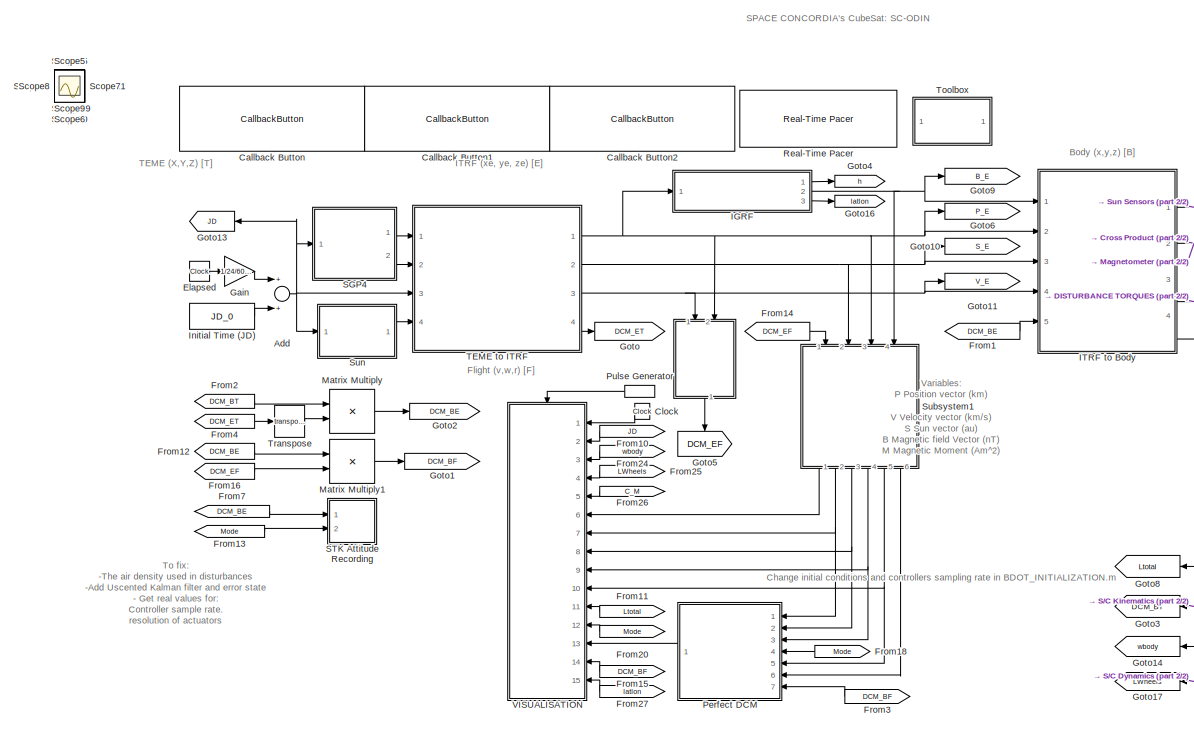
[diagram: root canvas - part 1/2, left side, full height]
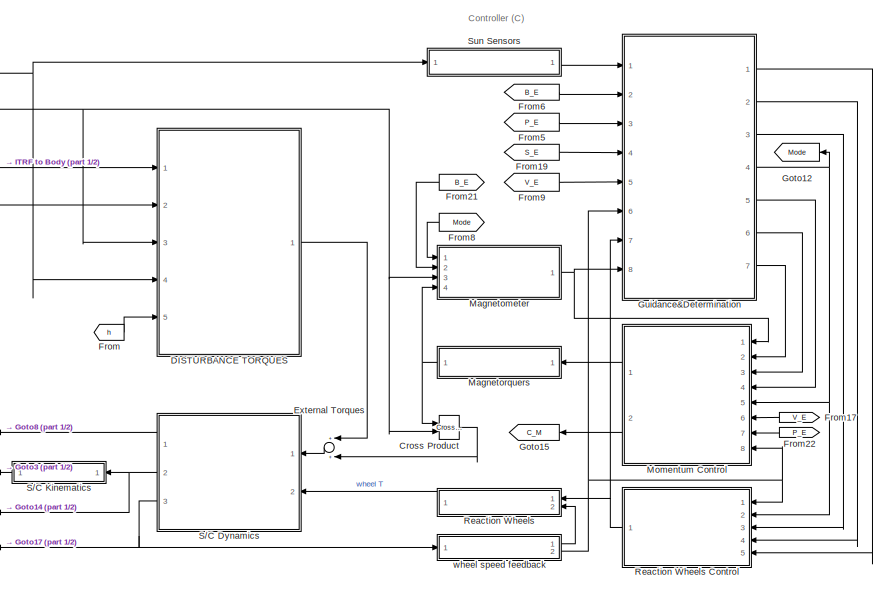
[diagram: root canvas - part 2/2, right side, full height]
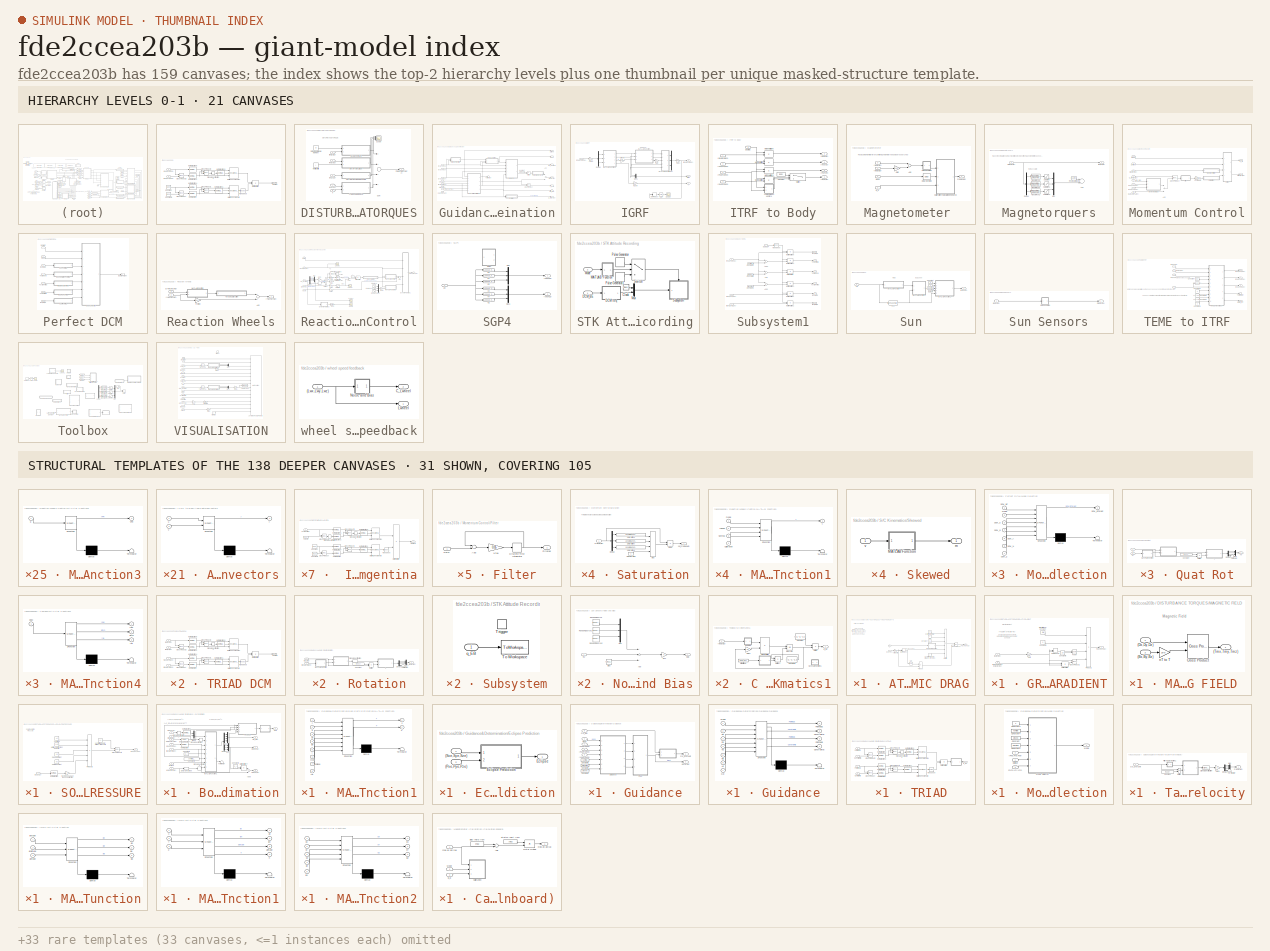
[diagram: thumbnail index - top-2 hierarchy levels (21 canvases) + 31 structural-template representatives of the remaining 138 canvases]
MODEL slx_fde2ccea203b
KIND model
CONFIG AbsTol = auto
CONFIG EnableMultiTasking = off
CONFIG FixedStep = auto
CONFIG InitFcn = SC_ODIN_INITIALIZATION
CONFIG MaxStep = step
CONFIG MinStep = auto
CONFIG RelTol = auto
CONFIG SampleTimeConstraint = Unconstrained
CONFIG Solver = VariableStepAuto
CONFIG SolverName = VariableStepAuto
CONFIG StartTime = 0.0
CONFIG StopTime = duration
BLOCK [SubSystem]    
  Ports = [2, 1]
  RequestExecContextInheritance = off
BLOCK [Inport]    /(Pxe,Pye,Pze)
  IconDisplay = Port number
  Port = 2
BLOCK [Inport]    /(Vxe,Xye,Vze)
  IconDisplay = Port number
BLOCK [Constant]    /Constant
  Value = [1;0;0]
BLOCK [Constant]    /Constant1
  Value = [0;0;1]
BLOCK [Reference]    /Cross Product  REF=vrlib/Utilities/Cross Product
  Ports = [2, 1]
  SourceBlock = vrlib/Utilities/Cross Product
  SourceProductBaseCode = VR
  SourceProductName = Simulink 3D Animation
  SourceType = Cross Product
BLOCK [Reference]    /Cross Product1  REF=vrlib/Utilities/Cross Product
  Ports = [2, 1]
  SourceBlock = vrlib/Utilities/Cross Product
  SourceProductBaseCode = VR
  SourceProductName = Simulink 3D Animation
  SourceType = Cross Product
BLOCK [Reference]    /Cross Product2  REF=vrlib/Utilities/Cross Product
  Ports = [2, 1]
  SourceBlock = vrlib/Utilities/Cross Product
  SourceProductBaseCode = VR
  SourceProductName = Simulink 3D Animation
  SourceType = Cross Product
BLOCK [Reference]    /Cross Product3  REF=vrlib/Utilities/Cross Product
  Ports = [2, 1]
  SourceBlock = vrlib/Utilities/Cross Product
  SourceProductBaseCode = VR
  SourceProductName = Simulink 3D Animation
  SourceType = Cross Product
BLOCK [Outport]    /DCM EF
  IconDisplay = Port number
BLOCK [Concatenate]    /Matrix Concatenate
  ConcatenateDimension = 2
  Mode = Multidimensional array
  NumInputs = 3
  Ports = [3, 1]
BLOCK [Concatenate]    /Matrix Concatenate1
  ConcatenateDimension = 2
  Mode = Multidimensional array
  NumInputs = 3
  Ports = [3, 1]
BLOCK [Product]    /Matrix Multiply
  InputSameDT = off
  Multiplication = Matrix(*)
  OutDataTypeStr = Inherit: Inherit via internal rule
  Ports = [2, 1]
  RndMeth = Floor
  SaturateOnIntegerOverflow = off
BLOCK [Reference]    /Normalization  REF=dspmathops/Normalization
  Ports = [1, 1]
  SourceBlock = dspmathops/Normalization
  SourceProductBaseCode = DS
  SourceProductName = DSP System Toolbox
  SourceType = Normalization
BLOCK [Reference]    /Normalization1  REF=dspmathops/Normalization
  Ports = [1, 1]
  SourceBlock = dspmathops/Normalization
  SourceProductBaseCode = DS
  SourceProductName = DSP System Toolbox
  SourceType = Normalization
BLOCK [Reference]    /Normalization2  REF=dspmathops/Normalization
  Ports = [1, 1]
  SourceBlock = dspmathops/Normalization
  SourceProductBaseCode = DS
  SourceProductName = DSP System Toolbox
  SourceType = Normalization
BLOCK [Reference]    /Normalization3  REF=dspmathops/Normalization
  Ports = [1, 1]
  SourceBlock = dspmathops/Normalization
  SourceProductBaseCode = DS
  SourceProductName = DSP System Toolbox
  SourceType = Normalization
BLOCK [Reference]    /Normalization4  REF=dspmathops/Normalization
  Ports = [1, 1]
  SourceBlock = dspmathops/Normalization
  SourceProductBaseCode = DS
  SourceProductName = DSP System Toolbox
  SourceType = Normalization
BLOCK [Reference]    /Normalization5  REF=dspmathops/Normalization
  Ports = [1, 1]
  SourceBlock = dspmathops/Normalization
  SourceProductBaseCode = DS
  SourceProductName = DSP System Toolbox
  SourceType = Normalization
BLOCK [SignalSpecification]    /Signal Specification1
  Dimensions = 3
BLOCK [Math]    /Transpose
  Operator = transpose
  Ports = [1, 1]
BLOCK [Sum] Add
  InputSameDT = off
  OutDataTypeStr = Inherit: Inherit via internal rule
  Ports = [2, 1]
  SaturateOnIntegerOverflow = off
BLOCK [CallbackButton] Callback Button
  ButtonText = Exclude visual
  ClickFcn = if strcmp(get_param('ADCS_Outline/Callback Button','ButtonText'),'Include visual')\n%un-comment visual related blocks\nset_param('ADCS_Outline/Perfect DCM','Commented','off')\nset_param('ADCS_Outline/VISUALISATION','Commented','off')\nset_param('ADCS_Outline/From10','Commented','off')\nset_param('ADCS_Outline/From11','Commented','off')\nset_param('ADCS_Outline/From20','Commented','off')\nset_param('ADCS_...<+2942ch>
BLOCK [CallbackButton] Callback Button1
  ButtonText = Exclude STK Recording
  ClickFcn = if strcmp(get_param('ADCS_Outline/Callback Button1','ButtonText'),'Include STK Recording')\n%un-comment visual related blocks\nset_param('ADCS_Outline/From7','Commented','off')\nset_param('ADCS_Outline/From13','Commented','off')\nset_param('ADCS_Outline/STK Attitude Recording','Commented','off')\n\n%change button text\nset_param('ADCS_Outline/Callback Button1','ButtonText','Exclude STK Recording')\n\nelse\n...<+308ch>
BLOCK [CallbackButton] Callback Button2
  ButtonText = Exclude Momentum
  ClickFcn = if strcmp(get_param('ADCS_Outline/Callback Button2','ButtonText'),'Include Momentum')\n%un-comment visual related blocks\nset_param('ADCS_Outline/Momentum Control','Commented','off')\nset_param('ADCS_Outline/Magnetorquers','Commented','off')\nset_param('ADCS_Outline/DISTURBANCE TORQUES','Commented','off')\nset_param('ADCS_Outline/Cross Product','Commented','off')\nset_param('ADCS_Outline/External Torque...<+755ch>
BLOCK [Clock] Clock
BLOCK [Reference] Cross Product  REF=vrlib/Utilities/Cross Product
  Ports = [2, 1]
  SourceBlock = vrlib/Utilities/Cross Product
  SourceProductBaseCode = VR
  SourceProductName = Simulink 3D Animation
  SourceType = Cross Product
BLOCK [SubSystem] DISTURBANCE TORQUES
  Ports = [5, 1]
  RequestExecContextInheritance = off
BLOCK [Inport] DISTURBANCE TORQUES/(Bx,By,Bz)
  IconDisplay = Port number
  Port = 3
BLOCK [Inport] DISTURBANCE TORQUES/(Px,Py,Pz)
  IconDisplay = Port number
BLOCK [Inport] DISTURBANCE TORQUES/(Sx,Sy,Sz)
  IconDisplay = Port number
  Port = 4
BLOCK [Outport] DISTURBANCE TORQUES/(Tdistx,Tdisty,Tdistz)
  IconDisplay = Port number
BLOCK [Inport] DISTURBANCE TORQUES/(Vx,Vy,Vz)
  IconDisplay = Port number
  Port = 2
BLOCK [SubSystem] DISTURBANCE TORQUES/ATMOSPHERIC DRAG
  Ports = [2, 1]
  RequestExecContextInheritance = off
BLOCK [Outport] DISTURBANCE TORQUES/ATMOSPHERIC DRAG/(Tax,Tay,Taz)
  IconDisplay = Port number
BLOCK [Inport] DISTURBANCE TORQUES/ATMOSPHERIC DRAG/(vx,vy,vz)
  IconDisplay = Port number
BLOCK [Constant] DISTURBANCE TORQUES/ATMOSPHERIC DRAG/Area
  Value = A
BLOCK [Constant] DISTURBANCE TORQUES/ATMOSPHERIC DRAG/Coefficient of Drag
  Value = Cd
BLOCK [Constant] DISTURBANCE TORQUES/ATMOSPHERIC DRAG/Constant
  Value = 0.5
BLOCK [Reference] DISTURBANCE TORQUES/ATMOSPHERIC DRAG/Cross Product  REF=vrlib/Utilities/Cross Product
  Ports = [2, 1]
  SourceBlock = vrlib/Utilities/Cross Product
  SourceProductBaseCode = VR
  SourceProductName = Simulink 3D Animation
  SourceType = Cross Product
BLOCK [DotProduct] DISTURBANCE TORQUES/ATMOSPHERIC DRAG/Dot Product
  OutDataTypeStr = Inherit: Inherit via internal rule
BLOCK [SubSystem] DISTURBANCE TORQUES/ATMOSPHERIC DRAG/MATLAB Function
  ErrorFcn = Stateflow.Translate.translate
  PermitHierarchicalResolution = ExplicitOnly
  Ports = [1, 1]
  RequestExecContextInheritance = off
  SFBlockType = MATLAB Function
  TreatAsAtomicUnit = on
BLOCK [Demux] DISTURBANCE TORQUES/ATMOSPHERIC DRAG/MATLAB Function/ Demux 
  Outputs = 1
  Ports = [1, 1]
BLOCK [S-Function] DISTURBANCE TORQUES/ATMOSPHERIC DRAG/MATLAB Function/ SFunction 
  EnableBusSupport = off
  FunctionName = sf_sfun
  PortCounts = [1 2]
  Ports = [1, 2]
  SFcnIsStateOwnerBlock = off
  SFunctionDeploymentMode = off
  Tag = Stateflow S-Function ADCS_Outline 2
BLOCK [Terminator] DISTURBANCE TORQUES/ATMOSPHERIC DRAG/MATLAB Function/ Terminator 
BLOCK [Inport] DISTURBANCE TORQUES/ATMOSPHERIC DRAG/MATLAB Function/h
  IconDisplay = Port number
BLOCK [Outport] DISTURBANCE TORQUES/ATMOSPHERIC DRAG/MATLAB Function/rho
  IconDisplay = Port number
BLOCK [Product] DISTURBANCE TORQUES/ATMOSPHERIC DRAG/Multiply
  InputSameDT = off
  Inputs = 6
  OutDataTypeStr = Inherit: Inherit via internal rule
  Ports = [6, 1]
  RndMeth = Floor
  SaturateOnIntegerOverflow = off
BLOCK [Product] DISTURBANCE TORQUES/ATMOSPHERIC DRAG/Product
  InputSameDT = off
  Inputs = /*
  OutDataTypeStr = Inherit: Inherit via internal rule
  Ports = [2, 1]
  RndMeth = Floor
  SaturateOnIntegerOverflow = off
BLOCK [Sqrt] DISTURBANCE TORQUES/ATMOSPHERIC DRAG/Sqrt
BLOCK [Constant] DISTURBANCE TORQUES/ATMOSPHERIC DRAG/Vector from Center of Mass and Center of Aerodynamic Forces 
  Value = L
BLOCK [Inport] DISTURBANCE TORQUES/ATMOSPHERIC DRAG/h 
  IconDisplay = Port number
  Port = 2
BLOCK [Gain] DISTURBANCE TORQUES/ATMOSPHERIC DRAG/km//s to m//s
  Gain = 1000
  OutDataTypeStr = Inherit: Inherit via internal rule
  ParamDataTypeStr = Inherit: Inherit via internal rule
  SaturateOnIntegerOverflow = off
BLOCK [SubSystem] DISTURBANCE TORQUES/GRAVITY GRADIENT
  Ports = [2, 1]
  RequestExecContextInheritance = off
BLOCK [Inport] DISTURBANCE TORQUES/GRAVITY GRADIENT/(Ixx Ixy Ixz, Iyx Iyy Iyz, Izx Izy Izz)
  IconDisplay = Port number
  Port = 2
BLOCK [Outport] DISTURBANCE TORQUES/GRAVITY GRADIENT/(Tgx,Tgy,Tgz)
  IconDisplay = Port number
BLOCK [Inport] DISTURBANCE TORQUES/GRAVITY GRADIENT/(px,py,pz)
  IconDisplay = Port number
BLOCK [Constant] DISTURBANCE TORQUES/GRAVITY GRADIENT/Constant2
  Value = 3
BLOCK [Constant] DISTURBANCE TORQUES/GRAVITY GRADIENT/Constant5
  Value = 2.5
BLOCK [Reference] DISTURBANCE TORQUES/GRAVITY GRADIENT/Cross Product1  REF=vrlib/Utilities/Cross Product
  Ports = [2, 1]
  SourceBlock = vrlib/Utilities/Cross Product
  SourceProductBaseCode = VR
  SourceProductName = Simulink 3D Animation
  SourceType = Cross Product
BLOCK [DotProduct] DISTURBANCE TORQUES/GRAVITY GRADIENT/Dot Product1
  OutDataTypeStr = Inherit: Inherit via internal rule
BLOCK [Gain] DISTURBANCE TORQUES/GRAVITY GRADIENT/Gain
  Gain = 1000
  OutDataTypeStr = Inherit: Inherit via internal rule
  ParamDataTypeStr = Inherit: Inherit via internal rule
  SaturateOnIntegerOverflow = off
BLOCK [Constant] DISTURBANCE TORQUES/GRAVITY GRADIENT/Gravitational Constant
  Value = G*M
BLOCK [Product] DISTURBANCE TORQUES/GRAVITY GRADIENT/Matrix Multiply
  InputSameDT = off
  Multiplication = Matrix(*)
  OutDataTypeStr = Inherit: Inherit via internal rule
  Ports = [2, 1]
  RndMeth = Floor
  SaturateOnIntegerOverflow = off
BLOCK [Math] DISTURBANCE TORQUES/GRAVITY GRADIENT/Power
  Operator = pow
  Ports = [2, 1]
BLOCK [Product] DISTURBANCE TORQUES/GRAVITY GRADIENT/Product1
  InputSameDT = off
  Inputs = **/*
  OutDataTypeStr = Inherit: Inherit via internal rule
  Ports = [4, 1]
  RndMeth = Floor
  SaturateOnIntegerOverflow = off
BLOCK [Constant] DISTURBANCE TORQUES/Inertia Matrix
  Value = I
BLOCK [SubSystem] DISTURBANCE TORQUES/MAGNETIC FIELD 
  Ports = [2, 1]
  RequestExecContextInheritance = off
BLOCK [Inport] DISTURBANCE TORQUES/MAGNETIC FIELD /(Bx,By,Bz)
  IconDisplay = Port number
  Port = 2
BLOCK [Inport] DISTURBANCE TORQUES/MAGNETIC FIELD /(Dx,Dy,Dz)
  IconDisplay = Port number
BLOCK [Outport] DISTURBANCE TORQUES/MAGNETIC FIELD /(Tmx,Tmy,Tmz)
  IconDisplay = Port number
BLOCK [Reference] DISTURBANCE TORQUES/MAGNETIC FIELD /Cross Product  REF=vrlib/Utilities/Cross Product
  Ports = [2, 1]
  SourceBlock = vrlib/Utilities/Cross Product
  SourceProductBaseCode = VR
  SourceProductName = Simulink 3D Animation
  SourceType = Cross Product
BLOCK [Gain] DISTURBANCE TORQUES/MAGNETIC FIELD /nT to T
  Gain = 1e-9
  OutDataTypeStr = Inherit: Inherit via internal rule
  ParamDataTypeStr = Inherit: Inherit via internal rule
  SaturateOnIntegerOverflow = off
BLOCK [Constant] DISTURBANCE TORQUES/S//C residual Dipole Moment
  Value = D
BLOCK [SubSystem] DISTURBANCE TORQUES/SOLAR RADIATION PRESSURE
  Ports = [1, 1]
  RequestExecContextInheritance = off
BLOCK [Inport] DISTURBANCE TORQUES/SOLAR RADIATION PRESSURE/(Sx,Sy,Sz)
  IconDisplay = Port number
BLOCK [Outport] DISTURBANCE TORQUES/SOLAR RADIATION PRESSURE/(Tsx,Tsy, Tsz)
  IconDisplay = Port number
BLOCK [Reference] DISTURBANCE TORQUES/SOLAR RADIATION PRESSURE/Cross Product2  REF=vrlib/Utilities/Cross Product
  Ports = [2, 1]
  SourceBlock = vrlib/Utilities/Cross Product
  SourceProductBaseCode = VR
  SourceProductName = Simulink 3D Animation
  SourceType = Cross Product
BLOCK [Gain] DISTURBANCE TORQUES/SOLAR RADIATION PRESSURE/Inverse because the Force is in the opposite direction
  Gain = -1
  OutDataTypeStr = Inherit: Inherit via internal rule
  ParamDataTypeStr = Inherit: Inherit via internal rule
  SaturateOnIntegerOverflow = off
BLOCK [Reference] DISTURBANCE TORQUES/SOLAR RADIATION PRESSURE/Normalization  REF=dspmathops/Normalization
  Ports = [1, 1]
  SourceBlock = dspmathops/Normalization
  SourceProductBaseCode = DS
  SourceProductName = DSP System Toolbox
  SourceType = Normalization
BLOCK [Product] DISTURBANCE TORQUES/SOLAR RADIATION PRESSURE/Product3
  InputSameDT = off
  Inputs = 5
  OutDataTypeStr = Inherit: Inherit via internal rule
  Ports = [5, 1]
  RndMeth = Floor
  SaturateOnIntegerOverflow = off
BLOCK [Constant] DISTURBANCE TORQUES/SOLAR RADIATION PRESSURE/Solar Constant
  Value = Ks
BLOCK [Constant] DISTURBANCE TORQUES/SOLAR RADIATION PRESSURE/Speed of Light
  Value = 1/c
BLOCK [Constant] DISTURBANCE TORQUES/SOLAR RADIATION PRESSURE/Sunlit Area
  Value = As
BLOCK [Constant] DISTURBANCE TORQUES/SOLAR RADIATION PRESSURE/Unitless Reflectance Factor
  Value = 1+q
BLOCK [Constant] DISTURBANCE TORQUES/SOLAR RADIATION PRESSURE/Vector from Center of Mass to Center of Solar Pressure
  Value = Ls
BLOCK [Scope] DISTURBANCE TORQUES/Scope
  Floating = off
  NumInputPorts = 4
  Ports = [4]
  ScopeSpecificationString = Simulink.scopes.TimeScopeBlockCfg('CurrentConfiguration', extmgr.ConfigurationSet(extmgr.Configuration('Core','General UI',true),extmgr.Configuration('Core','Source UI',true),extmgr.Configuration('Sources','WiredSimulink',true,'DataLoggingVariableName','ScopeData2'),extmgr.Configuration('Visuals','Time Domain',true,'SerializedDisplays',{struct('MinYLimReal','-0.000002','MaxYLimReal','0.0000014','Y...<+1714ch>
BLOCK [Sum] DISTURBANCE TORQUES/Sum
  InputSameDT = off
  Inputs = ++++
  OutDataTypeStr = Inherit: Inherit via internal rule
  Ports = [4, 1]
  SaturateOnIntegerOverflow = off
BLOCK [Inport] DISTURBANCE TORQUES/h
  IconDisplay = Port number
  Port = 5
BLOCK [Clock] Elapsed
BLOCK [Sum] External Torques
  InputSameDT = off
  OutDataTypeStr = Inherit: Inherit via internal rule
  Ports = [2, 1]
  SaturateOnIntegerOverflow = off
BLOCK [From] From
  GotoTag = h
BLOCK [From] From1
  GotoTag = DCM_BE
BLOCK [From] From10
  GotoTag = JD
BLOCK [From] From11
  GotoTag = Ltotal
BLOCK [From] From12
  GotoTag = DCM_BE
BLOCK [From] From13
  GotoTag = Mode
BLOCK [From] From14
  GotoTag = DCM_EF
BLOCK [From] From15
  GotoTag = DCM_BF
BLOCK [From] From16
  GotoTag = DCM_EF
BLOCK [From] From17
  GotoTag = V_E
BLOCK [From] From18
  GotoTag = Mode
BLOCK [From] From19
  GotoTag = S_E
BLOCK [From] From2
  GotoTag = DCM_BT
BLOCK [From] From20
  GotoTag = Mode
BLOCK [From] From21
  GotoTag = B_E
BLOCK [From] From22
  GotoTag = P_E
BLOCK [From] From24
  GotoTag = wbody
BLOCK [From] From25
  GotoTag = LWheels
BLOCK [From] From26
  GotoTag = C_M
BLOCK [From] From27
  GotoTag = latlon
BLOCK [From] From3
  GotoTag = DCM_BF
BLOCK [From] From4
  GotoTag = DCM_ET
BLOCK [From] From5
  GotoTag = P_E
BLOCK [From] From6
  GotoTag = B_E
BLOCK [From] From7
  GotoTag = DCM_BE
BLOCK [From] From8
  GotoTag = Mode
BLOCK [From] From9
  GotoTag = V_E
BLOCK [Gain] Gain
  Gain = 1/24/60/60
  OutDataTypeStr = Inherit: Inherit via internal rule
  ParamDataTypeStr = Inherit: Inherit via internal rule
  SaturateOnIntegerOverflow = off
BLOCK [Goto] Goto
  GotoTag = DCM_ET
BLOCK [Goto] Goto1
  GotoTag = DCM_BF
BLOCK [Goto] Goto10
  GotoTag = S_E
BLOCK [Goto] Goto11
  GotoTag = V_E
BLOCK [Goto] Goto12
  GotoTag = Mode
BLOCK [Goto] Goto13
  GotoTag = JD
BLOCK [Goto] Goto14
  GotoTag = wbody
BLOCK [Goto] Goto15
  GotoTag = C_M
BLOCK [Goto] Goto16
  GotoTag = latlon
BLOCK [Goto] Goto17
  GotoTag = LWheels
BLOCK [Goto] Goto2
  GotoTag = DCM_BE
BLOCK [Goto] Goto3
  GotoTag = DCM_BT
BLOCK [Goto] Goto4
  GotoTag = h
BLOCK [Goto] Goto5
  GotoTag = DCM_EF
BLOCK [Goto] Goto6
  GotoTag = P_E
BLOCK [Goto] Goto8
  GotoTag = Ltotal
BLOCK [Goto] Goto9
  GotoTag = B_E
BLOCK [SubSystem] Guidance&Determination
  Ports = [8, 7]
  RequestExecContextInheritance = off
  SystemSampleTime = controller_sample_rate
  TreatAsAtomicUnit = on
BLOCK [Inport] Guidance&Determination/(Bxe,Bye,Bze)
  IconDisplay = Port number
  Port = 2
BLOCK [Inport] Guidance&Determination/(Pxe,Pye,Pze)
  IconDisplay = Port number
  Port = 3
BLOCK [Inport] Guidance&Determination/(Sxe,Sye,Sze)
  IconDisplay = Port number
  Port = 4
BLOCK [Inport] Guidance&Determination/(Vxe,Vye,Vze)
  IconDisplay = Port number
  Port = 5
BLOCK [Sum] Guidance&Determination/Add
  InputSameDT = off
  Inputs = -+
  OutDataTypeStr = Inherit: Inherit via internal rule
  Ports = [2, 1]
  SaturateOnIntegerOverflow = off
BLOCK [SubSystem] Guidance&Determination/Body-Earth Estimation
  Ports = [7, 4]
  RequestExecContextInheritance = off
BLOCK [SubSystem] Guidance&Determination/Body-Earth Estimation/ 
  Commented = on
  ErrorFcn = Stateflow.Translate.translate
  PermitHierarchicalResolution = ExplicitOnly
  Ports = [1, 1]
  RequestExecContextInheritance = off
  SFBlockType = MATLAB Function
  TreatAsAtomicUnit = on
BLOCK [Demux] Guidance&Determination/Body-Earth Estimation/ / Demux 
  Outputs = 1
  Ports = [1, 1]
BLOCK [S-Function] Guidance&Determination/Body-Earth Estimation/ / SFunction 
  EnableBusSupport = off
  FunctionName = sf_sfun
  PortCounts = [1 2]
  Ports = [1, 2]
  SFcnIsStateOwnerBlock = off
  SFunctionDeploymentMode = off
  Tag = Stateflow S-Function ADCS_Outline 56
BLOCK [Terminator] Guidance&Determination/Body-Earth Estimation/ / Terminator 
BLOCK [Inport] Guidance&Determination/Body-Earth Estimation/ /dcm
  IconDisplay = Port number
BLOCK [Outport] Guidance&Determination/Body-Earth Estimation/ /q
  IconDisplay = Port number
BLOCK [Inport] Guidance&Determination/Body-Earth Estimation/(Bxe,Bye,Bze)
  IconDisplay = Port number
  Port = 4
BLOCK [Inport] Guidance&Determination/Body-Earth Estimation/(Lwx,Lwy,Lwz)
  IconDisplay = Port number
  Port = 7
BLOCK [Inport] Guidance&Determination/Body-Earth Estimation/(Sxe,Sye,Sze)
  IconDisplay = Port number
  Port = 2
BLOCK [Sum] Guidance&Determination/Body-Earth Estimation/Add5
  InputSameDT = off
  OutDataTypeStr = Inherit: Inherit via internal rule
  Ports = [2, 1]
  SaturateOnIntegerOverflow = off
BLOCK [Inport] Guidance&Determination/Body-Earth Estimation/C(Bx,By,Bz)
  IconDisplay = Port number
  Port = 5
BLOCK [Outport] Guidance&Determination/Body-Earth Estimation/C(Ltx,Lty,Ltz)
  IconDisplay = Port number
  Port = 3
BLOCK [Inport] Guidance&Determination/Body-Earth Estimation/C(Sx,Sy,Sz)
  IconDisplay = Port number
  Port = 3
BLOCK [Inport] Guidance&Determination/Body-Earth Estimation/C(Twx,Twy,Twz)
  IconDisplay = Port number
  Port = 6
BLOCK [Outport] Guidance&Determination/Body-Earth Estimation/C(q_BE)
  IconDisplay = Port number
  Port = 4
BLOCK [Outport] Guidance&Determination/Body-Earth Estimation/C(wx,wy,wz)
  IconDisplay = Port number
  Port = 2
BLOCK [Constant] Guidance&Determination/Body-Earth Estimation/Constant1
  Value = C_I
BLOCK [Constant] Guidance&Determination/Body-Earth Estimation/Constant2
  Value = C_I
BLOCK [Constant] Guidance&Determination/Body-Earth Estimation/Constant3
  Value = controller_sample_rate
BLOCK [Delay] Guidance&Determination/Body-Earth Estimation/Delay One Step6
  DelayLength = 1
  InputPortMap = u0
  Ports = [1, 1]
BLOCK [Delay] Guidance&Determination/Body-Earth Estimation/Delay One Step7
  DelayLength = 1
  InputPortMap = u0
  Ports = [1, 1]
BLOCK [Demux] Guidance&Determination/Body-Earth Estimation/Demux
  DisplayOption = bar
  Outputs = 7
  Ports = [1, 7]
BLOCK [Inport] Guidance&Determination/Body-Earth Estimation/Eclipse
  IconDisplay = Port number
BLOCK [SubSystem] Guidance&Determination/Body-Earth Estimation/MATLAB Function1
  ErrorFcn = Stateflow.Translate.translate
  PermitHierarchicalResolution = ExplicitOnly
  Ports = [8, 2]
  RequestExecContextInheritance = off
  SFBlockType = MATLAB Function
  TreatAsAtomicUnit = on
BLOCK [Demux] Guidance&Determination/Body-Earth Estimation/MATLAB Function1/ Demux 
  Outputs = 1
  Ports = [1, 1]
BLOCK [S-Function] Guidance&Determination/Body-Earth Estimation/MATLAB Function1/ SFunction 
  EnableBusSupport = off
  FunctionName = sf_sfun
  PortCounts = [8 3]
  Ports = [8, 3]
  SFcnIsStateOwnerBlock = off
  SFunctionDeploymentMode = off
  Tag = Stateflow S-Function ADCS_Outline 41
BLOCK [Terminator] Guidance&Determination/Body-Earth Estimation/MATLAB Function1/ Terminator 
BLOCK [Inport] Guidance&Determination/Body-Earth Estimation/MATLAB Function1/Be
  IconDisplay = Port number
  Port = 4
BLOCK [Inport] Guidance&Determination/Body-Earth Estimation/MATLAB Function1/Eclipse
  IconDisplay = Port number
  Port = 7
BLOCK [Inport] Guidance&Determination/Body-Earth Estimation/MATLAB Function1/I
  IconDisplay = Port number
  Port = 5
BLOCK [Inport] Guidance&Determination/Body-Earth Estimation/MATLAB Function1/Lw
  IconDisplay = Port number
  Port = 8
BLOCK [Outport] Guidance&Determination/Body-Earth Estimation/MATLAB Function1/P
  IconDisplay = Port number
  Port = 2
BLOCK [Inport] Guidance&Determination/Body-Earth Estimation/MATLAB Function1/Se
  IconDisplay = Port number
  Port = 3
BLOCK [Inport] Guidance&Determination/Body-Earth Estimation/MATLAB Function1/step
  IconDisplay = Port number
  Port = 6
BLOCK [Inport] Guidance&Determination/Body-Earth Estimation/MATLAB Function1/u
  IconDisplay = Port number
  Port = 2
BLOCK [Outport] Guidance&Determination/Body-Earth Estimation/MATLAB Function1/x
  IconDisplay = Port number
BLOCK [Inport] Guidance&Determination/Body-Earth Estimation/MATLAB Function1/y
  IconDisplay = Port number
BLOCK [Product] Guidance&Determination/Body-Earth Estimation/Matrix Multiply7
  InputSameDT = off
  Multiplication = Matrix(*)
  OutDataTypeStr = Inherit: Inherit via internal rule
  Ports = [2, 1]
  RndMeth = Floor
  SaturateOnIntegerOverflow = off
BLOCK [Mux] Guidance&Determination/Body-Earth Estimation/Mux2
  DisplayOption = bar
  Ports = [4, 1]
BLOCK [Mux] Guidance&Determination/Body-Earth Estimation/Mux3
  DisplayOption = bar
  Inputs = 3
  Ports = [3, 1]
BLOCK [Mux] Guidance&Determination/Body-Earth Estimation/Mux4
  DisplayOption = bar
  Inputs = 2
  Ports = [2, 1]
BLOCK [Reference] Guidance&Determination/Body-Earth Estimation/Normalization  REF=dspmathops/Normalization
  Ports = [1, 1]
  SourceBlock = dspmathops/Normalization
  SourceProductBaseCode = DS
  SourceProductName = DSP System Toolbox
  SourceType = Normalization
BLOCK [Reference] Guidance&Determination/Body-Earth Estimation/Normalization1  REF=dspmathops/Normalization
  Ports = [1, 1]
  SourceBlock = dspmathops/Normalization
  SourceProductBaseCode = DS
  SourceProductName = DSP System Toolbox
  SourceType = Normalization
BLOCK [Outport] Guidance&Determination/Body-Earth Estimation/Out1
  IconDisplay = Port number
BLOCK [SignalSpecification] Guidance&Determination/Body-Earth Estimation/Signal Specification
  Dimensions = 3
BLOCK [SignalSpecification] Guidance&Determination/Body-Earth Estimation/Signal Specification1
  Dimensions = 3
BLOCK [SignalSpecification] Guidance&Determination/Body-Earth Estimation/Signal Specification2
  Dimensions = 3
BLOCK [SubSystem] Guidance&Determination/Body-Earth Estimation/TRIAD DCM
  Commented = on
  Ports = [4, 1]
  RequestExecContextInheritance = off
BLOCK [Inport] Guidance&Determination/Body-Earth Estimation/TRIAD DCM/ (Bx,By,Bz)
  IconDisplay = Port number
  Port = 2
BLOCK [Inport] Guidance&Determination/Body-Earth Estimation/TRIAD DCM/(Bxe,Bye,Bze)
  IconDisplay = Port number
  Port = 4
BLOCK [Inport] Guidance&Determination/Body-Earth Estimation/TRIAD DCM/(Sx,Sy,Sz)
  IconDisplay = Port number
BLOCK [Inport] Guidance&Determination/Body-Earth Estimation/TRIAD DCM/(Sxe,Sye,Sze)
  IconDisplay = Port number
  Port = 3
BLOCK [Reference] Guidance&Determination/Body-Earth Estimation/TRIAD DCM/Cross Product  REF=vrlib/Utilities/Cross Product
  Ports = [2, 1]
  SourceBlock = vrlib/Utilities/Cross Product
  SourceProductBaseCode = VR
  SourceProductName = Simulink 3D Animation
  SourceType = Cross Product
BLOCK [Reference] Guidance&Determination/Body-Earth Estimation/TRIAD DCM/Cross Product1  REF=vrlib/Utilities/Cross Product
  Ports = [2, 1]
  SourceBlock = vrlib/Utilities/Cross Product
  SourceProductBaseCode = VR
  SourceProductName = Simulink 3D Animation
  SourceType = Cross Product
BLOCK [Reference] Guidance&Determination/Body-Earth Estimation/TRIAD DCM/Cross Product2  REF=vrlib/Utilities/Cross Product
  Ports = [2, 1]
  SourceBlock = vrlib/Utilities/Cross Product
  SourceProductBaseCode = VR
  SourceProductName = Simulink 3D Animation
  SourceType = Cross Product
BLOCK [Reference] Guidance&Determination/Body-Earth Estimation/TRIAD DCM/Cross Product3  REF=vrlib/Utilities/Cross Product
  Ports = [2, 1]
  SourceBlock = vrlib/Utilities/Cross Product
  SourceProductBaseCode = VR
  SourceProductName = Simulink 3D Animation
  SourceType = Cross Product
BLOCK [Outport] Guidance&Determination/Body-Earth Estimation/TRIAD DCM/DCM BE
  IconDisplay = Port number
BLOCK [Concatenate] Guidance&Determination/Body-Earth Estimation/TRIAD DCM/Matrix Concatenate
  ConcatenateDimension = 2
  Mode = Multidimensional array
  NumInputs = 3
  Ports = [3, 1]
BLOCK [Concatenate] Guidance&Determination/Body-Earth Estimation/TRIAD DCM/Matrix Concatenate1
  ConcatenateDimension = 2
  Mode = Multidimensional array
  NumInputs = 3
  Ports = [3, 1]
BLOCK [Product] Guidance&Determination/Body-Earth Estimation/TRIAD DCM/Matrix Multiply
  InputSameDT = off
  Multiplication = Matrix(*)
  OutDataTypeStr = Inherit: Inherit via internal rule
  Ports = [2, 1]
  RndMeth = Floor
  SaturateOnIntegerOverflow = off
BLOCK [Reference] Guidance&Determination/Body-Earth Estimation/TRIAD DCM/Normalization  REF=dspmathops/Normalization
  Ports = [1, 1]
  SourceBlock = dspmathops/Normalization
  SourceProductBaseCode = DS
  SourceProductName = DSP System Toolbox
  SourceType = Normalization
BLOCK [Reference] Guidance&Determination/Body-Earth Estimation/TRIAD DCM/Normalization1  REF=dspmathops/Normalization
  Ports = [1, 1]
  SourceBlock = dspmathops/Normalization
  SourceProductBaseCode = DS
  SourceProductName = DSP System Toolbox
  SourceType = Normalization
BLOCK [Reference] Guidance&Determination/Body-Earth Estimation/TRIAD DCM/Normalization2  REF=dspmathops/Normalization
  Ports = [1, 1]
  SourceBlock = dspmathops/Normalization
  SourceProductBaseCode = DS
  SourceProductName = DSP System Toolbox
  SourceType = Normalization
BLOCK [Reference] Guidance&Determination/Body-Earth Estimation/TRIAD DCM/Normalization3  REF=dspmathops/Normalization
  Ports = [1, 1]
  SourceBlock = dspmathops/Normalization
  SourceProductBaseCode = DS
  SourceProductName = DSP System Toolbox
  SourceType = Normalization
BLOCK [Reference] Guidance&Determination/Body-Earth Estimation/TRIAD DCM/Normalization4  REF=dspmathops/Normalization
  Ports = [1, 1]
  SourceBlock = dspmathops/Normalization
  SourceProductBaseCode = DS
  SourceProductName = DSP System Toolbox
  SourceType = Normalization
BLOCK [Reference] Guidance&Determination/Body-Earth Estimation/TRIAD DCM/Normalization5  REF=dspmathops/Normalization
  Ports = [1, 1]
  SourceBlock = dspmathops/Normalization
  SourceProductBaseCode = DS
  SourceProductName = DSP System Toolbox
  SourceType = Normalization
BLOCK [SignalSpecification] Guidance&Determination/Body-Earth Estimation/TRIAD DCM/Signal Specification1
  Dimensions = 3
BLOCK [Math] Guidance&Determination/Body-Earth Estimation/TRIAD DCM/Transpose
  Operator = transpose
  Ports = [1, 1]
BLOCK [Terminator] Guidance&Determination/Body-Earth Estimation/Terminator
BLOCK [Inport] Guidance&Determination/C(Bx,By,Bz)
  IconDisplay = Port number
  Port = 8
BLOCK [Inport] Guidance&Determination/C(Lwx,Lwy,Lwz)
  IconDisplay = Port number
  Port = 6
BLOCK [Inport] Guidance&Determination/C(Sx,Sy,Sz)
  IconDisplay = Port number
BLOCK [Inport] Guidance&Determination/C(Twx,Twy,Twz)
  IconDisplay = Port number
  Port = 7
BLOCK [Outport] Guidance&Determination/C(q_BE)
  IconDisplay = Port number
  Port = 5
BLOCK [Outport] Guidance&Determination/C(q_BTarget)
  IconDisplay = Port number
  Port = 2
BLOCK [Outport] Guidance&Determination/C(wx,wy,wz)
  IconDisplay = Port number
  Port = 3
BLOCK [Outport] Guidance&Determination/C_(Bx,By,Bz)
  IconDisplay = Port number
  Port = 6
BLOCK [Constant] Guidance&Determination/Constant
  Value = [-1 -1 -1 1]
BLOCK [Reference] Guidance&Determination/Cross Product  REF=vrlib/Utilities/Cross Product
  Ports = [2, 1]
  SourceBlock = vrlib/Utilities/Cross Product
  SourceProductBaseCode = VR
  SourceProductName = Simulink 3D Animation
  SourceType = Cross Product
BLOCK [Outport] Guidance&Determination/Eclipse
  IconDisplay = Port number
  Port = 7
BLOCK [SubSystem] Guidance&Determination/Eclipse Prediction
  Ports = [2, 1]
  RequestExecContextInheritance = off
BLOCK [Inport] Guidance&Determination/Eclipse Prediction/(Pxe,Pye,Pze)
  IconDisplay = Port number
  Port = 2
BLOCK [Inport] Guidance&Determination/Eclipse Prediction/(Sxe,Sye,Sze)
  IconDisplay = Port number
BLOCK [Outport] Guidance&Determination/Eclipse Prediction/Eclipse
  IconDisplay = Port number
BLOCK [SubSystem] Guidance&Determination/Eclipse Prediction/Eclipse Prediction
  ErrorFcn = Stateflow.Translate.translate
  PermitHierarchicalResolution = ExplicitOnly
  Ports = [2, 1]
  RequestExecContextInheritance = off
  SFBlockType = MATLAB Function
  TreatAsAtomicUnit = on
BLOCK [Demux] Guidance&Determination/Eclipse Prediction/Eclipse Prediction/ Demux 
  Outputs = 1
  Ports = [1, 1]
BLOCK [S-Function] Guidance&Determination/Eclipse Prediction/Eclipse Prediction/ SFunction 
  EnableBusSupport = off
  FunctionName = sf_sfun
  PortCounts = [2 2]
  Ports = [2, 2]
  SFcnIsStateOwnerBlock = off
  SFunctionDeploymentMode = off
  Tag = Stateflow S-Function ADCS_Outline 64
BLOCK [Terminator] Guidance&Determination/Eclipse Prediction/Eclipse Prediction/ Terminator 
BLOCK [Outport] Guidance&Determination/Eclipse Prediction/Eclipse Prediction/Eclipse
  IconDisplay = Port number
BLOCK [Inport] Guidance&Determination/Eclipse Prediction/Eclipse Prediction/p
  IconDisplay = Port number
  Port = 2
BLOCK [Inport] Guidance&Determination/Eclipse Prediction/Eclipse Prediction/s
  IconDisplay = Port number
BLOCK [SubSystem] Guidance&Determination/Guidance
  Ports = [5, 2]
  RequestExecContextInheritance = off
BLOCK [SubSystem] Guidance&Determination/Guidance/    
  ErrorFcn = Stateflow.Translate.translate
  PermitHierarchicalResolution = ExplicitOnly
  Ports = [2, 1]
  RequestExecContextInheritance = off
  SFBlockType = MATLAB Function
  TreatAsAtomicUnit = on
BLOCK [Demux] Guidance&Determination/Guidance/    / Demux 
  Outputs = 1
  Ports = [1, 1]
BLOCK [S-Function] Guidance&Determination/Guidance/    / SFunction 
  EnableBusSupport = off
  FunctionName = sf_sfun
  PortCounts = [2 2]
  Ports = [2, 2]
  SFcnIsStateOwnerBlock = off
  SFunctionDeploymentMode = off
  Tag = Stateflow S-Function ADCS_Outline 25
BLOCK [Terminator] Guidance&Determination/Guidance/    / Terminator 
BLOCK [Outport] Guidance&Determination/Guidance/    /q
  IconDisplay = Port number
BLOCK [Inport] Guidance&Determination/Guidance/    /qa
  IconDisplay = Port number
BLOCK [Inport] Guidance&Determination/Guidance/    /qb
  IconDisplay = Port number
  Port = 2
BLOCK [Inport] Guidance&Determination/Guidance/(Pxe,Pye,Pze)
  IconDisplay = Port number
  Port = 2
BLOCK [Inport] Guidance&Determination/Guidance/(Sxe,Sye,Sze)
  IconDisplay = Port number
  Port = 4
BLOCK [Inport] Guidance&Determination/Guidance/(Vxe,Vye,Vze)
  IconDisplay = Port number
  Port = 3
BLOCK [Inport] Guidance&Determination/Guidance/C(q_BE)
  IconDisplay = Port number
  Port = 5
BLOCK [Outport] Guidance&Determination/Guidance/C(q_BTarget)
  IconDisplay = Port number
BLOCK [Constant] Guidance&Determination/Guidance/Constant1
  Value = ground
BLOCK [Constant] Guidance&Determination/Guidance/Constant5
  Value = argentina
BLOCK [Constant] Guidance&Determination/Guidance/Constant6
  Value = namibia
BLOCK [SubSystem] Guidance&Determination/Guidance/Guidance
  ErrorFcn = Stateflow.Translate.translate
  PermitHierarchicalResolution = ExplicitOnly
  Ports = [7, 4]
  RequestExecContextInheritance = off
  SFBlockType = MATLAB Function
  TreatAsAtomicUnit = on
BLOCK [Demux] Guidance&Determination/Guidance/Guidance/ Demux 
  Outputs = 1
  Ports = [1, 1]
BLOCK [S-Function] Guidance&Determination/Guidance/Guidance/ SFunction 
  EnableBusSupport = off
  FunctionName = sf_sfun
  PortCounts = [7 5]
  Ports = [7, 5]
  SFcnIsStateOwnerBlock = off
  SFunctionDeploymentMode = off
  Tag = Stateflow S-Function ADCS_Outline 52
BLOCK [Terminator] Guidance&Determination/Guidance/Guidance/ Terminator 
BLOCK [Inport] Guidance&Determination/Guidance/Guidance/AE
  IconDisplay = Port number
  Port = 6
BLOCK [Outport] Guidance&Determination/Guidance/Guidance/ConstraintB
  IconDisplay = Port number
  Port = 4
BLOCK [Outport] Guidance&Determination/Guidance/Guidance/ConstraintE
  IconDisplay = Port number
  Port = 2
BLOCK [Inport] Guidance&Determination/Guidance/Guidance/GE
  IconDisplay = Port number
  Port = 7
BLOCK [Inport] Guidance&Determination/Guidance/Guidance/Mode
  IconDisplay = Port number
BLOCK [Inport] Guidance&Determination/Guidance/Guidance/NE
  IconDisplay = Port number
  Port = 5
BLOCK [Inport] Guidance&Determination/Guidance/Guidance/PE
  IconDisplay = Port number
  Port = 3
BLOCK [Outport] Guidance&Determination/Guidance/Guidance/PointingB
  IconDisplay = Port number
  Port = 3
BLOCK [Outport] Guidance&Determination/Guidance/Guidance/PointingE
  IconDisplay = Port number
BLOCK [Inport] Guidance&Determination/Guidance/Guidance/SE
  IconDisplay = Port number
  Port = 2
BLOCK [Inport] Guidance&Determination/Guidance/Guidance/VE
  IconDisplay = Port number
  Port = 4
BLOCK [Inport] Guidance&Determination/Guidance/Mode
  IconDisplay = Port number
BLOCK [SubSystem] Guidance&Determination/Guidance/TRIAD
  Ports = [4, 1]
  RequestExecContextInheritance = off
BLOCK [SubSystem] Guidance&Determination/Guidance/TRIAD/ 
  ErrorFcn = Stateflow.Translate.translate
  PermitHierarchicalResolution = ExplicitOnly
  Ports = [1, 1]
  RequestExecContextInheritance = off
  SFBlockType = MATLAB Function
  TreatAsAtomicUnit = on
BLOCK [Demux] Guidance&Determination/Guidance/TRIAD/ / Demux 
  Outputs = 1
  Ports = [1, 1]
BLOCK [S-Function] Guidance&Determination/Guidance/TRIAD/ / SFunction 
  EnableBusSupport = off
  FunctionName = sf_sfun
  PortCounts = [1 2]
  Ports = [1, 2]
  SFcnIsStateOwnerBlock = off
  SFunctionDeploymentMode = off
  Tag = Stateflow S-Function ADCS_Outline 50
BLOCK [Terminator] Guidance&Determination/Guidance/TRIAD/ / Terminator 
BLOCK [Inport] Guidance&Determination/Guidance/TRIAD/ /dcm
  IconDisplay = Port number
BLOCK [Outport] Guidance&Determination/Guidance/TRIAD/ /q
  IconDisplay = Port number
BLOCK [Inport] Guidance&Determination/Guidance/TRIAD/ConstraintE
  IconDisplay = Port number
  Port = 2
BLOCK [Inport] Guidance&Determination/Guidance/TRIAD/ContraintB
  IconDisplay = Port number
  Port = 4
BLOCK [Reference] Guidance&Determination/Guidance/TRIAD/Cross Product  REF=vrlib/Utilities/Cross Product
  Ports = [2, 1]
  SourceBlock = vrlib/Utilities/Cross Product
  SourceProductBaseCode = VR
  SourceProductName = Simulink 3D Animation
  SourceType = Cross Product
BLOCK [Reference] Guidance&Determination/Guidance/TRIAD/Cross Product1  REF=vrlib/Utilities/Cross Product
  Ports = [2, 1]
  SourceBlock = vrlib/Utilities/Cross Product
  SourceProductBaseCode = VR
  SourceProductName = Simulink 3D Animation
  SourceType = Cross Product
BLOCK [Reference] Guidance&Determination/Guidance/TRIAD/Cross Product2  REF=vrlib/Utilities/Cross Product
  Ports = [2, 1]
  SourceBlock = vrlib/Utilities/Cross Product
  SourceProductBaseCode = VR
  SourceProductName = Simulink 3D Animation
  SourceType = Cross Product
BLOCK [Reference] Guidance&Determination/Guidance/TRIAD/Cross Product3  REF=vrlib/Utilities/Cross Product
  Ports = [2, 1]
  SourceBlock = vrlib/Utilities/Cross Product
  SourceProductBaseCode = VR
  SourceProductName = Simulink 3D Animation
  SourceType = Cross Product
BLOCK [Concatenate] Guidance&Determination/Guidance/TRIAD/Matrix Concatenate
  ConcatenateDimension = 2
  Mode = Multidimensional array
  NumInputs = 3
  Ports = [3, 1]
BLOCK [Concatenate] Guidance&Determination/Guidance/TRIAD/Matrix Concatenate1
  ConcatenateDimension = 2
  Mode = Multidimensional array
  NumInputs = 3
  Ports = [3, 1]
BLOCK [Product] Guidance&Determination/Guidance/TRIAD/Matrix Multiply
  InputSameDT = off
  Multiplication = Matrix(*)
  OutDataTypeStr = Inherit: Inherit via internal rule
  Ports = [2, 1]
  RndMeth = Floor
  SaturateOnIntegerOverflow = off
BLOCK [Reference] Guidance&Determination/Guidance/TRIAD/Normalization  REF=dspmathops/Normalization
  Ports = [1, 1]
  SourceBlock = dspmathops/Normalization
  SourceProductBaseCode = DS
  SourceProductName = DSP System Toolbox
  SourceType = Normalization
BLOCK [Reference] Guidance&Determination/Guidance/TRIAD/Normalization1  REF=dspmathops/Normalization
  Ports = [1, 1]
  SourceBlock = dspmathops/Normalization
  SourceProductBaseCode = DS
  SourceProductName = DSP System Toolbox
  SourceType = Normalization
BLOCK [Reference] Guidance&Determination/Guidance/TRIAD/Normalization2  REF=dspmathops/Normalization
  Ports = [1, 1]
  SourceBlock = dspmathops/Normalization
  SourceProductBaseCode = DS
  SourceProductName = DSP System Toolbox
  SourceType = Normalization
BLOCK [Reference] Guidance&Determination/Guidance/TRIAD/Normalization3  REF=dspmathops/Normalization
  Ports = [1, 1]
  SourceBlock = dspmathops/Normalization
  SourceProductBaseCode = DS
  SourceProductName = DSP System Toolbox
  SourceType = Normalization
BLOCK [Reference] Guidance&Determination/Guidance/TRIAD/Normalization4  REF=dspmathops/Normalization
  Ports = [1, 1]
  SourceBlock = dspmathops/Normalization
  SourceProductBaseCode = DS
  SourceProductName = DSP System Toolbox
  SourceType = Normalization
BLOCK [Reference] Guidance&Determination/Guidance/TRIAD/Normalization5  REF=dspmathops/Normalization
  Ports = [1, 1]
  SourceBlock = dspmathops/Normalization
  SourceProductBaseCode = DS
  SourceProductName = DSP System Toolbox
  SourceType = Normalization
BLOCK [Inport] Guidance&Determination/Guidance/TRIAD/PointingB
  IconDisplay = Port number
  Port = 3
BLOCK [Inport] Guidance&Determination/Guidance/TRIAD/PointingE
  IconDisplay = Port number
BLOCK [SignalSpecification] Guidance&Determination/Guidance/TRIAD/Signal Specification1
  Dimensions = 3
BLOCK [Math] Guidance&Determination/Guidance/TRIAD/Transpose
  Operator = transpose
  Ports = [1, 1]
BLOCK [Outport] Guidance&Determination/Guidance/TRIAD/q_ET
  IconDisplay = Port number
BLOCK [Outport] Guidance&Determination/Guidance/qETarget
  IconDisplay = Port number
  Port = 2
BLOCK [Outport] Guidance&Determination/Mode
  IconDisplay = Port number
  Port = 4
BLOCK [SubSystem] Guidance&Determination/Mode Selection
  Ports = [3, 1]
  RequestExecContextInheritance = off
BLOCK [Inport] Guidance&Determination/Mode Selection/(Pxe,Pye,Pze)
  IconDisplay = Port number
  Port = 2
BLOCK [Inport] Guidance&Determination/Mode Selection/C(Ltx,Lty,Ltz)
  IconDisplay = Port number
  Port = 3
BLOCK [Constant] Guidance&Determination/Mode Selection/Constant
  Value = ground
BLOCK [Constant] Guidance&Determination/Mode Selection/Constant2
  Value = argentina
BLOCK [Constant] Guidance&Determination/Mode Selection/Constant3
  Value = 2
BLOCK [Constant] Guidance&Determination/Mode Selection/Constant4
  Value = namibia
BLOCK [Inport] Guidance&Determination/Mode Selection/Eclipse
  IconDisplay = Port number
BLOCK [Outport] Guidance&Determination/Mode Selection/Mode
  IconDisplay = Port number
BLOCK [SubSystem] Guidance&Determination/Mode Selection/Mode Selector
  ErrorFcn = Stateflow.Translate.translate
  PermitHierarchicalResolution = ExplicitOnly
  Ports = [7, 1]
  RequestExecContextInheritance = off
  SFBlockType = MATLAB Function
  TreatAsAtomicUnit = on
BLOCK [Demux] Guidance&Determination/Mode Selection/Mode Selector/ Demux 
  Outputs = 1
  Ports = [1, 1]
BLOCK [S-Function] Guidance&Determination/Mode Selection/Mode Selector/ SFunction 
  EnableBusSupport = off
  FunctionName = sf_sfun
  PortCounts = [7 2]
  Ports = [7, 2]
  SFcnIsStateOwnerBlock = off
  SFunctionDeploymentMode = off
  Tag = Stateflow S-Function ADCS_Outline 27
BLOCK [Terminator] Guidance&Determination/Mode Selection/Mode Selector/ Terminator 
BLOCK [Inport] Guidance&Determination/Mode Selection/Mode Selector/A
  IconDisplay = Port number
  Port = 4
BLOCK [Inport] Guidance&Determination/Mode Selection/Mode Selector/Eclipse
  IconDisplay = Port number
  Port = 6
BLOCK [Inport] Guidance&Determination/Mode Selection/Mode Selector/G
  IconDisplay = Port number
  Port = 3
BLOCK [Inport] Guidance&Determination/Mode Selection/Mode Selector/Ltot
  IconDisplay = Port number
  Port = 7
BLOCK [Outport] Guidance&Determination/Mode Selection/Mode Selector/Mode
  IconDisplay = Port number
BLOCK [Inport] Guidance&Determination/Mode Selection/Mode Selector/N
  IconDisplay = Port number
  Port = 2
BLOCK [Inport] Guidance&Determination/Mode Selection/Mode Selector/P
  IconDisplay = Port number
  Port = 5
BLOCK [Inport] Guidance&Determination/Mode Selection/Mode Selector/modeOverdrive
  IconDisplay = Port number
BLOCK [Product] Guidance&Determination/Multiply
  InputSameDT = off
  OutDataTypeStr = Inherit: Inherit via internal rule
  Ports = [2, 1]
  RndMeth = Floor
  SaturateOnIntegerOverflow = off
BLOCK [SubSystem] Guidance&Determination/Rotation
  Ports = [2, 1]
  RequestExecContextInheritance = off
BLOCK [SubSystem] Guidance&Determination/Rotation/    
  ErrorFcn = Stateflow.Translate.translate
  PermitHierarchicalResolution = ExplicitOnly
  Ports = [2, 1]
  RequestExecContextInheritance = off
  SFBlockType = MATLAB Function
  TreatAsAtomicUnit = on
BLOCK [Demux] Guidance&Determination/Rotation/    / Demux 
  Outputs = 1
  Ports = [1, 1]
BLOCK [S-Function] Guidance&Determination/Rotation/    / SFunction 
  EnableBusSupport = off
  FunctionName = sf_sfun
  PortCounts = [2 2]
  Ports = [2, 2]
  SFcnIsStateOwnerBlock = off
  SFunctionDeploymentMode = off
  Tag = Stateflow S-Function ADCS_Outline 58
BLOCK [Terminator] Guidance&Determination/Rotation/    / Terminator 
BLOCK [Outport] Guidance&Determination/Rotation/    /q
  IconDisplay = Port number
BLOCK [Inport] Guidance&Determination/Rotation/    /qa
  IconDisplay = Port number
BLOCK [Inport] Guidance&Determination/Rotation/    /qb
  IconDisplay = Port number
  Port = 2
BLOCK [SubSystem] Guidance&Determination/Rotation/    1
  ErrorFcn = Stateflow.Translate.translate
  PermitHierarchicalResolution = ExplicitOnly
  Ports = [2, 1]
  RequestExecContextInheritance = off
  SFBlockType = MATLAB Function
  TreatAsAtomicUnit = on
BLOCK [Demux] Guidance&Determination/Rotation/    1/ Demux 
  Outputs = 1
  Ports = [1, 1]
BLOCK [S-Function] Guidance&Determination/Rotation/    1/ SFunction 
  EnableBusSupport = off
  FunctionName = sf_sfun
  PortCounts = [2 2]
  Ports = [2, 2]
  SFcnIsStateOwnerBlock = off
  SFunctionDeploymentMode = off
  Tag = Stateflow S-Function ADCS_Outline 59
BLOCK [Terminator] Guidance&Determination/Rotation/    1/ Terminator 
BLOCK [Outport] Guidance&Determination/Rotation/    1/q
  IconDisplay = Port number
BLOCK [Inport] Guidance&Determination/Rotation/    1/qa
  IconDisplay = Port number
BLOCK [Inport] Guidance&Determination/Rotation/    1/qb
  IconDisplay = Port number
  Port = 2
BLOCK [Inport] Guidance&Determination/Rotation/(Bxe,Bye,Bze)
  IconDisplay = Port number
  Port = 2
BLOCK [Inport] Guidance&Determination/Rotation/C(q_BE)
  IconDisplay = Port number
BLOCK [Outport] Guidance&Determination/Rotation/C_(Bx,By,Bz)
  IconDisplay = Port number
BLOCK [Constant] Guidance&Determination/Rotation/Constant
  Value = [-1 -1 -1 1]
BLOCK [Demux] Guidance&Determination/Rotation/Demux
  DisplayOption = bar
  Ports = [1, 4]
BLOCK [SubSystem] Guidance&Determination/Rotation/MATLAB Function
  ErrorFcn = Stateflow.Translate.translate
  PermitHierarchicalResolution = ExplicitOnly
  Ports = [1, 1]
  RequestExecContextInheritance = off
  SFBlockType = MATLAB Function
  TreatAsAtomicUnit = on
BLOCK [Demux] Guidance&Determination/Rotation/MATLAB Function/ Demux 
  Outputs = 1
  Ports = [1, 1]
BLOCK [S-Function] Guidance&Determination/Rotation/MATLAB Function/ SFunction 
  EnableBusSupport = off
  FunctionName = sf_sfun
  PortCounts = [1 2]
  Ports = [1, 2]
  SFcnIsStateOwnerBlock = off
  SFunctionDeploymentMode = off
  Tag = Stateflow S-Function ADCS_Outline 60
BLOCK [Terminator] Guidance&Determination/Rotation/MATLAB Function/ Terminator 
BLOCK [Inport] Guidance&Determination/Rotation/MATLAB Function/u
  IconDisplay = Port number
BLOCK [Outport] Guidance&Determination/Rotation/MATLAB Function/y
  IconDisplay = Port number
BLOCK [Product] Guidance&Determination/Rotation/Multiply
  InputSameDT = off
  OutDataTypeStr = Inherit: Inherit via internal rule
  Ports = [2, 1]
  RndMeth = Floor
  SaturateOnIntegerOverflow = off
BLOCK [Mux] Guidance&Determination/Rotation/Mux
  DisplayOption = bar
  Inputs = 3
  Ports = [3, 1]
BLOCK [SignalSpecification] Guidance&Determination/Rotation/Signal Specification
  Dimensions = [1 4]
BLOCK [Terminator] Guidance&Determination/Rotation/Terminator
BLOCK [Outport] Guidance&Determination/T_Gyro
  IconDisplay = Port number
BLOCK [SubSystem] Guidance&Determination/TargetFrameVelocity
  Ports = [1, 1]
  RequestExecContextInheritance = off
BLOCK [SubSystem] Guidance&Determination/TargetFrameVelocity/    
  ErrorFcn = Stateflow.Translate.translate
  PermitHierarchicalResolution = ExplicitOnly
  Ports = [2, 1]
  RequestExecContextInheritance = off
  SFBlockType = MATLAB Function
  TreatAsAtomicUnit = on
BLOCK [Demux] Guidance&Determination/TargetFrameVelocity/    / Demux 
  Outputs = 1
  Ports = [1, 1]
BLOCK [S-Function] Guidance&Determination/TargetFrameVelocity/    / SFunction 
  EnableBusSupport = off
  FunctionName = sf_sfun
  PortCounts = [2 2]
  Ports = [2, 2]
  SFcnIsStateOwnerBlock = off
  SFunctionDeploymentMode = off
  Tag = Stateflow S-Function ADCS_Outline 65
BLOCK [Terminator] Guidance&Determination/TargetFrameVelocity/    / Terminator 
BLOCK [Outport] Guidance&Determination/TargetFrameVelocity/    /q
  IconDisplay = Port number
BLOCK [Inport] Guidance&Determination/TargetFrameVelocity/    /qa
  IconDisplay = Port number
BLOCK [Inport] Guidance&Determination/TargetFrameVelocity/    /qb
  IconDisplay = Port number
  Port = 2
BLOCK [Inport] Guidance&Determination/TargetFrameVelocity/C(q_ETarget)
  IconDisplay = Port number
BLOCK [Outport] Guidance&Determination/TargetFrameVelocity/C(wx,wy,wz)
  IconDisplay = Port number
BLOCK [Constant] Guidance&Determination/TargetFrameVelocity/Constant
  Value = [1;1;1;-1]
BLOCK [Demux] Guidance&Determination/TargetFrameVelocity/Demux
  DisplayOption = bar
  Ports = [1, 4]
BLOCK [SubSystem] Guidance&Determination/TargetFrameVelocity/Filtered Derivative1
  Ports = [1, 1]
  RequestExecContextInheritance = off
BLOCK [Sum] Guidance&Determination/TargetFrameVelocity/Filtered Derivative1/Add
  InputSameDT = off
  Inputs = -+
  OutDataTypeStr = Inherit: Inherit via internal rule
  Ports = [2, 1]
  SaturateOnIntegerOverflow = off
BLOCK [DiscreteIntegrator] Guidance&Determination/TargetFrameVelocity/Filtered Derivative1/Discrete-Time Integrator
  ICPrevOutput = DiscIntNeverNeededParam
  ICPrevScaledInput = DiscIntNeverNeededParam
  InitialConditionSetting = Auto
  Ports = [1, 1]
  SampleTime = -1
BLOCK [Gain] Guidance&Determination/TargetFrameVelocity/Filtered Derivative1/Time Constant (1//tau)
  OutDataTypeStr = Inherit: Inherit via internal rule
  ParamDataTypeStr = Inherit: Inherit via internal rule
  SaturateOnIntegerOverflow = off
BLOCK [Outport] Guidance&Determination/TargetFrameVelocity/Filtered Derivative1/dx
  IconDisplay = Port number
BLOCK [Inport] Guidance&Determination/TargetFrameVelocity/Filtered Derivative1/x
  IconDisplay = Port number
BLOCK [Gain] Guidance&Determination/TargetFrameVelocity/Gain1
  Gain = 2
  OutDataTypeStr = Inherit: Inherit via internal rule
  ParamDataTypeStr = Inherit: Inherit via internal rule
  SaturateOnIntegerOverflow = off
BLOCK [Product] Guidance&Determination/TargetFrameVelocity/Multiply
  InputSameDT = off
  OutDataTypeStr = Inherit: Inherit via internal rule
  Ports = [2, 1]
  RndMeth = Floor
  SaturateOnIntegerOverflow = off
BLOCK [Mux] Guidance&Determination/TargetFrameVelocity/Mux
  DisplayOption = bar
  Inputs = 3
  Ports = [3, 1]
BLOCK [SignalSpecification] Guidance&Determination/TargetFrameVelocity/Signal Specification
  Dimensions = [1 4]
BLOCK [Terminator] Guidance&Determination/TargetFrameVelocity/Terminator
BLOCK [Terminator] Guidance&Determination/Terminator
BLOCK [SubSystem] IGRF
  Ports = [1, 3]
  RequestExecContextInheritance = off
BLOCK [Outport] IGRF/(Bxe,Bye,Bze)
  IconDisplay = Port number
  Port = 2
BLOCK [Inport] IGRF/(Pxe,Pye,Pze)
  IconDisplay = Port number
BLOCK [Demux] IGRF/Demux
  DisplayOption = bar
  Outputs = 3
  Ports = [1, 3]
BLOCK [DotProduct] IGRF/Dot Product
  OutDataTypeStr = Inherit: Inherit via internal rule
BLOCK [Gain] IGRF/Gain
  Gain = -1
  OutDataTypeStr = Inherit: Inherit via internal rule
  ParamDataTypeStr = Inherit: Inherit via internal rule
  SaturateOnIntegerOverflow = off
BLOCK [Gain] IGRF/Gain1
  Gain = 1e-9
  OutDataTypeStr = Inherit: Inherit via internal rule
  ParamDataTypeStr = Inherit: Inherit via internal rule
  SaturateOnIntegerOverflow = off
BLOCK [SubSystem] IGRF/MATLAB Function
  ErrorFcn = Stateflow.Translate.translate
  PermitHierarchicalResolution = ExplicitOnly
  Ports = [3, 3]
  RequestExecContextInheritance = off
  SFBlockType = MATLAB Function
  TreatAsAtomicUnit = on
BLOCK [Demux] IGRF/MATLAB Function/ Demux 
  Outputs = 1
  Ports = [1, 1]
BLOCK [S-Function] IGRF/MATLAB Function/ SFunction 
  EnableBusSupport = off
  FunctionName = sf_sfun
  PortCounts = [3 4]
  Ports = [3, 4]
  SFcnIsStateOwnerBlock = off
  SFunctionDeploymentMode = off
  Tag = Stateflow S-Function ADCS_Outline 3
BLOCK [Terminator] IGRF/MATLAB Function/ Terminator 
BLOCK [Outport] IGRF/MATLAB Function/Bd
  IconDisplay = Port number
  Port = 3
BLOCK [Outport] IGRF/MATLAB Function/Be
  IconDisplay = Port number
  Port = 2
BLOCK [Outport] IGRF/MATLAB Function/Bn
  IconDisplay = Port number
BLOCK [Inport] IGRF/MATLAB Function/altitude
  IconDisplay = Port number
  Port = 3
BLOCK [Inport] IGRF/MATLAB Function/latitude
  IconDisplay = Port number
BLOCK [Inport] IGRF/MATLAB Function/longitude
  IconDisplay = Port number
  Port = 2
BLOCK [SubSystem] IGRF/MATLAB Function1
  ErrorFcn = Stateflow.Translate.translate
  PermitHierarchicalResolution = ExplicitOnly
  Ports = [3, 4]
  RequestExecContextInheritance = off
  SFBlockType = MATLAB Function
  TreatAsAtomicUnit = on
BLOCK [Demux] IGRF/MATLAB Function1/ Demux 
  Outputs = 1
  Ports = [1, 1]
BLOCK [S-Function] IGRF/MATLAB Function1/ SFunction 
  EnableBusSupport = off
  FunctionName = sf_sfun
  PortCounts = [3 5]
  Ports = [3, 5]
  SFcnIsStateOwnerBlock = off
  SFunctionDeploymentMode = off
  Tag = Stateflow S-Function ADCS_Outline 6
BLOCK [Terminator] IGRF/MATLAB Function1/ Terminator 
BLOCK [Inport] IGRF/MATLAB Function1/X
  IconDisplay = Port number
BLOCK [Inport] IGRF/MATLAB Function1/Y
  IconDisplay = Port number
  Port = 2
BLOCK [Inport] IGRF/MATLAB Function1/Z
  IconDisplay = Port number
  Port = 3
BLOCK [Outport] IGRF/MATLAB Function1/altitude
  IconDisplay = Port number
  Port = 3
BLOCK [Outport] IGRF/MATLAB Function1/h
  IconDisplay = Port number
  Port = 4
BLOCK [Outport] IGRF/MATLAB Function1/lat
  IconDisplay = Port number
BLOCK [Outport] IGRF/MATLAB Function1/lon
  IconDisplay = Port number
  Port = 2
BLOCK [SubSystem] IGRF/MATLAB Function2
  ErrorFcn = Stateflow.Translate.translate
  PermitHierarchicalResolution = ExplicitOnly
  Ports = [5, 3]
  RequestExecContextInheritance = off
  SFBlockType = MATLAB Function
  TreatAsAtomicUnit = on
BLOCK [Demux] IGRF/MATLAB Function2/ Demux 
  Outputs = 1
  Ports = [1, 1]
BLOCK [S-Function] IGRF/MATLAB Function2/ SFunction 
  EnableBusSupport = off
  FunctionName = sf_sfun
  PortCounts = [5 4]
  Ports = [5, 4]
  SFcnIsStateOwnerBlock = off
  SFunctionDeploymentMode = off
  Tag = Stateflow S-Function ADCS_Outline 7
BLOCK [Terminator] IGRF/MATLAB Function2/ Terminator 
BLOCK [Outport] IGRF/MATLAB Function2/dX
  IconDisplay = Port number
BLOCK [Outport] IGRF/MATLAB Function2/dY
  IconDisplay = Port number
  Port = 2
BLOCK [Outport] IGRF/MATLAB Function2/dZ
  IconDisplay = Port number
  Port = 3
BLOCK [Inport] IGRF/MATLAB Function2/dx
  IconDisplay = Port number
BLOCK [Inport] IGRF/MATLAB Function2/dy
  IconDisplay = Port number
  Port = 2
BLOCK [Inport] IGRF/MATLAB Function2/dz
  IconDisplay = Port number
  Port = 3
BLOCK [Inport] IGRF/MATLAB Function2/lat
  IconDisplay = Port number
  Port = 4
BLOCK [Inport] IGRF/MATLAB Function2/lon
  IconDisplay = Port number
  Port = 5
BLOCK [Mux] IGRF/Mux
  DisplayOption = bar
  Inputs = 3
  Ports = [3, 1]
BLOCK [Mux] IGRF/Mux1
  DisplayOption = bar
  Inputs = 2
  Ports = [2, 1]
BLOCK [Scope] IGRF/Scope
  Floating = off
  NumInputPorts = 1
  Ports = [1]
  ScopeSpecificationString = Simulink.scopes.TimeScopeBlockCfg('CurrentConfiguration', extmgr.ConfigurationSet(extmgr.Configuration('Core','General UI',true),extmgr.Configuration('Core','Source UI',true),extmgr.Configuration('Sources','WiredSimulink',true,'DataLoggingVariableName','ScopeData2'),extmgr.Configuration('Visuals','Time Domain',true,'SerializedDisplays',{struct('MinYLimReal','0.000025','MaxYLimReal','0.000049','YLa...<+1399ch>
BLOCK [Sqrt] IGRF/Sqrt
BLOCK [Outport] IGRF/h 
  IconDisplay = Port number
BLOCK [Gain] IGRF/km to m
  Gain = 1000
  OutDataTypeStr = Inherit: Inherit via internal rule
  ParamDataTypeStr = Inherit: Inherit via internal rule
  SaturateOnIntegerOverflow = off
BLOCK [Outport] IGRF/latlon
  IconDisplay = Port number
  Port = 3
BLOCK [Gain] IGRF/m to km
  Gain = 1/1000
  OutDataTypeStr = Inherit: Inherit via internal rule
  ParamDataTypeStr = Inherit: Inherit via internal rule
  SaturateOnIntegerOverflow = off
BLOCK [Gain] IGRF/m2km
  Gain = 1/1000
  OutDataTypeStr = Inherit: Inherit via internal rule
  ParamDataTypeStr = Inherit: Inherit via internal rule
  SaturateOnIntegerOverflow = off
BLOCK [SubSystem] ITRF to Body
  Ports = [5, 4]
  RequestExecContextInheritance = off
BLOCK [Outport] ITRF to Body/(Bx,By,Bz)
  IconDisplay = Port number
  Port = 2
BLOCK [Inport] ITRF to Body/(Bxe,Bye,Bze)
  IconDisplay = Port number
BLOCK [Outport] ITRF to Body/(Px,Py,Pz)
  IconDisplay = Port number
  Port = 3
BLOCK [Inport] ITRF to Body/(Pxe,Pye,Pze)
  IconDisplay = Port number
  Port = 2
BLOCK [Outport] ITRF to Body/(Sx,Sy,Sz)
  IconDisplay = Port number
BLOCK [Inport] ITRF to Body/(Sxe,Sye,Sze)
  IconDisplay = Port number
  Port = 3
BLOCK [Outport] ITRF to Body/(Vx,Vy,Vz)
  IconDisplay = Port number
  Port = 4
BLOCK [Inport] ITRF to Body/(Vxe,Vye,Vze)
  IconDisplay = Port number
  Port = 4
BLOCK [SubSystem] ITRF to Body/Angle between vectors
  ErrorFcn = Stateflow.Translate.translate
  PermitHierarchicalResolution = ExplicitOnly
  Ports = [2, 1]
  RequestExecContextInheritance = off
  SFBlockType = MATLAB Function
  TreatAsAtomicUnit = on
BLOCK [Demux] ITRF to Body/Angle between vectors/ Demux 
  Outputs = 1
  Ports = [1, 1]
BLOCK [S-Function] ITRF to Body/Angle between vectors/ SFunction 
  EnableBusSupport = off
  FunctionName = sf_sfun
  PortCounts = [2 2]
  Ports = [2, 2]
  SFcnIsStateOwnerBlock = off
  SFunctionDeploymentMode = off
  Tag = Stateflow S-Function ADCS_Outline 23
BLOCK [Terminator] ITRF to Body/Angle between vectors/ Terminator 
BLOCK [Inport] ITRF to Body/Angle between vectors/u
  IconDisplay = Port number
BLOCK [Inport] ITRF to Body/Angle between vectors/v
  IconDisplay = Port number
  Port = 2
BLOCK [Outport] ITRF to Body/Angle between vectors/y
  IconDisplay = Port number
BLOCK [Constant] ITRF to Body/Constant
  Value = [0;0;0]
BLOCK [Inport] ITRF to Body/DCM BE
  IconDisplay = Port number
  Port = 5
BLOCK [Product] ITRF to Body/Matrix Multiply2
  InputSameDT = off
  Multiplication = Matrix(*)
  OutDataTypeStr = Inherit: Inherit via internal rule
  Ports = [2, 1]
  RndMeth = Floor
  SaturateOnIntegerOverflow = off
BLOCK [Product] ITRF to Body/Matrix Multiply3
  InputSameDT = off
  Multiplication = Matrix(*)
  OutDataTypeStr = Inherit: Inherit via internal rule
  Ports = [2, 1]
  RndMeth = Floor
  SaturateOnIntegerOverflow = off
BLOCK [Product] ITRF to Body/Matrix Multiply4
  InputSameDT = off
  Multiplication = Matrix(*)
  OutDataTypeStr = Inherit: Inherit via internal rule
  Ports = [2, 1]
  RndMeth = Floor
  SaturateOnIntegerOverflow = off
BLOCK [Product] ITRF to Body/Matrix Multiply5
  InputSameDT = off
  Multiplication = Matrix(*)
  OutDataTypeStr = Inherit: Inherit via internal rule
  Ports = [2, 1]
  RndMeth = Floor
  SaturateOnIntegerOverflow = off
BLOCK [Switch] ITRF to Body/Switch
  Criteria = u2 > Threshold
  InputSameDT = off
  SaturateOnIntegerOverflow = off
  Threshold = 109.79
BLOCK [Constant] Initial Time (JD)
  Value = JD_0
BLOCK [SubSystem] Magnetometer 
  Ports = [4, 1]
  RequestExecContextInheritance = off
  SystemSampleTime = controller_sample_rate
  TreatAsAtomicUnit = on
BLOCK [Inport] Magnetometer /(Bx,By,Bz)
  IconDisplay = Port number
  Port = 3
BLOCK [Inport] Magnetometer /(Mx,My,Mz)
  IconDisplay = Port number
  Port = 4
BLOCK [Sum] Magnetometer /Add
  InputSameDT = off
  OutDataTypeStr = Inherit: Inherit via internal rule
  Ports = [2, 1]
  SaturateOnIntegerOverflow = off
BLOCK [Inport] Magnetometer /B_E
  IconDisplay = Port number
  Port = 2
BLOCK [Outport] Magnetometer /C(Bx,By,Bz)
  IconDisplay = Port number
BLOCK [SubSystem] Magnetometer /Calibration (Calculated onboard)
  Ports = [3, 1]
  RequestExecContextInheritance = off
BLOCK [Sum] Magnetometer /Calibration (Calculated onboard)/Add
  InputSameDT = off
  Inputs = -+
  OutDataTypeStr = Inherit: Inherit via internal rule
  Ports = [2, 1]
  SaturateOnIntegerOverflow = off
BLOCK [Inport] Magnetometer /Calibration (Calculated onboard)/B_E
  IconDisplay = Port number
  Port = 3
BLOCK [Constant] Magnetometer /Calibration (Calculated onboard)/Bias (Hard Iron)
  SampleTime = -1
  Value = bmag
BLOCK [Outport] Magnetometer /Calibration (Calculated onboard)/C(Bx,By,Bz)cal
  IconDisplay = Port number
BLOCK [Inport] Magnetometer /Calibration (Calculated onboard)/C(Bx,By,Bz)raw
  IconDisplay = Port number
BLOCK [SubSystem] Magnetometer /Calibration (Calculated onboard)/Calibration
  Ports = [3]
  RequestExecContextInheritance = off
BLOCK [Inport] Magnetometer /Calibration (Calculated onboard)/Calibration/B_E
  IconDisplay = Port number
  Port = 3
BLOCK [Inport] Magnetometer /Calibration (Calculated onboard)/Calibration/C(Bx,By,Bz)
  IconDisplay = Port number
BLOCK [Constant] Magnetometer /Calibration (Calculated onboard)/Calibration/Constant
  Value = invA_mag
BLOCK [Constant] Magnetometer /Calibration (Calculated onboard)/Calibration/Constant1
  Value = b_mag
BLOCK [Constant] Magnetometer /Calibration (Calculated onboard)/Calibration/Constant2
  Value = radii
BLOCK [M-S-Function] Magnetometer /Calibration (Calculated onboard)/Calibration/Level-2 MATLAB S-Function
  FunctionName = MagnetometerCalibration
  Ports = [6]
BLOCK [Inport] Magnetometer /Calibration (Calculated onboard)/Calibration/Mode
  IconDisplay = Port number
  Port = 2
BLOCK [Product] Magnetometer /Calibration (Calculated onboard)/Matrix Multiply
  InputSameDT = off
  Multiplication = Matrix(*)
  OutDataTypeStr = Inherit: Inherit via internal rule
  Ports = [2, 1]
  RndMeth = Floor
  SaturateOnIntegerOverflow = off
BLOCK [Inport] Magnetometer /Calibration (Calculated onboard)/Mode
  IconDisplay = Port number
  Port = 2
BLOCK [Constant] Magnetometer /Calibration (Calculated onboard)/Stretch (Soft Iron)
  SampleTime = -1
  Value = Amag
BLOCK [Delay] Magnetometer /Delay One Step
  DelayLength = 1
  InputPortMap = u0
  Ports = [1, 1]
BLOCK [Gain] Magnetometer /Gain
  Commented = on
  Gain = 1e-2
  OutDataTypeStr = Inherit: Inherit via internal rule
  ParamDataTypeStr = Inherit: Inherit via internal rule
  SaturateOnIntegerOverflow = off
BLOCK [Inport] Magnetometer /Mode
  IconDisplay = Port number
BLOCK [SubSystem] Magnetometer /Noise and Bias
  Ports = [1, 1]
  RequestExecContextInheritance = off
BLOCK [Sum] Magnetometer /Noise and Bias/Add
  InputSameDT = off
  Inputs = +++
  OutDataTypeStr = Inherit: Inherit via internal rule
  Ports = [3, 1]
  SaturateOnIntegerOverflow = off
BLOCK [Constant] Magnetometer /Noise and Bias/Bias (Hard iron)
  Value = b_mag
BLOCK [Inport] Magnetometer /Noise and Bias/In1
  IconDisplay = Port number
BLOCK [Product] Magnetometer /Noise and Bias/Matrix Multiply
  InputSameDT = off
  Multiplication = Matrix(*)
  OutDataTypeStr = Inherit: Inherit via internal rule
  Ports = [2, 1]
  RndMeth = Floor
  SaturateOnIntegerOverflow = off
BLOCK [Mux] Magnetometer /Noise and Bias/Mux
  DisplayOption = bar
  Inputs = 3
  Ports = [3, 1]
BLOCK [Outport] Magnetometer /Noise and Bias/Out1
  IconDisplay = Port number
BLOCK [Reference] Magnetometer /Noise and Bias/Random Source1  REF=dspsrcs4/Random
Source
  Ports = [0, 1]
  SourceBlock = dspsrcs4/Random\nSource
  SourceProductBaseCode = DS
  SourceProductName = DSP System Toolbox
  SourceType = Random Source
  UserDataPersistent = on
BLOCK [Reference] Magnetometer /Noise and Bias/Random Source2  REF=dspsrcs4/Random
Source
  Ports = [0, 1]
  SourceBlock = dspsrcs4/Random\nSource
  SourceProductBaseCode = DS
  SourceProductName = DSP System Toolbox
  SourceType = Random Source
  UserDataPersistent = on
BLOCK [Reference] Magnetometer /Noise and Bias/Random Source3  REF=dspsrcs4/Random
Source
  Ports = [0, 1]
  SourceBlock = dspsrcs4/Random\nSource
  SourceProductBaseCode = DS
  SourceProductName = DSP System Toolbox
  SourceType = Random Source
  UserDataPersistent = on
BLOCK [Constant] Magnetometer /Noise and Bias/Stretch (Soft Iron)
  Value = invA_mag
BLOCK [Gain] Magnetometer /Noise and Bias/loss
  OutDataTypeStr = Inherit: Inherit via internal rule
  ParamDataTypeStr = Inherit: Inherit via internal rule
  SaturateOnIntegerOverflow = off
BLOCK [SubSystem] Magnetorquers
  Ports = [1, 1]
  RequestExecContextInheritance = off
BLOCK [Outport] Magnetorquers/(Mx,My,Mz)
  IconDisplay = Port number
BLOCK [Sum] Magnetorquers/Add
  Commented = on
  InputSameDT = off
  OutDataTypeStr = Inherit: Inherit via internal rule
  Ports = [2, 1]
  SaturateOnIntegerOverflow = off
BLOCK [Inport] Magnetorquers/C(Mx,My,Mz)
  IconDisplay = Port number
BLOCK [Demux] Magnetorquers/Demux
  Commented = on
  DisplayOption = bar
  Outputs = 3
  Ports = [1, 3]
BLOCK [Mux] Magnetorquers/Mux
  Commented = on
  DisplayOption = bar
  Inputs = 3
  Ports = [3, 1]
BLOCK [Constant] Magnetorquers/Residual Dipole
  Commented = on
  Value = [1;1;1]*1e-2
BLOCK [Saturate] Magnetorquers/Saturation
  Commented = on
  InputPortMap = u0
  LowerLimit = -magnetorquer_x_saturation
  Ports = [1, 1]
  UpperLimit = magnetorquer_x_saturation
  ZeroCross = off
BLOCK [Saturate] Magnetorquers/Saturation1
  Commented = on
  InputPortMap = u0
  LowerLimit = -magnetorquer_y_saturation
  Ports = [1, 1]
  UpperLimit = magnetorquer_y_saturation
  ZeroCross = off
BLOCK [Saturate] Magnetorquers/Saturation2
  Commented = on
  InputPortMap = u0
  LowerLimit = -magnetorquer_z_saturation
  Ports = [1, 1]
  UpperLimit = magnetorquer_z_saturation
  ZeroCross = off
BLOCK [TransferFcn] Magnetorquers/Transfer Fcn1
  Commented = on
  Denominator = [1 1/magnetorquer_tau]
  Numerator = [1/magnetorquer_tau]
BLOCK [TransferFcn] Magnetorquers/Transfer Fcn2
  Commented = on
  Denominator = [1 1/magnetorquer_tau]
  Numerator = [1/magnetorquer_tau]
BLOCK [TransferFcn] Magnetorquers/Transfer Fcn3
  Commented = on
  Denominator = [1 1/magnetorquer_tau]
  Numerator = [1/magnetorquer_tau]
BLOCK [Product] Matrix Multiply
  InputSameDT = off
  Multiplication = Matrix(*)
  OutDataTypeStr = Inherit: Inherit via internal rule
  Ports = [2, 1]
  RndMeth = Floor
  SaturateOnIntegerOverflow = off
BLOCK [Product] Matrix Multiply1
  InputSameDT = off
  Multiplication = Matrix(*)
  OutDataTypeStr = Inherit: Inherit via internal rule
  Ports = [2, 1]
  RndMeth = Floor
  SaturateOnIntegerOverflow = off
BLOCK [SubSystem] Momentum Control
  Ports = [8, 2]
  RequestExecContextInheritance = off
  SystemSampleTime = controller_sample_rate/2
  TreatAsAtomicUnit = on
BLOCK [Inport] Momentum Control/(Pxe,Pye,Pze)
  IconDisplay = Port number
  Port = 7
BLOCK [Inport] Momentum Control/(Vxe,Vye,Vze)
  IconDisplay = Port number
  Port = 6
BLOCK [Sum] Momentum Control/Add
  InputSameDT = off
  Inputs = -+
  OutDataTypeStr = Inherit: Inherit via internal rule
  Ports = [2, 1]
  SaturateOnIntegerOverflow = off
BLOCK [SubSystem] Momentum Control/Bdot Controller
  Ports = [1, 1]
  RequestExecContextInheritance = off
BLOCK [SubSystem] Momentum Control/Bdot Controller/Arduino
  Commented = on
  Ports = [1, 1, 0, 1]
  RequestExecContextInheritance = off
  TreatAsAtomicUnit = on
BLOCK [MATLABFcn] Momentum Control/Bdot Controller/Arduino/Arduino
  MATLABFcn = Bdot_Arduino
  Ports = [1, 1]
BLOCK [Inport] Momentum Control/Bdot Controller/Arduino/C(Bx,By,Bz)
  IconDisplay = Port number
  LatchByDelayingOutsideSignal = on
BLOCK [Outport] Momentum Control/Bdot Controller/Arduino/C(Mx,My,Mz)
  IconDisplay = Port number
BLOCK [TriggerPort] Momentum Control/Bdot Controller/Arduino/Trigger
  PortDimensions = 1
  Ports = []
  StatesWhenEnabling = held
  VariantControl = Variant
BLOCK [SubSystem] Momentum Control/Bdot Controller/Bang Bang Controller
  Commented = on
  Ports = [1, 1]
  RequestExecContextInheritance = off
BLOCK [Inport] Momentum Control/Bdot Controller/Bang Bang Controller/C(Bdotx,Bdoty,Bdotz)
  IconDisplay = Port number
BLOCK [Outport] Momentum Control/Bdot Controller/Bang Bang Controller/C(mx,My,Mz)
  IconDisplay = Port number
BLOCK [DotProduct] Momentum Control/Bdot Controller/Bang Bang Controller/Dot Product
  OutDataTypeStr = Inherit: Inherit via internal rule
BLOCK [DotProduct] Momentum Control/Bdot Controller/Bang Bang Controller/Dot Product1
  OutDataTypeStr = Inherit: Inherit via internal rule
BLOCK [DotProduct] Momentum Control/Bdot Controller/Bang Bang Controller/Dot Product2
  OutDataTypeStr = Inherit: Inherit via internal rule
BLOCK [Gain] Momentum Control/Bdot Controller/Bang Bang Controller/Gain
  Gain = magnetorquer_x_saturation
  OutDataTypeStr = Inherit: Inherit via internal rule
  ParamDataTypeStr = Inherit: Inherit via internal rule
  SaturateOnIntegerOverflow = off
BLOCK [Gain] Momentum Control/Bdot Controller/Bang Bang Controller/Gain1
  Gain = magnetorquer_y_saturation
  OutDataTypeStr = Inherit: Inherit via internal rule
  ParamDataTypeStr = Inherit: Inherit via internal rule
  SaturateOnIntegerOverflow = off
BLOCK [Gain] Momentum Control/Bdot Controller/Bang Bang Controller/Gain2
  Gain = magnetorquer_z_saturation
  OutDataTypeStr = Inherit: Inherit via internal rule
  ParamDataTypeStr = Inherit: Inherit via internal rule
  SaturateOnIntegerOverflow = off
BLOCK [Gain] Momentum Control/Bdot Controller/Bang Bang Controller/Gain3
  Gain = -1
  OutDataTypeStr = Inherit: Inherit via internal rule
  ParamDataTypeStr = Inherit: Inherit via internal rule
  SaturateOnIntegerOverflow = off
BLOCK [Constant] Momentum Control/Bdot Controller/Bang Bang Controller/Magnetoquer x
  Value = [1,0,0]
BLOCK [Constant] Momentum Control/Bdot Controller/Bang Bang Controller/Magnetoquer x1
  Value = [0,1,0]
BLOCK [Constant] Momentum Control/Bdot Controller/Bang Bang Controller/Magnetoquer x2
  Value = [0,0,1]
BLOCK [Mux] Momentum Control/Bdot Controller/Bang Bang Controller/Mux
  DisplayOption = bar
  Inputs = 3
  Ports = [3, 1]
BLOCK [Signum] Momentum Control/Bdot Controller/Bang Bang Controller/Sign
  ZeroCross = off
BLOCK [Signum] Momentum Control/Bdot Controller/Bang Bang Controller/Sign1
  ZeroCross = off
BLOCK [Signum] Momentum Control/Bdot Controller/Bang Bang Controller/Sign2
  ZeroCross = off
BLOCK [SubSystem] Momentum Control/Bdot Controller/Bang Bang with direction
  Commented = on
  Ports = [1, 1]
  RequestExecContextInheritance = off
BLOCK [Inport] Momentum Control/Bdot Controller/Bang Bang with direction/C(Mx,My,Mz)
  IconDisplay = Port number
BLOCK [Demux] Momentum Control/Bdot Controller/Bang Bang with direction/Demux
  DisplayOption = bar
  Outputs = 3
  Ports = [1, 3]
BLOCK [Product] Momentum Control/Bdot Controller/Bang Bang with direction/Divide
  InputSameDT = off
  Inputs = */
  OutDataTypeStr = Inherit: Inherit via internal rule
  Ports = [2, 1]
  RndMeth = Floor
  SaturateOnIntegerOverflow = off
BLOCK [Gain] Momentum Control/Bdot Controller/Bang Bang with direction/Gain
  Gain = -1
  OutDataTypeStr = Inherit: Inherit via internal rule
  ParamDataTypeStr = Inherit: Inherit via internal rule
  SaturateOnIntegerOverflow = off
BLOCK [MinMax] Momentum Control/Bdot Controller/Bang Bang with direction/Max
  Function = max
  InputSameDT = off
  Inputs = 3
  Ports = [3, 1]
  SaturateOnIntegerOverflow = off
BLOCK [Fcn] Momentum Control/Bdot Controller/Bang Bang with direction/Saturation x
  Expr = abs(u)/magnetorquer_x_saturation
BLOCK [Fcn] Momentum Control/Bdot Controller/Bang Bang with direction/Saturation y
  Expr = abs(u)/magnetorquer_y_saturation
BLOCK [Fcn] Momentum Control/Bdot Controller/Bang Bang with direction/Saturation z
  Expr = abs(u)/magnetorquer_z_saturation
BLOCK [Outport] Momentum Control/Bdot Controller/Bang Bang with direction/sat_C(Mx,My,Mz)
  IconDisplay = Port number
BLOCK [Inport] Momentum Control/Bdot Controller/C(Bx,By,Bz)
  IconDisplay = Port number
BLOCK [Outport] Momentum Control/Bdot Controller/C(Mx,My,Mz)
  IconDisplay = Port number
BLOCK [Gain] Momentum Control/Bdot Controller/Control Gain
  Gain = -3e7
  OutDataTypeStr = Inherit: Inherit via internal rule
  ParamDataTypeStr = Inherit: Inherit via internal rule
  SaturateOnIntegerOverflow = off
BLOCK [SubSystem] Momentum Control/Bdot Controller/Filtered Derivative
  Ports = [1, 1]
  RequestExecContextInheritance = off
BLOCK [Sum] Momentum Control/Bdot Controller/Filtered Derivative/Add
  InputSameDT = off
  Inputs = -+
  OutDataTypeStr = Inherit: Inherit via internal rule
  Ports = [2, 1]
  SaturateOnIntegerOverflow = off
BLOCK [DiscreteIntegrator] Momentum Control/Bdot Controller/Filtered Derivative/Discrete-Time Integrator
  ICPrevOutput = DiscIntNeverNeededParam
  ICPrevScaledInput = DiscIntNeverNeededParam
  InitialConditionSetting = Auto
  Ports = [1, 1]
  SampleTime = -1
BLOCK [Gain] Momentum Control/Bdot Controller/Filtered Derivative/Time Constant (1//tau)
  Gain = 0.5
  OutDataTypeStr = Inherit: Inherit via internal rule
  ParamDataTypeStr = Inherit: Inherit via internal rule
  SaturateOnIntegerOverflow = off
BLOCK [Outport] Momentum Control/Bdot Controller/Filtered Derivative/dx
  IconDisplay = Port number
BLOCK [Inport] Momentum Control/Bdot Controller/Filtered Derivative/x
  IconDisplay = Port number
BLOCK [DiscretePulseGenerator] Momentum Control/Bdot Controller/Sampling rate
  Commented = on
  Period = .1
  Ports = [0, 1]
  PulseType = Time based
  PulseWidth = 50
BLOCK [SubSystem] Momentum Control/Bdot Controller/Saturation
  Ports = [1, 1]
  RequestExecContextInheritance = off
BLOCK [Inport] Momentum Control/Bdot Controller/Saturation/C(Mx,My,Mz)
  IconDisplay = Port number
BLOCK [Demux] Momentum Control/Bdot Controller/Saturation/Demux
  DisplayOption = bar
  Outputs = 3
  Ports = [1, 3]
BLOCK [Product] Momentum Control/Bdot Controller/Saturation/Divide
  InputSameDT = off
  Inputs = */
  OutDataTypeStr = Inherit: Inherit via internal rule
  Ports = [2, 1]
  RndMeth = Floor
  SaturateOnIntegerOverflow = off
BLOCK [MinMax] Momentum Control/Bdot Controller/Saturation/Max
  Function = max
  InputSameDT = off
  Inputs = 4
  Ports = [4, 1]
  SaturateOnIntegerOverflow = off
BLOCK [Constant] Momentum Control/Bdot Controller/Saturation/Not saturated
BLOCK [Fcn] Momentum Control/Bdot Controller/Saturation/Saturation x
  Expr = abs(u)/magnetorquer_x_saturation
BLOCK [Fcn] Momentum Control/Bdot Controller/Saturation/Saturation y
  Expr = abs(u)/magnetorquer_y_saturation
BLOCK [Fcn] Momentum Control/Bdot Controller/Saturation/Saturation z
  Expr = abs(u)/magnetorquer_z_saturation
BLOCK [Outport] Momentum Control/Bdot Controller/Saturation/sat_C(Mx,My,Mz)
  IconDisplay = Port number
BLOCK [Scope] Momentum Control/Bdot Controller/Scope
  Commented = on
  Floating = off
  NumInputPorts = 2
  Ports = [2]
  ScopeSpecificationString = Simulink.scopes.TimeScopeBlockCfg('CurrentConfiguration', extmgr.ConfigurationSet(extmgr.Configuration('Core','General UI',true),extmgr.Configuration('Core','Source UI',true),extmgr.Configuration('Sources','WiredSimulink',true,'DataLoggingVariableName','ScopeData1'),extmgr.Configuration('Visuals','Time Domain',true,'SerializedDisplays',{struct('MinYLimReal','-0.3125','MaxYLimReal','0.3125','YLabel...<+1520ch>
BLOCK [Inport] Momentum Control/C(Bx,By,Bz)
  IconDisplay = Port number
BLOCK [Inport] Momentum Control/C(Lwx,Lwy,Lwz)
  IconDisplay = Port number
  Port = 8
BLOCK [Outport] Momentum Control/C(Mx,My,Mz)
  IconDisplay = Port number
BLOCK [Inport] Momentum Control/C(q_BE)
  IconDisplay = Port number
  Port = 4
BLOCK [Inport] Momentum Control/C_(Bx,By,Bz)
  IconDisplay = Port number
  Port = 3
BLOCK [Outport] Momentum Control/C_M
  IconDisplay = Port number
  Port = 2
BLOCK [Gain] Momentum Control/Control Gain
  Gain = -1e6
  OutDataTypeStr = Inherit: Inherit via internal rule
  ParamDataTypeStr = Inherit: Inherit via internal rule
  SaturateOnIntegerOverflow = off
BLOCK [Reference] Momentum Control/Cross Product  REF=vrlib/Utilities/Cross Product
  Ports = [2, 1]
  SourceBlock = vrlib/Utilities/Cross Product
  SourceProductBaseCode = VR
  SourceProductName = Simulink 3D Animation
  SourceType = Cross Product
BLOCK [Inport] Momentum Control/Eclipse
  IconDisplay = Port number
  Port = 2
BLOCK [SubSystem] Momentum Control/Filter
  Ports = [1, 1]
  RequestExecContextInheritance = off
BLOCK [Gain] Momentum Control/Filter/1//tau
  Gain = 0.05
  OutDataTypeStr = Inherit: Inherit via internal rule
  ParamDataTypeStr = Inherit: Inherit via internal rule
  SaturateOnIntegerOverflow = off
BLOCK [Sum] Momentum Control/Filter/Add
  InputSameDT = off
  Inputs = -+
  OutDataTypeStr = Inherit: Inherit via internal rule
  Ports = [2, 1]
  SaturateOnIntegerOverflow = off
BLOCK [DiscreteIntegrator] Momentum Control/Filter/Discrete-Time Integrator
  ICPrevOutput = DiscIntNeverNeededParam
  ICPrevScaledInput = DiscIntNeverNeededParam
  InitialConditionSetting = Auto
  Ports = [1, 1]
  SampleTime = -1
BLOCK [Outport] Momentum Control/Filter/Filtered
  IconDisplay = Port number
BLOCK [Inport] Momentum Control/Filter/Noisy
  IconDisplay = Port number
BLOCK [Inport] Momentum Control/Mode
  IconDisplay = Port number
  Port = 5
BLOCK [SubSystem] Momentum Control/Momentum Bias
  Ports = [3, 1]
  RequestExecContextInheritance = off
BLOCK [Inport] Momentum Control/Momentum Bias/(Pxe,Pye,Pze)
  IconDisplay = Port number
  Port = 3
BLOCK [Inport] Momentum Control/Momentum Bias/(Vxe,Vye,Vze)
  IconDisplay = Port number
  Port = 2
BLOCK [Outport] Momentum Control/Momentum Bias/C(M_B)
  IconDisplay = Port number
BLOCK [Inport] Momentum Control/Momentum Bias/C(q_BE)
  IconDisplay = Port number
BLOCK [Reference] Momentum Control/Momentum Bias/Cross Product1  REF=vrlib/Utilities/Cross Product
  Ports = [2, 1]
  SourceBlock = vrlib/Utilities/Cross Product
  SourceProductBaseCode = VR
  SourceProductName = Simulink 3D Animation
  SourceType = Cross Product
BLOCK [Gain] Momentum Control/Momentum Bias/Momentum Bias
  Gain = -0.5e-3
  OutDataTypeStr = Inherit: Inherit via internal rule
  ParamDataTypeStr = Inherit: Inherit via internal rule
  SaturateOnIntegerOverflow = off
BLOCK [Reference] Momentum Control/Momentum Bias/Normalization  REF=dspmathops/Normalization
  Ports = [1, 1]
  SourceBlock = dspmathops/Normalization
  SourceProductBaseCode = DS
  SourceProductName = DSP System Toolbox
  SourceType = Normalization
BLOCK [SubSystem] Momentum Control/Momentum Bias/Rotation
  Ports = [2, 1]
  RequestExecContextInheritance = off
BLOCK [SubSystem] Momentum Control/Momentum Bias/Rotation/    
  ErrorFcn = Stateflow.Translate.translate
  PermitHierarchicalResolution = ExplicitOnly
  Ports = [2, 1]
  RequestExecContextInheritance = off
  SFBlockType = MATLAB Function
  TreatAsAtomicUnit = on
BLOCK [Demux] Momentum Control/Momentum Bias/Rotation/    / Demux 
  Outputs = 1
  Ports = [1, 1]
BLOCK [S-Function] Momentum Control/Momentum Bias/Rotation/    / SFunction 
  EnableBusSupport = off
  FunctionName = sf_sfun
  PortCounts = [2 2]
  Ports = [2, 2]
  SFcnIsStateOwnerBlock = off
  SFunctionDeploymentMode = off
  Tag = Stateflow S-Function ADCS_Outline 11
BLOCK [Terminator] Momentum Control/Momentum Bias/Rotation/    / Terminator 
BLOCK [Outport] Momentum Control/Momentum Bias/Rotation/    /q
  IconDisplay = Port number
BLOCK [Inport] Momentum Control/Momentum Bias/Rotation/    /qa
  IconDisplay = Port number
BLOCK [Inport] Momentum Control/Momentum Bias/Rotation/    /qb
  IconDisplay = Port number
  Port = 2
BLOCK [SubSystem] Momentum Control/Momentum Bias/Rotation/    1
  ErrorFcn = Stateflow.Translate.translate
  PermitHierarchicalResolution = ExplicitOnly
  Ports = [2, 1]
  RequestExecContextInheritance = off
  SFBlockType = MATLAB Function
  TreatAsAtomicUnit = on
BLOCK [Demux] Momentum Control/Momentum Bias/Rotation/    1/ Demux 
  Outputs = 1
  Ports = [1, 1]
BLOCK [S-Function] Momentum Control/Momentum Bias/Rotation/    1/ SFunction 
  EnableBusSupport = off
  FunctionName = sf_sfun
  PortCounts = [2 2]
  Ports = [2, 2]
  SFcnIsStateOwnerBlock = off
  SFunctionDeploymentMode = off
  Tag = Stateflow S-Function ADCS_Outline 15
BLOCK [Terminator] Momentum Control/Momentum Bias/Rotation/    1/ Terminator 
BLOCK [Outport] Momentum Control/Momentum Bias/Rotation/    1/q
  IconDisplay = Port number
BLOCK [Inport] Momentum Control/Momentum Bias/Rotation/    1/qa
  IconDisplay = Port number
BLOCK [Inport] Momentum Control/Momentum Bias/Rotation/    1/qb
  IconDisplay = Port number
  Port = 2
BLOCK [Constant] Momentum Control/Momentum Bias/Rotation/Constant
  Value = [-1 -1 -1 1]
BLOCK [Demux] Momentum Control/Momentum Bias/Rotation/Demux
  DisplayOption = bar
  Ports = [1, 4]
BLOCK [SubSystem] Momentum Control/Momentum Bias/Rotation/MATLAB Function
  ErrorFcn = Stateflow.Translate.translate
  PermitHierarchicalResolution = ExplicitOnly
  Ports = [1, 1]
  RequestExecContextInheritance = off
  SFBlockType = MATLAB Function
  TreatAsAtomicUnit = on
BLOCK [Demux] Momentum Control/Momentum Bias/Rotation/MATLAB Function/ Demux 
  Outputs = 1
  Ports = [1, 1]
BLOCK [S-Function] Momentum Control/Momentum Bias/Rotation/MATLAB Function/ SFunction 
  EnableBusSupport = off
  FunctionName = sf_sfun
  PortCounts = [1 2]
  Ports = [1, 2]
  SFcnIsStateOwnerBlock = off
  SFunctionDeploymentMode = off
  Tag = Stateflow S-Function ADCS_Outline 48
BLOCK [Terminator] Momentum Control/Momentum Bias/Rotation/MATLAB Function/ Terminator 
BLOCK [Inport] Momentum Control/Momentum Bias/Rotation/MATLAB Function/u
  IconDisplay = Port number
BLOCK [Outport] Momentum Control/Momentum Bias/Rotation/MATLAB Function/y
  IconDisplay = Port number
BLOCK [Product] Momentum Control/Momentum Bias/Rotation/Multiply
  InputSameDT = off
  OutDataTypeStr = Inherit: Inherit via internal rule
  Ports = [2, 1]
  RndMeth = Floor
  SaturateOnIntegerOverflow = off
BLOCK [Mux] Momentum Control/Momentum Bias/Rotation/Mux
  DisplayOption = bar
  Inputs = 3
  Ports = [3, 1]
BLOCK [SignalSpecification] Momentum Control/Momentum Bias/Rotation/Signal Specification
  Dimensions = [1 4]
BLOCK [Terminator] Momentum Control/Momentum Bias/Rotation/Terminator
BLOCK [Inport] Momentum Control/Momentum Bias/Rotation/q
  IconDisplay = Port number
BLOCK [Inport] Momentum Control/Momentum Bias/Rotation/vi
  IconDisplay = Port number
  Port = 2
BLOCK [Outport] Momentum Control/Momentum Bias/Rotation/vo
  IconDisplay = Port number
BLOCK [SubSystem] Momentum Control/Saturation
  Ports = [1, 1]
  RequestExecContextInheritance = off
BLOCK [Inport] Momentum Control/Saturation/C(Mx,My,Mz)
  IconDisplay = Port number
BLOCK [Demux] Momentum Control/Saturation/Demux
  DisplayOption = bar
  Outputs = 3
  Ports = [1, 3]
BLOCK [Product] Momentum Control/Saturation/Divide
  InputSameDT = off
  Inputs = */
  OutDataTypeStr = Inherit: Inherit via internal rule
  Ports = [2, 1]
  RndMeth = Floor
  SaturateOnIntegerOverflow = off
BLOCK [MinMax] Momentum Control/Saturation/Max
  Function = max
  InputSameDT = off
  Inputs = 4
  Ports = [4, 1]
  SaturateOnIntegerOverflow = off
BLOCK [Constant] Momentum Control/Saturation/Not saturated
BLOCK [Fcn] Momentum Control/Saturation/Saturation x
  Expr = abs(u)/magnetorquer_x_saturation
BLOCK [Fcn] Momentum Control/Saturation/Saturation y
  Expr = abs(u)/magnetorquer_y_saturation
BLOCK [Fcn] Momentum Control/Saturation/Saturation z
  Expr = abs(u)/magnetorquer_z_saturation
BLOCK [Outport] Momentum Control/Saturation/sat_C(Mx,My,Mz)
  IconDisplay = Port number
BLOCK [SubSystem] Momentum Control/Switch
  ErrorFcn = Stateflow.Translate.translate
  PermitHierarchicalResolution = ExplicitOnly
  Ports = [4, 2]
  RequestExecContextInheritance = off
  SFBlockType = MATLAB Function
  TreatAsAtomicUnit = on
BLOCK [Demux] Momentum Control/Switch/ Demux 
  Outputs = 1
  Ports = [1, 1]
BLOCK [S-Function] Momentum Control/Switch/ SFunction 
  EnableBusSupport = off
  FunctionName = sf_sfun
  PortCounts = [4 3]
  Ports = [4, 3]
  SFcnIsStateOwnerBlock = off
  SFunctionDeploymentMode = off
  Tag = Stateflow S-Function ADCS_Outline 17
BLOCK [Terminator] Momentum Control/Switch/ Terminator 
BLOCK [Inport] Momentum Control/Switch/Bdot
  IconDisplay = Port number
  Port = 3
BLOCK [Outport] Momentum Control/Switch/CM
  IconDisplay = Port number
BLOCK [Inport] Momentum Control/Switch/Eclipse
  IconDisplay = Port number
  Port = 2
BLOCK [Outport] Momentum Control/Switch/M
  IconDisplay = Port number
  Port = 2
BLOCK [Inport] Momentum Control/Switch/Mode
  IconDisplay = Port number
BLOCK [Inport] Momentum Control/Switch/Nominal
  IconDisplay = Port number
  Port = 4
BLOCK [SubSystem] Perfect DCM
  Ports = [7, 1]
  RequestExecContextInheritance = off
BLOCK [SubSystem] Perfect DCM/ Imaging Argentina
  Ports = [1, 1]
  RequestExecContextInheritance = off
BLOCK [Constant] Perfect DCM/ Imaging Argentina/Constant
  Value = [0;1;0]
BLOCK [Constant] Perfect DCM/ Imaging Argentina/Constant1
  Value = [0;0;1]
BLOCK [Reference] Perfect DCM/ Imaging Argentina/Cross Product  REF=vrlib/Utilities/Cross Product
  Ports = [2, 1]
  SourceBlock = vrlib/Utilities/Cross Product
  SourceProductBaseCode = VR
  SourceProductName = Simulink 3D Animation
  SourceType = Cross Product
BLOCK [Reference] Perfect DCM/ Imaging Argentina/Cross Product1  REF=vrlib/Utilities/Cross Product
  Ports = [2, 1]
  SourceBlock = vrlib/Utilities/Cross Product
  SourceProductBaseCode = VR
  SourceProductName = Simulink 3D Animation
  SourceType = Cross Product
BLOCK [Reference] Perfect DCM/ Imaging Argentina/Cross Product2  REF=vrlib/Utilities/Cross Product
  Ports = [2, 1]
  SourceBlock = vrlib/Utilities/Cross Product
  SourceProductBaseCode = VR
  SourceProductName = Simulink 3D Animation
  SourceType = Cross Product
BLOCK [Reference] Perfect DCM/ Imaging Argentina/Cross Product3  REF=vrlib/Utilities/Cross Product
  Ports = [2, 1]
  SourceBlock = vrlib/Utilities/Cross Product
  SourceProductBaseCode = VR
  SourceProductName = Simulink 3D Animation
  SourceType = Cross Product
BLOCK [Outport] Perfect DCM/ Imaging Argentina/DCM FN
  IconDisplay = Port number
BLOCK [Concatenate] Perfect DCM/ Imaging Argentina/Matrix Concatenate
  ConcatenateDimension = 2
  Mode = Multidimensional array
  NumInputs = 3
  Ports = [3, 1]
BLOCK [Concatenate] Perfect DCM/ Imaging Argentina/Matrix Concatenate1
  ConcatenateDimension = 2
  Mode = Multidimensional array
  NumInputs = 3
  Ports = [3, 1]
BLOCK [Product] Perfect DCM/ Imaging Argentina/Matrix Multiply
  InputSameDT = off
  Multiplication = Matrix(*)
  OutDataTypeStr = Inherit: Inherit via internal rule
  Ports = [2, 1]
  RndMeth = Floor
  SaturateOnIntegerOverflow = off
BLOCK [Reference] Perfect DCM/ Imaging Argentina/Normalization  REF=dspmathops/Normalization
  Ports = [1, 1]
  SourceBlock = dspmathops/Normalization
  SourceProductBaseCode = DS
  SourceProductName = DSP System Toolbox
  SourceType = Normalization
BLOCK [Reference] Perfect DCM/ Imaging Argentina/Normalization1  REF=dspmathops/Normalization
  Ports = [1, 1]
  SourceBlock = dspmathops/Normalization
  SourceProductBaseCode = DS
  SourceProductName = DSP System Toolbox
  SourceType = Normalization
BLOCK [Reference] Perfect DCM/ Imaging Argentina/Normalization2  REF=dspmathops/Normalization
  Ports = [1, 1]
  SourceBlock = dspmathops/Normalization
  SourceProductBaseCode = DS
  SourceProductName = DSP System Toolbox
  SourceType = Normalization
BLOCK [Reference] Perfect DCM/ Imaging Argentina/Normalization3  REF=dspmathops/Normalization
  Ports = [1, 1]
  SourceBlock = dspmathops/Normalization
  SourceProductBaseCode = DS
  SourceProductName = DSP System Toolbox
  SourceType = Normalization
BLOCK [Reference] Perfect DCM/ Imaging Argentina/Normalization4  REF=dspmathops/Normalization
  Ports = [1, 1]
  SourceBlock = dspmathops/Normalization
  SourceProductBaseCode = DS
  SourceProductName = DSP System Toolbox
  SourceType = Normalization
BLOCK [Reference] Perfect DCM/ Imaging Argentina/Normalization5  REF=dspmathops/Normalization
  Ports = [1, 1]
  SourceBlock = dspmathops/Normalization
  SourceProductBaseCode = DS
  SourceProductName = DSP System Toolbox
  SourceType = Normalization
BLOCK [SignalSpecification] Perfect DCM/ Imaging Argentina/Signal Specification
  Dimensions = 3
BLOCK [SignalSpecification] Perfect DCM/ Imaging Argentina/Signal Specification1
  Dimensions = 3
BLOCK [Inport] Perfect DCM/ Imaging Argentina/ToArgentina
  IconDisplay = Port number
BLOCK [Math] Perfect DCM/ Imaging Argentina/Transpose
  Operator = transpose
  Ports = [1, 1]
BLOCK [Constant] Perfect DCM/ Imaging Argentina/Velocity
  Value = [1;0;0]
BLOCK [SubSystem] Perfect DCM/ Imaging Namibia
  Ports = [1, 1]
  RequestExecContextInheritance = off
BLOCK [Constant] Perfect DCM/ Imaging Namibia/Constant
  Value = [0;0;1]
BLOCK [Constant] Perfect DCM/ Imaging Namibia/Constant1
  Value = [0;1;0]
BLOCK [Reference] Perfect DCM/ Imaging Namibia/Cross Product  REF=vrlib/Utilities/Cross Product
  Ports = [2, 1]
  SourceBlock = vrlib/Utilities/Cross Product
  SourceProductBaseCode = VR
  SourceProductName = Simulink 3D Animation
  SourceType = Cross Product
BLOCK [Reference] Perfect DCM/ Imaging Namibia/Cross Product1  REF=vrlib/Utilities/Cross Product
  Ports = [2, 1]
  SourceBlock = vrlib/Utilities/Cross Product
  SourceProductBaseCode = VR
  SourceProductName = Simulink 3D Animation
  SourceType = Cross Product
BLOCK [Reference] Perfect DCM/ Imaging Namibia/Cross Product2  REF=vrlib/Utilities/Cross Product
  Ports = [2, 1]
  SourceBlock = vrlib/Utilities/Cross Product
  SourceProductBaseCode = VR
  SourceProductName = Simulink 3D Animation
  SourceType = Cross Product
BLOCK [Reference] Perfect DCM/ Imaging Namibia/Cross Product3  REF=vrlib/Utilities/Cross Product
  Ports = [2, 1]
  SourceBlock = vrlib/Utilities/Cross Product
  SourceProductBaseCode = VR
  SourceProductName = Simulink 3D Animation
  SourceType = Cross Product
BLOCK [Outport] Perfect DCM/ Imaging Namibia/DCM FN
  IconDisplay = Port number
BLOCK [Concatenate] Perfect DCM/ Imaging Namibia/Matrix Concatenate
  ConcatenateDimension = 2
  Mode = Multidimensional array
  NumInputs = 3
  Ports = [3, 1]
BLOCK [Concatenate] Perfect DCM/ Imaging Namibia/Matrix Concatenate1
  ConcatenateDimension = 2
  Mode = Multidimensional array
  NumInputs = 3
  Ports = [3, 1]
BLOCK [Product] Perfect DCM/ Imaging Namibia/Matrix Multiply
  InputSameDT = off
  Multiplication = Matrix(*)
  OutDataTypeStr = Inherit: Inherit via internal rule
  Ports = [2, 1]
  RndMeth = Floor
  SaturateOnIntegerOverflow = off
BLOCK [Reference] Perfect DCM/ Imaging Namibia/Normalization  REF=dspmathops/Normalization
  Ports = [1, 1]
  SourceBlock = dspmathops/Normalization
  SourceProductBaseCode = DS
  SourceProductName = DSP System Toolbox
  SourceType = Normalization
BLOCK [Reference] Perfect DCM/ Imaging Namibia/Normalization1  REF=dspmathops/Normalization
  Ports = [1, 1]
  SourceBlock = dspmathops/Normalization
  SourceProductBaseCode = DS
  SourceProductName = DSP System Toolbox
  SourceType = Normalization
BLOCK [Reference] Perfect DCM/ Imaging Namibia/Normalization2  REF=dspmathops/Normalization
  Ports = [1, 1]
  SourceBlock = dspmathops/Normalization
  SourceProductBaseCode = DS
  SourceProductName = DSP System Toolbox
  SourceType = Normalization
BLOCK [Reference] Perfect DCM/ Imaging Namibia/Normalization3  REF=dspmathops/Normalization
  Ports = [1, 1]
  SourceBlock = dspmathops/Normalization
  SourceProductBaseCode = DS
  SourceProductName = DSP System Toolbox
  SourceType = Normalization
BLOCK [Reference] Perfect DCM/ Imaging Namibia/Normalization4  REF=dspmathops/Normalization
  Ports = [1, 1]
  SourceBlock = dspmathops/Normalization
  SourceProductBaseCode = DS
  SourceProductName = DSP System Toolbox
  SourceType = Normalization
BLOCK [Reference] Perfect DCM/ Imaging Namibia/Normalization5  REF=dspmathops/Normalization
  Ports = [1, 1]
  SourceBlock = dspmathops/Normalization
  SourceProductBaseCode = DS
  SourceProductName = DSP System Toolbox
  SourceType = Normalization
BLOCK [SignalSpecification] Perfect DCM/ Imaging Namibia/Signal Specification
  Dimensions = 3
BLOCK [SignalSpecification] Perfect DCM/ Imaging Namibia/Signal Specification1
  Dimensions = 3
BLOCK [Inport] Perfect DCM/ Imaging Namibia/ToNamibia
  IconDisplay = Port number
BLOCK [Math] Perfect DCM/ Imaging Namibia/Transpose
  Operator = transpose
  Ports = [1, 1]
BLOCK [Constant] Perfect DCM/ Imaging Namibia/Velocity
  Value = [1;0;0]
BLOCK [SubSystem] Perfect DCM/ Nadir Pointing
  Ports = [1, 1]
  RequestExecContextInheritance = off
BLOCK [Inport] Perfect DCM/ Nadir Pointing/(Pv,Pw,Pr)
  IconDisplay = Port number
BLOCK [Constant] Perfect DCM/ Nadir Pointing/Constant
  Value = [0;0;1]
BLOCK [Constant] Perfect DCM/ Nadir Pointing/Constant1
  Value = [0;-1;0]
BLOCK [Reference] Perfect DCM/ Nadir Pointing/Cross Product  REF=vrlib/Utilities/Cross Product
  Ports = [2, 1]
  SourceBlock = vrlib/Utilities/Cross Product
  SourceProductBaseCode = VR
  SourceProductName = Simulink 3D Animation
  SourceType = Cross Product
BLOCK [Reference] Perfect DCM/ Nadir Pointing/Cross Product1  REF=vrlib/Utilities/Cross Product
  Ports = [2, 1]
  SourceBlock = vrlib/Utilities/Cross Product
  SourceProductBaseCode = VR
  SourceProductName = Simulink 3D Animation
  SourceType = Cross Product
BLOCK [Reference] Perfect DCM/ Nadir Pointing/Cross Product2  REF=vrlib/Utilities/Cross Product
  Ports = [2, 1]
  SourceBlock = vrlib/Utilities/Cross Product
  SourceProductBaseCode = VR
  SourceProductName = Simulink 3D Animation
  SourceType = Cross Product
BLOCK [Reference] Perfect DCM/ Nadir Pointing/Cross Product3  REF=vrlib/Utilities/Cross Product
  Ports = [2, 1]
  SourceBlock = vrlib/Utilities/Cross Product
  SourceProductBaseCode = VR
  SourceProductName = Simulink 3D Animation
  SourceType = Cross Product
BLOCK [Outport] Perfect DCM/ Nadir Pointing/DCM FZ
  IconDisplay = Port number
BLOCK [Concatenate] Perfect DCM/ Nadir Pointing/Matrix Concatenate
  ConcatenateDimension = 2
  Mode = Multidimensional array
  NumInputs = 3
  Ports = [3, 1]
BLOCK [Concatenate] Perfect DCM/ Nadir Pointing/Matrix Concatenate1
  ConcatenateDimension = 2
  Mode = Multidimensional array
  NumInputs = 3
  Ports = [3, 1]
BLOCK [Product] Perfect DCM/ Nadir Pointing/Matrix Multiply
  InputSameDT = off
  Multiplication = Matrix(*)
  OutDataTypeStr = Inherit: Inherit via internal rule
  Ports = [2, 1]
  RndMeth = Floor
  SaturateOnIntegerOverflow = off
BLOCK [Reference] Perfect DCM/ Nadir Pointing/Normalization  REF=dspmathops/Normalization
  Ports = [1, 1]
  SourceBlock = dspmathops/Normalization
  SourceProductBaseCode = DS
  SourceProductName = DSP System Toolbox
  SourceType = Normalization
BLOCK [Reference] Perfect DCM/ Nadir Pointing/Normalization1  REF=dspmathops/Normalization
  Ports = [1, 1]
  SourceBlock = dspmathops/Normalization
  SourceProductBaseCode = DS
  SourceProductName = DSP System Toolbox
  SourceType = Normalization
BLOCK [Reference] Perfect DCM/ Nadir Pointing/Normalization2  REF=dspmathops/Normalization
  Ports = [1, 1]
  SourceBlock = dspmathops/Normalization
  SourceProductBaseCode = DS
  SourceProductName = DSP System Toolbox
  SourceType = Normalization
BLOCK [Reference] Perfect DCM/ Nadir Pointing/Normalization3  REF=dspmathops/Normalization
  Ports = [1, 1]
  SourceBlock = dspmathops/Normalization
  SourceProductBaseCode = DS
  SourceProductName = DSP System Toolbox
  SourceType = Normalization
BLOCK [Reference] Perfect DCM/ Nadir Pointing/Normalization4  REF=dspmathops/Normalization
  Ports = [1, 1]
  SourceBlock = dspmathops/Normalization
  SourceProductBaseCode = DS
  SourceProductName = DSP System Toolbox
  SourceType = Normalization
BLOCK [Reference] Perfect DCM/ Nadir Pointing/Normalization5  REF=dspmathops/Normalization
  Ports = [1, 1]
  SourceBlock = dspmathops/Normalization
  SourceProductBaseCode = DS
  SourceProductName = DSP System Toolbox
  SourceType = Normalization
BLOCK [SignalSpecification] Perfect DCM/ Nadir Pointing/Signal Specification
  Dimensions = 3
BLOCK [SignalSpecification] Perfect DCM/ Nadir Pointing/Signal Specification1
  Dimensions = 3
BLOCK [Math] Perfect DCM/ Nadir Pointing/Transpose
  Operator = transpose
  Ports = [1, 1]
BLOCK [Constant] Perfect DCM/ Nadir Pointing/Velocity
  Value = [1;0;0]
BLOCK [Inport] Perfect DCM/(Pv,Pw,Pr)
  IconDisplay = Port number
  Port = 6
BLOCK [Inport] Perfect DCM/(Sv,Sw,Sr)
  IconDisplay = Port number
  Port = 5
BLOCK [Inport] Perfect DCM/DCM BF
  IconDisplay = Port number
  Port = 7
BLOCK [Outport] Perfect DCM/DCM BTarget
  IconDisplay = Port number
BLOCK [SubSystem] Perfect DCM/Gound Station Pointing
  Ports = [1, 1]
  RequestExecContextInheritance = off
BLOCK [Constant] Perfect DCM/Gound Station Pointing/Constant
  Value = [0;0;1]
BLOCK [Constant] Perfect DCM/Gound Station Pointing/Constant1
  Value = [0;1;0]
BLOCK [Constant] Perfect DCM/Gound Station Pointing/Constant2
  Value = [0;0;1]
BLOCK [Constant] Perfect DCM/Gound Station Pointing/Constant3
  Value = [1;0;0]
BLOCK [Reference] Perfect DCM/Gound Station Pointing/Cross Product  REF=vrlib/Utilities/Cross Product
  Ports = [2, 1]
  SourceBlock = vrlib/Utilities/Cross Product
  SourceProductBaseCode = VR
  SourceProductName = Simulink 3D Animation
  SourceType = Cross Product
BLOCK [Reference] Perfect DCM/Gound Station Pointing/Cross Product1  REF=vrlib/Utilities/Cross Product
  Ports = [2, 1]
  SourceBlock = vrlib/Utilities/Cross Product
  SourceProductBaseCode = VR
  SourceProductName = Simulink 3D Animation
  SourceType = Cross Product
BLOCK [Reference] Perfect DCM/Gound Station Pointing/Cross Product2  REF=vrlib/Utilities/Cross Product
  Ports = [2, 1]
  SourceBlock = vrlib/Utilities/Cross Product
  SourceProductBaseCode = VR
  SourceProductName = Simulink 3D Animation
  SourceType = Cross Product
BLOCK [Reference] Perfect DCM/Gound Station Pointing/Cross Product3  REF=vrlib/Utilities/Cross Product
  Ports = [2, 1]
  SourceBlock = vrlib/Utilities/Cross Product
  SourceProductBaseCode = VR
  SourceProductName = Simulink 3D Animation
  SourceType = Cross Product
BLOCK [Outport] Perfect DCM/Gound Station Pointing/DCM FG
  IconDisplay = Port number
BLOCK [Concatenate] Perfect DCM/Gound Station Pointing/Matrix Concatenate
  ConcatenateDimension = 2
  Mode = Multidimensional array
  NumInputs = 3
  Ports = [3, 1]
BLOCK [Concatenate] Perfect DCM/Gound Station Pointing/Matrix Concatenate1
  ConcatenateDimension = 2
  Mode = Multidimensional array
  NumInputs = 3
  Ports = [3, 1]
BLOCK [Product] Perfect DCM/Gound Station Pointing/Matrix Multiply
  InputSameDT = off
  Multiplication = Matrix(*)
  OutDataTypeStr = Inherit: Inherit via internal rule
  Ports = [2, 1]
  RndMeth = Floor
  SaturateOnIntegerOverflow = off
BLOCK [Reference] Perfect DCM/Gound Station Pointing/Normalization  REF=dspmathops/Normalization
  Ports = [1, 1]
  SourceBlock = dspmathops/Normalization
  SourceProductBaseCode = DS
  SourceProductName = DSP System Toolbox
  SourceType = Normalization
BLOCK [Reference] Perfect DCM/Gound Station Pointing/Normalization1  REF=dspmathops/Normalization
  Ports = [1, 1]
  SourceBlock = dspmathops/Normalization
  SourceProductBaseCode = DS
  SourceProductName = DSP System Toolbox
  SourceType = Normalization
BLOCK [Reference] Perfect DCM/Gound Station Pointing/Normalization2  REF=dspmathops/Normalization
  Ports = [1, 1]
  SourceBlock = dspmathops/Normalization
  SourceProductBaseCode = DS
  SourceProductName = DSP System Toolbox
  SourceType = Normalization
BLOCK [Reference] Perfect DCM/Gound Station Pointing/Normalization3  REF=dspmathops/Normalization
  Ports = [1, 1]
  SourceBlock = dspmathops/Normalization
  SourceProductBaseCode = DS
  SourceProductName = DSP System Toolbox
  SourceType = Normalization
BLOCK [Reference] Perfect DCM/Gound Station Pointing/Normalization4  REF=dspmathops/Normalization
  Ports = [1, 1]
  SourceBlock = dspmathops/Normalization
  SourceProductBaseCode = DS
  SourceProductName = DSP System Toolbox
  SourceType = Normalization
BLOCK [Reference] Perfect DCM/Gound Station Pointing/Normalization5  REF=dspmathops/Normalization
  Ports = [1, 1]
  SourceBlock = dspmathops/Normalization
  SourceProductBaseCode = DS
  SourceProductName = DSP System Toolbox
  SourceType = Normalization
BLOCK [SignalSpecification] Perfect DCM/Gound Station Pointing/Signal Specification
  Dimensions = 3
BLOCK [SignalSpecification] Perfect DCM/Gound Station Pointing/Signal Specification1
  Dimensions = 3
BLOCK [Terminator] Perfect DCM/Gound Station Pointing/Terminator
BLOCK [Inport] Perfect DCM/Gound Station Pointing/ToGround
  IconDisplay = Port number
BLOCK [Math] Perfect DCM/Gound Station Pointing/Transpose
  Operator = transpose
  Ports = [1, 1]
BLOCK [SubSystem] Perfect DCM/Mode Selection
  ErrorFcn = Stateflow.Translate.translate
  PermitHierarchicalResolution = ExplicitOnly
  Ports = [7, 1]
  RequestExecContextInheritance = off
  SFBlockType = MATLAB Function
  TreatAsAtomicUnit = on
BLOCK [Demux] Perfect DCM/Mode Selection/ Demux 
  Outputs = 1
  Ports = [1, 1]
BLOCK [S-Function] Perfect DCM/Mode Selection/ SFunction 
  EnableBusSupport = off
  FunctionName = sf_sfun
  PortCounts = [7 2]
  Ports = [7, 2]
  SFcnIsStateOwnerBlock = off
  SFunctionDeploymentMode = off
  Tag = Stateflow S-Function ADCS_Outline 24
BLOCK [Terminator] Perfect DCM/Mode Selection/ Terminator 
BLOCK [Inport] Perfect DCM/Mode Selection/DCM_A
  IconDisplay = Port number
  Port = 5
BLOCK [Inport] Perfect DCM/Mode Selection/DCM_BF
  IconDisplay = Port number
BLOCK [Outport] Perfect DCM/Mode Selection/DCM_BTarget
  IconDisplay = Port number
BLOCK [Inport] Perfect DCM/Mode Selection/DCM_G
  IconDisplay = Port number
  Port = 4
BLOCK [Inport] Perfect DCM/Mode Selection/DCM_N
  IconDisplay = Port number
  Port = 6
BLOCK [Inport] Perfect DCM/Mode Selection/DCM_S
  IconDisplay = Port number
  Port = 3
BLOCK [Inport] Perfect DCM/Mode Selection/DCM_Z
  IconDisplay = Port number
  Port = 7
BLOCK [Inport] Perfect DCM/Mode Selection/Mode
  IconDisplay = Port number
  Port = 2
BLOCK [SubSystem] Perfect DCM/Sun Pointing
  Ports = [1, 1]
  RequestExecContextInheritance = off
BLOCK [Inport] Perfect DCM/Sun Pointing/(Sv,Sw,Sr)
  IconDisplay = Port number
BLOCK [Constant] Perfect DCM/Sun Pointing/Constant
  Value = [1;-1;0]
BLOCK [Constant] Perfect DCM/Sun Pointing/Constant1
  Value = [0;0;1]
BLOCK [Constant] Perfect DCM/Sun Pointing/Constant2
  Value = [1;0;0]
BLOCK [Constant] Perfect DCM/Sun Pointing/Constant3
  Value = [-1;-1;0]
BLOCK [Reference] Perfect DCM/Sun Pointing/Cross Product  REF=vrlib/Utilities/Cross Product
  Ports = [2, 1]
  SourceBlock = vrlib/Utilities/Cross Product
  SourceProductBaseCode = VR
  SourceProductName = Simulink 3D Animation
  SourceType = Cross Product
BLOCK [Reference] Perfect DCM/Sun Pointing/Cross Product1  REF=vrlib/Utilities/Cross Product
  Ports = [2, 1]
  SourceBlock = vrlib/Utilities/Cross Product
  SourceProductBaseCode = VR
  SourceProductName = Simulink 3D Animation
  SourceType = Cross Product
BLOCK [Reference] Perfect DCM/Sun Pointing/Cross Product2  REF=vrlib/Utilities/Cross Product
  Ports = [2, 1]
  SourceBlock = vrlib/Utilities/Cross Product
  SourceProductBaseCode = VR
  SourceProductName = Simulink 3D Animation
  SourceType = Cross Product
BLOCK [Reference] Perfect DCM/Sun Pointing/Cross Product3  REF=vrlib/Utilities/Cross Product
  Ports = [2, 1]
  SourceBlock = vrlib/Utilities/Cross Product
  SourceProductBaseCode = VR
  SourceProductName = Simulink 3D Animation
  SourceType = Cross Product
BLOCK [Outport] Perfect DCM/Sun Pointing/DCM FS
  IconDisplay = Port number
BLOCK [Fcn] Perfect DCM/Sun Pointing/Fcn
  Expr = u(2)
BLOCK [Concatenate] Perfect DCM/Sun Pointing/Matrix Concatenate
  ConcatenateDimension = 2
  Mode = Multidimensional array
  NumInputs = 3
  Ports = [3, 1]
BLOCK [Concatenate] Perfect DCM/Sun Pointing/Matrix Concatenate1
  ConcatenateDimension = 2
  Mode = Multidimensional array
  NumInputs = 3
  Ports = [3, 1]
BLOCK [Product] Perfect DCM/Sun Pointing/Matrix Multiply
  InputSameDT = off
  Multiplication = Matrix(*)
  OutDataTypeStr = Inherit: Inherit via internal rule
  Ports = [2, 1]
  RndMeth = Floor
  SaturateOnIntegerOverflow = off
BLOCK [Reference] Perfect DCM/Sun Pointing/Normalization  REF=dspmathops/Normalization
  Ports = [1, 1]
  SourceBlock = dspmathops/Normalization
  SourceProductBaseCode = DS
  SourceProductName = DSP System Toolbox
  SourceType = Normalization
BLOCK [Reference] Perfect DCM/Sun Pointing/Normalization1  REF=dspmathops/Normalization
  Ports = [1, 1]
  SourceBlock = dspmathops/Normalization
  SourceProductBaseCode = DS
  SourceProductName = DSP System Toolbox
  SourceType = Normalization
BLOCK [Reference] Perfect DCM/Sun Pointing/Normalization2  REF=dspmathops/Normalization
  Ports = [1, 1]
  SourceBlock = dspmathops/Normalization
  SourceProductBaseCode = DS
  SourceProductName = DSP System Toolbox
  SourceType = Normalization
BLOCK [Reference] Perfect DCM/Sun Pointing/Normalization3  REF=dspmathops/Normalization
  Ports = [1, 1]
  SourceBlock = dspmathops/Normalization
  SourceProductBaseCode = DS
  SourceProductName = DSP System Toolbox
  SourceType = Normalization
BLOCK [Reference] Perfect DCM/Sun Pointing/Normalization4  REF=dspmathops/Normalization
  Ports = [1, 1]
  SourceBlock = dspmathops/Normalization
  SourceProductBaseCode = DS
  SourceProductName = DSP System Toolbox
  SourceType = Normalization
BLOCK [Reference] Perfect DCM/Sun Pointing/Normalization5  REF=dspmathops/Normalization
  Ports = [1, 1]
  SourceBlock = dspmathops/Normalization
  SourceProductBaseCode = DS
  SourceProductName = DSP System Toolbox
  SourceType = Normalization
BLOCK [SignalSpecification] Perfect DCM/Sun Pointing/Signal Specification1
  Dimensions = 3
BLOCK [Switch] Perfect DCM/Sun Pointing/Switch
  Criteria = u2 > Threshold
  InputSameDT = off
  SaturateOnIntegerOverflow = off
BLOCK [Math] Perfect DCM/Sun Pointing/Transpose
  Operator = transpose
  Ports = [1, 1]
BLOCK [Inport] Perfect DCM/ToArgentina
  IconDisplay = Port number
  Port = 3
BLOCK [Inport] Perfect DCM/ToGround
  IconDisplay = Port number
BLOCK [Inport] Perfect DCM/ToNamibia
  IconDisplay = Port number
  Port = 2
BLOCK [Inport] Perfect DCM/mode
  IconDisplay = Port number
  Port = 4
BLOCK [DiscretePulseGenerator] Pulse Generator
  Period = 1
  Ports = [0, 1]
  PulseType = Time based
  PulseWidth = 5
BLOCK [SubSystem] Reaction Wheels
  Ports = [2, 1]
  RequestExecContextInheritance = off
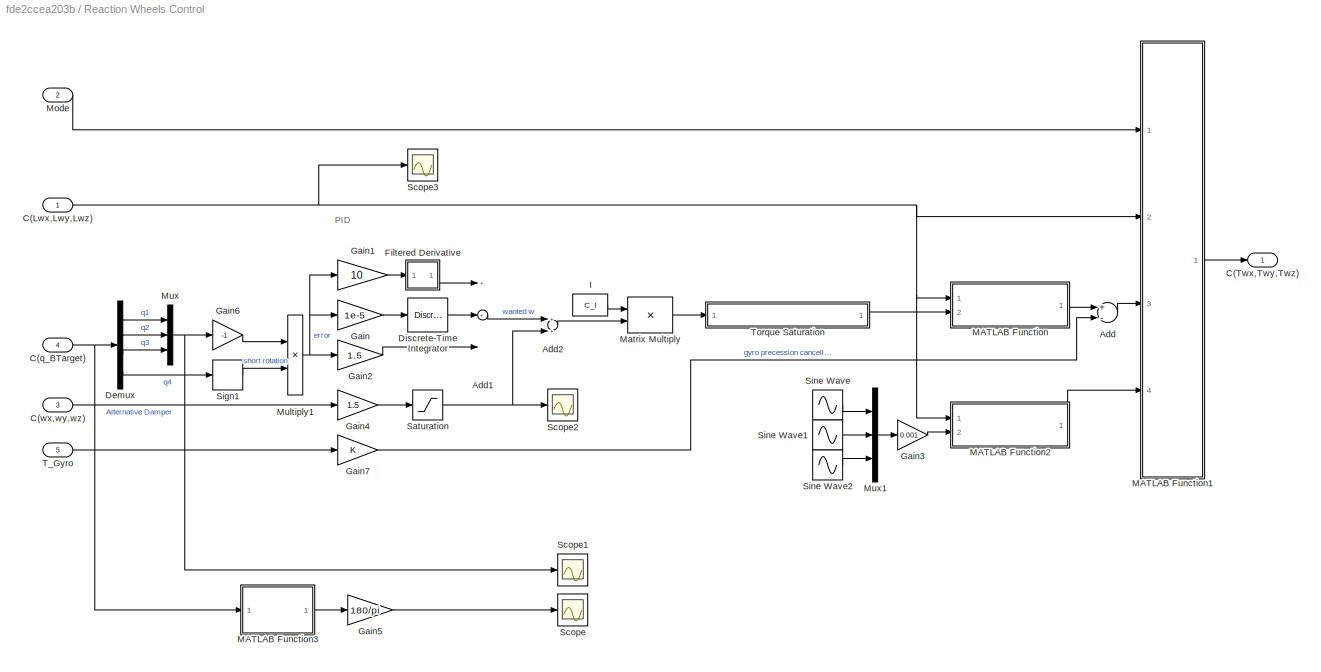
BLOCK [SubSystem] Reaction Wheels Control
  Ports = [5, 1]
  RequestExecContextInheritance = off
  SystemSampleTime = controller_sample_rate
  TreatAsAtomicUnit = on
BLOCK [Sum] Reaction Wheels Control/Add
  InputSameDT = off
  Inputs = +-
  OutDataTypeStr = Inherit: Inherit via internal rule
  Ports = [2, 1]
  SaturateOnIntegerOverflow = off
BLOCK [Sum] Reaction Wheels Control/Add1
  InputSameDT = off
  Inputs = 3
  OutDataTypeStr = Inherit: Inherit via internal rule
  Ports = [3, 1]
  SaturateOnIntegerOverflow = off
BLOCK [Sum] Reaction Wheels Control/Add2
  InputSameDT = off
  OutDataTypeStr = Inherit: Inherit via internal rule
  Ports = [2, 1]
  SaturateOnIntegerOverflow = off
BLOCK [Inport] Reaction Wheels Control/C(Lwx,Lwy,Lwz)
  IconDisplay = Port number
BLOCK [Outport] Reaction Wheels Control/C(Twx,Twy,Twz)
  IconDisplay = Port number
BLOCK [Inport] Reaction Wheels Control/C(q_BTarget)
  IconDisplay = Port number
  Port = 4
BLOCK [Inport] Reaction Wheels Control/C(wx,wy,wz)
  IconDisplay = Port number
  Port = 3
BLOCK [Demux] Reaction Wheels Control/Demux
  DisplayOption = bar
  Ports = [1, 4]
BLOCK [DiscreteIntegrator] Reaction Wheels Control/Discrete-Time Integrator
  ICPrevOutput = DiscIntNeverNeededParam
  ICPrevScaledInput = DiscIntNeverNeededParam
  InitialConditionSetting = Auto
  Ports = [1, 1]
  SampleTime = -1
BLOCK [SubSystem] Reaction Wheels Control/Filtered Derivative
  Commented = on
  Ports = [1, 1]
  RequestExecContextInheritance = off
BLOCK [Sum] Reaction Wheels Control/Filtered Derivative/Add
  InputSameDT = off
  Inputs = -+
  OutDataTypeStr = Inherit: Inherit via internal rule
  Ports = [2, 1]
  SaturateOnIntegerOverflow = off
BLOCK [DiscreteIntegrator] Reaction Wheels Control/Filtered Derivative/Discrete-Time Integrator
  ICPrevOutput = DiscIntNeverNeededParam
  ICPrevScaledInput = DiscIntNeverNeededParam
  InitialConditionSetting = Auto
  Ports = [1, 1]
  SampleTime = -1
BLOCK [Gain] Reaction Wheels Control/Filtered Derivative/Time Constant (1//tau)
  OutDataTypeStr = Inherit: Inherit via internal rule
  ParamDataTypeStr = Inherit: Inherit via internal rule
  SaturateOnIntegerOverflow = off
BLOCK [Outport] Reaction Wheels Control/Filtered Derivative/dx
  IconDisplay = Port number
BLOCK [Inport] Reaction Wheels Control/Filtered Derivative/x
  IconDisplay = Port number
BLOCK [Gain] Reaction Wheels Control/Gain
  Gain = 1e-5
  OutDataTypeStr = Inherit: Inherit via internal rule
  ParamDataTypeStr = Inherit: Inherit via internal rule
  SaturateOnIntegerOverflow = off
BLOCK [Gain] Reaction Wheels Control/Gain1
  Commented = on
  Gain = 10
  OutDataTypeStr = Inherit: Inherit via internal rule
  ParamDataTypeStr = Inherit: Inherit via internal rule
  SaturateOnIntegerOverflow = off
BLOCK [Gain] Reaction Wheels Control/Gain2
  Gain = 1.5
  OutDataTypeStr = Inherit: Inherit via internal rule
  ParamDataTypeStr = Inherit: Inherit via internal rule
  SaturateOnIntegerOverflow = off
BLOCK [Gain] Reaction Wheels Control/Gain3
  Gain = 0.001
  OutDataTypeStr = Inherit: Inherit via internal rule
  ParamDataTypeStr = Inherit: Inherit via internal rule
  SaturateOnIntegerOverflow = off
BLOCK [Gain] Reaction Wheels Control/Gain4
  Gain = 1.5
  OutDataTypeStr = Inherit: Inherit via internal rule
  ParamDataTypeStr = Inherit: Inherit via internal rule
  SaturateOnIntegerOverflow = off
BLOCK [Gain] Reaction Wheels Control/Gain5
  Gain = 180/pi
  OutDataTypeStr = Inherit: Inherit via internal rule
  ParamDataTypeStr = Inherit: Inherit via internal rule
  SaturateOnIntegerOverflow = off
BLOCK [Gain] Reaction Wheels Control/Gain6
  Gain = -1
  OutDataTypeStr = Inherit: Inherit via internal rule
  ParamDataTypeStr = Inherit: Inherit via internal rule
  SaturateOnIntegerOverflow = off
BLOCK [Gain] Reaction Wheels Control/Gain7
  OutDataTypeStr = Inherit: Inherit via internal rule
  ParamDataTypeStr = Inherit: Inherit via internal rule
  SaturateOnIntegerOverflow = off
BLOCK [Constant] Reaction Wheels Control/I
  Value = C_I
BLOCK [SubSystem] Reaction Wheels Control/MATLAB Function
  ErrorFcn = Stateflow.Translate.translate
  PermitHierarchicalResolution = ExplicitOnly
  Ports = [2, 1]
  RequestExecContextInheritance = off
  SFBlockType = MATLAB Function
  TreatAsAtomicUnit = on
BLOCK [Demux] Reaction Wheels Control/MATLAB Function/ Demux 
  Outputs = 1
  Ports = [1, 1]
BLOCK [S-Function] Reaction Wheels Control/MATLAB Function/ SFunction 
  EnableBusSupport = off
  FunctionName = sf_sfun
  PortCounts = [2 2]
  Ports = [2, 2]
  SFcnIsStateOwnerBlock = off
  SFunctionDeploymentMode = off
  Tag = Stateflow S-Function ADCS_Outline 21
BLOCK [Terminator] Reaction Wheels Control/MATLAB Function/ Terminator 
BLOCK [Inport] Reaction Wheels Control/MATLAB Function/Lw
  IconDisplay = Port number
BLOCK [Inport] Reaction Wheels Control/MATLAB Function/Ti
  IconDisplay = Port number
  Port = 2
BLOCK [Outport] Reaction Wheels Control/MATLAB Function/Tw
  IconDisplay = Port number
BLOCK [SubSystem] Reaction Wheels Control/MATLAB Function1
  ErrorFcn = Stateflow.Translate.translate
  PermitHierarchicalResolution = ExplicitOnly
  Ports = [4, 1]
  RequestExecContextInheritance = off
  SFBlockType = MATLAB Function
  TreatAsAtomicUnit = on
BLOCK [Demux] Reaction Wheels Control/MATLAB Function1/ Demux 
  Outputs = 1
  Ports = [1, 1]
BLOCK [S-Function] Reaction Wheels Control/MATLAB Function1/ SFunction 
  EnableBusSupport = off
  FunctionName = sf_sfun
  PortCounts = [4 2]
  Ports = [4, 2]
  SFcnIsStateOwnerBlock = off
  SFunctionDeploymentMode = off
  Tag = Stateflow S-Function ADCS_Outline 22
BLOCK [Terminator] Reaction Wheels Control/MATLAB Function1/ Terminator 
BLOCK [Inport] Reaction Wheels Control/MATLAB Function1/Calibration
  IconDisplay = Port number
  Port = 4
BLOCK [Inport] Reaction Wheels Control/MATLAB Function1/Lwheel
  IconDisplay = Port number
  Port = 2
BLOCK [Inport] Reaction Wheels Control/MATLAB Function1/Nominal
  IconDisplay = Port number
  Port = 3
BLOCK [Outport] Reaction Wheels Control/MATLAB Function1/T
  IconDisplay = Port number
BLOCK [Inport] Reaction Wheels Control/MATLAB Function1/mode
  IconDisplay = Port number
BLOCK [SubSystem] Reaction Wheels Control/MATLAB Function2
  ErrorFcn = Stateflow.Translate.translate
  PermitHierarchicalResolution = ExplicitOnly
  Ports = [2, 1]
  RequestExecContextInheritance = off
  SFBlockType = MATLAB Function
  TreatAsAtomicUnit = on
BLOCK [Demux] Reaction Wheels Control/MATLAB Function2/ Demux 
  Outputs = 1
  Ports = [1, 1]
BLOCK [S-Function] Reaction Wheels Control/MATLAB Function2/ SFunction 
  EnableBusSupport = off
  FunctionName = sf_sfun
  PortCounts = [2 2]
  Ports = [2, 2]
  SFcnIsStateOwnerBlock = off
  SFunctionDeploymentMode = off
  Tag = Stateflow S-Function ADCS_Outline 62
BLOCK [Terminator] Reaction Wheels Control/MATLAB Function2/ Terminator 
BLOCK [Inport] Reaction Wheels Control/MATLAB Function2/Lw
  IconDisplay = Port number
BLOCK [Inport] Reaction Wheels Control/MATLAB Function2/Ti
  IconDisplay = Port number
  Port = 2
BLOCK [Outport] Reaction Wheels Control/MATLAB Function2/Tw
  IconDisplay = Port number
BLOCK [SubSystem] Reaction Wheels Control/MATLAB Function3
  ErrorFcn = Stateflow.Translate.translate
  PermitHierarchicalResolution = ExplicitOnly
  Ports = [1, 1]
  RequestExecContextInheritance = off
  SFBlockType = MATLAB Function
  TreatAsAtomicUnit = on
BLOCK [Demux] Reaction Wheels Control/MATLAB Function3/ Demux 
  Outputs = 1
  Ports = [1, 1]
BLOCK [S-Function] Reaction Wheels Control/MATLAB Function3/ SFunction 
  EnableBusSupport = off
  FunctionName = sf_sfun
  PortCounts = [1 2]
  Ports = [1, 2]
  SFcnIsStateOwnerBlock = off
  SFunctionDeploymentMode = off
  Tag = Stateflow S-Function ADCS_Outline 75
BLOCK [Terminator] Reaction Wheels Control/MATLAB Function3/ Terminator 
BLOCK [Outport] Reaction Wheels Control/MATLAB Function3/YPR
  IconDisplay = Port number
BLOCK [Inport] Reaction Wheels Control/MATLAB Function3/q
  IconDisplay = Port number
BLOCK [Product] Reaction Wheels Control/Matrix Multiply
  InputSameDT = off
  Multiplication = Matrix(*)
  OutDataTypeStr = Inherit: Inherit via internal rule
  Ports = [2, 1]
  RndMeth = Floor
  SaturateOnIntegerOverflow = off
BLOCK [Inport] Reaction Wheels Control/Mode
  IconDisplay = Port number
  Port = 2
BLOCK [Product] Reaction Wheels Control/Multiply1
  InputSameDT = off
  OutDataTypeStr = Inherit: Inherit via internal rule
  Ports = [2, 1]
  RndMeth = Floor
  SaturateOnIntegerOverflow = off
BLOCK [Mux] Reaction Wheels Control/Mux
  DisplayOption = bar
  Inputs = 3
  Ports = [3, 1]
BLOCK [Mux] Reaction Wheels Control/Mux1
  DisplayOption = bar
  Inputs = 3
  Ports = [3, 1]
BLOCK [Saturate] Reaction Wheels Control/Saturation
  InputPortMap = u0
  LowerLimit = -0.08
  Ports = [1, 1]
  UpperLimit = 0.08
BLOCK [Scope] Reaction Wheels Control/Scope
  Floating = off
  NumInputPorts = 1
  Ports = [1]
  ScopeSpecificationString = Simulink.scopes.TimeScopeBlockCfg('CurrentConfiguration', extmgr.ConfigurationSet(extmgr.Configuration('Core','General UI',true),extmgr.Configuration('Core','Source UI',true),extmgr.Configuration('Sources','WiredSimulink',true,'DataLoggingVariableName','ScopeData2'),extmgr.Configuration('Visuals','Time Domain',true,'SerializedDisplays',{struct('MinYLimReal','-92.87801','MaxYLimReal','8.94466','YLa...<+1464ch>
BLOCK [Scope] Reaction Wheels Control/Scope1
  Floating = off
  NumInputPorts = 1
  Ports = [1]
  ScopeSpecificationString = Simulink.scopes.TimeScopeBlockCfg('CurrentConfiguration', extmgr.ConfigurationSet(extmgr.Configuration('Core','General UI',true),extmgr.Configuration('Core','Source UI',true),extmgr.Configuration('Sources','WiredSimulink',true,'DataLoggingVariableName','ScopeData3'),extmgr.Configuration('Visuals','Time Domain',true,'SerializedDisplays',{struct('MinYLimReal','-0.88488','MaxYLimReal','0.88402','YLab...<+1446ch>
BLOCK [Scope] Reaction Wheels Control/Scope2
  Floating = off
  NumInputPorts = 1
  Ports = [1]
  ScopeSpecificationString = Simulink.scopes.TimeScopeBlockCfg('CurrentConfiguration', extmgr.ConfigurationSet(extmgr.Configuration('Core','General UI',true),extmgr.Configuration('Core','Source UI',true),extmgr.Configuration('Sources','WiredSimulink',true,'DataLoggingVariableName','ScopeData4'),extmgr.Configuration('Visuals','Time Domain',true,'SerializedDisplays',{struct('MinYLimReal','-0.05571','MaxYLimReal','0.08246','YLab...<+1594ch>
BLOCK [Scope] Reaction Wheels Control/Scope3
  Floating = off
  NumInputPorts = 1
  Ports = [1]
  ScopeSpecificationString = Simulink.scopes.TimeScopeBlockCfg('CurrentConfiguration', extmgr.ConfigurationSet(extmgr.Configuration('Core','General UI',true),extmgr.Configuration('Core','Source UI',true),extmgr.Configuration('Sources','WiredSimulink',true,'DataLoggingVariableName','ScopeData6'),extmgr.Configuration('Visuals','Time Domain',true,'SerializedDisplays',{struct('MinYLimReal','-0.00211','MaxYLimReal','0.00212','YLab...<+1487ch>
BLOCK [Signum] Reaction Wheels Control/Sign1
BLOCK [Sin] Reaction Wheels Control/Sine Wave
  Amplitude = 0.1
  Frequency = 0.006
  Phase = 1
  Ports = [0, 1]
BLOCK [Sin] Reaction Wheels Control/Sine Wave1
  Amplitude = 0.1
  Frequency = 0.011
  Phase = 2
  Ports = [0, 1]
BLOCK [Sin] Reaction Wheels Control/Sine Wave2
  Amplitude = 0.05
  Frequency = 0.05
  Phase = 3
  Ports = [0, 1]
BLOCK [Inport] Reaction Wheels Control/T_Gyro
  IconDisplay = Port number
  Port = 5
BLOCK [SubSystem] Reaction Wheels Control/Torque Saturation
  Ports = [1, 1]
  RequestExecContextInheritance = off
BLOCK [Inport] Reaction Wheels Control/Torque Saturation/C(Twx,Twy,Twz)
  IconDisplay = Port number
BLOCK [Demux] Reaction Wheels Control/Torque Saturation/Demux
  DisplayOption = bar
  Outputs = 3
  Ports = [1, 3]
BLOCK [Product] Reaction Wheels Control/Torque Saturation/Divide
  InputSameDT = off
  Inputs = */
  OutDataTypeStr = Inherit: Inherit via internal rule
  Ports = [2, 1]
  RndMeth = Floor
  SaturateOnIntegerOverflow = off
BLOCK [MinMax] Reaction Wheels Control/Torque Saturation/Max
  Function = max
  InputSameDT = off
  Inputs = 4
  Ports = [4, 1]
  SaturateOnIntegerOverflow = off
  ZeroCross = off
BLOCK [Constant] Reaction Wheels Control/Torque Saturation/Not saturated
BLOCK [Fcn] Reaction Wheels Control/Torque Saturation/Saturation x
  Expr = abs(u)/(0.9*wheel_saturation)
BLOCK [Fcn] Reaction Wheels Control/Torque Saturation/Saturation y
  Expr = abs(u)/(0.9*wheel_saturation)
BLOCK [Fcn] Reaction Wheels Control/Torque Saturation/Saturation z
  Expr = abs(u)/(0.9*wheel_saturation)
BLOCK [Outport] Reaction Wheels Control/Torque Saturation/sat_C(Twx,Twy,Twz)
  IconDisplay = Port number
BLOCK [Inport] Reaction Wheels/(Lwx,Lwy,Lwz)
  IconDisplay = Port number
  Port = 2
BLOCK [Outport] Reaction Wheels/(Twx,Twy,Twz)
  IconDisplay = Port number
BLOCK [Sum] Reaction Wheels/Add
  InputSameDT = off
  OutDataTypeStr = Inherit: Inherit via internal rule
  Ports = [2, 1]
  SaturateOnIntegerOverflow = off
BLOCK [Inport] Reaction Wheels/C(Twx,Twy,Twz)
  IconDisplay = Port number
BLOCK [Gain] Reaction Wheels/Friction
  Commented = on
  Gain = -0.01
  OutDataTypeStr = Inherit: Inherit via internal rule
  ParamDataTypeStr = Inherit: Inherit via internal rule
  SaturateOnIntegerOverflow = off
BLOCK [SubSystem] Reaction Wheels/MATLAB Function
  ErrorFcn = Stateflow.Translate.translate
  PermitHierarchicalResolution = ExplicitOnly
  Ports = [2, 1]
  RequestExecContextInheritance = off
  SFBlockType = MATLAB Function
  TreatAsAtomicUnit = on
BLOCK [Demux] Reaction Wheels/MATLAB Function/ Demux 
  Outputs = 1
  Ports = [1, 1]
BLOCK [S-Function] Reaction Wheels/MATLAB Function/ SFunction 
  EnableBusSupport = off
  FunctionName = sf_sfun
  PortCounts = [2 2]
  Ports = [2, 2]
  SFcnIsStateOwnerBlock = off
  SFunctionDeploymentMode = off
  Tag = Stateflow S-Function ADCS_Outline 12
BLOCK [Terminator] Reaction Wheels/MATLAB Function/ Terminator 
BLOCK [Inport] Reaction Wheels/MATLAB Function/Lw
  IconDisplay = Port number
  Port = 2
BLOCK [Inport] Reaction Wheels/MATLAB Function/Ti
  IconDisplay = Port number
BLOCK [Outport] Reaction Wheels/MATLAB Function/Tw
  IconDisplay = Port number
BLOCK [SubSystem] Reaction Wheels/Torque Saturation
  Ports = [1, 1]
  RequestExecContextInheritance = off
BLOCK [Inport] Reaction Wheels/Torque Saturation/C(Twx,Twy,Twz)
  IconDisplay = Port number
BLOCK [Demux] Reaction Wheels/Torque Saturation/Demux
  DisplayOption = bar
  Outputs = 3
  Ports = [1, 3]
BLOCK [Product] Reaction Wheels/Torque Saturation/Divide
  InputSameDT = off
  Inputs = */
  OutDataTypeStr = Inherit: Inherit via internal rule
  Ports = [2, 1]
  RndMeth = Floor
  SaturateOnIntegerOverflow = off
BLOCK [MinMax] Reaction Wheels/Torque Saturation/Max
  Function = max
  InputSameDT = off
  Inputs = 4
  Ports = [4, 1]
  SaturateOnIntegerOverflow = off
  ZeroCross = off
BLOCK [Constant] Reaction Wheels/Torque Saturation/Not saturated
BLOCK [Fcn] Reaction Wheels/Torque Saturation/Saturation x
  Expr = abs(u)/wheel_saturation
BLOCK [Fcn] Reaction Wheels/Torque Saturation/Saturation y
  Expr = abs(u)/wheel_saturation
BLOCK [Fcn] Reaction Wheels/Torque Saturation/Saturation z
  Expr = abs(u)/wheel_saturation
BLOCK [Outport] Reaction Wheels/Torque Saturation/sat_C(Twx,Twy,Twz)
  IconDisplay = Port number
BLOCK [Reference] Real-Time Pacer  REF=realtime_pacer_lib/Real-Time Pacer
  Ports = []
  SourceBlock = realtime_pacer_lib/Real-Time Pacer
  SourceType = RealTime_Pacer
BLOCK [SubSystem] S//C Dynamics
  Ports = [2, 3]
  RequestExecContextInheritance = off
BLOCK [Outport] S//C Dynamics/(Ltx,Lty,Ltz)
  IconDisplay = Port number
BLOCK [Outport] S//C Dynamics/(Lwx,Lwy,Lwz)
  IconDisplay = Port number
  Port = 3
BLOCK [Inport] S//C Dynamics/(Twx,Twy,Twz)
  IconDisplay = Port number
  Port = 2
BLOCK [Inport] S//C Dynamics/(Tx,Ty,Tz)
  IconDisplay = Port number
BLOCK [Outport] S//C Dynamics/(wx,wy,wz)
  IconDisplay = Port number
  Port = 2
BLOCK [Sum] S//C Dynamics/Add
  InputSameDT = off
  Inputs = -+-
  OutDataTypeStr = Inherit: Inherit via internal rule
  Ports = [3, 1]
  SaturateOnIntegerOverflow = off
BLOCK [Sum] S//C Dynamics/Add1
  InputSameDT = off
  OutDataTypeStr = Inherit: Inherit via internal rule
  Ports = [2, 1]
  SaturateOnIntegerOverflow = off
BLOCK [Sum] S//C Dynamics/Add2
  InputSameDT = off
  Inputs = +-
  OutDataTypeStr = Inherit: Inherit via internal rule
  Ports = [2, 1]
  SaturateOnIntegerOverflow = off
BLOCK [Constant] S//C Dynamics/Constant
  Value = [0;0;0]
BLOCK [Reference] S//C Dynamics/Cross Product  REF=vrlib/Utilities/Cross Product
  Ports = [2, 1]
  SourceBlock = vrlib/Utilities/Cross Product
  SourceProductBaseCode = VR
  SourceProductName = Simulink 3D Animation
  SourceType = Cross Product
BLOCK [Gain] S//C Dynamics/Gain
  Gain = 1/100
  OutDataTypeStr = Inherit: Inherit via internal rule
  ParamDataTypeStr = Inherit: Inherit via internal rule
  SaturateOnIntegerOverflow = off
BLOCK [Constant] S//C Dynamics/Inertia matrix I
  Value = I
BLOCK [Constant] S//C Dynamics/Initial Angular Velocity
  Value = W0
BLOCK [Integrator] S//C Dynamics/Integrator
  InitialConditionSource = external
  Ports = [2, 1]
BLOCK [Integrator] S//C Dynamics/Integrator1
  InitialConditionSource = external
  Ports = [2, 1]
BLOCK [Constant] S//C Dynamics/Inverse of I
  Value = inv(I)
BLOCK [Constant] S//C Dynamics/Inverse of I 
  Value = inv(I)
BLOCK [Gain] S//C Dynamics/J_wheel
  Gain = 2.11e-6
  OutDataTypeStr = Inherit: Inherit via internal rule
  ParamDataTypeStr = Inherit: Inherit via internal rule
  SaturateOnIntegerOverflow = off
BLOCK [Product] S//C Dynamics/Matrix Multiply
  InputSameDT = off
  Multiplication = Matrix(*)
  OutDataTypeStr = Inherit: Inherit via internal rule
  Ports = [2, 1]
  RndMeth = Floor
  SaturateOnIntegerOverflow = off
BLOCK [Product] S//C Dynamics/Matrix Multiply1
  InputSameDT = off
  Multiplication = Matrix(*)
  OutDataTypeStr = Inherit: Inherit via internal rule
  Ports = [2, 1]
  RndMeth = Floor
  SaturateOnIntegerOverflow = off
BLOCK [Product] S//C Dynamics/Matrix Multiply2
  InputSameDT = off
  Multiplication = Matrix(*)
  OutDataTypeStr = Inherit: Inherit via internal rule
  Ports = [2, 1]
  RndMeth = Floor
  SaturateOnIntegerOverflow = off
BLOCK [Scope] S//C Dynamics/Scope
  Floating = off
  NumInputPorts = 2
  Ports = [2]
  ScopeSpecificationString = Simulink.scopes.TimeScopeBlockCfg('CurrentConfiguration', extmgr.ConfigurationSet(extmgr.Configuration('Core','General UI',true),extmgr.Configuration('Core','Source UI',true),extmgr.Configuration('Sources','WiredSimulink',true,'DataLoggingVariableName','ScopeData1'),extmgr.Configuration('Visuals','Time Domain',true,'SerializedDisplays',{struct('MinYLimReal','-0.00054','MaxYLimReal','0.0005','YLabe...<+1488ch>
BLOCK [SubSystem] S//C Kinematics
  Ports = [1, 1]
  RequestExecContextInheritance = off
BLOCK [Inport] S//C Kinematics/ (wx,wy,wz)
  IconDisplay = Port number
BLOCK [Outport] S//C Kinematics/DCM_BT
  IconDisplay = Port number
BLOCK [Gain] S//C Kinematics/Gain
  Gain = -1
  OutDataTypeStr = Inherit: Inherit via internal rule
  ParamDataTypeStr = Inherit: Inherit via internal rule
  SaturateOnIntegerOverflow = off
BLOCK [Constant] S//C Kinematics/Initial attitude
  Value = DCM_BT0
BLOCK [Integrator] S//C Kinematics/Integrator
  InitialConditionSource = external
  Ports = [2, 1]
BLOCK [Product] S//C Kinematics/Matrix Multiply
  InputSameDT = off
  Multiplication = Matrix(*)
  OutDataTypeStr = Inherit: Inherit via internal rule
  Ports = [2, 1]
  RndMeth = Floor
  SaturateOnIntegerOverflow = off
BLOCK [SubSystem] S//C Kinematics/Skewed
  Ports = [1, 1]
  RequestExecContextInheritance = off
BLOCK [SubSystem] S//C Kinematics/Skewed/MATLAB Function
  ErrorFcn = Stateflow.Translate.translate
  PermitHierarchicalResolution = ExplicitOnly
  Ports = [1, 1]
  RequestExecContextInheritance = off
  SFBlockType = MATLAB Function
  TreatAsAtomicUnit = on
BLOCK [Demux] S//C Kinematics/Skewed/MATLAB Function/ Demux 
  Outputs = 1
  Ports = [1, 1]
BLOCK [S-Function] S//C Kinematics/Skewed/MATLAB Function/ SFunction 
  EnableBusSupport = off
  FunctionName = sf_sfun
  PortCounts = [1 2]
  Ports = [1, 2]
  SFcnIsStateOwnerBlock = off
  SFunctionDeploymentMode = off
  Tag = Stateflow S-Function ADCS_Outline 10
BLOCK [Terminator] S//C Kinematics/Skewed/MATLAB Function/ Terminator 
BLOCK [Inport] S//C Kinematics/Skewed/MATLAB Function/u
  IconDisplay = Port number
BLOCK [Outport] S//C Kinematics/Skewed/MATLAB Function/y
  IconDisplay = Port number
BLOCK [Outport] S//C Kinematics/Skewed/m
  IconDisplay = Port number
BLOCK [Inport] S//C Kinematics/Skewed/v
  IconDisplay = Port number
BLOCK [SubSystem] SGP4
  Ports = [1, 2]
  RequestExecContextInheritance = off
BLOCK [Outport] SGP4/(PX,PY,PZ)
  IconDisplay = Port number
BLOCK [Outport] SGP4/(VX,VY,VZ)
  IconDisplay = Port number
  Port = 2
BLOCK [Inport] SGP4/JD
  IconDisplay = Port number
BLOCK [Mux] SGP4/Mux
  DisplayOption = bar
  Inputs = 3
  Ports = [3, 1]
BLOCK [Mux] SGP4/Mux1
  DisplayOption = bar
  Inputs = 3
  Ports = [3, 1]
BLOCK [Lookup_n-D] SGP4/PX
  BeginIndexSearchUsingPreviousIndexResult = on
  BreakpointsForDimension1 = breakpoints
  InternalRulePriority = Speed
  InterpMethod = Cubic spline
  NumberOfTableDimensions = 1
  Ports = [1, 1]
  RndMeth = Simplest
  Table = datapx
BLOCK [Lookup_n-D] SGP4/PY
  BeginIndexSearchUsingPreviousIndexResult = on
  BreakpointsForDimension1 = breakpoints
  InternalRulePriority = Speed
  InterpMethod = Cubic spline
  NumberOfTableDimensions = 1
  Ports = [1, 1]
  RndMeth = Simplest
  Table = datapy
BLOCK [Lookup_n-D] SGP4/PZ
  BeginIndexSearchUsingPreviousIndexResult = on
  BreakpointsForDimension1 = breakpoints
  InternalRulePriority = Speed
  InterpMethod = Cubic spline
  NumberOfTableDimensions = 1
  Ports = [1, 1]
  RndMeth = Simplest
  Table = datapz
BLOCK [SubSystem] SGP4/SGP4
  Commented = on
  ErrorFcn = Stateflow.Translate.translate
  PermitHierarchicalResolution = ExplicitOnly
  Ports = [1, 2]
  RequestExecContextInheritance = off
  SFBlockType = MATLAB Function
  TreatAsAtomicUnit = on
BLOCK [Demux] SGP4/SGP4/ Demux 
  Outputs = 1
  Ports = [1, 1]
BLOCK [S-Function] SGP4/SGP4/ SFunction 
  EnableBusSupport = off
  FunctionName = sf_sfun
  PortCounts = [1 3]
  Ports = [1, 3]
  SFcnIsStateOwnerBlock = off
  SFunctionDeploymentMode = off
  Tag = Stateflow S-Function ADCS_Outline 4
BLOCK [Terminator] SGP4/SGP4/ Terminator 
BLOCK [Inport] SGP4/SGP4/TT
  IconDisplay = Port number
BLOCK [Outport] SGP4/SGP4/pos
  IconDisplay = Port number
BLOCK [Outport] SGP4/SGP4/vel
  IconDisplay = Port number
  Port = 2
BLOCK [Lookup_n-D] SGP4/VX
  BeginIndexSearchUsingPreviousIndexResult = on
  BreakpointsForDimension1 = breakpoints
  InternalRulePriority = Speed
  InterpMethod = Cubic spline
  NumberOfTableDimensions = 1
  Ports = [1, 1]
  RndMeth = Simplest
  Table = datavx
BLOCK [Lookup_n-D] SGP4/VY
  BeginIndexSearchUsingPreviousIndexResult = on
  BreakpointsForDimension1 = breakpoints
  InternalRulePriority = Speed
  InterpMethod = Cubic spline
  NumberOfTableDimensions = 1
  Ports = [1, 1]
  RndMeth = Simplest
  Table = datavy
BLOCK [Lookup_n-D] SGP4/VZ
  BeginIndexSearchUsingPreviousIndexResult = on
  BreakpointsForDimension1 = breakpoints
  InternalRulePriority = Speed
  InterpMethod = Cubic spline
  NumberOfTableDimensions = 1
  Ports = [1, 1]
  RndMeth = Simplest
  Table = datavz
BLOCK [SubSystem] STK Attitude Recording
  Ports = [2]
  RequestExecContextInheritance = off
  StopFcn = STKAttitudeFileGenerator
BLOCK [Clock] STK Attitude Recording/Clock
BLOCK [SubSystem] STK Attitude Recording/DCM to q
  ErrorFcn = Stateflow.Translate.translate
  PermitHierarchicalResolution = ExplicitOnly
  Ports = [1, 1]
  RequestExecContextInheritance = off
  SFBlockType = MATLAB Function
  TreatAsAtomicUnit = on
BLOCK [Demux] STK Attitude Recording/DCM to q/ Demux 
  Outputs = 1
  Ports = [1, 1]
BLOCK [S-Function] STK Attitude Recording/DCM to q/ SFunction 
  EnableBusSupport = off
  FunctionName = sf_sfun
  PortCounts = [1 2]
  Ports = [1, 2]
  SFcnIsStateOwnerBlock = off
  SFunctionDeploymentMode = off
  Tag = Stateflow S-Function ADCS_Outline 18
BLOCK [Terminator] STK Attitude Recording/DCM to q/ Terminator 
BLOCK [Inport] STK Attitude Recording/DCM to q/dcm_inv
  IconDisplay = Port number
BLOCK [Outport] STK Attitude Recording/DCM to q/q
  IconDisplay = Port number
BLOCK [Inport] STK Attitude Recording/DCM_BE
  IconDisplay = Port number
BLOCK [SubSystem] STK Attitude Recording/MATLAB Function
  ErrorFcn = Stateflow.Translate.translate
  PermitHierarchicalResolution = ExplicitOnly
  Ports = [1, 1]
  RequestExecContextInheritance = off
  SFBlockType = MATLAB Function
  TreatAsAtomicUnit = on
BLOCK [Demux] STK Attitude Recording/MATLAB Function/ Demux 
  Outputs = 1
  Ports = [1, 1]
BLOCK [S-Function] STK Attitude Recording/MATLAB Function/ SFunction 
  EnableBusSupport = off
  FunctionName = sf_sfun
  PortCounts = [1 2]
  Ports = [1, 2]
  SFcnIsStateOwnerBlock = off
  SFunctionDeploymentMode = off
  Tag = Stateflow S-Function ADCS_Outline 43
BLOCK [Terminator] STK Attitude Recording/MATLAB Function/ Terminator 
BLOCK [Inport] STK Attitude Recording/MATLAB Function/u
  IconDisplay = Port number
BLOCK [Outport] STK Attitude Recording/MATLAB Function/y
  IconDisplay = Port number
BLOCK [Inport] STK Attitude Recording/Mode
  IconDisplay = Port number
  Port = 2
BLOCK [Mux] STK Attitude Recording/Mux
  DisplayOption = bar
  Inputs = 2
  Ports = [2, 1]
BLOCK [DiscretePulseGenerator] STK Attitude Recording/Pulse Generator
  Period = 180
  PhaseDelay = 1e-16
  Ports = [0, 1]
  PulseType = Time based
  PulseWidth = 5
BLOCK [DiscretePulseGenerator] STK Attitude Recording/Pulse Generator1
  PhaseDelay = 1e-16
  Ports = [0, 1]
  PulseType = Time based
  PulseWidth = 5
BLOCK [SubSystem] STK Attitude Recording/Subsystem
  Ports = [1, 0, 0, 1]
  RequestExecContextInheritance = off
BLOCK [ToWorkspace] STK Attitude Recording/Subsystem/To Workspace
  MaxDataPoints = inf
  Ports = [1]
  SampleTime = -1
  VariableName = q_EB
BLOCK [TriggerPort] STK Attitude Recording/Subsystem/Trigger
  PortDimensions = 1
  Ports = []
  StatesWhenEnabling = held
  VariantControl = Variant
BLOCK [Inport] STK Attitude Recording/Subsystem/q_EB
  IconDisplay = Port number
BLOCK [Switch] STK Attitude Recording/Switch
  InputSameDT = off
  SaturateOnIntegerOverflow = off
  Threshold = 1
BLOCK [Scope] Scope
  Floating = off
  IOType = viewer
  NumInputPorts = 1
  Ports = []
  ScopeSpecificationString = Simulink.scopes.TimeScopeBlockCfg('CurrentConfiguration', extmgr.ConfigurationSet(extmgr.Configuration('Core','General UI',true),extmgr.Configuration('Core','Source UI',true),extmgr.Configuration('Sources','WiredSimulink',true,'DataLoggingVariableName','ScopeData1'),extmgr.Configuration('Visuals','Time Domain',true,'SerializedDisplays',{struct('MinYLimReal','-0.00024','MaxYLimReal','0.00024','YLab...<+1549ch>
BLOCK [Scope] Scope1
  Floating = off
  IOType = viewer
  NumInputPorts = 1
  Ports = []
  ScopeSpecificationString = Simulink.scopes.TimeScopeBlockCfg('CurrentConfiguration', extmgr.ConfigurationSet(extmgr.Configuration('Core','General UI',true),extmgr.Configuration('Core','Source UI',true),extmgr.Configuration('Sources','WiredSimulink',true,'DataLoggingVariableName','ScopeData2'),extmgr.Configuration('Visuals','Time Domain',true,'SerializedDisplays',{struct('MinYLimReal','-0.00221','MaxYLimReal','0.00222','YLab...<+1388ch>
BLOCK [Scope] Scope10
  Floating = off
  IOType = viewer
  NumInputPorts = 1
  Ports = []
  ScopeSpecificationString = Simulink.scopes.TimeScopeBlockCfg('CurrentConfiguration', extmgr.ConfigurationSet(extmgr.Configuration('Core','General UI',true),extmgr.Configuration('Core','Source UI',true),extmgr.Configuration('Sources','WiredSimulink',true,'DataLoggingVariableName','ScopeData1'),extmgr.Configuration('Visuals','Time Domain',true,'SerializedDisplays',{struct('MinYLimReal','-0.3','MaxYLimReal','0.3','YLabelReal',...<+1364ch>
BLOCK [Scope] Scope12
  Floating = off
  IOType = viewer
  NumInputPorts = 1
  Ports = []
  ScopeSpecificationString = Simulink.scopes.TimeScopeBlockCfg('CurrentConfiguration', extmgr.ConfigurationSet(extmgr.Configuration('Core','General UI',true),extmgr.Configuration('Core','Source UI',true),extmgr.Configuration('Sources','WiredSimulink',true,'DataLoggingVariableName','ScopeData2'),extmgr.Configuration('Visuals','Time Domain',true,'SerializedDisplays',{struct('MinYLimReal','-0.00076','MaxYLimReal','0.00123','YLab...<+1432ch>
BLOCK [Scope] Scope13
  Floating = off
  IOType = viewer
  NumInputPorts = 1
  Ports = []
  ScopeSpecificationString = Simulink.scopes.TimeScopeBlockCfg('CurrentConfiguration', extmgr.ConfigurationSet(extmgr.Configuration('Core','General UI',true),extmgr.Configuration('Core','Source UI',true),extmgr.Configuration('Sources','WiredSimulink',true,'DataLoggingVariableName','ScopeData3'),extmgr.Configuration('Visuals','Time Domain',true,'SerializedDisplays',{struct('MinYLimReal','-0.18746','MaxYLimReal','0.18746','YLab...<+1432ch>
BLOCK [Scope] Scope14
  Floating = off
  IOType = viewer
  NumInputPorts = 1
  Ports = []
  ScopeSpecificationString = Simulink.scopes.TimeScopeBlockCfg('CurrentConfiguration', extmgr.ConfigurationSet(extmgr.Configuration('Core','General UI',true),extmgr.Configuration('Core','Source UI',true),extmgr.Configuration('Sources','WiredSimulink',true,'DataLoggingVariableName','ScopeData1'),extmgr.Configuration('Visuals','Time Domain',true,'SerializedDisplays',{struct('MinYLimReal','-1.25','MaxYLimReal','1.25','YLabelReal...<+1370ch>
BLOCK [Scope] Scope15
  Floating = off
  IOType = viewer
  NumInputPorts = 1
  Ports = []
  ScopeSpecificationString = Simulink.scopes.TimeScopeBlockCfg('CurrentConfiguration', extmgr.ConfigurationSet(extmgr.Configuration('Core','General UI',true),extmgr.Configuration('Core','Source UI',true),extmgr.Configuration('Sources','WiredSimulink',true,'DataLoggingVariableName','ScopeData1'),extmgr.Configuration('Visuals','Time Domain',true,'SerializedDisplays',{struct('MinYLimReal','-0.01954','MaxYLimReal','0.00217','YLab...<+1388ch>
BLOCK [Scope] Scope16
  Floating = off
  IOType = viewer
  NumInputPorts = 1
  Ports = []
  ScopeSpecificationString = Simulink.scopes.TimeScopeBlockCfg('CurrentConfiguration', extmgr.ConfigurationSet(extmgr.Configuration('Core','General UI',true),extmgr.Configuration('Core','Source UI',true),extmgr.Configuration('Sources','WiredSimulink',true,'DataLoggingVariableName','ScopeData2'),extmgr.Configuration('Visuals','Time Domain',true,'SerializedDisplays',{struct('MinYLimReal','-1.12476','MaxYLimReal','0.12497','YLab...<+1407ch>
BLOCK [Scope] Scope17
  Floating = off
  IOType = viewer
  NumInputPorts = 1
  Ports = []
  ScopeSpecificationString = Simulink.scopes.TimeScopeBlockCfg('CurrentConfiguration', extmgr.ConfigurationSet(extmgr.Configuration('Core','General UI',true),extmgr.Configuration('Core','Source UI',true),extmgr.Configuration('Sources','WiredSimulink',true,'DataLoggingVariableName','ScopeData3'),extmgr.Configuration('Visuals','Time Domain',true,'SerializedDisplays',{struct('MinYLimReal','-0.08553','MaxYLimReal','0.05093','YLab...<+1432ch>
BLOCK [Scope] Scope18
  Floating = off
  IOType = viewer
  NumInputPorts = 1
  Ports = []
  ScopeSpecificationString = Simulink.scopes.TimeScopeBlockCfg('CurrentConfiguration', extmgr.ConfigurationSet(extmgr.Configuration('Core','General UI',true),extmgr.Configuration('Core','Source UI',true),extmgr.Configuration('Sources','WiredSimulink',true,'DataLoggingVariableName','ScopeData1'),extmgr.Configuration('Visuals','Time Domain',true,'SerializedDisplays',{struct('MinYLimReal','-1.20007','MaxYLimReal','0.82463','YLab...<+1413ch>
BLOCK [Scope] Scope19
  Floating = off
  IOType = viewer
  NumInputPorts = 1
  Ports = []
  ScopeSpecificationString = Simulink.scopes.TimeScopeBlockCfg('CurrentConfiguration', extmgr.ConfigurationSet(extmgr.Configuration('Core','General UI',true),extmgr.Configuration('Core','Source UI',true),extmgr.Configuration('Sources','WiredSimulink',true,'DataLoggingVariableName','ScopeData2'),extmgr.Configuration('Visuals','Time Domain',true,'SerializedDisplays',{struct('MinYLimReal','-24911.01482','MaxYLimReal','-23874.010...<+1462ch>
BLOCK [Scope] Scope2
  Floating = off
  IOType = viewer
  NumInputPorts = 1
  Ports = []
  ScopeSpecificationString = Simulink.scopes.TimeScopeBlockCfg('CurrentConfiguration', extmgr.ConfigurationSet(extmgr.Configuration('Core','General UI',true),extmgr.Configuration('Core','Source UI',true),extmgr.Configuration('Sources','WiredSimulink',true,'DataLoggingVariableName','ScopeData3'),extmgr.Configuration('Visuals','Time Domain',true,'SerializedDisplays',{struct('MinYLimReal','-0.73933','MaxYLimReal','0.08215','YLab...<+1388ch>
BLOCK [Scope] Scope20
  Floating = off
  IOType = viewer
  NumInputPorts = 1
  Ports = []
  ScopeSpecificationString = Simulink.scopes.TimeScopeBlockCfg('CurrentConfiguration', extmgr.ConfigurationSet(extmgr.Configuration('Core','General UI',true),extmgr.Configuration('Core','Source UI',true),extmgr.Configuration('Sources','WiredSimulink',true,'DataLoggingVariableName','ScopeData2'),extmgr.Configuration('Visuals','Time Domain',true,'SerializedDisplays',{struct('MinYLimReal','-1.09659','MaxYLimReal','1.21541','YLab...<+1389ch>
BLOCK [Scope] Scope21
  Floating = off
  IOType = viewer
  NumInputPorts = 1
  Ports = []
  ScopeSpecificationString = Simulink.scopes.TimeScopeBlockCfg('CurrentConfiguration', extmgr.ConfigurationSet(extmgr.Configuration('Core','General UI',true),extmgr.Configuration('Core','Source UI',true),extmgr.Configuration('Sources','WiredSimulink',true,'DataLoggingVariableName','ScopeData1'),extmgr.Configuration('Visuals','Time Domain',true,'SerializedDisplays',{struct('MinYLimReal','-0.01707','MaxYLimReal','0.0194','YLabe...<+1428ch>
BLOCK [Scope] Scope3
  Floating = off
  IOType = viewer
  NumInputPorts = 1
  Ports = []
  ScopeSpecificationString = Simulink.scopes.TimeScopeBlockCfg('CurrentConfiguration', extmgr.ConfigurationSet(extmgr.Configuration('Core','General UI',true),extmgr.Configuration('Core','Source UI',true),extmgr.Configuration('Sources','WiredSimulink',true,'DataLoggingVariableName','ScopeData1'),extmgr.Configuration('Visuals','Time Domain',true,'SerializedDisplays',{struct('MinYLimReal','-0.001188','MaxYLimReal','-0.001177','Y...<+1443ch>
BLOCK [Scope] Scope4
  Floating = off
  IOType = viewer
  NumInputPorts = 1
  Ports = []
  ScopeSpecificationString = Simulink.scopes.TimeScopeBlockCfg('CurrentConfiguration', extmgr.ConfigurationSet(extmgr.Configuration('Core','General UI',true),extmgr.Configuration('Core','Source UI',true),extmgr.Configuration('Sources','WiredSimulink',true,'DataLoggingVariableName','ScopeData1'),extmgr.Configuration('Visuals','Time Domain',true,'SerializedDisplays',{struct('MinYLimReal','-0.0000007','MaxYLimReal','0.0000008','...<+1404ch>
BLOCK [Scope] Scope5
  Floating = off
  IOType = viewer
  NumInputPorts = 1
  Ports = []
  ScopeSpecificationString = Simulink.scopes.TimeScopeBlockCfg('CurrentConfiguration', extmgr.ConfigurationSet(extmgr.Configuration('Core','General UI',true),extmgr.Configuration('Core','Source UI',true),extmgr.Configuration('Sources','WiredSimulink',true,'DataLoggingVariableName','ScopeData2'),extmgr.Configuration('Visuals','Time Domain',true,'SerializedDisplays',{struct('MinYLimReal','-0.00000009','MaxYLimReal','0.00000004'...<+1411ch>
BLOCK [Scope] Scope6
  Floating = off
  IOType = viewer
  NumInputPorts = 1
  Ports = []
  ScopeSpecificationString = Simulink.scopes.TimeScopeBlockCfg('CurrentConfiguration', extmgr.ConfigurationSet(extmgr.Configuration('Core','General UI',true),extmgr.Configuration('Core','Source UI',true),extmgr.Configuration('Sources','WiredSimulink',true,'DataLoggingVariableName','ScopeData3'),extmgr.Configuration('Visuals','Time Domain',true,'SerializedDisplays',{struct('MinYLimReal','-0.000000032','MaxYLimReal','0.00000003...<+1420ch>
BLOCK [Scope] Scope7
  Floating = off
  IOType = viewer
  NumInputPorts = 1
  Ports = []
  ScopeSpecificationString = Simulink.scopes.TimeScopeBlockCfg('CurrentConfiguration', extmgr.ConfigurationSet(extmgr.Configuration('Core','General UI',true),extmgr.Configuration('Core','Source UI',true),extmgr.Configuration('Sources','WiredSimulink',true,'DataLoggingVariableName','ScopeData4'),extmgr.Configuration('Visuals','Time Domain',true,'SerializedDisplays',{struct('MinYLimReal','-0.0000024','MaxYLimReal','0.0000023','...<+1403ch>
BLOCK [Scope] Scope8
  Floating = off
  IOType = viewer
  NumInputPorts = 1
  Ports = []
  ScopeSpecificationString = Simulink.scopes.TimeScopeBlockCfg('CurrentConfiguration', extmgr.ConfigurationSet(extmgr.Configuration('Core','General UI',true),extmgr.Configuration('Core','Source UI',true),extmgr.Configuration('Sources','WiredSimulink',true,'DataLoggingVariableName','ScopeData5'),extmgr.Configuration('Visuals','Time Domain',true,'SerializedDisplays',{struct('MinYLimReal','-0.20811','MaxYLimReal','0.29535','YLab...<+1387ch>
BLOCK [Scope] Scope9
  Floating = off
  IOType = viewer
  NumInputPorts = 1
  Ports = []
  ScopeSpecificationString = Simulink.scopes.TimeScopeBlockCfg('CurrentConfiguration', extmgr.ConfigurationSet(extmgr.Configuration('Core','General UI',true),extmgr.Configuration('Core','Source UI',true),extmgr.Configuration('Sources','WiredSimulink',true,'DataLoggingVariableName','ScopeData6'),extmgr.Configuration('Visuals','Time Domain',true,'SerializedDisplays',{struct('MinYLimReal','-0.82065','MaxYLimReal','0.09118','YLab...<+1388ch>
BLOCK [SubSystem] Subsystem1
  Ports = [4, 6]
  RequestExecContextInheritance = off
BLOCK [Outport] Subsystem1/(Bv,Bw,Br)
  IconDisplay = Port number
BLOCK [Inport] Subsystem1/(Bxe,Bye,Bze)
  IconDisplay = Port number
  Port = 4
BLOCK [Outport] Subsystem1/(Pv,Pw,Pr)
  IconDisplay = Port number
  Port = 6
BLOCK [Inport] Subsystem1/(Pxe,Pye,Pze)
  IconDisplay = Port number
  Port = 3
BLOCK [Outport] Subsystem1/(Sv,Sw,Sr)
  IconDisplay = Port number
  Port = 5
BLOCK [Inport] Subsystem1/(Sxe,Sye,Sze)
  IconDisplay = Port number
  Port = 2
BLOCK [Sum] Subsystem1/Add
  InputSameDT = off
  Inputs = -+
  OutDataTypeStr = Inherit: Inherit via internal rule
  Ports = [2, 1]
  SaturateOnIntegerOverflow = off
BLOCK [Sum] Subsystem1/Add1
  InputSameDT = off
  Inputs = -+
  OutDataTypeStr = Inherit: Inherit via internal rule
  Ports = [2, 1]
  SaturateOnIntegerOverflow = off
BLOCK [Sum] Subsystem1/Add2
  InputSameDT = off
  Inputs = -+
  OutDataTypeStr = Inherit: Inherit via internal rule
  Ports = [2, 1]
  SaturateOnIntegerOverflow = off
BLOCK [Constant] Subsystem1/Concordia
  Value = ground
BLOCK [Constant] Subsystem1/Constant1
  Value = argentina
BLOCK [Constant] Subsystem1/Constant2
  Value = namibia
BLOCK [Inport] Subsystem1/DCM_EF 
  IconDisplay = Port number
BLOCK [Product] Subsystem1/Matrix Multiply
  InputSameDT = off
  Multiplication = Matrix(*)
  OutDataTypeStr = Inherit: Inherit via internal rule
  Ports = [2, 1]
  RndMeth = Floor
  SaturateOnIntegerOverflow = off
BLOCK [Product] Subsystem1/Matrix Multiply1
  InputSameDT = off
  Multiplication = Matrix(*)
  OutDataTypeStr = Inherit: Inherit via internal rule
  Ports = [2, 1]
  RndMeth = Floor
  SaturateOnIntegerOverflow = off
BLOCK [Product] Subsystem1/Matrix Multiply2
  InputSameDT = off
  Multiplication = Matrix(*)
  OutDataTypeStr = Inherit: Inherit via internal rule
  Ports = [2, 1]
  RndMeth = Floor
  SaturateOnIntegerOverflow = off
BLOCK [Product] Subsystem1/Matrix Multiply3
  InputSameDT = off
  Multiplication = Matrix(*)
  OutDataTypeStr = Inherit: Inherit via internal rule
  Ports = [2, 1]
  RndMeth = Floor
  SaturateOnIntegerOverflow = off
BLOCK [Product] Subsystem1/Matrix Multiply4
  InputSameDT = off
  Multiplication = Matrix(*)
  OutDataTypeStr = Inherit: Inherit via internal rule
  Ports = [2, 1]
  RndMeth = Floor
  SaturateOnIntegerOverflow = off
BLOCK [Product] Subsystem1/Matrix Multiply5
  InputSameDT = off
  Multiplication = Matrix(*)
  OutDataTypeStr = Inherit: Inherit via internal rule
  Ports = [2, 1]
  RndMeth = Floor
  SaturateOnIntegerOverflow = off
BLOCK [Outport] Subsystem1/ToArgentina
  IconDisplay = Port number
  Port = 4
BLOCK [Outport] Subsystem1/ToGround
  IconDisplay = Port number
  Port = 2
BLOCK [Outport] Subsystem1/ToNamibia
  IconDisplay = Port number
  Port = 3
BLOCK [Math] Subsystem1/Transpose
  Operator = transpose
  Ports = [1, 1]
BLOCK [SubSystem] Sun
  Ports = [1, 1]
  RequestExecContextInheritance = off
BLOCK [SubSystem] Sun Sensors
  Ports = [1, 1]
  RequestExecContextInheritance = off
  SystemSampleTime = controller_sample_rate
  TreatAsAtomicUnit = on
BLOCK [Inport] Sun Sensors/(Sx,Sy,Sz)
  IconDisplay = Port number
BLOCK [Outport] Sun Sensors/C(Sx,Sy,Sz)
  IconDisplay = Port number
BLOCK [SubSystem] Sun Sensors/Noise and Bias
  Ports = [1, 1]
  RequestExecContextInheritance = off
BLOCK [Sum] Sun Sensors/Noise and Bias/Add
  InputSameDT = off
  Inputs = +++
  OutDataTypeStr = Inherit: Inherit via internal rule
  Ports = [3, 1]
  SaturateOnIntegerOverflow = off
BLOCK [Constant] Sun Sensors/Noise and Bias/Bias
  Commented = on
  Value = 0.1*[1;1;1;1;1;1;1;1;1;1;1;1]
BLOCK [Inport] Sun Sensors/Noise and Bias/In1
  IconDisplay = Port number
BLOCK [Mux] Sun Sensors/Noise and Bias/Mux
  DisplayOption = bar
  Inputs = 3
  Ports = [3, 1]
BLOCK [Outport] Sun Sensors/Noise and Bias/Out1
  IconDisplay = Port number
BLOCK [Reference] Sun Sensors/Noise and Bias/Random Source  REF=dspsrcs4/Random
Source
  Ports = [0, 1]
  SourceBlock = dspsrcs4/Random\nSource
  SourceProductBaseCode = DS
  SourceProductName = DSP System Toolbox
  SourceType = Random Source
  UserDataPersistent = on
BLOCK [Reference] Sun Sensors/Noise and Bias/Random Source1  REF=dspsrcs4/Random
Source
  Ports = [0, 1]
  SourceBlock = dspsrcs4/Random\nSource
  SourceProductBaseCode = DS
  SourceProductName = DSP System Toolbox
  SourceType = Random Source
  UserDataPersistent = on
BLOCK [Reference] Sun Sensors/Noise and Bias/Random Source2  REF=dspsrcs4/Random
Source
  Ports = [0, 1]
  SourceBlock = dspsrcs4/Random\nSource
  SourceProductBaseCode = DS
  SourceProductName = DSP System Toolbox
  SourceType = Random Source
  UserDataPersistent = on
BLOCK [Gain] Sun Sensors/Noise and Bias/loss
  OutDataTypeStr = Inherit: Inherit via internal rule
  ParamDataTypeStr = Inherit: Inherit via internal rule
  SaturateOnIntegerOverflow = off
BLOCK [Outport] Sun/(SX,SY,SZ)
  IconDisplay = Port number
BLOCK [Constant] Sun/Constant
  Value = 0
BLOCK [Constant] Sun/Constant1
  Value = 0
BLOCK [Constant] Sun/Constant2
  Value = nut80
BLOCK [Fcn] Sun/Fcn
  Expr = (u-2451545)/36525.0
BLOCK [Inport] Sun/JD
  IconDisplay = Port number
BLOCK [SubSystem] Sun/MATLAB Function
  ErrorFcn = Stateflow.Translate.translate
  PermitHierarchicalResolution = ExplicitOnly
  Ports = [1, 1]
  RequestExecContextInheritance = off
  SFBlockType = MATLAB Function
  TreatAsAtomicUnit = on
BLOCK [Demux] Sun/MATLAB Function/ Demux 
  Outputs = 1
  Ports = [1, 1]
BLOCK [S-Function] Sun/MATLAB Function/ SFunction 
  EnableBusSupport = off
  FunctionName = sf_sfun
  PortCounts = [1 2]
  Ports = [1, 2]
  SFcnIsStateOwnerBlock = off
  SFunctionDeploymentMode = off
  Tag = Stateflow S-Function ADCS_Outline 1
BLOCK [Terminator] Sun/MATLAB Function/ Terminator 
BLOCK [Inport] Sun/MATLAB Function/jd
  IconDisplay = Port number
BLOCK [Outport] Sun/MATLAB Function/rsun
  IconDisplay = Port number
BLOCK [SubSystem] Sun/MATLAB Function1
  ErrorFcn = Stateflow.Translate.translate
  PermitHierarchicalResolution = ExplicitOnly
  Ports = [2, 1]
  RequestExecContextInheritance = off
  SFBlockType = MATLAB Function
  TreatAsAtomicUnit = on
BLOCK [Demux] Sun/MATLAB Function1/ Demux 
  Outputs = 1
  Ports = [1, 1]
BLOCK [S-Function] Sun/MATLAB Function1/ SFunction 
  EnableBusSupport = off
  FunctionName = sf_sfun
  PortCounts = [2 2]
  Ports = [2, 2]
  SFcnIsStateOwnerBlock = off
  SFunctionDeploymentMode = off
  Tag = Stateflow S-Function ADCS_Outline 8
BLOCK [Terminator] Sun/MATLAB Function1/ Terminator 
BLOCK [Outport] Sun/MATLAB Function1/reci
  IconDisplay = Port number
BLOCK [Inport] Sun/MATLAB Function1/rmod
  IconDisplay = Port number
BLOCK [Inport] Sun/MATLAB Function1/ttt
  IconDisplay = Port number
  Port = 2
BLOCK [SubSystem] Sun/MATLAB Function2
  ErrorFcn = Stateflow.Translate.translate
  PermitHierarchicalResolution = ExplicitOnly
  Ports = [5, 1]
  RequestExecContextInheritance = off
  SFBlockType = MATLAB Function
  TreatAsAtomicUnit = on
BLOCK [Demux] Sun/MATLAB Function2/ Demux 
  Outputs = 1
  Ports = [1, 1]
BLOCK [S-Function] Sun/MATLAB Function2/ SFunction 
  EnableBusSupport = off
  FunctionName = sf_sfun
  PortCounts = [5 2]
  Ports = [5, 2]
  SFcnIsStateOwnerBlock = off
  SFunctionDeploymentMode = off
  Tag = Stateflow S-Function ADCS_Outline 9
BLOCK [Terminator] Sun/MATLAB Function2/ Terminator 
BLOCK [Inport] Sun/MATLAB Function2/ddeps
  IconDisplay = Port number
  Port = 2
BLOCK [Inport] Sun/MATLAB Function2/ddpsi
  IconDisplay = Port number
BLOCK [Inport] Sun/MATLAB Function2/nut80
  IconDisplay = Port number
  Port = 4
BLOCK [Inport] Sun/MATLAB Function2/reci
  IconDisplay = Port number
  Port = 3
BLOCK [Outport] Sun/MATLAB Function2/rteme
  IconDisplay = Port number
BLOCK [Inport] Sun/MATLAB Function2/ttt
  IconDisplay = Port number
  Port = 5
BLOCK [SubSystem] TEME to ITRF
  Ports = [4, 4]
  RequestExecContextInheritance = off
BLOCK [Fcn] TEME to ITRF/ 
  Expr = (u-2451545.0)/36525
BLOCK [Inport] TEME to ITRF/(PX,PY,PZ)
  IconDisplay = Port number
BLOCK [Outport] TEME to ITRF/(Pxe,Pye,Pze)
  IconDisplay = Port number
BLOCK [Inport] TEME to ITRF/(SX,SY,SZ)
  IconDisplay = Port number
  Port = 4
BLOCK [Outport] TEME to ITRF/(Sxe,Sye,Sze)
  IconDisplay = Port number
  Port = 2
BLOCK [Inport] TEME to ITRF/(VX,VY,VZ)
  IconDisplay = Port number
  Port = 2
BLOCK [Outport] TEME to ITRF/(Vxe,Vye,Vze)
  IconDisplay = Port number
  Port = 3
BLOCK [Constant] TEME to ITRF/Constant
  Value = [1; 1; 1]
BLOCK [Constant] TEME to ITRF/Constant1
  Value = 2
BLOCK [Constant] TEME to ITRF/Constant2
  Value = 0.247746*pi/3600/180
BLOCK [Constant] TEME to ITRF/Constant3
  Value = 0.127631*pi/3600/180
BLOCK [Constant] TEME to ITRF/Constant4
  Value = 0
BLOCK [Outport] TEME to ITRF/DCM_ET
  IconDisplay = Port number
  Port = 4
BLOCK [SubSystem] TEME to ITRF/From David Vallado
  ErrorFcn = Stateflow.Translate.translate
  PermitHierarchicalResolution = ExplicitOnly
  Ports = [10, 5]
  RequestExecContextInheritance = off
  SFBlockType = MATLAB Function
  TreatAsAtomicUnit = on
BLOCK [Demux] TEME to ITRF/From David Vallado/ Demux 
  Outputs = 1
  Ports = [1, 1]
BLOCK [S-Function] TEME to ITRF/From David Vallado/ SFunction 
  EnableBusSupport = off
  FunctionName = sf_sfun
  PortCounts = [10 6]
  Ports = [10, 6]
  SFcnIsStateOwnerBlock = off
  SFunctionDeploymentMode = off
  Tag = Stateflow S-Function ADCS_Outline 5
BLOCK [Terminator] TEME to ITRF/From David Vallado/ Terminator 
BLOCK [Outport] TEME to ITRF/From David Vallado/DCM_ET
  IconDisplay = Port number
  Port = 5
BLOCK [Outport] TEME to ITRF/From David Vallado/aecef
  IconDisplay = Port number
  Port = 4
BLOCK [Inport] TEME to ITRF/From David Vallado/ateme
  IconDisplay = Port number
  Port = 4
BLOCK [Inport] TEME to ITRF/From David Vallado/eqeterms
  IconDisplay = Port number
  Port = 10
BLOCK [Inport] TEME to ITRF/From David Vallado/jdut1
  IconDisplay = Port number
  Port = 6
BLOCK [Inport] TEME to ITRF/From David Vallado/lod
  IconDisplay = Port number
  Port = 7
BLOCK [Outport] TEME to ITRF/From David Vallado/recef
  IconDisplay = Port number
  Port = 2
BLOCK [Inport] TEME to ITRF/From David Vallado/rteme
  IconDisplay = Port number
  Port = 2
BLOCK [Outport] TEME to ITRF/From David Vallado/secef
  IconDisplay = Port number
BLOCK [Inport] TEME to ITRF/From David Vallado/steme
  IconDisplay = Port number
BLOCK [Inport] TEME to ITRF/From David Vallado/ttt
  IconDisplay = Port number
  Port = 5
BLOCK [Outport] TEME to ITRF/From David Vallado/vecef
  IconDisplay = Port number
  Port = 3
BLOCK [Inport] TEME to ITRF/From David Vallado/vteme
  IconDisplay = Port number
  Port = 3
BLOCK [Inport] TEME to ITRF/From David Vallado/xp
  IconDisplay = Port number
  Port = 8
BLOCK [Inport] TEME to ITRF/From David Vallado/yp
  IconDisplay = Port number
  Port = 9
BLOCK [Inport] TEME to ITRF/JD
  IconDisplay = Port number
  Port = 3
BLOCK [Terminator] TEME to ITRF/Terminator
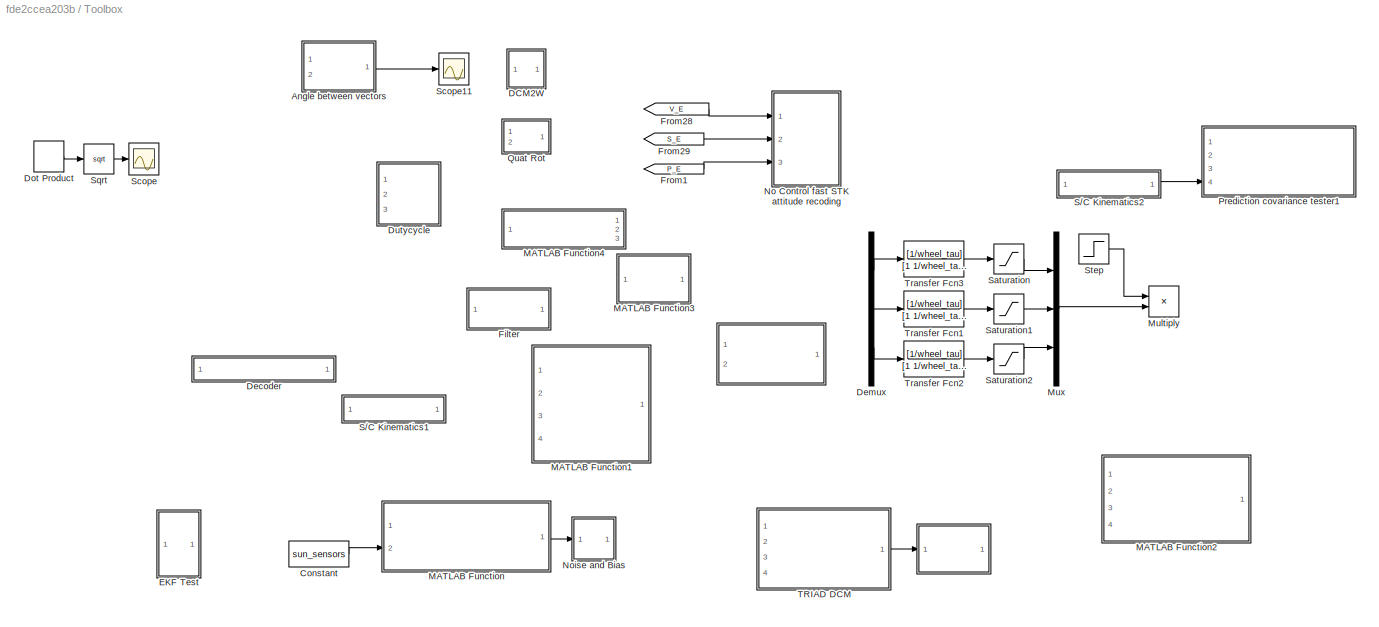
BLOCK [SubSystem] Toolbox
  Commented = on
  Ports = []
  RequestExecContextInheritance = off
BLOCK [SubSystem] Toolbox/ 
  Commented = on
  ErrorFcn = Stateflow.Translate.translate
  PermitHierarchicalResolution = ExplicitOnly
  Ports = [1, 1]
  RequestExecContextInheritance = off
  SFBlockType = MATLAB Function
  TreatAsAtomicUnit = on
BLOCK [SubSystem] Toolbox/    
  Commented = on
  ErrorFcn = Stateflow.Translate.translate
  PermitHierarchicalResolution = ExplicitOnly
  Ports = [2, 1]
  RequestExecContextInheritance = off
  SFBlockType = MATLAB Function
  TreatAsAtomicUnit = on
BLOCK [Demux] Toolbox/    / Demux 
  Outputs = 1
  Ports = [1, 1]
BLOCK [S-Function] Toolbox/    / SFunction 
  EnableBusSupport = off
  FunctionName = sf_sfun
  PortCounts = [2 2]
  Ports = [2, 2]
  SFcnIsStateOwnerBlock = off
  SFunctionDeploymentMode = off
  Tag = Stateflow S-Function ADCS_Outline 57
BLOCK [Terminator] Toolbox/    / Terminator 
BLOCK [Outport] Toolbox/    /q
  IconDisplay = Port number
BLOCK [Inport] Toolbox/    /qa
  IconDisplay = Port number
BLOCK [Inport] Toolbox/    /qb
  IconDisplay = Port number
  Port = 2
BLOCK [Demux] Toolbox/ / Demux 
  Outputs = 1
  Ports = [1, 1]
BLOCK [S-Function] Toolbox/ / SFunction 
  EnableBusSupport = off
  FunctionName = sf_sfun
  PortCounts = [1 2]
  Ports = [1, 2]
  SFcnIsStateOwnerBlock = off
  SFunctionDeploymentMode = off
  Tag = Stateflow S-Function ADCS_Outline 40
BLOCK [Terminator] Toolbox/ / Terminator 
BLOCK [Inport] Toolbox/ /dcm
  IconDisplay = Port number
BLOCK [Outport] Toolbox/ /q
  IconDisplay = Port number
BLOCK [SubSystem] Toolbox/Angle between vectors
  Commented = on
  ErrorFcn = Stateflow.Translate.translate
  PermitHierarchicalResolution = ExplicitOnly
  Ports = [2, 1]
  RequestExecContextInheritance = off
  SFBlockType = MATLAB Function
  TreatAsAtomicUnit = on
BLOCK [Demux] Toolbox/Angle between vectors/ Demux 
  Outputs = 1
  Ports = [1, 1]
BLOCK [S-Function] Toolbox/Angle between vectors/ SFunction 
  EnableBusSupport = off
  FunctionName = sf_sfun
  PortCounts = [2 2]
  Ports = [2, 2]
  SFcnIsStateOwnerBlock = off
  SFunctionDeploymentMode = off
  Tag = Stateflow S-Function ADCS_Outline 20
BLOCK [Terminator] Toolbox/Angle between vectors/ Terminator 
BLOCK [Inport] Toolbox/Angle between vectors/u
  IconDisplay = Port number
BLOCK [Inport] Toolbox/Angle between vectors/v
  IconDisplay = Port number
  Port = 2
BLOCK [Outport] Toolbox/Angle between vectors/y
  IconDisplay = Port number
BLOCK [Constant] Toolbox/Constant
  Commented = on
  Value = sun_sensors
BLOCK [SubSystem] Toolbox/DCM2W
  Commented = on
  Ports = [1, 1]
  RequestExecContextInheritance = off
BLOCK [SubSystem] Toolbox/DCM2W/Anti-Skewed
  Ports = [1, 1]
  RequestExecContextInheritance = off
BLOCK [Sum] Toolbox/DCM2W/Anti-Skewed/Add
  InputSameDT = off
  OutDataTypeStr = Inherit: Inherit via internal rule
  Ports = [2, 1]
  SaturateOnIntegerOverflow = off
BLOCK [Constant] Toolbox/DCM2W/Anti-Skewed/Constant
  Value = zeros(3,3)
BLOCK [SubSystem] Toolbox/DCM2W/Anti-Skewed/MATLAB Function
  ErrorFcn = Stateflow.Translate.translate
  PermitHierarchicalResolution = ExplicitOnly
  Ports = [1, 1]
  RequestExecContextInheritance = off
  SFBlockType = MATLAB Function
  TreatAsAtomicUnit = on
BLOCK [Demux] Toolbox/DCM2W/Anti-Skewed/MATLAB Function/ Demux 
  Outputs = 1
  Ports = [1, 1]
BLOCK [S-Function] Toolbox/DCM2W/Anti-Skewed/MATLAB Function/ SFunction 
  EnableBusSupport = off
  FunctionName = sf_sfun
  PortCounts = [1 2]
  Ports = [1, 2]
  SFcnIsStateOwnerBlock = off
  SFunctionDeploymentMode = off
  Tag = Stateflow S-Function ADCS_Outline 26
BLOCK [Terminator] Toolbox/DCM2W/Anti-Skewed/MATLAB Function/ Terminator 
BLOCK [Inport] Toolbox/DCM2W/Anti-Skewed/MATLAB Function/u
  IconDisplay = Port number
BLOCK [Outport] Toolbox/DCM2W/Anti-Skewed/MATLAB Function/y
  IconDisplay = Port number
BLOCK [Inport] Toolbox/DCM2W/Anti-Skewed/m
  IconDisplay = Port number
BLOCK [Outport] Toolbox/DCM2W/Anti-Skewed/v
  IconDisplay = Port number
BLOCK [Inport] Toolbox/DCM2W/DCM
  IconDisplay = Port number
BLOCK [SubSystem] Toolbox/DCM2W/Filtered Derivative
  Ports = [1, 1]
  RequestExecContextInheritance = off
BLOCK [Sum] Toolbox/DCM2W/Filtered Derivative/Add
  InputSameDT = off
  Inputs = -+
  OutDataTypeStr = Inherit: Inherit via internal rule
  Ports = [2, 1]
  SaturateOnIntegerOverflow = off
BLOCK [Gain] Toolbox/DCM2W/Filtered Derivative/Gain
  Gain = 5
  OutDataTypeStr = Inherit: Inherit via internal rule
  ParamDataTypeStr = Inherit: Inherit via internal rule
  SaturateOnIntegerOverflow = off
BLOCK [Integrator] Toolbox/DCM2W/Filtered Derivative/Integrator
  Ports = [1, 1]
BLOCK [Outport] Toolbox/DCM2W/Filtered Derivative/dx
  IconDisplay = Port number
BLOCK [Inport] Toolbox/DCM2W/Filtered Derivative/x
  IconDisplay = Port number
BLOCK [Gain] Toolbox/DCM2W/Gain1
  Gain = -1
  OutDataTypeStr = Inherit: Inherit via internal rule
  ParamDataTypeStr = Inherit: Inherit via internal rule
  SaturateOnIntegerOverflow = off
BLOCK [Product] Toolbox/DCM2W/Matrix Multiply1
  InputSameDT = off
  Multiplication = Matrix(*)
  OutDataTypeStr = Inherit: Inherit via internal rule
  Ports = [2, 1]
  RndMeth = Floor
  SaturateOnIntegerOverflow = off
BLOCK [SignalSpecification] Toolbox/DCM2W/Signal Specification
  Dimensions = 3
BLOCK [Math] Toolbox/DCM2W/Transpose1
  Operator = transpose
  Ports = [1, 1]
BLOCK [Outport] Toolbox/DCM2W/W
  IconDisplay = Port number
BLOCK [SubSystem] Toolbox/Decoder
  Commented = on
  Ports = [1, 1]
  RequestExecContextInheritance = off
BLOCK [Outport] Toolbox/Decoder/C(Sx,Sy,Sz)
  IconDisplay = Port number
BLOCK [Inport] Toolbox/Decoder/C(sensors readings)
  IconDisplay = Port number
BLOCK [Constant] Toolbox/Decoder/Constant
  Value = sun_sensors
BLOCK [Reference] Toolbox/Decoder/LU Solver  REF=dspsolvers/LU Solver
  Ports = [2, 1]
  SourceBlock = dspsolvers/LU Solver
  SourceProductBaseCode = DS
  SourceProductName = DSP System Toolbox
  SourceType = LU Solver
BLOCK [SubSystem] Toolbox/Decoder/MATLAB Function1
  ErrorFcn = Stateflow.Translate.translate
  PermitHierarchicalResolution = ExplicitOnly
  Ports = [2, 2]
  RequestExecContextInheritance = off
  SFBlockType = MATLAB Function
  TreatAsAtomicUnit = on
BLOCK [Demux] Toolbox/Decoder/MATLAB Function1/ Demux 
  Outputs = 1
  Ports = [1, 1]
BLOCK [S-Function] Toolbox/Decoder/MATLAB Function1/ SFunction 
  EnableBusSupport = off
  FunctionName = sf_sfun
  PortCounts = [2 3]
  Ports = [2, 3]
  SFcnIsStateOwnerBlock = off
  SFunctionDeploymentMode = off
  Tag = Stateflow S-Function ADCS_Outline 30
BLOCK [Terminator] Toolbox/Decoder/MATLAB Function1/ Terminator 
BLOCK [Outport] Toolbox/Decoder/MATLAB Function1/A
  IconDisplay = Port number
BLOCK [Outport] Toolbox/Decoder/MATLAB Function1/B
  IconDisplay = Port number
  Port = 2
BLOCK [Inport] Toolbox/Decoder/MATLAB Function1/readings
  IconDisplay = Port number
BLOCK [Inport] Toolbox/Decoder/MATLAB Function1/vectors
  IconDisplay = Port number
  Port = 2
BLOCK [Demux] Toolbox/Demux
  Commented = on
  DisplayOption = bar
  Outputs = 3
  Ports = [1, 3]
BLOCK [DotProduct] Toolbox/Dot Product
  Commented = on
  OutDataTypeStr = Inherit: Inherit via internal rule
BLOCK [SubSystem] Toolbox/Dutycycle
  Commented = on
  Ports = [3]
  RequestExecContextInheritance = off
BLOCK [Abs] Toolbox/Dutycycle/Abs
  SaturateOnIntegerOverflow = off
BLOCK [Abs] Toolbox/Dutycycle/Abs1
  SaturateOnIntegerOverflow = off
BLOCK [Abs] Toolbox/Dutycycle/Abs2
  SaturateOnIntegerOverflow = off
BLOCK [Clock] Toolbox/Dutycycle/Clock1
BLOCK [Constant] Toolbox/Dutycycle/Constant1
  Value = 0.23e-3/100
BLOCK [Constant] Toolbox/Dutycycle/Constant3
  Value = [0.24;0.24;0.13]/100
BLOCK [Constant] Toolbox/Dutycycle/Constant5
  Value = 1.77e-3/100
BLOCK [Display] Toolbox/Dutycycle/Display
  Decimation = 1
  Ports = [1]
BLOCK [Display] Toolbox/Dutycycle/Display1
  Decimation = 1
  Ports = [1]
BLOCK [Display] Toolbox/Dutycycle/Display2
  Decimation = 1
  Ports = [1]
BLOCK [From] Toolbox/Dutycycle/From28
  Commented = on
  GotoTag = Mode
BLOCK [Integrator] Toolbox/Dutycycle/Integrator1
  Ports = [1, 1]
BLOCK [Integrator] Toolbox/Dutycycle/Integrator2
  Ports = [1, 1]
BLOCK [Integrator] Toolbox/Dutycycle/Integrator3
  Ports = [1, 1]
BLOCK [Inport] Toolbox/Dutycycle/Magnetorquers
  IconDisplay = Port number
BLOCK [Product] Toolbox/Dutycycle/Multiply
  InputSameDT = off
  Inputs = */
  OutDataTypeStr = Inherit: Inherit via internal rule
  Ports = [2, 1]
  RndMeth = Floor
  SaturateOnIntegerOverflow = off
BLOCK [Product] Toolbox/Dutycycle/Multiply1
  InputSameDT = off
  Inputs = */
  OutDataTypeStr = Inherit: Inherit via internal rule
  Ports = [2, 1]
  RndMeth = Floor
  SaturateOnIntegerOverflow = off
BLOCK [Product] Toolbox/Dutycycle/Multiply2
  InputSameDT = off
  Inputs = */
  OutDataTypeStr = Inherit: Inherit via internal rule
  Ports = [2, 1]
  RndMeth = Floor
  SaturateOnIntegerOverflow = off
BLOCK [Product] Toolbox/Dutycycle/Multiply3
  InputSameDT = off
  Inputs = */
  OutDataTypeStr = Inherit: Inherit via internal rule
  Ports = [2, 1]
  RndMeth = Floor
  SaturateOnIntegerOverflow = off
BLOCK [Product] Toolbox/Dutycycle/Multiply4
  InputSameDT = off
  Inputs = */
  OutDataTypeStr = Inherit: Inherit via internal rule
  Ports = [2, 1]
  RndMeth = Floor
  SaturateOnIntegerOverflow = off
BLOCK [Product] Toolbox/Dutycycle/Multiply5
  InputSameDT = off
  Inputs = */
  OutDataTypeStr = Inherit: Inherit via internal rule
  Ports = [2, 1]
  RndMeth = Floor
  SaturateOnIntegerOverflow = off
BLOCK [Mux] Toolbox/Dutycycle/Mux
  Commented = on
  DisplayOption = bar
  Inputs = 5
  Ports = [5, 1]
BLOCK [ToWorkspace] Toolbox/Dutycycle/To Workspace
  Commented = on
  FixptAsFi = on
  MaxDataPoints = inf
  Ports = [1]
  SampleTime = -1
  VariableName = Dutycycle
BLOCK [Inport] Toolbox/Dutycycle/Wheel L
  IconDisplay = Port number
  Port = 2
BLOCK [Inport] Toolbox/Dutycycle/wheel T
  IconDisplay = Port number
  Port = 3
BLOCK [SubSystem] Toolbox/EKF Test
  Commented = on
  Ports = []
  RequestExecContextInheritance = off
BLOCK [Reference] Toolbox/EKF Test/ LU Inverse  REF=dspinverses/ LU Inverse
  Commented = on
  Ports = [1, 1]
  SourceBlock = dspinverses/ LU Inverse
  SourceProductBaseCode = DS
  SourceProductName = DSP System Toolbox
  SourceType = LU Inverse
BLOCK [Sum] Toolbox/EKF Test/Add
  Commented = on
  InputSameDT = off
  Inputs = +-
  OutDataTypeStr = Inherit: Inherit via internal rule
  Ports = [2, 1]
  SaturateOnIntegerOverflow = off
BLOCK [Sum] Toolbox/EKF Test/Add1
  Commented = on
  InputSameDT = off
  OutDataTypeStr = Inherit: Inherit via internal rule
  Ports = [2, 1]
  SaturateOnIntegerOverflow = off
BLOCK [Sum] Toolbox/EKF Test/Add2
  Commented = on
  InputSameDT = off
  Inputs = +-
  OutDataTypeStr = Inherit: Inherit via internal rule
  Ports = [2, 1]
  SaturateOnIntegerOverflow = off
BLOCK [Sum] Toolbox/EKF Test/Add3
  Commented = on
  InputSameDT = off
  OutDataTypeStr = Inherit: Inherit via internal rule
  Ports = [2, 1]
  SaturateOnIntegerOverflow = off
BLOCK [Sum] Toolbox/EKF Test/Add4
  Commented = on
  InputSameDT = off
  OutDataTypeStr = Inherit: Inherit via internal rule
  Ports = [2, 1]
  SaturateOnIntegerOverflow = off
BLOCK [Constant] Toolbox/EKF Test/Constant
  Commented = on
  Value = eye(4)
BLOCK [Delay] Toolbox/EKF Test/Delay One Step
  Commented = on
  DelayLength = 1
  InputPortMap = u0
  Ports = [1, 1]
BLOCK [Delay] Toolbox/EKF Test/Delay One Step1
  Commented = on
  DelayLength = 1
  InputPortMap = u0
  Ports = [1, 1]
BLOCK [Delay] Toolbox/EKF Test/Delay One Step2
  Commented = on
  DelayLength = 1
  InputPortMap = u0
  Ports = [1, 1]
BLOCK [Delay] Toolbox/EKF Test/Delay One Step3
  Commented = on
  DelayLength = 1
  InputPortMap = u0
  Ports = [1, 1]
BLOCK [Delay] Toolbox/EKF Test/Delay One Step4
  Commented = on
  DelayLength = 1
  InputPortMap = u0
  Ports = [1, 1]
BLOCK [Delay] Toolbox/EKF Test/Delay One Step5
  Commented = on
  DelayLength = 1
  InputPortMap = u0
  Ports = [1, 1]
BLOCK [InitialCondition] Toolbox/EKF Test/IC
  Commented = on
  Value = [0;0;0;1]
BLOCK [InitialCondition] Toolbox/EKF Test/IC1
  Commented = on
  Value = eye(4)
BLOCK [SubSystem] Toolbox/EKF Test/MATLAB Function
  Commented = on
  ErrorFcn = Stateflow.Translate.translate
  PermitHierarchicalResolution = ExplicitOnly
  Ports = [3, 1]
  RequestExecContextInheritance = off
  SFBlockType = MATLAB Function
  TreatAsAtomicUnit = on
BLOCK [Demux] Toolbox/EKF Test/MATLAB Function/ Demux 
  Outputs = 1
  Ports = [1, 1]
BLOCK [S-Function] Toolbox/EKF Test/MATLAB Function/ SFunction 
  EnableBusSupport = off
  FunctionName = sf_sfun
  PortCounts = [3 2]
  Ports = [3, 2]
  SFcnIsStateOwnerBlock = off
  SFunctionDeploymentMode = off
  Tag = Stateflow S-Function ADCS_Outline 42
BLOCK [Terminator] Toolbox/EKF Test/MATLAB Function/ Terminator 
BLOCK [Inport] Toolbox/EKF Test/MATLAB Function/Be
  IconDisplay = Port number
  Port = 3
BLOCK [Outport] Toolbox/EKF Test/MATLAB Function/H
  IconDisplay = Port number
BLOCK [Inport] Toolbox/EKF Test/MATLAB Function/Se
  IconDisplay = Port number
  Port = 2
BLOCK [Inport] Toolbox/EKF Test/MATLAB Function/q
  IconDisplay = Port number
BLOCK [Product] Toolbox/EKF Test/Matrix Multiply
  Commented = on
  InputSameDT = off
  Multiplication = Matrix(*)
  OutDataTypeStr = Inherit: Inherit via internal rule
  Ports = [2, 1]
  RndMeth = Floor
  SaturateOnIntegerOverflow = off
BLOCK [Product] Toolbox/EKF Test/Matrix Multiply1
  Commented = on
  InputSameDT = off
  Multiplication = Matrix(*)
  OutDataTypeStr = Inherit: Inherit via internal rule
  Ports = [2, 1]
  RndMeth = Floor
  SaturateOnIntegerOverflow = off
BLOCK [Product] Toolbox/EKF Test/Matrix Multiply2
  Commented = on
  InputSameDT = off
  Multiplication = Matrix(*)
  OutDataTypeStr = Inherit: Inherit via internal rule
  Ports = [2, 1]
  RndMeth = Floor
  SaturateOnIntegerOverflow = off
BLOCK [Product] Toolbox/EKF Test/Matrix Multiply3
  Commented = on
  InputSameDT = off
  Multiplication = Matrix(*)
  OutDataTypeStr = Inherit: Inherit via internal rule
  Ports = [2, 1]
  RndMeth = Floor
  SaturateOnIntegerOverflow = off
BLOCK [Product] Toolbox/EKF Test/Matrix Multiply4
  Commented = on
  InputSameDT = off
  Multiplication = Matrix(*)
  OutDataTypeStr = Inherit: Inherit via internal rule
  Ports = [2, 1]
  RndMeth = Floor
  SaturateOnIntegerOverflow = off
BLOCK [Product] Toolbox/EKF Test/Matrix Multiply5
  Commented = on
  InputSameDT = off
  Multiplication = Matrix(*)
  OutDataTypeStr = Inherit: Inherit via internal rule
  Ports = [2, 1]
  RndMeth = Floor
  SaturateOnIntegerOverflow = off
BLOCK [Product] Toolbox/EKF Test/Matrix Multiply6
  Commented = on
  InputSameDT = off
  Multiplication = Matrix(*)
  OutDataTypeStr = Inherit: Inherit via internal rule
  Ports = [2, 1]
  RndMeth = Floor
  SaturateOnIntegerOverflow = off
BLOCK [Mux] Toolbox/EKF Test/Mux
  Commented = on
  DisplayOption = bar
  Inputs = 2
  Ports = [2, 1]
BLOCK [Mux] Toolbox/EKF Test/Mux1
  Commented = on
  DisplayOption = bar
  Inputs = 2
  Ports = [2, 1]
BLOCK [Constant] Toolbox/EKF Test/Q
  Commented = on
  Value = eye(4)
BLOCK [SubSystem] Toolbox/EKF Test/Quat Rot
  Commented = on
  Ports = [2, 1]
  RequestExecContextInheritance = off
BLOCK [SubSystem] Toolbox/EKF Test/Quat Rot/    
  ErrorFcn = Stateflow.Translate.translate
  PermitHierarchicalResolution = ExplicitOnly
  Ports = [2, 1]
  RequestExecContextInheritance = off
  SFBlockType = MATLAB Function
  TreatAsAtomicUnit = on
BLOCK [Demux] Toolbox/EKF Test/Quat Rot/    / Demux 
  Outputs = 1
  Ports = [1, 1]
BLOCK [S-Function] Toolbox/EKF Test/Quat Rot/    / SFunction 
  EnableBusSupport = off
  FunctionName = sf_sfun
  PortCounts = [2 2]
  Ports = [2, 2]
  SFcnIsStateOwnerBlock = off
  SFunctionDeploymentMode = off
  Tag = Stateflow S-Function ADCS_Outline 33
BLOCK [Terminator] Toolbox/EKF Test/Quat Rot/    / Terminator 
BLOCK [Outport] Toolbox/EKF Test/Quat Rot/    /q
  IconDisplay = Port number
BLOCK [Inport] Toolbox/EKF Test/Quat Rot/    /qa
  IconDisplay = Port number
BLOCK [Inport] Toolbox/EKF Test/Quat Rot/    /qb
  IconDisplay = Port number
  Port = 2
BLOCK [SubSystem] Toolbox/EKF Test/Quat Rot/    1
  ErrorFcn = Stateflow.Translate.translate
  PermitHierarchicalResolution = ExplicitOnly
  Ports = [2, 1]
  RequestExecContextInheritance = off
  SFBlockType = MATLAB Function
  TreatAsAtomicUnit = on
BLOCK [Demux] Toolbox/EKF Test/Quat Rot/    1/ Demux 
  Outputs = 1
  Ports = [1, 1]
BLOCK [S-Function] Toolbox/EKF Test/Quat Rot/    1/ SFunction 
  EnableBusSupport = off
  FunctionName = sf_sfun
  PortCounts = [2 2]
  Ports = [2, 2]
  SFcnIsStateOwnerBlock = off
  SFunctionDeploymentMode = off
  Tag = Stateflow S-Function ADCS_Outline 35
BLOCK [Terminator] Toolbox/EKF Test/Quat Rot/    1/ Terminator 
BLOCK [Outport] Toolbox/EKF Test/Quat Rot/    1/q
  IconDisplay = Port number
BLOCK [Inport] Toolbox/EKF Test/Quat Rot/    1/qa
  IconDisplay = Port number
BLOCK [Inport] Toolbox/EKF Test/Quat Rot/    1/qb
  IconDisplay = Port number
  Port = 2
BLOCK [Constant] Toolbox/EKF Test/Quat Rot/Constant
  Value = [-1 -1 -1 1]
BLOCK [Demux] Toolbox/EKF Test/Quat Rot/Demux
  DisplayOption = bar
  Ports = [1, 4]
BLOCK [SubSystem] Toolbox/EKF Test/Quat Rot/MATLAB Function
  ErrorFcn = Stateflow.Translate.translate
  PermitHierarchicalResolution = ExplicitOnly
  Ports = [1, 1]
  RequestExecContextInheritance = off
  SFBlockType = MATLAB Function
  TreatAsAtomicUnit = on
BLOCK [Demux] Toolbox/EKF Test/Quat Rot/MATLAB Function/ Demux 
  Outputs = 1
  Ports = [1, 1]
BLOCK [S-Function] Toolbox/EKF Test/Quat Rot/MATLAB Function/ SFunction 
  EnableBusSupport = off
  FunctionName = sf_sfun
  PortCounts = [1 2]
  Ports = [1, 2]
  SFcnIsStateOwnerBlock = off
  SFunctionDeploymentMode = off
  Tag = Stateflow S-Function ADCS_Outline 36
BLOCK [Terminator] Toolbox/EKF Test/Quat Rot/MATLAB Function/ Terminator 
BLOCK [Inport] Toolbox/EKF Test/Quat Rot/MATLAB Function/u
  IconDisplay = Port number
BLOCK [Outport] Toolbox/EKF Test/Quat Rot/MATLAB Function/y
  IconDisplay = Port number
BLOCK [Product] Toolbox/EKF Test/Quat Rot/Multiply
  InputSameDT = off
  OutDataTypeStr = Inherit: Inherit via internal rule
  Ports = [2, 1]
  RndMeth = Floor
  SaturateOnIntegerOverflow = off
BLOCK [Mux] Toolbox/EKF Test/Quat Rot/Mux
  DisplayOption = bar
  Inputs = 3
  Ports = [3, 1]
BLOCK [Terminator] Toolbox/EKF Test/Quat Rot/Terminator
BLOCK [Inport] Toolbox/EKF Test/Quat Rot/q
  IconDisplay = Port number
BLOCK [Inport] Toolbox/EKF Test/Quat Rot/vi
  IconDisplay = Port number
  Port = 2
BLOCK [Outport] Toolbox/EKF Test/Quat Rot/vo
  IconDisplay = Port number
BLOCK [SubSystem] Toolbox/EKF Test/Quat Rot1
  Commented = on
  Ports = [2, 1]
  RequestExecContextInheritance = off
BLOCK [SubSystem] Toolbox/EKF Test/Quat Rot1/    
  ErrorFcn = Stateflow.Translate.translate
  PermitHierarchicalResolution = ExplicitOnly
  Ports = [2, 1]
  RequestExecContextInheritance = off
  SFBlockType = MATLAB Function
  TreatAsAtomicUnit = on
BLOCK [Demux] Toolbox/EKF Test/Quat Rot1/    / Demux 
  Outputs = 1
  Ports = [1, 1]
BLOCK [S-Function] Toolbox/EKF Test/Quat Rot1/    / SFunction 
  EnableBusSupport = off
  FunctionName = sf_sfun
  PortCounts = [2 2]
  Ports = [2, 2]
  SFcnIsStateOwnerBlock = off
  SFunctionDeploymentMode = off
  Tag = Stateflow S-Function ADCS_Outline 37
BLOCK [Terminator] Toolbox/EKF Test/Quat Rot1/    / Terminator 
BLOCK [Outport] Toolbox/EKF Test/Quat Rot1/    /q
  IconDisplay = Port number
BLOCK [Inport] Toolbox/EKF Test/Quat Rot1/    /qa
  IconDisplay = Port number
BLOCK [Inport] Toolbox/EKF Test/Quat Rot1/    /qb
  IconDisplay = Port number
  Port = 2
BLOCK [SubSystem] Toolbox/EKF Test/Quat Rot1/    1
  ErrorFcn = Stateflow.Translate.translate
  PermitHierarchicalResolution = ExplicitOnly
  Ports = [2, 1]
  RequestExecContextInheritance = off
  SFBlockType = MATLAB Function
  TreatAsAtomicUnit = on
BLOCK [Demux] Toolbox/EKF Test/Quat Rot1/    1/ Demux 
  Outputs = 1
  Ports = [1, 1]
BLOCK [S-Function] Toolbox/EKF Test/Quat Rot1/    1/ SFunction 
  EnableBusSupport = off
  FunctionName = sf_sfun
  PortCounts = [2 2]
  Ports = [2, 2]
  SFcnIsStateOwnerBlock = off
  SFunctionDeploymentMode = off
  Tag = Stateflow S-Function ADCS_Outline 38
BLOCK [Terminator] Toolbox/EKF Test/Quat Rot1/    1/ Terminator 
BLOCK [Outport] Toolbox/EKF Test/Quat Rot1/    1/q
  IconDisplay = Port number
BLOCK [Inport] Toolbox/EKF Test/Quat Rot1/    1/qa
  IconDisplay = Port number
BLOCK [Inport] Toolbox/EKF Test/Quat Rot1/    1/qb
  IconDisplay = Port number
  Port = 2
BLOCK [Constant] Toolbox/EKF Test/Quat Rot1/Constant
  Value = [-1 -1 -1 1]
BLOCK [Demux] Toolbox/EKF Test/Quat Rot1/Demux
  DisplayOption = bar
  Ports = [1, 4]
BLOCK [SubSystem] Toolbox/EKF Test/Quat Rot1/MATLAB Function
  ErrorFcn = Stateflow.Translate.translate
  PermitHierarchicalResolution = ExplicitOnly
  Ports = [1, 1]
  RequestExecContextInheritance = off
  SFBlockType = MATLAB Function
  TreatAsAtomicUnit = on
BLOCK [Demux] Toolbox/EKF Test/Quat Rot1/MATLAB Function/ Demux 
  Outputs = 1
  Ports = [1, 1]
BLOCK [S-Function] Toolbox/EKF Test/Quat Rot1/MATLAB Function/ SFunction 
  EnableBusSupport = off
  FunctionName = sf_sfun
  PortCounts = [1 2]
  Ports = [1, 2]
  SFcnIsStateOwnerBlock = off
  SFunctionDeploymentMode = off
  Tag = Stateflow S-Function ADCS_Outline 39
BLOCK [Terminator] Toolbox/EKF Test/Quat Rot1/MATLAB Function/ Terminator 
BLOCK [Inport] Toolbox/EKF Test/Quat Rot1/MATLAB Function/u
  IconDisplay = Port number
BLOCK [Outport] Toolbox/EKF Test/Quat Rot1/MATLAB Function/y
  IconDisplay = Port number
BLOCK [Product] Toolbox/EKF Test/Quat Rot1/Multiply
  InputSameDT = off
  OutDataTypeStr = Inherit: Inherit via internal rule
  Ports = [2, 1]
  RndMeth = Floor
  SaturateOnIntegerOverflow = off
BLOCK [Mux] Toolbox/EKF Test/Quat Rot1/Mux
  DisplayOption = bar
  Inputs = 3
  Ports = [3, 1]
BLOCK [Terminator] Toolbox/EKF Test/Quat Rot1/Terminator
BLOCK [Inport] Toolbox/EKF Test/Quat Rot1/q
  IconDisplay = Port number
BLOCK [Inport] Toolbox/EKF Test/Quat Rot1/vi
  IconDisplay = Port number
  Port = 2
BLOCK [Outport] Toolbox/EKF Test/Quat Rot1/vo
  IconDisplay = Port number
BLOCK [Constant] Toolbox/EKF Test/R
  Commented = on
  Value = eye(6)
BLOCK [SubSystem] Toolbox/EKF Test/S//C Kinematics
  Commented = on
  Ports = [2, 1]
  RequestExecContextInheritance = off
BLOCK [Inport] Toolbox/EKF Test/S//C Kinematics/(wx,wy,wz)
  IconDisplay = Port number
BLOCK [Sum] Toolbox/EKF Test/S//C Kinematics/Add
  InputSameDT = off
  OutDataTypeStr = Inherit: Inherit via internal rule
  Ports = [2, 1]
  SaturateOnIntegerOverflow = off
BLOCK [Gain] Toolbox/EKF Test/S//C Kinematics/Gain
  Gain = 0.5
  OutDataTypeStr = Inherit: Inherit via internal rule
  ParamDataTypeStr = Inherit: Inherit via internal rule
  SaturateOnIntegerOverflow = off
BLOCK [Gain] Toolbox/EKF Test/S//C Kinematics/Gain1
  Gain = controller_sample_rate
  OutDataTypeStr = Inherit: Inherit via internal rule
  ParamDataTypeStr = Inherit: Inherit via internal rule
  SaturateOnIntegerOverflow = off
BLOCK [Product] Toolbox/EKF Test/S//C Kinematics/Matrix Multiply
  InputSameDT = off
  Multiplication = Matrix(*)
  OutDataTypeStr = Inherit: Inherit via internal rule
  Ports = [2, 1]
  RndMeth = Floor
  SaturateOnIntegerOverflow = off
BLOCK [SubSystem] Toolbox/EKF Test/S//C Kinematics/Skewed
  Ports = [1, 1]
  RequestExecContextInheritance = off
BLOCK [SubSystem] Toolbox/EKF Test/S//C Kinematics/Skewed/MATLAB Function
  ErrorFcn = Stateflow.Translate.translate
  PermitHierarchicalResolution = ExplicitOnly
  Ports = [1, 1]
  RequestExecContextInheritance = off
  SFBlockType = MATLAB Function
  TreatAsAtomicUnit = on
BLOCK [Demux] Toolbox/EKF Test/S//C Kinematics/Skewed/MATLAB Function/ Demux 
  Outputs = 1
  Ports = [1, 1]
BLOCK [S-Function] Toolbox/EKF Test/S//C Kinematics/Skewed/MATLAB Function/ SFunction 
  EnableBusSupport = off
  FunctionName = sf_sfun
  PortCounts = [1 2]
  Ports = [1, 2]
  SFcnIsStateOwnerBlock = off
  SFunctionDeploymentMode = off
  Tag = Stateflow S-Function ADCS_Outline 31
BLOCK [Terminator] Toolbox/EKF Test/S//C Kinematics/Skewed/MATLAB Function/ Terminator 
BLOCK [Inport] Toolbox/EKF Test/S//C Kinematics/Skewed/MATLAB Function/u
  IconDisplay = Port number
BLOCK [Outport] Toolbox/EKF Test/S//C Kinematics/Skewed/MATLAB Function/y
  IconDisplay = Port number
BLOCK [Outport] Toolbox/EKF Test/S//C Kinematics/Skewed/m
  IconDisplay = Port number
BLOCK [Inport] Toolbox/EKF Test/S//C Kinematics/Skewed/v
  IconDisplay = Port number
BLOCK [Outport] Toolbox/EKF Test/S//C Kinematics/q_BT
  IconDisplay = Port number
BLOCK [Inport] Toolbox/EKF Test/S//C Kinematics/xhat
  IconDisplay = Port number
  Port = 2
BLOCK [SubSystem] Toolbox/EKF Test/SC Dynamics
  Commented = on
  Ports = [3, 2]
  RequestExecContextInheritance = off
BLOCK [Inport] Toolbox/EKF Test/SC Dynamics/(Lwx,Lwy,Lwz)i
  IconDisplay = Port number
  Port = 2
BLOCK [Outport] Toolbox/EKF Test/SC Dynamics/(wx,wy,wz)
  IconDisplay = Port number
BLOCK [Inport] Toolbox/EKF Test/SC Dynamics/(wx,wy,wz)i
  IconDisplay = Port number
  Port = 3
BLOCK [Sum] Toolbox/EKF Test/SC Dynamics/Add
  InputSameDT = off
  Inputs = --
  OutDataTypeStr = Inherit: Inherit via internal rule
  Ports = [2, 1]
  SaturateOnIntegerOverflow = off
BLOCK [Sum] Toolbox/EKF Test/SC Dynamics/Add1
  InputSameDT = off
  OutDataTypeStr = Inherit: Inherit via internal rule
  Ports = [2, 1]
  SaturateOnIntegerOverflow = off
BLOCK [Sum] Toolbox/EKF Test/SC Dynamics/Add3
  InputSameDT = off
  OutDataTypeStr = Inherit: Inherit via internal rule
  Ports = [2, 1]
  SaturateOnIntegerOverflow = off
BLOCK [Sum] Toolbox/EKF Test/SC Dynamics/Add4
  InputSameDT = off
  OutDataTypeStr = Inherit: Inherit via internal rule
  Ports = [2, 1]
  SaturateOnIntegerOverflow = off
BLOCK [Outport] Toolbox/EKF Test/SC Dynamics/C(Ltx,Lty,Ltz)
  IconDisplay = Port number
  Port = 2
BLOCK [Inport] Toolbox/EKF Test/SC Dynamics/C(Twx,Twy,Twz)i
  IconDisplay = Port number
BLOCK [Reference] Toolbox/EKF Test/SC Dynamics/Cross Product  REF=vrlib/Utilities/Cross Product
  Ports = [2, 1]
  SourceBlock = vrlib/Utilities/Cross Product
  SourceProductBaseCode = VR
  SourceProductName = Simulink 3D Animation
  SourceType = Cross Product
BLOCK [Delay] Toolbox/EKF Test/SC Dynamics/Delay One Step
  DelayLength = 1
  InputPortMap = u0
  Ports = [1, 1]
BLOCK [Gain] Toolbox/EKF Test/SC Dynamics/Gain
  Gain = controller_sample_rate
  OutDataTypeStr = Inherit: Inherit via internal rule
  ParamDataTypeStr = Inherit: Inherit via internal rule
  SaturateOnIntegerOverflow = off
BLOCK [Gain] Toolbox/EKF Test/SC Dynamics/Gain1
  Gain = controller_sample_rate
  OutDataTypeStr = Inherit: Inherit via internal rule
  ParamDataTypeStr = Inherit: Inherit via internal rule
  SaturateOnIntegerOverflow = off
BLOCK [Constant] Toolbox/EKF Test/SC Dynamics/Inertia matrix I
  Value = C_I
BLOCK [Constant] Toolbox/EKF Test/SC Dynamics/Inverse of I
  Value = inv(C_I)
BLOCK [Product] Toolbox/EKF Test/SC Dynamics/Matrix Multiply
  InputSameDT = off
  Multiplication = Matrix(*)
  OutDataTypeStr = Inherit: Inherit via internal rule
  Ports = [2, 1]
  RndMeth = Floor
  SaturateOnIntegerOverflow = off
BLOCK [Product] Toolbox/EKF Test/SC Dynamics/Matrix Multiply1
  InputSameDT = off
  Multiplication = Matrix(*)
  OutDataTypeStr = Inherit: Inherit via internal rule
  Ports = [2, 1]
  RndMeth = Floor
  SaturateOnIntegerOverflow = off
BLOCK [Math] Toolbox/EKF Test/Transpose
  Commented = on
  Operator = transpose
  Ports = [1, 1]
BLOCK [SubSystem] Toolbox/Filter
  Commented = on
  Ports = [1, 1]
  RequestExecContextInheritance = off
BLOCK [Gain] Toolbox/Filter/1//tau
  Gain = 0.1
  OutDataTypeStr = Inherit: Inherit via internal rule
  ParamDataTypeStr = Inherit: Inherit via internal rule
  SaturateOnIntegerOverflow = off
BLOCK [Sum] Toolbox/Filter/Add
  InputSameDT = off
  Inputs = -+
  OutDataTypeStr = Inherit: Inherit via internal rule
  Ports = [2, 1]
  SaturateOnIntegerOverflow = off
BLOCK [DiscreteIntegrator] Toolbox/Filter/Discrete-Time Integrator
  ICPrevOutput = DiscIntNeverNeededParam
  ICPrevScaledInput = DiscIntNeverNeededParam
  InitialConditionSetting = Auto
  Ports = [1, 1]
  SampleTime = -1
BLOCK [Outport] Toolbox/Filter/Filtered
  IconDisplay = Port number
BLOCK [Inport] Toolbox/Filter/Noisy
  IconDisplay = Port number
BLOCK [From] Toolbox/From1
  Commented = on
  GotoTag = P_E
BLOCK [From] Toolbox/From28
  Commented = on
  GotoTag = V_E
BLOCK [From] Toolbox/From29
  Commented = on
  GotoTag = S_E
BLOCK [SubSystem] Toolbox/MATLAB Function
  Commented = on
  ErrorFcn = Stateflow.Translate.translate
  PermitHierarchicalResolution = ExplicitOnly
  Ports = [2, 1]
  RequestExecContextInheritance = off
  SFBlockType = MATLAB Function
  TreatAsAtomicUnit = on
BLOCK [Demux] Toolbox/MATLAB Function/ Demux 
  Outputs = 1
  Ports = [1, 1]
BLOCK [S-Function] Toolbox/MATLAB Function/ SFunction 
  EnableBusSupport = off
  FunctionName = sf_sfun
  PortCounts = [2 2]
  Ports = [2, 2]
  SFcnIsStateOwnerBlock = off
  SFunctionDeploymentMode = off
  Tag = Stateflow S-Function ADCS_Outline 29
BLOCK [Terminator] Toolbox/MATLAB Function/ Terminator 
BLOCK [Inport] Toolbox/MATLAB Function/S
  IconDisplay = Port number
BLOCK [Outport] Toolbox/MATLAB Function/readings
  IconDisplay = Port number
BLOCK [Inport] Toolbox/MATLAB Function/vectors
  IconDisplay = Port number
  Port = 2
BLOCK [SubSystem] Toolbox/MATLAB Function1
  Commented = on
  ErrorFcn = Stateflow.Translate.translate
  PermitHierarchicalResolution = ExplicitOnly
  Ports = [4, 1]
  RequestExecContextInheritance = off
  SFBlockType = MATLAB Function
  TreatAsAtomicUnit = on
BLOCK [Demux] Toolbox/MATLAB Function1/ Demux 
  Outputs = 1
  Ports = [1, 1]
BLOCK [S-Function] Toolbox/MATLAB Function1/ SFunction 
  EnableBusSupport = off
  FunctionName = sf_sfun
  PortCounts = [4 2]
  Ports = [4, 2]
  SFcnIsStateOwnerBlock = off
  SFunctionDeploymentMode = off
  Tag = Stateflow S-Function ADCS_Outline 53
BLOCK [Terminator] Toolbox/MATLAB Function1/ Terminator 
BLOCK [Inport] Toolbox/MATLAB Function1/CONVERSION
  IconDisplay = Port number
BLOCK [Inport] Toolbox/MATLAB Function1/INPUT
  IconDisplay = Port number
  Port = 2
BLOCK [Outport] Toolbox/MATLAB Function1/OUTPUT
  IconDisplay = Port number
BLOCK [Inport] Toolbox/MATLAB Function1/ichk
  IconDisplay = Port number
  Port = 4
BLOCK [Inport] Toolbox/MATLAB Function1/tol
  IconDisplay = Port number
  Port = 3
BLOCK [SubSystem] Toolbox/MATLAB Function2
  Commented = on
  ErrorFcn = Stateflow.Translate.translate
  PermitHierarchicalResolution = ExplicitOnly
  Ports = [4, 1]
  RequestExecContextInheritance = off
  SFBlockType = MATLAB Function
  TreatAsAtomicUnit = on
BLOCK [Demux] Toolbox/MATLAB Function2/ Demux 
  Outputs = 1
  Ports = [1, 1]
BLOCK [S-Function] Toolbox/MATLAB Function2/ SFunction 
  EnableBusSupport = off
  FunctionName = sf_sfun
  PortCounts = [4 2]
  Ports = [4, 2]
  SFcnIsStateOwnerBlock = off
  SFunctionDeploymentMode = off
  Tag = Stateflow S-Function ADCS_Outline 61
BLOCK [Terminator] Toolbox/MATLAB Function2/ Terminator 
BLOCK [Outport] Toolbox/MATLAB Function2/DCM_AB
  IconDisplay = Port number
BLOCK [Inport] Toolbox/MATLAB Function2/va1
  IconDisplay = Port number
BLOCK [Inport] Toolbox/MATLAB Function2/va2
  IconDisplay = Port number
  Port = 2
BLOCK [Inport] Toolbox/MATLAB Function2/vb1
  IconDisplay = Port number
  Port = 3
BLOCK [Inport] Toolbox/MATLAB Function2/vb2
  IconDisplay = Port number
  Port = 4
BLOCK [SubSystem] Toolbox/MATLAB Function3
  Commented = on
  ErrorFcn = Stateflow.Translate.translate
  PermitHierarchicalResolution = ExplicitOnly
  Ports = [1, 1]
  RequestExecContextInheritance = off
  SFBlockType = MATLAB Function
  TreatAsAtomicUnit = on
BLOCK [Demux] Toolbox/MATLAB Function3/ Demux 
  Outputs = 1
  Ports = [1, 1]
BLOCK [S-Function] Toolbox/MATLAB Function3/ SFunction 
  EnableBusSupport = off
  FunctionName = sf_sfun
  PortCounts = [1 2]
  Ports = [1, 2]
  SFcnIsStateOwnerBlock = off
  SFunctionDeploymentMode = off
  Tag = Stateflow S-Function ADCS_Outline 63
BLOCK [Terminator] Toolbox/MATLAB Function3/ Terminator 
BLOCK [Outport] Toolbox/MATLAB Function3/YPR
  IconDisplay = Port number
BLOCK [Inport] Toolbox/MATLAB Function3/q
  IconDisplay = Port number
BLOCK [SubSystem] Toolbox/MATLAB Function4
  Commented = on
  ErrorFcn = Stateflow.Translate.translate
  PermitHierarchicalResolution = ExplicitOnly
  Ports = [1, 3]
  RequestExecContextInheritance = off
  SFBlockType = MATLAB Function
  TreatAsAtomicUnit = on
BLOCK [Demux] Toolbox/MATLAB Function4/ Demux 
  Outputs = 1
  Ports = [1, 1]
BLOCK [S-Function] Toolbox/MATLAB Function4/ SFunction 
  EnableBusSupport = off
  FunctionName = sf_sfun
  PortCounts = [1 4]
  Ports = [1, 4]
  SFcnIsStateOwnerBlock = off
  SFunctionDeploymentMode = off
  Tag = Stateflow S-Function ADCS_Outline 67
BLOCK [Terminator] Toolbox/MATLAB Function4/ Terminator 
BLOCK [Inport] Toolbox/MATLAB Function4/DCM
  IconDisplay = Port number
BLOCK [Outport] Toolbox/MATLAB Function4/pitch
  IconDisplay = Port number
  Port = 2
BLOCK [Outport] Toolbox/MATLAB Function4/roll
  IconDisplay = Port number
  Port = 3
BLOCK [Outport] Toolbox/MATLAB Function4/yaw
  IconDisplay = Port number
BLOCK [Product] Toolbox/Multiply
  Commented = on
  InputSameDT = off
  OutDataTypeStr = Inherit: Inherit via internal rule
  Ports = [2, 1]
  RndMeth = Floor
  SaturateOnIntegerOverflow = off
BLOCK [Mux] Toolbox/Mux
  Commented = on
  DisplayOption = bar
  Inputs = 3
  Ports = [3, 1]
BLOCK [SubSystem] Toolbox/No Control fast STK attitude recoding
  Commented = on
  Ports = [3]
  RequestExecContextInheritance = off
BLOCK [SubSystem] Toolbox/No Control fast STK attitude recoding/   DCM EF
  Ports = [2, 1]
  RequestExecContextInheritance = off
BLOCK [Inport] Toolbox/No Control fast STK attitude recoding/   DCM EF/(Pxe,Pye,Pze)
  IconDisplay = Port number
  Port = 2
BLOCK [Inport] Toolbox/No Control fast STK attitude recoding/   DCM EF/(Vxe,Xye,Vze)
  IconDisplay = Port number
BLOCK [Constant] Toolbox/No Control fast STK attitude recoding/   DCM EF/Constant
  Value = [1;0;0]
BLOCK [Constant] Toolbox/No Control fast STK attitude recoding/   DCM EF/Constant1
  Value = [0;0;1]
BLOCK [Reference] Toolbox/No Control fast STK attitude recoding/   DCM EF/Cross Product  REF=vrlib/Utilities/Cross Product
  Ports = [2, 1]
  SourceBlock = vrlib/Utilities/Cross Product
  SourceProductBaseCode = VR
  SourceProductName = Simulink 3D Animation
  SourceType = Cross Product
BLOCK [Reference] Toolbox/No Control fast STK attitude recoding/   DCM EF/Cross Product1  REF=vrlib/Utilities/Cross Product
  Ports = [2, 1]
  SourceBlock = vrlib/Utilities/Cross Product
  SourceProductBaseCode = VR
  SourceProductName = Simulink 3D Animation
  SourceType = Cross Product
BLOCK [Reference] Toolbox/No Control fast STK attitude recoding/   DCM EF/Cross Product2  REF=vrlib/Utilities/Cross Product
  Ports = [2, 1]
  SourceBlock = vrlib/Utilities/Cross Product
  SourceProductBaseCode = VR
  SourceProductName = Simulink 3D Animation
  SourceType = Cross Product
BLOCK [Reference] Toolbox/No Control fast STK attitude recoding/   DCM EF/Cross Product3  REF=vrlib/Utilities/Cross Product
  Ports = [2, 1]
  SourceBlock = vrlib/Utilities/Cross Product
  SourceProductBaseCode = VR
  SourceProductName = Simulink 3D Animation
  SourceType = Cross Product
BLOCK [Outport] Toolbox/No Control fast STK attitude recoding/   DCM EF/DCM EF
  IconDisplay = Port number
BLOCK [Concatenate] Toolbox/No Control fast STK attitude recoding/   DCM EF/Matrix Concatenate
  ConcatenateDimension = 2
  Mode = Multidimensional array
  NumInputs = 3
  Ports = [3, 1]
BLOCK [Concatenate] Toolbox/No Control fast STK attitude recoding/   DCM EF/Matrix Concatenate1
  ConcatenateDimension = 2
  Mode = Multidimensional array
  NumInputs = 3
  Ports = [3, 1]
BLOCK [Product] Toolbox/No Control fast STK attitude recoding/   DCM EF/Matrix Multiply
  InputSameDT = off
  Multiplication = Matrix(*)
  OutDataTypeStr = Inherit: Inherit via internal rule
  Ports = [2, 1]
  RndMeth = Floor
  SaturateOnIntegerOverflow = off
BLOCK [Reference] Toolbox/No Control fast STK attitude recoding/   DCM EF/Normalization  REF=dspmathops/Normalization
  Ports = [1, 1]
  SourceBlock = dspmathops/Normalization
  SourceProductBaseCode = DS
  SourceProductName = DSP System Toolbox
  SourceType = Normalization
BLOCK [Reference] Toolbox/No Control fast STK attitude recoding/   DCM EF/Normalization1  REF=dspmathops/Normalization
  Ports = [1, 1]
  SourceBlock = dspmathops/Normalization
  SourceProductBaseCode = DS
  SourceProductName = DSP System Toolbox
  SourceType = Normalization
BLOCK [Reference] Toolbox/No Control fast STK attitude recoding/   DCM EF/Normalization2  REF=dspmathops/Normalization
  Ports = [1, 1]
  SourceBlock = dspmathops/Normalization
  SourceProductBaseCode = DS
  SourceProductName = DSP System Toolbox
  SourceType = Normalization
BLOCK [Reference] Toolbox/No Control fast STK attitude recoding/   DCM EF/Normalization3  REF=dspmathops/Normalization
  Ports = [1, 1]
  SourceBlock = dspmathops/Normalization
  SourceProductBaseCode = DS
  SourceProductName = DSP System Toolbox
  SourceType = Normalization
BLOCK [Reference] Toolbox/No Control fast STK attitude recoding/   DCM EF/Normalization4  REF=dspmathops/Normalization
  Ports = [1, 1]
  SourceBlock = dspmathops/Normalization
  SourceProductBaseCode = DS
  SourceProductName = DSP System Toolbox
  SourceType = Normalization
BLOCK [Reference] Toolbox/No Control fast STK attitude recoding/   DCM EF/Normalization5  REF=dspmathops/Normalization
  Ports = [1, 1]
  SourceBlock = dspmathops/Normalization
  SourceProductBaseCode = DS
  SourceProductName = DSP System Toolbox
  SourceType = Normalization
BLOCK [SignalSpecification] Toolbox/No Control fast STK attitude recoding/   DCM EF/Signal Specification1
  Dimensions = 3
BLOCK [Math] Toolbox/No Control fast STK attitude recoding/   DCM EF/Transpose
  Operator = transpose
  Ports = [1, 1]
BLOCK [Constant] Toolbox/No Control fast STK attitude recoding/Constant
  Value = ground
BLOCK [Constant] Toolbox/No Control fast STK attitude recoding/Constant2
  Value = argentina
BLOCK [Constant] Toolbox/No Control fast STK attitude recoding/Constant4
  Value = namibia
BLOCK [SubSystem] Toolbox/No Control fast STK attitude recoding/Mode Selector
  ErrorFcn = Stateflow.Translate.translate
  PermitHierarchicalResolution = ExplicitOnly
  Ports = [4, 1]
  RequestExecContextInheritance = off
  SFBlockType = MATLAB Function
  TreatAsAtomicUnit = on
BLOCK [Demux] Toolbox/No Control fast STK attitude recoding/Mode Selector/ Demux 
  Outputs = 1
  Ports = [1, 1]
BLOCK [S-Function] Toolbox/No Control fast STK attitude recoding/Mode Selector/ SFunction 
  EnableBusSupport = off
  FunctionName = sf_sfun
  PortCounts = [4 2]
  Ports = [4, 2]
  SFcnIsStateOwnerBlock = off
  SFunctionDeploymentMode = off
  Tag = Stateflow S-Function ADCS_Outline 13
BLOCK [Terminator] Toolbox/No Control fast STK attitude recoding/Mode Selector/ Terminator 
BLOCK [Inport] Toolbox/No Control fast STK attitude recoding/Mode Selector/A
  IconDisplay = Port number
  Port = 2
BLOCK [Inport] Toolbox/No Control fast STK attitude recoding/Mode Selector/G
  IconDisplay = Port number
  Port = 4
BLOCK [Outport] Toolbox/No Control fast STK attitude recoding/Mode Selector/Mode
  IconDisplay = Port number
BLOCK [Inport] Toolbox/No Control fast STK attitude recoding/Mode Selector/N
  IconDisplay = Port number
  Port = 3
BLOCK [Inport] Toolbox/No Control fast STK attitude recoding/Mode Selector/P
  IconDisplay = Port number
BLOCK [Inport] Toolbox/No Control fast STK attitude recoding/P_E
  IconDisplay = Port number
  Port = 3
BLOCK [SubSystem] Toolbox/No Control fast STK attitude recoding/Perfect DCM1
  Ports = [4, 1]
  RequestExecContextInheritance = off
BLOCK [SubSystem] Toolbox/No Control fast STK attitude recoding/Perfect DCM1/ Imaging Argentina
  Ports = [1, 1]
  RequestExecContextInheritance = off
BLOCK [Constant] Toolbox/No Control fast STK attitude recoding/Perfect DCM1/ Imaging Argentina/Constant
  Value = [0;0;1]
BLOCK [Constant] Toolbox/No Control fast STK attitude recoding/Perfect DCM1/ Imaging Argentina/Constant1
  Value = [0;1;0]
BLOCK [Reference] Toolbox/No Control fast STK attitude recoding/Perfect DCM1/ Imaging Argentina/Cross Product  REF=vrlib/Utilities/Cross Product
  Ports = [2, 1]
  SourceBlock = vrlib/Utilities/Cross Product
  SourceProductBaseCode = VR
  SourceProductName = Simulink 3D Animation
  SourceType = Cross Product
BLOCK [Reference] Toolbox/No Control fast STK attitude recoding/Perfect DCM1/ Imaging Argentina/Cross Product1  REF=vrlib/Utilities/Cross Product
  Ports = [2, 1]
  SourceBlock = vrlib/Utilities/Cross Product
  SourceProductBaseCode = VR
  SourceProductName = Simulink 3D Animation
  SourceType = Cross Product
BLOCK [Reference] Toolbox/No Control fast STK attitude recoding/Perfect DCM1/ Imaging Argentina/Cross Product2  REF=vrlib/Utilities/Cross Product
  Ports = [2, 1]
  SourceBlock = vrlib/Utilities/Cross Product
  SourceProductBaseCode = VR
  SourceProductName = Simulink 3D Animation
  SourceType = Cross Product
BLOCK [Reference] Toolbox/No Control fast STK attitude recoding/Perfect DCM1/ Imaging Argentina/Cross Product3  REF=vrlib/Utilities/Cross Product
  Ports = [2, 1]
  SourceBlock = vrlib/Utilities/Cross Product
  SourceProductBaseCode = VR
  SourceProductName = Simulink 3D Animation
  SourceType = Cross Product
BLOCK [Outport] Toolbox/No Control fast STK attitude recoding/Perfect DCM1/ Imaging Argentina/DCM FN
  IconDisplay = Port number
BLOCK [Concatenate] Toolbox/No Control fast STK attitude recoding/Perfect DCM1/ Imaging Argentina/Matrix Concatenate
  ConcatenateDimension = 2
  Mode = Multidimensional array
  NumInputs = 3
  Ports = [3, 1]
BLOCK [Concatenate] Toolbox/No Control fast STK attitude recoding/Perfect DCM1/ Imaging Argentina/Matrix Concatenate1
  ConcatenateDimension = 2
  Mode = Multidimensional array
  NumInputs = 3
  Ports = [3, 1]
BLOCK [Product] Toolbox/No Control fast STK attitude recoding/Perfect DCM1/ Imaging Argentina/Matrix Multiply
  InputSameDT = off
  Multiplication = Matrix(*)
  OutDataTypeStr = Inherit: Inherit via internal rule
  Ports = [2, 1]
  RndMeth = Floor
  SaturateOnIntegerOverflow = off
BLOCK [Reference] Toolbox/No Control fast STK attitude recoding/Perfect DCM1/ Imaging Argentina/Normalization  REF=dspmathops/Normalization
  Ports = [1, 1]
  SourceBlock = dspmathops/Normalization
  SourceProductBaseCode = DS
  SourceProductName = DSP System Toolbox
  SourceType = Normalization
BLOCK [Reference] Toolbox/No Control fast STK attitude recoding/Perfect DCM1/ Imaging Argentina/Normalization1  REF=dspmathops/Normalization
  Ports = [1, 1]
  SourceBlock = dspmathops/Normalization
  SourceProductBaseCode = DS
  SourceProductName = DSP System Toolbox
  SourceType = Normalization
BLOCK [Reference] Toolbox/No Control fast STK attitude recoding/Perfect DCM1/ Imaging Argentina/Normalization2  REF=dspmathops/Normalization
  Ports = [1, 1]
  SourceBlock = dspmathops/Normalization
  SourceProductBaseCode = DS
  SourceProductName = DSP System Toolbox
  SourceType = Normalization
BLOCK [Reference] Toolbox/No Control fast STK attitude recoding/Perfect DCM1/ Imaging Argentina/Normalization3  REF=dspmathops/Normalization
  Ports = [1, 1]
  SourceBlock = dspmathops/Normalization
  SourceProductBaseCode = DS
  SourceProductName = DSP System Toolbox
  SourceType = Normalization
BLOCK [Reference] Toolbox/No Control fast STK attitude recoding/Perfect DCM1/ Imaging Argentina/Normalization4  REF=dspmathops/Normalization
  Ports = [1, 1]
  SourceBlock = dspmathops/Normalization
  SourceProductBaseCode = DS
  SourceProductName = DSP System Toolbox
  SourceType = Normalization
BLOCK [Reference] Toolbox/No Control fast STK attitude recoding/Perfect DCM1/ Imaging Argentina/Normalization5  REF=dspmathops/Normalization
  Ports = [1, 1]
  SourceBlock = dspmathops/Normalization
  SourceProductBaseCode = DS
  SourceProductName = DSP System Toolbox
  SourceType = Normalization
BLOCK [SignalSpecification] Toolbox/No Control fast STK attitude recoding/Perfect DCM1/ Imaging Argentina/Signal Specification
  Dimensions = 3
BLOCK [SignalSpecification] Toolbox/No Control fast STK attitude recoding/Perfect DCM1/ Imaging Argentina/Signal Specification1
  Dimensions = 3
BLOCK [Inport] Toolbox/No Control fast STK attitude recoding/Perfect DCM1/ Imaging Argentina/ToArgentina
  IconDisplay = Port number
BLOCK [Math] Toolbox/No Control fast STK attitude recoding/Perfect DCM1/ Imaging Argentina/Transpose
  Operator = transpose
  Ports = [1, 1]
BLOCK [Constant] Toolbox/No Control fast STK attitude recoding/Perfect DCM1/ Imaging Argentina/Velocity
  Value = [1;0;0]
BLOCK [SubSystem] Toolbox/No Control fast STK attitude recoding/Perfect DCM1/ Imaging Namibia
  Ports = [1, 1]
  RequestExecContextInheritance = off
BLOCK [Constant] Toolbox/No Control fast STK attitude recoding/Perfect DCM1/ Imaging Namibia/Constant
  Value = [0;0;1]
BLOCK [Constant] Toolbox/No Control fast STK attitude recoding/Perfect DCM1/ Imaging Namibia/Constant1
  Value = [0;1;0]
BLOCK [Reference] Toolbox/No Control fast STK attitude recoding/Perfect DCM1/ Imaging Namibia/Cross Product  REF=vrlib/Utilities/Cross Product
  Ports = [2, 1]
  SourceBlock = vrlib/Utilities/Cross Product
  SourceProductBaseCode = VR
  SourceProductName = Simulink 3D Animation
  SourceType = Cross Product
BLOCK [Reference] Toolbox/No Control fast STK attitude recoding/Perfect DCM1/ Imaging Namibia/Cross Product1  REF=vrlib/Utilities/Cross Product
  Ports = [2, 1]
  SourceBlock = vrlib/Utilities/Cross Product
  SourceProductBaseCode = VR
  SourceProductName = Simulink 3D Animation
  SourceType = Cross Product
BLOCK [Reference] Toolbox/No Control fast STK attitude recoding/Perfect DCM1/ Imaging Namibia/Cross Product2  REF=vrlib/Utilities/Cross Product
  Ports = [2, 1]
  SourceBlock = vrlib/Utilities/Cross Product
  SourceProductBaseCode = VR
  SourceProductName = Simulink 3D Animation
  SourceType = Cross Product
BLOCK [Reference] Toolbox/No Control fast STK attitude recoding/Perfect DCM1/ Imaging Namibia/Cross Product3  REF=vrlib/Utilities/Cross Product
  Ports = [2, 1]
  SourceBlock = vrlib/Utilities/Cross Product
  SourceProductBaseCode = VR
  SourceProductName = Simulink 3D Animation
  SourceType = Cross Product
BLOCK [Outport] Toolbox/No Control fast STK attitude recoding/Perfect DCM1/ Imaging Namibia/DCM FN
  IconDisplay = Port number
BLOCK [Concatenate] Toolbox/No Control fast STK attitude recoding/Perfect DCM1/ Imaging Namibia/Matrix Concatenate
  ConcatenateDimension = 2
  Mode = Multidimensional array
  NumInputs = 3
  Ports = [3, 1]
BLOCK [Concatenate] Toolbox/No Control fast STK attitude recoding/Perfect DCM1/ Imaging Namibia/Matrix Concatenate1
  ConcatenateDimension = 2
  Mode = Multidimensional array
  NumInputs = 3
  Ports = [3, 1]
BLOCK [Product] Toolbox/No Control fast STK attitude recoding/Perfect DCM1/ Imaging Namibia/Matrix Multiply
  InputSameDT = off
  Multiplication = Matrix(*)
  OutDataTypeStr = Inherit: Inherit via internal rule
  Ports = [2, 1]
  RndMeth = Floor
  SaturateOnIntegerOverflow = off
BLOCK [Reference] Toolbox/No Control fast STK attitude recoding/Perfect DCM1/ Imaging Namibia/Normalization  REF=dspmathops/Normalization
  Ports = [1, 1]
  SourceBlock = dspmathops/Normalization
  SourceProductBaseCode = DS
  SourceProductName = DSP System Toolbox
  SourceType = Normalization
BLOCK [Reference] Toolbox/No Control fast STK attitude recoding/Perfect DCM1/ Imaging Namibia/Normalization1  REF=dspmathops/Normalization
  Ports = [1, 1]
  SourceBlock = dspmathops/Normalization
  SourceProductBaseCode = DS
  SourceProductName = DSP System Toolbox
  SourceType = Normalization
BLOCK [Reference] Toolbox/No Control fast STK attitude recoding/Perfect DCM1/ Imaging Namibia/Normalization2  REF=dspmathops/Normalization
  Ports = [1, 1]
  SourceBlock = dspmathops/Normalization
  SourceProductBaseCode = DS
  SourceProductName = DSP System Toolbox
  SourceType = Normalization
BLOCK [Reference] Toolbox/No Control fast STK attitude recoding/Perfect DCM1/ Imaging Namibia/Normalization3  REF=dspmathops/Normalization
  Ports = [1, 1]
  SourceBlock = dspmathops/Normalization
  SourceProductBaseCode = DS
  SourceProductName = DSP System Toolbox
  SourceType = Normalization
BLOCK [Reference] Toolbox/No Control fast STK attitude recoding/Perfect DCM1/ Imaging Namibia/Normalization4  REF=dspmathops/Normalization
  Ports = [1, 1]
  SourceBlock = dspmathops/Normalization
  SourceProductBaseCode = DS
  SourceProductName = DSP System Toolbox
  SourceType = Normalization
BLOCK [Reference] Toolbox/No Control fast STK attitude recoding/Perfect DCM1/ Imaging Namibia/Normalization5  REF=dspmathops/Normalization
  Ports = [1, 1]
  SourceBlock = dspmathops/Normalization
  SourceProductBaseCode = DS
  SourceProductName = DSP System Toolbox
  SourceType = Normalization
BLOCK [SignalSpecification] Toolbox/No Control fast STK attitude recoding/Perfect DCM1/ Imaging Namibia/Signal Specification
  Dimensions = 3
BLOCK [SignalSpecification] Toolbox/No Control fast STK attitude recoding/Perfect DCM1/ Imaging Namibia/Signal Specification1
  Dimensions = 3
BLOCK [Inport] Toolbox/No Control fast STK attitude recoding/Perfect DCM1/ Imaging Namibia/ToNamibia
  IconDisplay = Port number
BLOCK [Math] Toolbox/No Control fast STK attitude recoding/Perfect DCM1/ Imaging Namibia/Transpose
  Operator = transpose
  Ports = [1, 1]
BLOCK [Constant] Toolbox/No Control fast STK attitude recoding/Perfect DCM1/ Imaging Namibia/Velocity
  Value = [1;0;0]
BLOCK [SubSystem] Toolbox/No Control fast STK attitude recoding/Perfect DCM1/ Nadir Pointing
  Ports = [1, 1]
  RequestExecContextInheritance = off
BLOCK [Inport] Toolbox/No Control fast STK attitude recoding/Perfect DCM1/ Nadir Pointing/(Pv,Pw,Pr)
  IconDisplay = Port number
BLOCK [Constant] Toolbox/No Control fast STK attitude recoding/Perfect DCM1/ Nadir Pointing/Constant
  Value = [0;0;1]
BLOCK [Constant] Toolbox/No Control fast STK attitude recoding/Perfect DCM1/ Nadir Pointing/Constant1
  Value = [0;-1;0]
BLOCK [Reference] Toolbox/No Control fast STK attitude recoding/Perfect DCM1/ Nadir Pointing/Cross Product  REF=vrlib/Utilities/Cross Product
  Ports = [2, 1]
  SourceBlock = vrlib/Utilities/Cross Product
  SourceProductBaseCode = VR
  SourceProductName = Simulink 3D Animation
  SourceType = Cross Product
BLOCK [Reference] Toolbox/No Control fast STK attitude recoding/Perfect DCM1/ Nadir Pointing/Cross Product1  REF=vrlib/Utilities/Cross Product
  Ports = [2, 1]
  SourceBlock = vrlib/Utilities/Cross Product
  SourceProductBaseCode = VR
  SourceProductName = Simulink 3D Animation
  SourceType = Cross Product
BLOCK [Reference] Toolbox/No Control fast STK attitude recoding/Perfect DCM1/ Nadir Pointing/Cross Product2  REF=vrlib/Utilities/Cross Product
  Ports = [2, 1]
  SourceBlock = vrlib/Utilities/Cross Product
  SourceProductBaseCode = VR
  SourceProductName = Simulink 3D Animation
  SourceType = Cross Product
BLOCK [Reference] Toolbox/No Control fast STK attitude recoding/Perfect DCM1/ Nadir Pointing/Cross Product3  REF=vrlib/Utilities/Cross Product
  Ports = [2, 1]
  SourceBlock = vrlib/Utilities/Cross Product
  SourceProductBaseCode = VR
  SourceProductName = Simulink 3D Animation
  SourceType = Cross Product
BLOCK [Outport] Toolbox/No Control fast STK attitude recoding/Perfect DCM1/ Nadir Pointing/DCM FZ
  IconDisplay = Port number
BLOCK [Concatenate] Toolbox/No Control fast STK attitude recoding/Perfect DCM1/ Nadir Pointing/Matrix Concatenate
  ConcatenateDimension = 2
  Mode = Multidimensional array
  NumInputs = 3
  Ports = [3, 1]
BLOCK [Concatenate] Toolbox/No Control fast STK attitude recoding/Perfect DCM1/ Nadir Pointing/Matrix Concatenate1
  ConcatenateDimension = 2
  Mode = Multidimensional array
  NumInputs = 3
  Ports = [3, 1]
BLOCK [Product] Toolbox/No Control fast STK attitude recoding/Perfect DCM1/ Nadir Pointing/Matrix Multiply
  InputSameDT = off
  Multiplication = Matrix(*)
  OutDataTypeStr = Inherit: Inherit via internal rule
  Ports = [2, 1]
  RndMeth = Floor
  SaturateOnIntegerOverflow = off
BLOCK [Reference] Toolbox/No Control fast STK attitude recoding/Perfect DCM1/ Nadir Pointing/Normalization  REF=dspmathops/Normalization
  Ports = [1, 1]
  SourceBlock = dspmathops/Normalization
  SourceProductBaseCode = DS
  SourceProductName = DSP System Toolbox
  SourceType = Normalization
BLOCK [Reference] Toolbox/No Control fast STK attitude recoding/Perfect DCM1/ Nadir Pointing/Normalization1  REF=dspmathops/Normalization
  Ports = [1, 1]
  SourceBlock = dspmathops/Normalization
  SourceProductBaseCode = DS
  SourceProductName = DSP System Toolbox
  SourceType = Normalization
BLOCK [Reference] Toolbox/No Control fast STK attitude recoding/Perfect DCM1/ Nadir Pointing/Normalization2  REF=dspmathops/Normalization
  Ports = [1, 1]
  SourceBlock = dspmathops/Normalization
  SourceProductBaseCode = DS
  SourceProductName = DSP System Toolbox
  SourceType = Normalization
BLOCK [Reference] Toolbox/No Control fast STK attitude recoding/Perfect DCM1/ Nadir Pointing/Normalization3  REF=dspmathops/Normalization
  Ports = [1, 1]
  SourceBlock = dspmathops/Normalization
  SourceProductBaseCode = DS
  SourceProductName = DSP System Toolbox
  SourceType = Normalization
BLOCK [Reference] Toolbox/No Control fast STK attitude recoding/Perfect DCM1/ Nadir Pointing/Normalization4  REF=dspmathops/Normalization
  Ports = [1, 1]
  SourceBlock = dspmathops/Normalization
  SourceProductBaseCode = DS
  SourceProductName = DSP System Toolbox
  SourceType = Normalization
BLOCK [Reference] Toolbox/No Control fast STK attitude recoding/Perfect DCM1/ Nadir Pointing/Normalization5  REF=dspmathops/Normalization
  Ports = [1, 1]
  SourceBlock = dspmathops/Normalization
  SourceProductBaseCode = DS
  SourceProductName = DSP System Toolbox
  SourceType = Normalization
BLOCK [SignalSpecification] Toolbox/No Control fast STK attitude recoding/Perfect DCM1/ Nadir Pointing/Signal Specification
  Dimensions = 3
BLOCK [SignalSpecification] Toolbox/No Control fast STK attitude recoding/Perfect DCM1/ Nadir Pointing/Signal Specification1
  Dimensions = 3
BLOCK [Math] Toolbox/No Control fast STK attitude recoding/Perfect DCM1/ Nadir Pointing/Transpose
  Operator = transpose
  Ports = [1, 1]
BLOCK [Constant] Toolbox/No Control fast STK attitude recoding/Perfect DCM1/ Nadir Pointing/Velocity
  Value = [1;0;0]
BLOCK [Inport] Toolbox/No Control fast STK attitude recoding/Perfect DCM1/(Pxe,Pye,Pze)
  IconDisplay = Port number
  Port = 3
BLOCK [Inport] Toolbox/No Control fast STK attitude recoding/Perfect DCM1/(Sxe,Sye,Sze)
  IconDisplay = Port number
  Port = 2
BLOCK [Sum] Toolbox/No Control fast STK attitude recoding/Perfect DCM1/Add
  InputSameDT = off
  Inputs = -+
  OutDataTypeStr = Inherit: Inherit via internal rule
  Ports = [2, 1]
  SaturateOnIntegerOverflow = off
BLOCK [Sum] Toolbox/No Control fast STK attitude recoding/Perfect DCM1/Add1
  InputSameDT = off
  Inputs = -+
  OutDataTypeStr = Inherit: Inherit via internal rule
  Ports = [2, 1]
  SaturateOnIntegerOverflow = off
BLOCK [Sum] Toolbox/No Control fast STK attitude recoding/Perfect DCM1/Add2
  InputSameDT = off
  Inputs = -+
  OutDataTypeStr = Inherit: Inherit via internal rule
  Ports = [2, 1]
  SaturateOnIntegerOverflow = off
BLOCK [Constant] Toolbox/No Control fast STK attitude recoding/Perfect DCM1/Concordia
  Value = ground
BLOCK [Constant] Toolbox/No Control fast STK attitude recoding/Perfect DCM1/Constant1
  Value = argentina
BLOCK [Constant] Toolbox/No Control fast STK attitude recoding/Perfect DCM1/Constant2
  Value = namibia
BLOCK [Outport] Toolbox/No Control fast STK attitude recoding/Perfect DCM1/DCM TargetE
  IconDisplay = Port number
BLOCK [Inport] Toolbox/No Control fast STK attitude recoding/Perfect DCM1/DCM_EF 
  IconDisplay = Port number
BLOCK [SubSystem] Toolbox/No Control fast STK attitude recoding/Perfect DCM1/Gound Station Pointing
  Ports = [1, 1]
  RequestExecContextInheritance = off
BLOCK [Constant] Toolbox/No Control fast STK attitude recoding/Perfect DCM1/Gound Station Pointing/Constant
  Value = [0;1;0]
BLOCK [Constant] Toolbox/No Control fast STK attitude recoding/Perfect DCM1/Gound Station Pointing/Constant1
  Value = [0;0;1]
BLOCK [Constant] Toolbox/No Control fast STK attitude recoding/Perfect DCM1/Gound Station Pointing/Constant2
  Value = [1;0;0]
BLOCK [Reference] Toolbox/No Control fast STK attitude recoding/Perfect DCM1/Gound Station Pointing/Cross Product  REF=vrlib/Utilities/Cross Product
  Ports = [2, 1]
  SourceBlock = vrlib/Utilities/Cross Product
  SourceProductBaseCode = VR
  SourceProductName = Simulink 3D Animation
  SourceType = Cross Product
BLOCK [Reference] Toolbox/No Control fast STK attitude recoding/Perfect DCM1/Gound Station Pointing/Cross Product1  REF=vrlib/Utilities/Cross Product
  Ports = [2, 1]
  SourceBlock = vrlib/Utilities/Cross Product
  SourceProductBaseCode = VR
  SourceProductName = Simulink 3D Animation
  SourceType = Cross Product
BLOCK [Reference] Toolbox/No Control fast STK attitude recoding/Perfect DCM1/Gound Station Pointing/Cross Product2  REF=vrlib/Utilities/Cross Product
  Ports = [2, 1]
  SourceBlock = vrlib/Utilities/Cross Product
  SourceProductBaseCode = VR
  SourceProductName = Simulink 3D Animation
  SourceType = Cross Product
BLOCK [Reference] Toolbox/No Control fast STK attitude recoding/Perfect DCM1/Gound Station Pointing/Cross Product3  REF=vrlib/Utilities/Cross Product
  Ports = [2, 1]
  SourceBlock = vrlib/Utilities/Cross Product
  SourceProductBaseCode = VR
  SourceProductName = Simulink 3D Animation
  SourceType = Cross Product
BLOCK [Outport] Toolbox/No Control fast STK attitude recoding/Perfect DCM1/Gound Station Pointing/DCM FG
  IconDisplay = Port number
BLOCK [Concatenate] Toolbox/No Control fast STK attitude recoding/Perfect DCM1/Gound Station Pointing/Matrix Concatenate
  ConcatenateDimension = 2
  Mode = Multidimensional array
  NumInputs = 3
  Ports = [3, 1]
BLOCK [Concatenate] Toolbox/No Control fast STK attitude recoding/Perfect DCM1/Gound Station Pointing/Matrix Concatenate1
  ConcatenateDimension = 2
  Mode = Multidimensional array
  NumInputs = 3
  Ports = [3, 1]
BLOCK [Product] Toolbox/No Control fast STK attitude recoding/Perfect DCM1/Gound Station Pointing/Matrix Multiply
  InputSameDT = off
  Multiplication = Matrix(*)
  OutDataTypeStr = Inherit: Inherit via internal rule
  Ports = [2, 1]
  RndMeth = Floor
  SaturateOnIntegerOverflow = off
BLOCK [Reference] Toolbox/No Control fast STK attitude recoding/Perfect DCM1/Gound Station Pointing/Normalization  REF=dspmathops/Normalization
  Ports = [1, 1]
  SourceBlock = dspmathops/Normalization
  SourceProductBaseCode = DS
  SourceProductName = DSP System Toolbox
  SourceType = Normalization
BLOCK [Reference] Toolbox/No Control fast STK attitude recoding/Perfect DCM1/Gound Station Pointing/Normalization1  REF=dspmathops/Normalization
  Ports = [1, 1]
  SourceBlock = dspmathops/Normalization
  SourceProductBaseCode = DS
  SourceProductName = DSP System Toolbox
  SourceType = Normalization
BLOCK [Reference] Toolbox/No Control fast STK attitude recoding/Perfect DCM1/Gound Station Pointing/Normalization2  REF=dspmathops/Normalization
  Ports = [1, 1]
  SourceBlock = dspmathops/Normalization
  SourceProductBaseCode = DS
  SourceProductName = DSP System Toolbox
  SourceType = Normalization
BLOCK [Reference] Toolbox/No Control fast STK attitude recoding/Perfect DCM1/Gound Station Pointing/Normalization3  REF=dspmathops/Normalization
  Ports = [1, 1]
  SourceBlock = dspmathops/Normalization
  SourceProductBaseCode = DS
  SourceProductName = DSP System Toolbox
  SourceType = Normalization
BLOCK [Reference] Toolbox/No Control fast STK attitude recoding/Perfect DCM1/Gound Station Pointing/Normalization4  REF=dspmathops/Normalization
  Ports = [1, 1]
  SourceBlock = dspmathops/Normalization
  SourceProductBaseCode = DS
  SourceProductName = DSP System Toolbox
  SourceType = Normalization
BLOCK [Reference] Toolbox/No Control fast STK attitude recoding/Perfect DCM1/Gound Station Pointing/Normalization5  REF=dspmathops/Normalization
  Ports = [1, 1]
  SourceBlock = dspmathops/Normalization
  SourceProductBaseCode = DS
  SourceProductName = DSP System Toolbox
  SourceType = Normalization
BLOCK [SignalSpecification] Toolbox/No Control fast STK attitude recoding/Perfect DCM1/Gound Station Pointing/Signal Specification
  Dimensions = 3
BLOCK [SignalSpecification] Toolbox/No Control fast STK attitude recoding/Perfect DCM1/Gound Station Pointing/Signal Specification1
  Dimensions = 3
BLOCK [Inport] Toolbox/No Control fast STK attitude recoding/Perfect DCM1/Gound Station Pointing/ToGround
  IconDisplay = Port number
BLOCK [Math] Toolbox/No Control fast STK attitude recoding/Perfect DCM1/Gound Station Pointing/Transpose
  Operator = transpose
  Ports = [1, 1]
BLOCK [Product] Toolbox/No Control fast STK attitude recoding/Perfect DCM1/Matrix Multiply
  InputSameDT = off
  Multiplication = Matrix(*)
  OutDataTypeStr = Inherit: Inherit via internal rule
  Ports = [2, 1]
  RndMeth = Floor
  SaturateOnIntegerOverflow = off
BLOCK [Product] Toolbox/No Control fast STK attitude recoding/Perfect DCM1/Matrix Multiply1
  InputSameDT = off
  Multiplication = Matrix(*)
  OutDataTypeStr = Inherit: Inherit via internal rule
  Ports = [2, 1]
  RndMeth = Floor
  SaturateOnIntegerOverflow = off
BLOCK [Product] Toolbox/No Control fast STK attitude recoding/Perfect DCM1/Matrix Multiply3
  InputSameDT = off
  Multiplication = Matrix(*)
  OutDataTypeStr = Inherit: Inherit via internal rule
  Ports = [2, 1]
  RndMeth = Floor
  SaturateOnIntegerOverflow = off
BLOCK [Product] Toolbox/No Control fast STK attitude recoding/Perfect DCM1/Matrix Multiply4
  InputSameDT = off
  Multiplication = Matrix(*)
  OutDataTypeStr = Inherit: Inherit via internal rule
  Ports = [2, 1]
  RndMeth = Floor
  SaturateOnIntegerOverflow = off
BLOCK [Product] Toolbox/No Control fast STK attitude recoding/Perfect DCM1/Matrix Multiply5
  InputSameDT = off
  Multiplication = Matrix(*)
  OutDataTypeStr = Inherit: Inherit via internal rule
  Ports = [2, 1]
  RndMeth = Floor
  SaturateOnIntegerOverflow = off
BLOCK [SubSystem] Toolbox/No Control fast STK attitude recoding/Perfect DCM1/Mode Selection
  ErrorFcn = Stateflow.Translate.translate
  PermitHierarchicalResolution = ExplicitOnly
  Ports = [7, 1]
  RequestExecContextInheritance = off
  SFBlockType = MATLAB Function
  TreatAsAtomicUnit = on
BLOCK [Demux] Toolbox/No Control fast STK attitude recoding/Perfect DCM1/Mode Selection/ Demux 
  Outputs = 1
  Ports = [1, 1]
BLOCK [S-Function] Toolbox/No Control fast STK attitude recoding/Perfect DCM1/Mode Selection/ SFunction 
  EnableBusSupport = off
  FunctionName = sf_sfun
  PortCounts = [7 2]
  Ports = [7, 2]
  SFcnIsStateOwnerBlock = off
  SFunctionDeploymentMode = off
  Tag = Stateflow S-Function ADCS_Outline 16
BLOCK [Terminator] Toolbox/No Control fast STK attitude recoding/Perfect DCM1/Mode Selection/ Terminator 
BLOCK [Inport] Toolbox/No Control fast STK attitude recoding/Perfect DCM1/Mode Selection/DCM_EF
  IconDisplay = Port number
  Port = 2
BLOCK [Outport] Toolbox/No Control fast STK attitude recoding/Perfect DCM1/Mode Selection/DCM_ETarget
  IconDisplay = Port number
BLOCK [Inport] Toolbox/No Control fast STK attitude recoding/Perfect DCM1/Mode Selection/DCM_FA
  IconDisplay = Port number
  Port = 5
BLOCK [Inport] Toolbox/No Control fast STK attitude recoding/Perfect DCM1/Mode Selection/DCM_FG
  IconDisplay = Port number
  Port = 4
BLOCK [Inport] Toolbox/No Control fast STK attitude recoding/Perfect DCM1/Mode Selection/DCM_FN
  IconDisplay = Port number
  Port = 6
BLOCK [Inport] Toolbox/No Control fast STK attitude recoding/Perfect DCM1/Mode Selection/DCM_FS
  IconDisplay = Port number
  Port = 3
BLOCK [Inport] Toolbox/No Control fast STK attitude recoding/Perfect DCM1/Mode Selection/DCM_FZ
  IconDisplay = Port number
  Port = 7
BLOCK [Inport] Toolbox/No Control fast STK attitude recoding/Perfect DCM1/Mode Selection/Mode
  IconDisplay = Port number
BLOCK [SubSystem] Toolbox/No Control fast STK attitude recoding/Perfect DCM1/Sun Pointing
  Ports = [1, 1]
  RequestExecContextInheritance = off
BLOCK [Inport] Toolbox/No Control fast STK attitude recoding/Perfect DCM1/Sun Pointing/(Sv,Sw,Sr)
  IconDisplay = Port number
BLOCK [Constant] Toolbox/No Control fast STK attitude recoding/Perfect DCM1/Sun Pointing/0 degrees
  Commented = on
  Value = [0;-1;0]
BLOCK [Constant] Toolbox/No Control fast STK attitude recoding/Perfect DCM1/Sun Pointing/45 degrees left
  Value = [1;-1;0]
BLOCK [Constant] Toolbox/No Control fast STK attitude recoding/Perfect DCM1/Sun Pointing/45 degrees right
  Value = [-1;-1;0]
BLOCK [Constant] Toolbox/No Control fast STK attitude recoding/Perfect DCM1/Sun Pointing/Constant1
  Value = [0;0;1]
BLOCK [Constant] Toolbox/No Control fast STK attitude recoding/Perfect DCM1/Sun Pointing/Constant2
  Value = [1;0;0]
BLOCK [Reference] Toolbox/No Control fast STK attitude recoding/Perfect DCM1/Sun Pointing/Cross Product  REF=vrlib/Utilities/Cross Product
  Ports = [2, 1]
  SourceBlock = vrlib/Utilities/Cross Product
  SourceProductBaseCode = VR
  SourceProductName = Simulink 3D Animation
  SourceType = Cross Product
BLOCK [Reference] Toolbox/No Control fast STK attitude recoding/Perfect DCM1/Sun Pointing/Cross Product1  REF=vrlib/Utilities/Cross Product
  Ports = [2, 1]
  SourceBlock = vrlib/Utilities/Cross Product
  SourceProductBaseCode = VR
  SourceProductName = Simulink 3D Animation
  SourceType = Cross Product
BLOCK [Reference] Toolbox/No Control fast STK attitude recoding/Perfect DCM1/Sun Pointing/Cross Product2  REF=vrlib/Utilities/Cross Product
  Ports = [2, 1]
  SourceBlock = vrlib/Utilities/Cross Product
  SourceProductBaseCode = VR
  SourceProductName = Simulink 3D Animation
  SourceType = Cross Product
BLOCK [Reference] Toolbox/No Control fast STK attitude recoding/Perfect DCM1/Sun Pointing/Cross Product3  REF=vrlib/Utilities/Cross Product
  Ports = [2, 1]
  SourceBlock = vrlib/Utilities/Cross Product
  SourceProductBaseCode = VR
  SourceProductName = Simulink 3D Animation
  SourceType = Cross Product
BLOCK [Outport] Toolbox/No Control fast STK attitude recoding/Perfect DCM1/Sun Pointing/DCM FS
  IconDisplay = Port number
BLOCK [Fcn] Toolbox/No Control fast STK attitude recoding/Perfect DCM1/Sun Pointing/Fcn
  Expr = u(2)
BLOCK [Concatenate] Toolbox/No Control fast STK attitude recoding/Perfect DCM1/Sun Pointing/Matrix Concatenate
  ConcatenateDimension = 2
  Mode = Multidimensional array
  NumInputs = 3
  Ports = [3, 1]
BLOCK [Concatenate] Toolbox/No Control fast STK attitude recoding/Perfect DCM1/Sun Pointing/Matrix Concatenate1
  ConcatenateDimension = 2
  Mode = Multidimensional array
  NumInputs = 3
  Ports = [3, 1]
BLOCK [Product] Toolbox/No Control fast STK attitude recoding/Perfect DCM1/Sun Pointing/Matrix Multiply
  InputSameDT = off
  Multiplication = Matrix(*)
  OutDataTypeStr = Inherit: Inherit via internal rule
  Ports = [2, 1]
  RndMeth = Floor
  SaturateOnIntegerOverflow = off
BLOCK [Reference] Toolbox/No Control fast STK attitude recoding/Perfect DCM1/Sun Pointing/Normalization  REF=dspmathops/Normalization
  Ports = [1, 1]
  SourceBlock = dspmathops/Normalization
  SourceProductBaseCode = DS
  SourceProductName = DSP System Toolbox
  SourceType = Normalization
BLOCK [Reference] Toolbox/No Control fast STK attitude recoding/Perfect DCM1/Sun Pointing/Normalization1  REF=dspmathops/Normalization
  Ports = [1, 1]
  SourceBlock = dspmathops/Normalization
  SourceProductBaseCode = DS
  SourceProductName = DSP System Toolbox
  SourceType = Normalization
BLOCK [Reference] Toolbox/No Control fast STK attitude recoding/Perfect DCM1/Sun Pointing/Normalization2  REF=dspmathops/Normalization
  Ports = [1, 1]
  SourceBlock = dspmathops/Normalization
  SourceProductBaseCode = DS
  SourceProductName = DSP System Toolbox
  SourceType = Normalization
BLOCK [Reference] Toolbox/No Control fast STK attitude recoding/Perfect DCM1/Sun Pointing/Normalization3  REF=dspmathops/Normalization
  Ports = [1, 1]
  SourceBlock = dspmathops/Normalization
  SourceProductBaseCode = DS
  SourceProductName = DSP System Toolbox
  SourceType = Normalization
BLOCK [Reference] Toolbox/No Control fast STK attitude recoding/Perfect DCM1/Sun Pointing/Normalization4  REF=dspmathops/Normalization
  Ports = [1, 1]
  SourceBlock = dspmathops/Normalization
  SourceProductBaseCode = DS
  SourceProductName = DSP System Toolbox
  SourceType = Normalization
BLOCK [Reference] Toolbox/No Control fast STK attitude recoding/Perfect DCM1/Sun Pointing/Normalization5  REF=dspmathops/Normalization
  Ports = [1, 1]
  SourceBlock = dspmathops/Normalization
  SourceProductBaseCode = DS
  SourceProductName = DSP System Toolbox
  SourceType = Normalization
BLOCK [SignalSpecification] Toolbox/No Control fast STK attitude recoding/Perfect DCM1/Sun Pointing/Signal Specification1
  Dimensions = 3
BLOCK [Switch] Toolbox/No Control fast STK attitude recoding/Perfect DCM1/Sun Pointing/Switch
  Criteria = u2 > Threshold
  InputSameDT = off
  SaturateOnIntegerOverflow = off
BLOCK [Math] Toolbox/No Control fast STK attitude recoding/Perfect DCM1/Sun Pointing/Transpose
  Operator = transpose
  Ports = [1, 1]
BLOCK [Math] Toolbox/No Control fast STK attitude recoding/Perfect DCM1/Transpose1
  Operator = transpose
  Ports = [1, 1]
BLOCK [Math] Toolbox/No Control fast STK attitude recoding/Perfect DCM1/Transpose2
  Operator = transpose
  Ports = [1, 1]
BLOCK [Inport] Toolbox/No Control fast STK attitude recoding/Perfect DCM1/mode
  IconDisplay = Port number
  Port = 4
BLOCK [SubSystem] Toolbox/No Control fast STK attitude recoding/STK Attitude Recording1
  Ports = [2]
  RequestExecContextInheritance = off
  StopFcn = STKAttitudeFileGenerator
BLOCK [Clock] Toolbox/No Control fast STK attitude recoding/STK Attitude Recording1/Clock
BLOCK [SubSystem] Toolbox/No Control fast STK attitude recoding/STK Attitude Recording1/DCM to q
  ErrorFcn = Stateflow.Translate.translate
  PermitHierarchicalResolution = ExplicitOnly
  Ports = [1, 1]
  RequestExecContextInheritance = off
  SFBlockType = MATLAB Function
  TreatAsAtomicUnit = on
BLOCK [Demux] Toolbox/No Control fast STK attitude recoding/STK Attitude Recording1/DCM to q/ Demux 
  Outputs = 1
  Ports = [1, 1]
BLOCK [S-Function] Toolbox/No Control fast STK attitude recoding/STK Attitude Recording1/DCM to q/ SFunction 
  EnableBusSupport = off
  FunctionName = sf_sfun
  PortCounts = [1 2]
  Ports = [1, 2]
  SFcnIsStateOwnerBlock = off
  SFunctionDeploymentMode = off
  Tag = Stateflow S-Function ADCS_Outline 44
BLOCK [Terminator] Toolbox/No Control fast STK attitude recoding/STK Attitude Recording1/DCM to q/ Terminator 
BLOCK [Inport] Toolbox/No Control fast STK attitude recoding/STK Attitude Recording1/DCM to q/dcm_inv
  IconDisplay = Port number
BLOCK [Outport] Toolbox/No Control fast STK attitude recoding/STK Attitude Recording1/DCM to q/q
  IconDisplay = Port number
BLOCK [Inport] Toolbox/No Control fast STK attitude recoding/STK Attitude Recording1/DCM_BE
  IconDisplay = Port number
BLOCK [SubSystem] Toolbox/No Control fast STK attitude recoding/STK Attitude Recording1/MATLAB Function
  ErrorFcn = Stateflow.Translate.translate
  PermitHierarchicalResolution = ExplicitOnly
  Ports = [1, 1]
  RequestExecContextInheritance = off
  SFBlockType = MATLAB Function
  TreatAsAtomicUnit = on
BLOCK [Demux] Toolbox/No Control fast STK attitude recoding/STK Attitude Recording1/MATLAB Function/ Demux 
  Outputs = 1
  Ports = [1, 1]
BLOCK [S-Function] Toolbox/No Control fast STK attitude recoding/STK Attitude Recording1/MATLAB Function/ SFunction 
  EnableBusSupport = off
  FunctionName = sf_sfun
  PortCounts = [1 2]
  Ports = [1, 2]
  SFcnIsStateOwnerBlock = off
  SFunctionDeploymentMode = off
  Tag = Stateflow S-Function ADCS_Outline 45
BLOCK [Terminator] Toolbox/No Control fast STK attitude recoding/STK Attitude Recording1/MATLAB Function/ Terminator 
BLOCK [Inport] Toolbox/No Control fast STK attitude recoding/STK Attitude Recording1/MATLAB Function/u
  IconDisplay = Port number
BLOCK [Outport] Toolbox/No Control fast STK attitude recoding/STK Attitude Recording1/MATLAB Function/y
  IconDisplay = Port number
BLOCK [Inport] Toolbox/No Control fast STK attitude recoding/STK Attitude Recording1/Mode
  IconDisplay = Port number
  Port = 2
BLOCK [Mux] Toolbox/No Control fast STK attitude recoding/STK Attitude Recording1/Mux
  DisplayOption = bar
  Inputs = 2
  Ports = [2, 1]
BLOCK [DiscretePulseGenerator] Toolbox/No Control fast STK attitude recoding/STK Attitude Recording1/Pulse Generator
  Period = 180
  PhaseDelay = 1e-16
  Ports = [0, 1]
  PulseType = Time based
  PulseWidth = 5
BLOCK [DiscretePulseGenerator] Toolbox/No Control fast STK attitude recoding/STK Attitude Recording1/Pulse Generator1
  PhaseDelay = 1e-16
  Ports = [0, 1]
  PulseType = Time based
  PulseWidth = 5
BLOCK [SubSystem] Toolbox/No Control fast STK attitude recoding/STK Attitude Recording1/Subsystem
  Ports = [1, 0, 0, 1]
  RequestExecContextInheritance = off
BLOCK [ToWorkspace] Toolbox/No Control fast STK attitude recoding/STK Attitude Recording1/Subsystem/To Workspace
  MaxDataPoints = inf
  Ports = [1]
  SampleTime = -1
  VariableName = q_EB
BLOCK [TriggerPort] Toolbox/No Control fast STK attitude recoding/STK Attitude Recording1/Subsystem/Trigger
  PortDimensions = 1
  Ports = []
  StatesWhenEnabling = held
  VariantControl = Variant
BLOCK [Inport] Toolbox/No Control fast STK attitude recoding/STK Attitude Recording1/Subsystem/q_EB
  IconDisplay = Port number
BLOCK [Switch] Toolbox/No Control fast STK attitude recoding/STK Attitude Recording1/Switch
  InputSameDT = off
  SaturateOnIntegerOverflow = off
  Threshold = 1
BLOCK [Inport] Toolbox/No Control fast STK attitude recoding/S_E
  IconDisplay = Port number
  Port = 2
BLOCK [Inport] Toolbox/No Control fast STK attitude recoding/V_E
  IconDisplay = Port number
BLOCK [SubSystem] Toolbox/Noise and Bias
  Commented = on
  Ports = [1, 1]
  RequestExecContextInheritance = off
BLOCK [Sum] Toolbox/Noise and Bias/Add
  InputSameDT = off
  Inputs = +++
  OutDataTypeStr = Inherit: Inherit via internal rule
  Ports = [3, 1]
  SaturateOnIntegerOverflow = off
BLOCK [Constant] Toolbox/Noise and Bias/Bias
  Commented = on
  Value = 0.1*[1;1;1;1;1;1;1;1;1;1;1;1]
BLOCK [Inport] Toolbox/Noise and Bias/In1
  IconDisplay = Port number
BLOCK [Mux] Toolbox/Noise and Bias/Mux
  Commented = on
  DisplayOption = bar
  Inputs = 12
  Ports = [12, 1]
BLOCK [Outport] Toolbox/Noise and Bias/Out1
  IconDisplay = Port number
BLOCK [Reference] Toolbox/Noise and Bias/Random Source  REF=dspsrcs4/Random
Source
  Commented = on
  Ports = [0, 1]
  SourceBlock = dspsrcs4/Random\nSource
  SourceProductBaseCode = DS
  SourceProductName = DSP System Toolbox
  SourceType = Random Source
  UserDataPersistent = on
BLOCK [Reference] Toolbox/Noise and Bias/Random Source1  REF=dspsrcs4/Random
Source
  Commented = on
  Ports = [0, 1]
  SourceBlock = dspsrcs4/Random\nSource
  SourceProductBaseCode = DS
  SourceProductName = DSP System Toolbox
  SourceType = Random Source
  UserDataPersistent = on
BLOCK [Reference] Toolbox/Noise and Bias/Random Source10  REF=dspsrcs4/Random
Source
  Commented = on
  Ports = [0, 1]
  SourceBlock = dspsrcs4/Random\nSource
  SourceProductBaseCode = DS
  SourceProductName = DSP System Toolbox
  SourceType = Random Source
  UserDataPersistent = on
BLOCK [Reference] Toolbox/Noise and Bias/Random Source11  REF=dspsrcs4/Random
Source
  Commented = on
  Ports = [0, 1]
  SourceBlock = dspsrcs4/Random\nSource
  SourceProductBaseCode = DS
  SourceProductName = DSP System Toolbox
  SourceType = Random Source
  UserDataPersistent = on
BLOCK [Reference] Toolbox/Noise and Bias/Random Source2  REF=dspsrcs4/Random
Source
  Commented = on
  Ports = [0, 1]
  SourceBlock = dspsrcs4/Random\nSource
  SourceProductBaseCode = DS
  SourceProductName = DSP System Toolbox
  SourceType = Random Source
  UserDataPersistent = on
BLOCK [Reference] Toolbox/Noise and Bias/Random Source3  REF=dspsrcs4/Random
Source
  Commented = on
  Ports = [0, 1]
  SourceBlock = dspsrcs4/Random\nSource
  SourceProductBaseCode = DS
  SourceProductName = DSP System Toolbox
  SourceType = Random Source
  UserDataPersistent = on
BLOCK [Reference] Toolbox/Noise and Bias/Random Source4  REF=dspsrcs4/Random
Source
  Commented = on
  Ports = [0, 1]
  SourceBlock = dspsrcs4/Random\nSource
  SourceProductBaseCode = DS
  SourceProductName = DSP System Toolbox
  SourceType = Random Source
  UserDataPersistent = on
BLOCK [Reference] Toolbox/Noise and Bias/Random Source5  REF=dspsrcs4/Random
Source
  Commented = on
  Ports = [0, 1]
  SourceBlock = dspsrcs4/Random\nSource
  SourceProductBaseCode = DS
  SourceProductName = DSP System Toolbox
  SourceType = Random Source
  UserDataPersistent = on
BLOCK [Reference] Toolbox/Noise and Bias/Random Source6  REF=dspsrcs4/Random
Source
  Commented = on
  Ports = [0, 1]
  SourceBlock = dspsrcs4/Random\nSource
  SourceProductBaseCode = DS
  SourceProductName = DSP System Toolbox
  SourceType = Random Source
  UserDataPersistent = on
BLOCK [Reference] Toolbox/Noise and Bias/Random Source7  REF=dspsrcs4/Random
Source
  Commented = on
  Ports = [0, 1]
  SourceBlock = dspsrcs4/Random\nSource
  SourceProductBaseCode = DS
  SourceProductName = DSP System Toolbox
  SourceType = Random Source
  UserDataPersistent = on
BLOCK [Reference] Toolbox/Noise and Bias/Random Source8  REF=dspsrcs4/Random
Source
  Commented = on
  Ports = [0, 1]
  SourceBlock = dspsrcs4/Random\nSource
  SourceProductBaseCode = DS
  SourceProductName = DSP System Toolbox
  SourceType = Random Source
  UserDataPersistent = on
BLOCK [Reference] Toolbox/Noise and Bias/Random Source9  REF=dspsrcs4/Random
Source
  Commented = on
  Ports = [0, 1]
  SourceBlock = dspsrcs4/Random\nSource
  SourceProductBaseCode = DS
  SourceProductName = DSP System Toolbox
  SourceType = Random Source
  UserDataPersistent = on
BLOCK [Gain] Toolbox/Noise and Bias/loss
  OutDataTypeStr = Inherit: Inherit via internal rule
  ParamDataTypeStr = Inherit: Inherit via internal rule
  SaturateOnIntegerOverflow = off
BLOCK [SubSystem] Toolbox/Prediction covariance tester1
  Commented = on
  Ports = [4]
  RequestExecContextInheritance = off
  SystemSampleTime = controller_sample_rate
  TreatAsAtomicUnit = on
BLOCK [Sum] Toolbox/Prediction covariance tester1/Add1
  InputSameDT = off
  Inputs = -+
  OutDataTypeStr = Inherit: Inherit via internal rule
  Ports = [2, 1]
  SaturateOnIntegerOverflow = off
BLOCK [Constant] Toolbox/Prediction covariance tester1/Constant
  Value = controller_sample_rate
BLOCK [Constant] Toolbox/Prediction covariance tester1/Constant1
  Value = (C_I)
BLOCK [Delay] Toolbox/Prediction covariance tester1/Delay One Step2
  DelayLength = 1
  InputPortMap = u0
  Ports = [1, 1]
BLOCK [Display] Toolbox/Prediction covariance tester1/Display
  Decimation = 1
  Ports = [1]
BLOCK [SubSystem] Toolbox/Prediction covariance tester1/MATLAB Function
  ErrorFcn = Stateflow.Translate.translate
  PermitHierarchicalResolution = ExplicitOnly
  Ports = [6, 2]
  RequestExecContextInheritance = off
  SFBlockType = MATLAB Function
  TreatAsAtomicUnit = on
BLOCK [Demux] Toolbox/Prediction covariance tester1/MATLAB Function/ Demux 
  Outputs = 1
  Ports = [1, 1]
BLOCK [S-Function] Toolbox/Prediction covariance tester1/MATLAB Function/ SFunction 
  EnableBusSupport = off
  FunctionName = sf_sfun
  PortCounts = [6 3]
  Ports = [6, 3]
  SFcnIsStateOwnerBlock = off
  SFunctionDeploymentMode = off
  Tag = Stateflow S-Function ADCS_Outline 55
BLOCK [Terminator] Toolbox/Prediction covariance tester1/MATLAB Function/ Terminator 
BLOCK [Inport] Toolbox/Prediction covariance tester1/MATLAB Function/I
  IconDisplay = Port number
  Port = 4
BLOCK [Inport] Toolbox/Prediction covariance tester1/MATLAB Function/Lw
  IconDisplay = Port number
  Port = 5
BLOCK [Outport] Toolbox/Prediction covariance tester1/MATLAB Function/predictionq
  IconDisplay = Port number
BLOCK [Outport] Toolbox/Prediction covariance tester1/MATLAB Function/predictionw
  IconDisplay = Port number
  Port = 2
BLOCK [Inport] Toolbox/Prediction covariance tester1/MATLAB Function/qi
  IconDisplay = Port number
BLOCK [Inport] Toolbox/Prediction covariance tester1/MATLAB Function/step
  IconDisplay = Port number
  Port = 3
BLOCK [Inport] Toolbox/Prediction covariance tester1/MATLAB Function/u
  IconDisplay = Port number
  Port = 6
BLOCK [Inport] Toolbox/Prediction covariance tester1/MATLAB Function/wi
  IconDisplay = Port number
  Port = 2
BLOCK [Mux] Toolbox/Prediction covariance tester1/Mux
  DisplayOption = bar
  Inputs = 2
  Ports = [2, 1]
BLOCK [Mux] Toolbox/Prediction covariance tester1/Mux1
  DisplayOption = bar
  Inputs = 2
  Ports = [2, 1]
BLOCK [Scope] Toolbox/Prediction covariance tester1/Scope
  Floating = off
  NumInputPorts = 2
  Ports = [2]
  ScopeSpecificationString = Simulink.scopes.TimeScopeBlockCfg('CurrentConfiguration', extmgr.ConfigurationSet(extmgr.Configuration('Core','General UI',true),extmgr.Configuration('Core','Source UI',true),extmgr.Configuration('Sources','WiredSimulink',true,'DataLoggingVariableName','ScopeData1'),extmgr.Configuration('Visuals','Time Domain',true,'SerializedDisplays',{struct('MinYLimReal','-0.88553','MaxYLimReal','1.11589','YLab...<+1595ch>
BLOCK [ToWorkspace] Toolbox/Prediction covariance tester1/To Workspace
  FixptAsFi = on
  MaxDataPoints = inf
  Ports = [1]
  SampleTime = -1
  VariableName = error
BLOCK [Inport] Toolbox/Prediction covariance tester1/Tw
  IconDisplay = Port number
BLOCK [Inport] Toolbox/Prediction covariance tester1/lw
  IconDisplay = Port number
  Port = 3
BLOCK [Inport] Toolbox/Prediction covariance tester1/q
  IconDisplay = Port number
  Port = 4
BLOCK [Inport] Toolbox/Prediction covariance tester1/w
  IconDisplay = Port number
  Port = 2
BLOCK [SubSystem] Toolbox/Quat Rot
  Commented = on
  Ports = [2, 1]
  RequestExecContextInheritance = off
BLOCK [SubSystem] Toolbox/Quat Rot/    
  ErrorFcn = Stateflow.Translate.translate
  PermitHierarchicalResolution = ExplicitOnly
  Ports = [2, 1]
  RequestExecContextInheritance = off
  SFBlockType = MATLAB Function
  TreatAsAtomicUnit = on
BLOCK [Demux] Toolbox/Quat Rot/    / Demux 
  Outputs = 1
  Ports = [1, 1]
BLOCK [S-Function] Toolbox/Quat Rot/    / SFunction 
  EnableBusSupport = off
  FunctionName = sf_sfun
  PortCounts = [2 2]
  Ports = [2, 2]
  SFcnIsStateOwnerBlock = off
  SFunctionDeploymentMode = off
  Tag = Stateflow S-Function ADCS_Outline 28
BLOCK [Terminator] Toolbox/Quat Rot/    / Terminator 
BLOCK [Outport] Toolbox/Quat Rot/    /q
  IconDisplay = Port number
BLOCK [Inport] Toolbox/Quat Rot/    /qa
  IconDisplay = Port number
BLOCK [Inport] Toolbox/Quat Rot/    /qb
  IconDisplay = Port number
  Port = 2
BLOCK [SubSystem] Toolbox/Quat Rot/    1
  ErrorFcn = Stateflow.Translate.translate
  PermitHierarchicalResolution = ExplicitOnly
  Ports = [2, 1]
  RequestExecContextInheritance = off
  SFBlockType = MATLAB Function
  TreatAsAtomicUnit = on
BLOCK [Demux] Toolbox/Quat Rot/    1/ Demux 
  Outputs = 1
  Ports = [1, 1]
BLOCK [S-Function] Toolbox/Quat Rot/    1/ SFunction 
  EnableBusSupport = off
  FunctionName = sf_sfun
  PortCounts = [2 2]
  Ports = [2, 2]
  SFcnIsStateOwnerBlock = off
  SFunctionDeploymentMode = off
  Tag = Stateflow S-Function ADCS_Outline 32
BLOCK [Terminator] Toolbox/Quat Rot/    1/ Terminator 
BLOCK [Outport] Toolbox/Quat Rot/    1/q
  IconDisplay = Port number
BLOCK [Inport] Toolbox/Quat Rot/    1/qa
  IconDisplay = Port number
BLOCK [Inport] Toolbox/Quat Rot/    1/qb
  IconDisplay = Port number
  Port = 2
BLOCK [Constant] Toolbox/Quat Rot/Constant
  Value = [-1 -1 -1 1]
BLOCK [Demux] Toolbox/Quat Rot/Demux
  DisplayOption = bar
  Ports = [1, 4]
BLOCK [SubSystem] Toolbox/Quat Rot/MATLAB Function
  ErrorFcn = Stateflow.Translate.translate
  PermitHierarchicalResolution = ExplicitOnly
  Ports = [1, 1]
  RequestExecContextInheritance = off
  SFBlockType = MATLAB Function
  TreatAsAtomicUnit = on
BLOCK [Demux] Toolbox/Quat Rot/MATLAB Function/ Demux 
  Outputs = 1
  Ports = [1, 1]
BLOCK [S-Function] Toolbox/Quat Rot/MATLAB Function/ SFunction 
  EnableBusSupport = off
  FunctionName = sf_sfun
  PortCounts = [1 2]
  Ports = [1, 2]
  SFcnIsStateOwnerBlock = off
  SFunctionDeploymentMode = off
  Tag = Stateflow S-Function ADCS_Outline 34
BLOCK [Terminator] Toolbox/Quat Rot/MATLAB Function/ Terminator 
BLOCK [Inport] Toolbox/Quat Rot/MATLAB Function/u
  IconDisplay = Port number
BLOCK [Outport] Toolbox/Quat Rot/MATLAB Function/y
  IconDisplay = Port number
BLOCK [Product] Toolbox/Quat Rot/Multiply
  InputSameDT = off
  OutDataTypeStr = Inherit: Inherit via internal rule
  Ports = [2, 1]
  RndMeth = Floor
  SaturateOnIntegerOverflow = off
BLOCK [Mux] Toolbox/Quat Rot/Mux
  DisplayOption = bar
  Inputs = 3
  Ports = [3, 1]
BLOCK [Terminator] Toolbox/Quat Rot/Terminator
BLOCK [Inport] Toolbox/Quat Rot/q
  IconDisplay = Port number
BLOCK [Inport] Toolbox/Quat Rot/vi
  IconDisplay = Port number
  Port = 2
BLOCK [Outport] Toolbox/Quat Rot/vo
  IconDisplay = Port number
BLOCK [SubSystem] Toolbox/S//C Kinematics1
  Commented = on
  Ports = [1, 1]
  RequestExecContextInheritance = off
BLOCK [SubSystem] Toolbox/S//C Kinematics1/ 
  ErrorFcn = Stateflow.Translate.translate
  PermitHierarchicalResolution = ExplicitOnly
  Ports = [1, 1]
  RequestExecContextInheritance = off
  SFBlockType = MATLAB Function
  TreatAsAtomicUnit = on
BLOCK [Demux] Toolbox/S//C Kinematics1/ / Demux 
  Outputs = 1
  Ports = [1, 1]
BLOCK [S-Function] Toolbox/S//C Kinematics1/ / SFunction 
  EnableBusSupport = off
  FunctionName = sf_sfun
  PortCounts = [1 2]
  Ports = [1, 2]
  SFcnIsStateOwnerBlock = off
  SFunctionDeploymentMode = off
  Tag = Stateflow S-Function ADCS_Outline 49
BLOCK [Terminator] Toolbox/S//C Kinematics1/ / Terminator 
BLOCK [Inport] Toolbox/S//C Kinematics1/ /dcm
  IconDisplay = Port number
BLOCK [Outport] Toolbox/S//C Kinematics1/ /q
  IconDisplay = Port number
BLOCK [Inport] Toolbox/S//C Kinematics1/(wx,wy,wz)
  IconDisplay = Port number
BLOCK [Constant] Toolbox/S//C Kinematics1/Constant
  Value = [-1;-1;-1;1]
BLOCK [Constant] Toolbox/S//C Kinematics1/Constant1
  Value = [-1;-1;-1;1]
BLOCK [Gain] Toolbox/S//C Kinematics1/Gain1
  Gain = 0.5
  OutDataTypeStr = Inherit: Inherit via internal rule
  ParamDataTypeStr = Inherit: Inherit via internal rule
  SaturateOnIntegerOverflow = off
BLOCK [Constant] Toolbox/S//C Kinematics1/Initial attitude
  Value = DCM_BT0
BLOCK [Integrator] Toolbox/S//C Kinematics1/Integrator
  InitialConditionSource = external
  Ports = [2, 1]
BLOCK [SubSystem] Toolbox/S//C Kinematics1/MATLAB Function1
  Commented = on
  ErrorFcn = Stateflow.Translate.translate
  PermitHierarchicalResolution = ExplicitOnly
  Ports = [1, 1]
  RequestExecContextInheritance = off
  SFBlockType = MATLAB Function
  TreatAsAtomicUnit = on
BLOCK [Demux] Toolbox/S//C Kinematics1/MATLAB Function1/ Demux 
  Outputs = 1
  Ports = [1, 1]
BLOCK [S-Function] Toolbox/S//C Kinematics1/MATLAB Function1/ SFunction 
  EnableBusSupport = off
  FunctionName = sf_sfun
  PortCounts = [1 2]
  Ports = [1, 2]
  SFcnIsStateOwnerBlock = off
  SFunctionDeploymentMode = off
  Tag = Stateflow S-Function ADCS_Outline 51
BLOCK [Terminator] Toolbox/S//C Kinematics1/MATLAB Function1/ Terminator 
BLOCK [Inport] Toolbox/S//C Kinematics1/MATLAB Function1/u
  IconDisplay = Port number
BLOCK [Outport] Toolbox/S//C Kinematics1/MATLAB Function1/y
  IconDisplay = Port number
BLOCK [Product] Toolbox/S//C Kinematics1/Matrix Multiply
  InputSameDT = off
  Multiplication = Matrix(*)
  OutDataTypeStr = Inherit: Inherit via internal rule
  Ports = [2, 1]
  RndMeth = Floor
  SaturateOnIntegerOverflow = off
BLOCK [Product] Toolbox/S//C Kinematics1/Multiply
  InputSameDT = off
  OutDataTypeStr = Inherit: Inherit via internal rule
  Ports = [2, 1]
  RndMeth = Floor
  SaturateOnIntegerOverflow = off
BLOCK [Product] Toolbox/S//C Kinematics1/Multiply1
  InputSameDT = off
  OutDataTypeStr = Inherit: Inherit via internal rule
  Ports = [2, 1]
  RndMeth = Floor
  SaturateOnIntegerOverflow = off
BLOCK [SubSystem] Toolbox/S//C Kinematics1/Skewed
  Ports = [1, 1]
  RequestExecContextInheritance = off
BLOCK [SubSystem] Toolbox/S//C Kinematics1/Skewed/MATLAB Function
  ErrorFcn = Stateflow.Translate.translate
  PermitHierarchicalResolution = ExplicitOnly
  Ports = [1, 1]
  RequestExecContextInheritance = off
  SFBlockType = MATLAB Function
  TreatAsAtomicUnit = on
BLOCK [Demux] Toolbox/S//C Kinematics1/Skewed/MATLAB Function/ Demux 
  Outputs = 1
  Ports = [1, 1]
BLOCK [S-Function] Toolbox/S//C Kinematics1/Skewed/MATLAB Function/ SFunction 
  EnableBusSupport = off
  FunctionName = sf_sfun
  PortCounts = [1 2]
  Ports = [1, 2]
  SFcnIsStateOwnerBlock = off
  SFunctionDeploymentMode = off
  Tag = Stateflow S-Function ADCS_Outline 47
BLOCK [Terminator] Toolbox/S//C Kinematics1/Skewed/MATLAB Function/ Terminator 
BLOCK [Inport] Toolbox/S//C Kinematics1/Skewed/MATLAB Function/u
  IconDisplay = Port number
BLOCK [Outport] Toolbox/S//C Kinematics1/Skewed/MATLAB Function/y
  IconDisplay = Port number
BLOCK [Outport] Toolbox/S//C Kinematics1/Skewed/m
  IconDisplay = Port number
BLOCK [Inport] Toolbox/S//C Kinematics1/Skewed/v
  IconDisplay = Port number
BLOCK [Outport] Toolbox/S//C Kinematics1/q_BT
  IconDisplay = Port number
BLOCK [SubSystem] Toolbox/S//C Kinematics2
  Commented = on
  Ports = [1, 1]
  RequestExecContextInheritance = off
BLOCK [SubSystem] Toolbox/S//C Kinematics2/ 
  ErrorFcn = Stateflow.Translate.translate
  PermitHierarchicalResolution = ExplicitOnly
  Ports = [1, 1]
  RequestExecContextInheritance = off
  SFBlockType = MATLAB Function
  TreatAsAtomicUnit = on
BLOCK [Demux] Toolbox/S//C Kinematics2/ / Demux 
  Outputs = 1
  Ports = [1, 1]
BLOCK [S-Function] Toolbox/S//C Kinematics2/ / SFunction 
  EnableBusSupport = off
  FunctionName = sf_sfun
  PortCounts = [1 2]
  Ports = [1, 2]
  SFcnIsStateOwnerBlock = off
  SFunctionDeploymentMode = off
  Tag = Stateflow S-Function ADCS_Outline 66
BLOCK [Terminator] Toolbox/S//C Kinematics2/ / Terminator 
BLOCK [Inport] Toolbox/S//C Kinematics2/ /dcm
  IconDisplay = Port number
BLOCK [Outport] Toolbox/S//C Kinematics2/ /q
  IconDisplay = Port number
BLOCK [Inport] Toolbox/S//C Kinematics2/(wx,wy,wz)
  IconDisplay = Port number
BLOCK [Constant] Toolbox/S//C Kinematics2/Constant
  Value = [-1;-1;-1;1]
BLOCK [Constant] Toolbox/S//C Kinematics2/Constant1
  Value = [-1;-1;-1;1]
BLOCK [Gain] Toolbox/S//C Kinematics2/Gain1
  Gain = 0.5
  OutDataTypeStr = Inherit: Inherit via internal rule
  ParamDataTypeStr = Inherit: Inherit via internal rule
  SaturateOnIntegerOverflow = off
BLOCK [Constant] Toolbox/S//C Kinematics2/Initial attitude
  Value = DCM_BT0
BLOCK [Integrator] Toolbox/S//C Kinematics2/Integrator
  InitialConditionSource = external
  Ports = [2, 1]
BLOCK [SubSystem] Toolbox/S//C Kinematics2/MATLAB Function1
  Commented = on
  ErrorFcn = Stateflow.Translate.translate
  PermitHierarchicalResolution = ExplicitOnly
  Ports = [1, 1]
  RequestExecContextInheritance = off
  SFBlockType = MATLAB Function
  TreatAsAtomicUnit = on
BLOCK [Demux] Toolbox/S//C Kinematics2/MATLAB Function1/ Demux 
  Outputs = 1
  Ports = [1, 1]
BLOCK [S-Function] Toolbox/S//C Kinematics2/MATLAB Function1/ SFunction 
  EnableBusSupport = off
  FunctionName = sf_sfun
  PortCounts = [1 2]
  Ports = [1, 2]
  SFcnIsStateOwnerBlock = off
  SFunctionDeploymentMode = off
  Tag = Stateflow S-Function ADCS_Outline 68
BLOCK [Terminator] Toolbox/S//C Kinematics2/MATLAB Function1/ Terminator 
BLOCK [Inport] Toolbox/S//C Kinematics2/MATLAB Function1/u
  IconDisplay = Port number
BLOCK [Outport] Toolbox/S//C Kinematics2/MATLAB Function1/y
  IconDisplay = Port number
BLOCK [Product] Toolbox/S//C Kinematics2/Matrix Multiply
  InputSameDT = off
  Multiplication = Matrix(*)
  OutDataTypeStr = Inherit: Inherit via internal rule
  Ports = [2, 1]
  RndMeth = Floor
  SaturateOnIntegerOverflow = off
BLOCK [Product] Toolbox/S//C Kinematics2/Multiply
  InputSameDT = off
  OutDataTypeStr = Inherit: Inherit via internal rule
  Ports = [2, 1]
  RndMeth = Floor
  SaturateOnIntegerOverflow = off
BLOCK [Product] Toolbox/S//C Kinematics2/Multiply1
  InputSameDT = off
  OutDataTypeStr = Inherit: Inherit via internal rule
  Ports = [2, 1]
  RndMeth = Floor
  SaturateOnIntegerOverflow = off
BLOCK [SubSystem] Toolbox/S//C Kinematics2/Skewed
  Ports = [1, 1]
  RequestExecContextInheritance = off
BLOCK [SubSystem] Toolbox/S//C Kinematics2/Skewed/MATLAB Function
  ErrorFcn = Stateflow.Translate.translate
  PermitHierarchicalResolution = ExplicitOnly
  Ports = [1, 1]
  RequestExecContextInheritance = off
  SFBlockType = MATLAB Function
  TreatAsAtomicUnit = on
BLOCK [Demux] Toolbox/S//C Kinematics2/Skewed/MATLAB Function/ Demux 
  Outputs = 1
  Ports = [1, 1]
BLOCK [S-Function] Toolbox/S//C Kinematics2/Skewed/MATLAB Function/ SFunction 
  EnableBusSupport = off
  FunctionName = sf_sfun
  PortCounts = [1 2]
  Ports = [1, 2]
  SFcnIsStateOwnerBlock = off
  SFunctionDeploymentMode = off
  Tag = Stateflow S-Function ADCS_Outline 69
BLOCK [Terminator] Toolbox/S//C Kinematics2/Skewed/MATLAB Function/ Terminator 
BLOCK [Inport] Toolbox/S//C Kinematics2/Skewed/MATLAB Function/u
  IconDisplay = Port number
BLOCK [Outport] Toolbox/S//C Kinematics2/Skewed/MATLAB Function/y
  IconDisplay = Port number
BLOCK [Outport] Toolbox/S//C Kinematics2/Skewed/m
  IconDisplay = Port number
BLOCK [Inport] Toolbox/S//C Kinematics2/Skewed/v
  IconDisplay = Port number
BLOCK [Outport] Toolbox/S//C Kinematics2/q_BT
  IconDisplay = Port number
BLOCK [Saturate] Toolbox/Saturation
  Commented = on
  InputPortMap = u0
  LowerLimit = -wheel_saturation
  Ports = [1, 1]
  UpperLimit = wheel_saturation
  ZeroCross = off
BLOCK [Saturate] Toolbox/Saturation1
  Commented = on
  InputPortMap = u0
  LowerLimit = -wheel_saturation
  Ports = [1, 1]
  UpperLimit = wheel_saturation
  ZeroCross = off
BLOCK [Saturate] Toolbox/Saturation2
  Commented = on
  InputPortMap = u0
  LowerLimit = -wheel_saturation
  Ports = [1, 1]
  UpperLimit = wheel_saturation
  ZeroCross = off
BLOCK [Scope] Toolbox/Scope
  Commented = on
  Floating = off
  NumInputPorts = 1
  Ports = [1]
  ScopeSpecificationString = Simulink.scopes.TimeScopeBlockCfg('CurrentConfiguration', extmgr.ConfigurationSet(extmgr.Configuration('Core','General UI',true),extmgr.Configuration('Core','Source UI',true),extmgr.Configuration('Sources','WiredSimulink',true,'DataLoggingVariableName','ScopeData1'),extmgr.Configuration('Visuals','Time Domain',true),extmgr.Configuration('Tools','Plot Navigation',true),extmgr.Configuration('Tools',...<+40ch>
BLOCK [Scope] Toolbox/Scope11
  Commented = on
  Floating = off
  NumInputPorts = 1
  Ports = [1]
  ScopeSpecificationString = Simulink.scopes.TimeScopeBlockCfg('CurrentConfiguration', extmgr.ConfigurationSet(extmgr.Configuration('Core','General UI',true),extmgr.Configuration('Core','Source UI',true),extmgr.Configuration('Sources','WiredSimulink',true,'DataLoggingVariableName','ScopeData1'),extmgr.Configuration('Visuals','Time Domain',true,'SerializedDisplays',{struct('MinYLimReal','61.88952','MaxYLimReal','115.51186','YL...<+1439ch>
BLOCK [Sqrt] Toolbox/Sqrt
  Commented = on
BLOCK [Step] Toolbox/Step
  Commented = on
  SampleTime = 0
  Time = 30
BLOCK [SubSystem] Toolbox/TRIAD DCM
  Commented = on
  Ports = [4, 1]
  RequestExecContextInheritance = off
BLOCK [Inport] Toolbox/TRIAD DCM/ (Bx,By,Bz)
  IconDisplay = Port number
  Port = 2
BLOCK [Inport] Toolbox/TRIAD DCM/(Bxe,Bye,Bze)
  IconDisplay = Port number
  Port = 4
BLOCK [Inport] Toolbox/TRIAD DCM/(Sx,Sy,Sz)
  IconDisplay = Port number
BLOCK [Inport] Toolbox/TRIAD DCM/(Sxe,Sye,Sze)
  IconDisplay = Port number
  Port = 3
BLOCK [Reference] Toolbox/TRIAD DCM/Cross Product  REF=vrlib/Utilities/Cross Product
  Ports = [2, 1]
  SourceBlock = vrlib/Utilities/Cross Product
  SourceProductBaseCode = VR
  SourceProductName = Simulink 3D Animation
  SourceType = Cross Product
BLOCK [Reference] Toolbox/TRIAD DCM/Cross Product1  REF=vrlib/Utilities/Cross Product
  Ports = [2, 1]
  SourceBlock = vrlib/Utilities/Cross Product
  SourceProductBaseCode = VR
  SourceProductName = Simulink 3D Animation
  SourceType = Cross Product
BLOCK [Reference] Toolbox/TRIAD DCM/Cross Product2  REF=vrlib/Utilities/Cross Product
  Ports = [2, 1]
  SourceBlock = vrlib/Utilities/Cross Product
  SourceProductBaseCode = VR
  SourceProductName = Simulink 3D Animation
  SourceType = Cross Product
BLOCK [Reference] Toolbox/TRIAD DCM/Cross Product3  REF=vrlib/Utilities/Cross Product
  Ports = [2, 1]
  SourceBlock = vrlib/Utilities/Cross Product
  SourceProductBaseCode = VR
  SourceProductName = Simulink 3D Animation
  SourceType = Cross Product
BLOCK [Outport] Toolbox/TRIAD DCM/DCM BE
  IconDisplay = Port number
BLOCK [Concatenate] Toolbox/TRIAD DCM/Matrix Concatenate
  ConcatenateDimension = 2
  Mode = Multidimensional array
  NumInputs = 3
  Ports = [3, 1]
BLOCK [Concatenate] Toolbox/TRIAD DCM/Matrix Concatenate1
  ConcatenateDimension = 2
  Mode = Multidimensional array
  NumInputs = 3
  Ports = [3, 1]
BLOCK [Product] Toolbox/TRIAD DCM/Matrix Multiply
  InputSameDT = off
  Multiplication = Matrix(*)
  OutDataTypeStr = Inherit: Inherit via internal rule
  Ports = [2, 1]
  RndMeth = Floor
  SaturateOnIntegerOverflow = off
BLOCK [Reference] Toolbox/TRIAD DCM/Normalization  REF=dspmathops/Normalization
  Ports = [1, 1]
  SourceBlock = dspmathops/Normalization
  SourceProductBaseCode = DS
  SourceProductName = DSP System Toolbox
  SourceType = Normalization
BLOCK [Reference] Toolbox/TRIAD DCM/Normalization1  REF=dspmathops/Normalization
  Ports = [1, 1]
  SourceBlock = dspmathops/Normalization
  SourceProductBaseCode = DS
  SourceProductName = DSP System Toolbox
  SourceType = Normalization
BLOCK [Reference] Toolbox/TRIAD DCM/Normalization2  REF=dspmathops/Normalization
  Ports = [1, 1]
  SourceBlock = dspmathops/Normalization
  SourceProductBaseCode = DS
  SourceProductName = DSP System Toolbox
  SourceType = Normalization
BLOCK [Reference] Toolbox/TRIAD DCM/Normalization3  REF=dspmathops/Normalization
  Ports = [1, 1]
  SourceBlock = dspmathops/Normalization
  SourceProductBaseCode = DS
  SourceProductName = DSP System Toolbox
  SourceType = Normalization
BLOCK [Reference] Toolbox/TRIAD DCM/Normalization4  REF=dspmathops/Normalization
  Ports = [1, 1]
  SourceBlock = dspmathops/Normalization
  SourceProductBaseCode = DS
  SourceProductName = DSP System Toolbox
  SourceType = Normalization
BLOCK [Reference] Toolbox/TRIAD DCM/Normalization5  REF=dspmathops/Normalization
  Ports = [1, 1]
  SourceBlock = dspmathops/Normalization
  SourceProductBaseCode = DS
  SourceProductName = DSP System Toolbox
  SourceType = Normalization
BLOCK [SignalSpecification] Toolbox/TRIAD DCM/Signal Specification1
  Dimensions = 3
BLOCK [Math] Toolbox/TRIAD DCM/Transpose
  Operator = transpose
  Ports = [1, 1]
BLOCK [TransferFcn] Toolbox/Transfer Fcn1
  Commented = on
  Denominator = [1 1/wheel_tau]
  Numerator = [1/wheel_tau]
BLOCK [TransferFcn] Toolbox/Transfer Fcn2
  Commented = on
  Denominator = [1 1/wheel_tau]
  Numerator = [1/wheel_tau]
BLOCK [TransferFcn] Toolbox/Transfer Fcn3
  Commented = on
  Denominator = [1 1/wheel_tau]
  Numerator = [1/wheel_tau]
BLOCK [Math] Transpose
  Operator = transpose
  Ports = [1, 1]
BLOCK [SubSystem] VISUALISATION
  Ports = [15, 0, 0, 1]
  RequestExecContextInheritance = off
BLOCK [Inport] VISUALISATION/(Bv,Bw,Br)
  IconDisplay = Port number
  Port = 6
BLOCK [Inport] VISUALISATION/(Ltx,Lty,Ltz)
  IconDisplay = Port number
  Port = 11
BLOCK [Inport] VISUALISATION/(Lwx,Lwy,Lwz)
  IconDisplay = Port number
  Port = 4
BLOCK [Inport] VISUALISATION/(Mx,My,Mz)
  IconDisplay = Port number
  Port = 5
BLOCK [Inport] VISUALISATION/(Sv,Sw,Sr)
  IconDisplay = Port number
  Port = 10
BLOCK [Inport] VISUALISATION/(wx,wy,wz)
  IconDisplay = Port number
  Port = 3
BLOCK [Inport] VISUALISATION/Clock
  IconDisplay = Port number
BLOCK [Inport] VISUALISATION/DCM_BF
  IconDisplay = Port number
  Port = 14
BLOCK [Inport] VISUALISATION/DCM_BTarget
  IconDisplay = Port number
  Port = 13
BLOCK [Gain] VISUALISATION/Gain
  Gain = 1/2.11e-6
  OutDataTypeStr = Inherit: Inherit via internal rule
  ParamDataTypeStr = Inherit: Inherit via internal rule
  SaturateOnIntegerOverflow = off
BLOCK [Gain] VISUALISATION/Gain1
  Gain = 180/pi
  OutDataTypeStr = Inherit: Inherit via internal rule
  ParamDataTypeStr = Inherit: Inherit via internal rule
  SaturateOnIntegerOverflow = off
BLOCK [Gain] VISUALISATION/Gain2
  Gain = 180/pi
  OutDataTypeStr = Inherit: Inherit via internal rule
  ParamDataTypeStr = Inherit: Inherit via internal rule
  SaturateOnIntegerOverflow = off
BLOCK [Gain] VISUALISATION/Gain3
  Gain = 180/pi
  OutDataTypeStr = Inherit: Inherit via internal rule
  ParamDataTypeStr = Inherit: Inherit via internal rule
  SaturateOnIntegerOverflow = off
BLOCK [Inport] VISUALISATION/JD
  IconDisplay = Port number
  Port = 2
BLOCK [Inport] VISUALISATION/LatLon
  IconDisplay = Port number
  Port = 15
BLOCK [M-S-Function] VISUALISATION/Level-2 MATLAB S-Function
  FunctionName = visualisation
  Parameters = Orbit
  Ports = [16]
BLOCK [SubSystem] VISUALISATION/MATLAB Function1
  ErrorFcn = Stateflow.Translate.translate
  PermitHierarchicalResolution = ExplicitOnly
  Ports = [1, 3]
  RequestExecContextInheritance = off
  SFBlockType = MATLAB Function
  TreatAsAtomicUnit = on
BLOCK [Demux] VISUALISATION/MATLAB Function1/ Demux 
  Outputs = 1
  Ports = [1, 1]
BLOCK [S-Function] VISUALISATION/MATLAB Function1/ SFunction 
  EnableBusSupport = off
  FunctionName = sf_sfun
  PortCounts = [1 4]
  Ports = [1, 4]
  SFcnIsStateOwnerBlock = off
  SFunctionDeploymentMode = off
  Tag = Stateflow S-Function ADCS_Outline 19
BLOCK [Terminator] VISUALISATION/MATLAB Function1/ Terminator 
BLOCK [Inport] VISUALISATION/MATLAB Function1/DCM
  IconDisplay = Port number
BLOCK [Outport] VISUALISATION/MATLAB Function1/pitch
  IconDisplay = Port number
  Port = 2
BLOCK [Outport] VISUALISATION/MATLAB Function1/roll
  IconDisplay = Port number
  Port = 3
BLOCK [Outport] VISUALISATION/MATLAB Function1/yaw
  IconDisplay = Port number
BLOCK [SubSystem] VISUALISATION/MATLAB Function2
  ErrorFcn = Stateflow.Translate.translate
  PermitHierarchicalResolution = ExplicitOnly
  Ports = [1, 3]
  RequestExecContextInheritance = off
  SFBlockType = MATLAB Function
  TreatAsAtomicUnit = on
BLOCK [Demux] VISUALISATION/MATLAB Function2/ Demux 
  Outputs = 1
  Ports = [1, 1]
BLOCK [S-Function] VISUALISATION/MATLAB Function2/ SFunction 
  EnableBusSupport = off
  FunctionName = sf_sfun
  PortCounts = [1 4]
  Ports = [1, 4]
  SFcnIsStateOwnerBlock = off
  SFunctionDeploymentMode = off
  Tag = Stateflow S-Function ADCS_Outline 14
BLOCK [Terminator] VISUALISATION/MATLAB Function2/ Terminator 
BLOCK [Inport] VISUALISATION/MATLAB Function2/DCM
  IconDisplay = Port number
BLOCK [Outport] VISUALISATION/MATLAB Function2/pitch
  IconDisplay = Port number
  Port = 2
BLOCK [Outport] VISUALISATION/MATLAB Function2/roll
  IconDisplay = Port number
  Port = 3
BLOCK [Outport] VISUALISATION/MATLAB Function2/yaw
  IconDisplay = Port number
BLOCK [Constant] VISUALISATION/Minimap
  Value = 0
BLOCK [Inport] VISUALISATION/Mode
  IconDisplay = Port number
  Port = 12
BLOCK [Mux] VISUALISATION/Mux
  DisplayOption = bar
  Inputs = 3
  Ports = [3, 1]
BLOCK [Mux] VISUALISATION/Mux1
  DisplayOption = bar
  Inputs = 3
  Ports = [3, 1]
BLOCK [ToWorkspace] VISUALISATION/To Workspace
  FixptAsFi = on
  MaxDataPoints = inf
  Ports = [1]
  SampleTime = -1
  VariableName = euror
BLOCK [Inport] VISUALISATION/ToArgentina
  IconDisplay = Port number
  Port = 9
BLOCK [Inport] VISUALISATION/ToGround
  IconDisplay = Port number
  Port = 7
BLOCK [Inport] VISUALISATION/ToNamibia
  IconDisplay = Port number
  Port = 8
BLOCK [Math] VISUALISATION/Transpose
  Operator = transpose
  Ports = [1, 1]
BLOCK [Math] VISUALISATION/Transpose1
  Operator = transpose
  Ports = [1, 1]
BLOCK [TriggerPort] VISUALISATION/Trigger
  PortDimensions = 1
  Ports = []
  StatesWhenEnabling = held
  VariantControl = Variant
BLOCK [Gain] VISUALISATION/rad to rpm
  Gain = 1/pi*30
  OutDataTypeStr = Inherit: Inherit via internal rule
  ParamDataTypeStr = Inherit: Inherit via internal rule
  SaturateOnIntegerOverflow = off
BLOCK [SubSystem] wheel speed feedback
  Ports = [1, 2]
  RequestExecContextInheritance = off
BLOCK [Inport] wheel speed feedback/(Lwx,Lwy,Lwz)
  IconDisplay = Port number
BLOCK [Outport] wheel speed feedback/C_Lwheel
  IconDisplay = Port number
  Port = 2
BLOCK [Outport] wheel speed feedback/Lwheel
  IconDisplay = Port number
BLOCK [SubSystem] wheel speed feedback/Noise and Bias
  Ports = [1, 1]
  RequestExecContextInheritance = off
BLOCK [Sum] wheel speed feedback/Noise and Bias/Add
  InputSameDT = off
  Inputs = +++
  OutDataTypeStr = Inherit: Inherit via internal rule
  Ports = [3, 1]
  SaturateOnIntegerOverflow = off
BLOCK [Constant] wheel speed feedback/Noise and Bias/Bias
  Commented = on
  Value = 0.1*[1;1;1;1;1;1;1;1;1;1;1;1]
BLOCK [Inport] wheel speed feedback/Noise and Bias/In1
  IconDisplay = Port number
BLOCK [Mux] wheel speed feedback/Noise and Bias/Mux
  DisplayOption = bar
  Inputs = 3
  Ports = [3, 1]
BLOCK [Outport] wheel speed feedback/Noise and Bias/Out1
  IconDisplay = Port number
BLOCK [Reference] wheel speed feedback/Noise and Bias/Random Source1  REF=dspsrcs4/Random
Source
  Ports = [0, 1]
  SourceBlock = dspsrcs4/Random\nSource
  SourceProductBaseCode = DS
  SourceProductName = DSP System Toolbox
  SourceType = Random Source
  UserDataPersistent = on
BLOCK [Reference] wheel speed feedback/Noise and Bias/Random Source2  REF=dspsrcs4/Random
Source
  Ports = [0, 1]
  SourceBlock = dspsrcs4/Random\nSource
  SourceProductBaseCode = DS
  SourceProductName = DSP System Toolbox
  SourceType = Random Source
  UserDataPersistent = on
BLOCK [Reference] wheel speed feedback/Noise and Bias/Random Source3  REF=dspsrcs4/Random
Source
  Ports = [0, 1]
  SourceBlock = dspsrcs4/Random\nSource
  SourceProductBaseCode = DS
  SourceProductName = DSP System Toolbox
  SourceType = Random Source
  UserDataPersistent = on
BLOCK [Gain] wheel speed feedback/Noise and Bias/loss
  OutDataTypeStr = Inherit: Inherit via internal rule
  ParamDataTypeStr = Inherit: Inherit via internal rule
  SaturateOnIntegerOverflow = off
ANNOTATION (root): Variables: P Position vector (km) V Velocity vector (km/s) S Sun vector (au) B Magnetic field Vector (nT) M Magnetic Moment (Am^2) L Angular Momentum (Kgm^2/s) total (Lt) wheel (Lw) w Angular velocity (rad/s) T torque (Nm) h Height from ground (km) DCM Direction Cosine Matrix
ANNOTATION (root): To fix: -The air density used in disturbances -Add Uscented Kalman filter and error state - Get real values for: Controller sample rate. resolution of actuators time constant for magnetorquers. -Decide on the rate of measurements from the magnetometer. -Get TLEs to update themselves -model wheel friction -Add magnetorquers inputs to EKF and see how much the variance of the prediction changes. -Ben...<+226ch>
ANNOTATION (root): SPACE CONCORDIA's CubeSat: SC-ODIN
ANNOTATION (root): Body (x,y,z) [B]
ANNOTATION (root): Change initial conditions and controllers sampling rate in BDOT_INITIALIZATION.m
ANNOTATION (root): Controller (C)
ANNOTATION (root): Flight (v,w,r) [F]
ANNOTATION (root): ITRF (xe, ye, ze) [E]
ANNOTATION (root): TEME (X,Y,Z) [T]
ANNOTATION DISTURBANCE TORQUES: DISTURBANCE TORQUE
ANNOTATION DISTURBANCE TORQUES/ATMOSPHERIC DRAG: For h = 350 km Min rho = 3.17x10 E-12 Mean rho = 8.33x10 E-12 Max rho = 1.85x10 E-11 For h = 375 km Min rho = 1.81x10 E-12 Mean rho = 5.24x10 E-12 Max rho = 1.25x10 E-11 For h = 400 km Min rho = 1.04x10 E-12 Mean rho = 3.29x10 E-12 Max rho = 8.43x10 E-12 Note1: Mean Rho has an accuracy of 10% Note2: Rho (kg/m^3) Note3 : Rho depends on solar pressure and the solar cycle Source : New SMAD p.1031
ANNOTATION DISTURBANCE TORQUES/ATMOSPHERIC DRAG: Atmospheric Drag
ANNOTATION DISTURBANCE TORQUES/ATMOSPHERIC DRAG: Velocity squared
ANNOTATION DISTURBANCE TORQUES/GRAVITY GRADIENT: Gravity Gradient
ANNOTATION DISTURBANCE TORQUES/GRAVITY GRADIENT: T = (3GM/R^5)*RbX(Ib*Rb) Source: SMAD and Coursera University of Colorado Hanspeter Schaub
ANNOTATION DISTURBANCE TORQUES/MAGNETIC FIELD : Magnetic Field
ANNOTATION DISTURBANCE TORQUES/SOLAR RADIATION PRESSURE: Solar Radiation Pressure
ANNOTATION Guidance&Determination/Body-Earth Estimation: u = (Twx,Twy,Twz)^T
ANNOTATION Guidance&Determination/Body-Earth Estimation: x = q_BE = (q1,q2,q3,q4,wx,wy,wz)^T
ANNOTATION Guidance&Determination/Body-Earth Estimation: y = (Sx,Sy,Sz, Bx,By,Bz)^T
ANNOTATION IGRF: NED (n,e,d)
ANNOTATION Magnetometer : Residual moment interference with magnetometer needs to be researched
ANNOTATION Magnetometer /Calibration (Calculated onboard)/Calibration: For comparison to real values
ANNOTATION Magnetorquers: makes the simulation SO much faster, the precision of the magnetometer response is not critical for most simulation usage
ANNOTATION Magnetorquers: more accurate
ANNOTATION Momentum Control/Bdot Controller/Bang Bang with direction: Scales the vector to its max length but keeps the same direction
ANNOTATION Momentum Control/Bdot Controller/Saturation: Trims the vector but keeps the same direction
ANNOTATION Momentum Control/Saturation: Trims the vector but keeps the same direction
ANNOTATION Reaction Wheels Control: PID
ANNOTATION Reaction Wheels Control/Torque Saturation: Trims the vector but keeps the same direction
ANNOTATION Reaction Wheels/Torque Saturation: Trims the vector but keeps the same direction
ANNOTATION S//C Kinematics: Cdot=-wxC
ANNOTATION Sun: ECI J2000
ANNOTATION Sun: MOD
ANNOTATION TEME to ITRF: No published values, we will assume no excess seconds to the length of day for now. https://www.iers.org/IERS/EN/Science/EarthRotation/UT1LOD.html
ANNOTATION TEME to ITRF: ateme not necessary
ANNOTATION TEME to ITRF: xp and xy are retreived from https://www.iers.org/IERS/EN/DataProducts/EarthOrientationData/eop.html
ANNOTATION Toolbox/DCM2W: [C]dot=-w[C]
ANNOTATION Toolbox/DCM2W/Anti-Skewed: This constant is useless but fixes an initial dimension issue with simulink
ANNOTATION Toolbox/Decoder: for the analog sun sensors
ANNOTATION Toolbox/EKF Test: 7.15
ANNOTATION Toolbox/EKF Test: 7.16
ANNOTATION Toolbox/EKF Test: 7.17
ANNOTATION Toolbox/EKF Test: 7.18
ANNOTATION Toolbox/EKF Test: 7.19
ANNOTATION Toolbox/EKF Test: Matrices Size x: 7x1 y: 6x1 K: 7x6 H: 6x7 P: 7x7 R: 6x6
ANNOTATION Toolbox/EKF Test/SC Dynamics: integrator
LINE    /(Pxe,Pye,Pze):1 ->    /Cross Product2:2
NET    /(Vxe,Xye,Vze):1 ->    /Cross Product2:1,    /Normalization5:1
LINE    /Constant1:1 ->    /Cross Product:2
NET    /Constant:1 ->    /Cross Product:1,    /Normalization4:1
LINE    /Cross Product1:1 ->    /Normalization1:1
LINE    /Cross Product2:1 ->    /Normalization2:1
LINE    /Cross Product3:1 ->    /Signal Specification1:1
LINE    /Cross Product:1 ->    /Normalization:1
LINE    /Matrix Concatenate1:1 ->    /Matrix Multiply:1
LINE    /Matrix Concatenate:1 ->    /Transpose:1
LINE    /Matrix Multiply:1 ->    /DCM EF:1
LINE    /Normalization1:1 ->    /Matrix Concatenate:2
NET    /Normalization2:1 ->    /Cross Product3:1,    /Matrix Concatenate1:3
LINE    /Normalization3:1 ->    /Matrix Concatenate1:2
NET    /Normalization4:1 ->    /Cross Product1:2,    /Matrix Concatenate:1
NET    /Normalization5:1 ->    /Cross Product3:2,    /Matrix Concatenate1:1
NET    /Normalization:1 ->    /Cross Product1:1,    /Matrix Concatenate:3
LINE    /Signal Specification1:1 ->    /Normalization3:1
LINE    /Transpose:1 ->    /Matrix Multiply:2
LINE    :1 -> Goto5:1
NET Add:1 -> Goto13:1, SGP4:1, Sun:1, TEME to ITRF:3
LINE Clock:1 -> VISUALISATION:1
LINE Cross Product:1 -> External Torques:2
LINE DISTURBANCE TORQUES/(Bx,By,Bz):1 -> DISTURBANCE TORQUES/MAGNETIC FIELD :2
LINE DISTURBANCE TORQUES/(Px,Py,Pz):1 -> DISTURBANCE TORQUES/GRAVITY GRADIENT:1
LINE DISTURBANCE TORQUES/(Sx,Sy,Sz):1 -> DISTURBANCE TORQUES/SOLAR RADIATION PRESSURE:1
LINE DISTURBANCE TORQUES/(Vx,Vy,Vz):1 -> DISTURBANCE TORQUES/ATMOSPHERIC DRAG:1
LINE DISTURBANCE TORQUES/ATMOSPHERIC DRAG/(vx,vy,vz):1 -> DISTURBANCE TORQUES/ATMOSPHERIC DRAG/km//s to m//s:1
LINE DISTURBANCE TORQUES/ATMOSPHERIC DRAG/Area:1 -> DISTURBANCE TORQUES/ATMOSPHERIC DRAG/Multiply:2
LINE DISTURBANCE TORQUES/ATMOSPHERIC DRAG/Coefficient of Drag:1 -> DISTURBANCE TORQUES/ATMOSPHERIC DRAG/Multiply:1
LINE DISTURBANCE TORQUES/ATMOSPHERIC DRAG/Constant:1 -> DISTURBANCE TORQUES/ATMOSPHERIC DRAG/Multiply:3
LINE DISTURBANCE TORQUES/ATMOSPHERIC DRAG/Cross Product:1 -> DISTURBANCE TORQUES/ATMOSPHERIC DRAG/(Tax,Tay,Taz):1
NET DISTURBANCE TORQUES/ATMOSPHERIC DRAG/Dot Product:1 -> DISTURBANCE TORQUES/ATMOSPHERIC DRAG/Multiply:5, DISTURBANCE TORQUES/ATMOSPHERIC DRAG/Sqrt:1
LINE DISTURBANCE TORQUES/ATMOSPHERIC DRAG/MATLAB Function:1 -> DISTURBANCE TORQUES/ATMOSPHERIC DRAG/Multiply:4
LINE DISTURBANCE TORQUES/ATMOSPHERIC DRAG/Multiply:1 -> DISTURBANCE TORQUES/ATMOSPHERIC DRAG/Cross Product:1
LINE DISTURBANCE TORQUES/ATMOSPHERIC DRAG/Product:1 -> DISTURBANCE TORQUES/ATMOSPHERIC DRAG/Cross Product:2
LINE DISTURBANCE TORQUES/ATMOSPHERIC DRAG/Sqrt:1 -> DISTURBANCE TORQUES/ATMOSPHERIC DRAG/Product:1
LINE DISTURBANCE TORQUES/ATMOSPHERIC DRAG/Vector from Center of Mass and Center of Aerodynamic Forces :1 -> DISTURBANCE TORQUES/ATMOSPHERIC DRAG/Multiply:6
LINE DISTURBANCE TORQUES/ATMOSPHERIC DRAG/h :1 -> DISTURBANCE TORQUES/ATMOSPHERIC DRAG/MATLAB Function:1
NET DISTURBANCE TORQUES/ATMOSPHERIC DRAG/km//s to m//s:1 -> DISTURBANCE TORQUES/ATMOSPHERIC DRAG/Dot Product:1, DISTURBANCE TORQUES/ATMOSPHERIC DRAG/Dot Product:2, DISTURBANCE TORQUES/ATMOSPHERIC DRAG/Product:2
NET DISTURBANCE TORQUES/ATMOSPHERIC DRAG:1 -> DISTURBANCE TORQUES/Scope:4, DISTURBANCE TORQUES/Sum:4
LINE DISTURBANCE TORQUES/GRAVITY GRADIENT/(Ixx Ixy Ixz, Iyx Iyy Iyz, Izx Izy Izz):1 -> DISTURBANCE TORQUES/GRAVITY GRADIENT/Matrix Multiply:1
LINE DISTURBANCE TORQUES/GRAVITY GRADIENT/(px,py,pz):1 -> DISTURBANCE TORQUES/GRAVITY GRADIENT/Gain:1
LINE DISTURBANCE TORQUES/GRAVITY GRADIENT/Constant2:1 -> DISTURBANCE TORQUES/GRAVITY GRADIENT/Product1:2
LINE DISTURBANCE TORQUES/GRAVITY GRADIENT/Constant5:1 -> DISTURBANCE TORQUES/GRAVITY GRADIENT/Power:2
LINE DISTURBANCE TORQUES/GRAVITY GRADIENT/Cross Product1:1 -> DISTURBANCE TORQUES/GRAVITY GRADIENT/Product1:4
LINE DISTURBANCE TORQUES/GRAVITY GRADIENT/Dot Product1:1 -> DISTURBANCE TORQUES/GRAVITY GRADIENT/Power:1
NET DISTURBANCE TORQUES/GRAVITY GRADIENT/Gain:1 -> DISTURBANCE TORQUES/GRAVITY GRADIENT/Cross Product1:1, DISTURBANCE TORQUES/GRAVITY GRADIENT/Dot Product1:1, DISTURBANCE TORQUES/GRAVITY GRADIENT/Dot Product1:2, DISTURBANCE TORQUES/GRAVITY GRADIENT/Matrix Multiply:2
LINE DISTURBANCE TORQUES/GRAVITY GRADIENT/Gravitational Constant:1 -> DISTURBANCE TORQUES/GRAVITY GRADIENT/Product1:1
LINE DISTURBANCE TORQUES/GRAVITY GRADIENT/Matrix Multiply:1 -> DISTURBANCE TORQUES/GRAVITY GRADIENT/Cross Product1:2
LINE DISTURBANCE TORQUES/GRAVITY GRADIENT/Power:1 -> DISTURBANCE TORQUES/GRAVITY GRADIENT/Product1:3
LINE DISTURBANCE TORQUES/GRAVITY GRADIENT/Product1:1 -> DISTURBANCE TORQUES/GRAVITY GRADIENT/(Tgx,Tgy,Tgz):1
NET DISTURBANCE TORQUES/GRAVITY GRADIENT:1 -> DISTURBANCE TORQUES/Scope:2, DISTURBANCE TORQUES/Sum:2
LINE DISTURBANCE TORQUES/Inertia Matrix:1 -> DISTURBANCE TORQUES/GRAVITY GRADIENT:2
LINE DISTURBANCE TORQUES/MAGNETIC FIELD /(Bx,By,Bz):1 -> DISTURBANCE TORQUES/MAGNETIC FIELD /nT to T:1
LINE DISTURBANCE TORQUES/MAGNETIC FIELD /(Dx,Dy,Dz):1 -> DISTURBANCE TORQUES/MAGNETIC FIELD /Cross Product:1
LINE DISTURBANCE TORQUES/MAGNETIC FIELD /Cross Product:1 -> DISTURBANCE TORQUES/MAGNETIC FIELD /(Tmx,Tmy,Tmz):1
LINE DISTURBANCE TORQUES/MAGNETIC FIELD /nT to T:1 -> DISTURBANCE TORQUES/MAGNETIC FIELD /Cross Product:2
NET DISTURBANCE TORQUES/MAGNETIC FIELD :1 -> DISTURBANCE TORQUES/Scope:1, DISTURBANCE TORQUES/Sum:1
LINE DISTURBANCE TORQUES/S//C residual Dipole Moment:1 -> DISTURBANCE TORQUES/MAGNETIC FIELD :1
LINE DISTURBANCE TORQUES/SOLAR RADIATION PRESSURE/(Sx,Sy,Sz):1 -> DISTURBANCE TORQUES/SOLAR RADIATION PRESSURE/Normalization:1
LINE DISTURBANCE TORQUES/SOLAR RADIATION PRESSURE/Cross Product2:1 -> DISTURBANCE TORQUES/SOLAR RADIATION PRESSURE/(Tsx,Tsy, Tsz):1
LINE DISTURBANCE TORQUES/SOLAR RADIATION PRESSURE/Inverse because the Force is in the opposite direction:1 -> DISTURBANCE TORQUES/SOLAR RADIATION PRESSURE/Product3:5
LINE DISTURBANCE TORQUES/SOLAR RADIATION PRESSURE/Normalization:1 -> DISTURBANCE TORQUES/SOLAR RADIATION PRESSURE/Inverse because the Force is in the opposite direction:1
LINE DISTURBANCE TORQUES/SOLAR RADIATION PRESSURE/Product3:1 -> DISTURBANCE TORQUES/SOLAR RADIATION PRESSURE/Cross Product2:2
LINE DISTURBANCE TORQUES/SOLAR RADIATION PRESSURE/Solar Constant:1 -> DISTURBANCE TORQUES/SOLAR RADIATION PRESSURE/Product3:4
LINE DISTURBANCE TORQUES/SOLAR RADIATION PRESSURE/Speed of Light:1 -> DISTURBANCE TORQUES/SOLAR RADIATION PRESSURE/Product3:3
LINE DISTURBANCE TORQUES/SOLAR RADIATION PRESSURE/Sunlit Area:1 -> DISTURBANCE TORQUES/SOLAR RADIATION PRESSURE/Product3:1
LINE DISTURBANCE TORQUES/SOLAR RADIATION PRESSURE/Unitless Reflectance Factor:1 -> DISTURBANCE TORQUES/SOLAR RADIATION PRESSURE/Product3:2
LINE DISTURBANCE TORQUES/SOLAR RADIATION PRESSURE/Vector from Center of Mass to Center of Solar Pressure:1 -> DISTURBANCE TORQUES/SOLAR RADIATION PRESSURE/Cross Product2:1
NET DISTURBANCE TORQUES/SOLAR RADIATION PRESSURE:1 -> DISTURBANCE TORQUES/Scope:3, DISTURBANCE TORQUES/Sum:3
LINE DISTURBANCE TORQUES/Sum:1 -> DISTURBANCE TORQUES/(Tdistx,Tdisty,Tdistz):1
LINE DISTURBANCE TORQUES/h:1 -> DISTURBANCE TORQUES/ATMOSPHERIC DRAG:2
LINE DISTURBANCE TORQUES:1 -> External Torques:1
LINE Elapsed:1 -> Gain:1
LINE External Torques:1 -> S//C Dynamics:1
LINE From10:1 -> VISUALISATION:2
LINE From11:1 -> VISUALISATION:11
LINE From12:1 -> Matrix Multiply1:1
LINE From13:1 -> STK Attitude Recording:2
LINE From14:1 -> Subsystem1:1
LINE From15:1 -> VISUALISATION:14
LINE From16:1 -> Matrix Multiply1:2
LINE From17:1 -> Momentum Control:6
LINE From18:1 -> Perfect DCM:4
LINE From19:1 -> Guidance&Determination:4
LINE From1:1 -> ITRF to Body:5
LINE From20:1 -> VISUALISATION:12
LINE From21:1 -> Magnetometer :2
LINE From22:1 -> Momentum Control:7
LINE From24:1 -> VISUALISATION:3
LINE From25:1 -> VISUALISATION:4
LINE From26:1 -> VISUALISATION:5
LINE From27:1 -> VISUALISATION:15
LINE From2:1 -> Matrix Multiply:1
LINE From3:1 -> Perfect DCM:7
LINE From4:1 -> Transpose:1
LINE From5:1 -> Guidance&Determination:3
LINE From6:1 -> Guidance&Determination:2
LINE From7:1 -> STK Attitude Recording:1
LINE From8:1 -> Magnetometer :1
LINE From9:1 -> Guidance&Determination:5
LINE From:1 -> DISTURBANCE TORQUES:5
LINE Gain:1 -> Add:1
NET Guidance&Determination/(Bxe,Bye,Bze):1 -> Guidance&Determination/Body-Earth Estimation:4, Guidance&Determination/Rotation:2
NET Guidance&Determination/(Pxe,Pye,Pze):1 -> Guidance&Determination/Eclipse Prediction:2, Guidance&Determination/Guidance:2, Guidance&Determination/Mode Selection:2
NET Guidance&Determination/(Sxe,Sye,Sze):1 -> Guidance&Determination/Body-Earth Estimation:2, Guidance&Determination/Eclipse Prediction:1, Guidance&Determination/Guidance:4
LINE Guidance&Determination/(Vxe,Vye,Vze):1 -> Guidance&Determination/Guidance:3
LINE Guidance&Determination/Add:1 -> Guidance&Determination/C(wx,wy,wz):1
LINE Guidance&Determination/Body-Earth Estimation/ :1 -> Guidance&Determination/Body-Earth Estimation/Out1:1
NET Guidance&Determination/Body-Earth Estimation/(Bxe,Bye,Bze):1 -> Guidance&Determination/Body-Earth Estimation/MATLAB Function1:4, Guidance&Determination/Body-Earth Estimation/TRIAD DCM:4
NET Guidance&Determination/Body-Earth Estimation/(Lwx,Lwy,Lwz):1 -> Guidance&Determination/Body-Earth Estimation/Add5:2, Guidance&Determination/Body-Earth Estimation/Delay One Step6:1
LINE Guidance&Determination/Body-Earth Estimation/(Sxe,Sye,Sze):1 -> Guidance&Determination/Body-Earth Estimation/Normalization:1
LINE Guidance&Determination/Body-Earth Estimation/Add5:1 -> Guidance&Determination/Body-Earth Estimation/C(Ltx,Lty,Ltz):1
NET Guidance&Determination/Body-Earth Estimation/C(Bx,By,Bz):1 -> Guidance&Determination/Body-Earth Estimation/Mux4:2, Guidance&Determination/Body-Earth Estimation/TRIAD DCM:2
LINE Guidance&Determination/Body-Earth Estimation/C(Sx,Sy,Sz):1 -> Guidance&Determination/Body-Earth Estimation/Signal Specification1:1
LINE Guidance&Determination/Body-Earth Estimation/C(Twx,Twy,Twz):1 -> Guidance&Determination/Body-Earth Estimation/Delay One Step7:1
LINE Guidance&Determination/Body-Earth Estimation/Constant1:1 -> Guidance&Determination/Body-Earth Estimation/MATLAB Function1:5
LINE Guidance&Determination/Body-Earth Estimation/Constant2:1 -> Guidance&Determination/Body-Earth Estimation/Matrix Multiply7:1
LINE Guidance&Determination/Body-Earth Estimation/Constant3:1 -> Guidance&Determination/Body-Earth Estimation/MATLAB Function1:6
LINE Guidance&Determination/Body-Earth Estimation/Delay One Step6:1 -> Guidance&Determination/Body-Earth Estimation/Signal Specification2:1
LINE Guidance&Determination/Body-Earth Estimation/Delay One Step7:1 -> Guidance&Determination/Body-Earth Estimation/Signal Specification:1
LINE Guidance&Determination/Body-Earth Estimation/Demux:1 -> Guidance&Determination/Body-Earth Estimation/Mux2:1
LINE Guidance&Determination/Body-Earth Estimation/Demux:2 -> Guidance&Determination/Body-Earth Estimation/Mux2:2
LINE Guidance&Determination/Body-Earth Estimation/Demux:3 -> Guidance&Determination/Body-Earth Estimation/Mux2:3
LINE Guidance&Determination/Body-Earth Estimation/Demux:4 -> Guidance&Determination/Body-Earth Estimation/Mux2:4
LINE Guidance&Determination/Body-Earth Estimation/Demux:5 -> Guidance&Determination/Body-Earth Estimation/Mux3:1
LINE Guidance&Determination/Body-Earth Estimation/Demux:6 -> Guidance&Determination/Body-Earth Estimation/Mux3:2
LINE Guidance&Determination/Body-Earth Estimation/Demux:7 -> Guidance&Determination/Body-Earth Estimation/Mux3:3
LINE Guidance&Determination/Body-Earth Estimation/Eclipse:1 -> Guidance&Determination/Body-Earth Estimation/MATLAB Function1:7
LINE Guidance&Determination/Body-Earth Estimation/MATLAB Function1:1 -> Guidance&Determination/Body-Earth Estimation/Demux:1
LINE Guidance&Determination/Body-Earth Estimation/MATLAB Function1:2 -> Guidance&Determination/Body-Earth Estimation/Terminator:1
LINE Guidance&Determination/Body-Earth Estimation/Matrix Multiply7:1 -> Guidance&Determination/Body-Earth Estimation/Add5:1
LINE Guidance&Determination/Body-Earth Estimation/Mux2:1 -> Guidance&Determination/Body-Earth Estimation/C(q_BE):1
NET Guidance&Determination/Body-Earth Estimation/Mux3:1 -> Guidance&Determination/Body-Earth Estimation/C(wx,wy,wz):1, Guidance&Determination/Body-Earth Estimation/Matrix Multiply7:2
LINE Guidance&Determination/Body-Earth Estimation/Mux4:1 -> Guidance&Determination/Body-Earth Estimation/MATLAB Function1:1
NET Guidance&Determination/Body-Earth Estimation/Normalization1:1 -> Guidance&Determination/Body-Earth Estimation/Mux4:1, Guidance&Determination/Body-Earth Estimation/TRIAD DCM:1
NET Guidance&Determination/Body-Earth Estimation/Normalization:1 -> Guidance&Determination/Body-Earth Estimation/MATLAB Function1:3, Guidance&Determination/Body-Earth Estimation/TRIAD DCM:3
LINE Guidance&Determination/Body-Earth Estimation/Signal Specification1:1 -> Guidance&Determination/Body-Earth Estimation/Normalization1:1
LINE Guidance&Determination/Body-Earth Estimation/Signal Specification2:1 -> Guidance&Determination/Body-Earth Estimation/MATLAB Function1:8
LINE Guidance&Determination/Body-Earth Estimation/Signal Specification:1 -> Guidance&Determination/Body-Earth Estimation/MATLAB Function1:2
LINE Guidance&Determination/Body-Earth Estimation/TRIAD DCM/ (Bx,By,Bz):1 -> Guidance&Determination/Body-Earth Estimation/TRIAD DCM/Cross Product2:2
LINE Guidance&Determination/Body-Earth Estimation/TRIAD DCM/(Bxe,Bye,Bze):1 -> Guidance&Determination/Body-Earth Estimation/TRIAD DCM/Cross Product:2
NET Guidance&Determination/Body-Earth Estimation/TRIAD DCM/(Sx,Sy,Sz):1 -> Guidance&Determination/Body-Earth Estimation/TRIAD DCM/Cross Product2:1, Guidance&Determination/Body-Earth Estimation/TRIAD DCM/Normalization5:1
NET Guidance&Determination/Body-Earth Estimation/TRIAD DCM/(Sxe,Sye,Sze):1 -> Guidance&Determination/Body-Earth Estimation/TRIAD DCM/Cross Product:1, Guidance&Determination/Body-Earth Estimation/TRIAD DCM/Normalization4:1
LINE Guidance&Determination/Body-Earth Estimation/TRIAD DCM/Cross Product1:1 -> Guidance&Determination/Body-Earth Estimation/TRIAD DCM/Normalization1:1
LINE Guidance&Determination/Body-Earth Estimation/TRIAD DCM/Cross Product2:1 -> Guidance&Determination/Body-Earth Estimation/TRIAD DCM/Normalization2:1
LINE Guidance&Determination/Body-Earth Estimation/TRIAD DCM/Cross Product3:1 -> Guidance&Determination/Body-Earth Estimation/TRIAD DCM/Signal Specification1:1
LINE Guidance&Determination/Body-Earth Estimation/TRIAD DCM/Cross Product:1 -> Guidance&Determination/Body-Earth Estimation/TRIAD DCM/Normalization:1
LINE Guidance&Determination/Body-Earth Estimation/TRIAD DCM/Matrix Concatenate1:1 -> Guidance&Determination/Body-Earth Estimation/TRIAD DCM/Matrix Multiply:1
LINE Guidance&Determination/Body-Earth Estimation/TRIAD DCM/Matrix Concatenate:1 -> Guidance&Determination/Body-Earth Estimation/TRIAD DCM/Transpose:1
LINE Guidance&Determination/Body-Earth Estimation/TRIAD DCM/Matrix Multiply:1 -> Guidance&Determination/Body-Earth Estimation/TRIAD DCM/DCM BE:1
LINE Guidance&Determination/Body-Earth Estimation/TRIAD DCM/Normalization1:1 -> Guidance&Determination/Body-Earth Estimation/TRIAD DCM/Matrix Concatenate:2
NET Guidance&Determination/Body-Earth Estimation/TRIAD DCM/Normalization2:1 -> Guidance&Determination/Body-Earth Estimation/TRIAD DCM/Cross Product3:1, Guidance&Determination/Body-Earth Estimation/TRIAD DCM/Matrix Concatenate1:3
LINE Guidance&Determination/Body-Earth Estimation/TRIAD DCM/Normalization3:1 -> Guidance&Determination/Body-Earth Estimation/TRIAD DCM/Matrix Concatenate1:2
NET Guidance&Determination/Body-Earth Estimation/TRIAD DCM/Normalization4:1 -> Guidance&Determination/Body-Earth Estimation/TRIAD DCM/Cross Product1:2, Guidance&Determination/Body-Earth Estimation/TRIAD DCM/Matrix Concatenate:1
NET Guidance&Determination/Body-Earth Estimation/TRIAD DCM/Normalization5:1 -> Guidance&Determination/Body-Earth Estimation/TRIAD DCM/Cross Product3:2, Guidance&Determination/Body-Earth Estimation/TRIAD DCM/Matrix Concatenate1:1
NET Guidance&Determination/Body-Earth Estimation/TRIAD DCM/Normalization:1 -> Guidance&Determination/Body-Earth Estimation/TRIAD DCM/Cross Product1:1, Guidance&Determination/Body-Earth Estimation/TRIAD DCM/Matrix Concatenate:3
LINE Guidance&Determination/Body-Earth Estimation/TRIAD DCM/Signal Specification1:1 -> Guidance&Determination/Body-Earth Estimation/TRIAD DCM/Normalization3:1
LINE Guidance&Determination/Body-Earth Estimation/TRIAD DCM/Transpose:1 -> Guidance&Determination/Body-Earth Estimation/TRIAD DCM/Matrix Multiply:2
LINE Guidance&Determination/Body-Earth Estimation/TRIAD DCM:1 -> Guidance&Determination/Body-Earth Estimation/ :1
LINE Guidance&Determination/Body-Earth Estimation:1 -> Guidance&Determination/Terminator:1
NET Guidance&Determination/Body-Earth Estimation:2 -> Guidance&Determination/Add:2, Guidance&Determination/Cross Product:1
NET Guidance&Determination/Body-Earth Estimation:3 -> Guidance&Determination/Cross Product:2, Guidance&Determination/Mode Selection:3
NET Guidance&Determination/Body-Earth Estimation:4 -> Guidance&Determination/C(q_BE):1, Guidance&Determination/Guidance:5, Guidance&Determination/Rotation:1
LINE Guidance&Determination/C(Bx,By,Bz):1 -> Guidance&Determination/Body-Earth Estimation:5
LINE Guidance&Determination/C(Lwx,Lwy,Lwz):1 -> Guidance&Determination/Body-Earth Estimation:7
LINE Guidance&Determination/C(Sx,Sy,Sz):1 -> Guidance&Determination/Body-Earth Estimation:3
LINE Guidance&Determination/C(Twx,Twy,Twz):1 -> Guidance&Determination/Body-Earth Estimation:6
LINE Guidance&Determination/Constant:1 -> Guidance&Determination/Multiply:1
LINE Guidance&Determination/Cross Product:1 -> Guidance&Determination/T_Gyro:1
LINE Guidance&Determination/Eclipse Prediction/(Pxe,Pye,Pze):1 -> Guidance&Determination/Eclipse Prediction/Eclipse Prediction:2
LINE Guidance&Determination/Eclipse Prediction/(Sxe,Sye,Sze):1 -> Guidance&Determination/Eclipse Prediction/Eclipse Prediction:1
LINE Guidance&Determination/Eclipse Prediction/Eclipse Prediction:1 -> Guidance&Determination/Eclipse Prediction/Eclipse:1
NET Guidance&Determination/Eclipse Prediction:1 -> Guidance&Determination/Body-Earth Estimation:1, Guidance&Determination/Eclipse:1, Guidance&Determination/Mode Selection:1
LINE Guidance&Determination/Guidance/    :1 -> Guidance&Determination/Guidance/C(q_BTarget):1
LINE Guidance&Determination/Guidance/(Pxe,Pye,Pze):1 -> Guidance&Determination/Guidance/Guidance:3
LINE Guidance&Determination/Guidance/(Sxe,Sye,Sze):1 -> Guidance&Determination/Guidance/Guidance:2
LINE Guidance&Determination/Guidance/(Vxe,Vye,Vze):1 -> Guidance&Determination/Guidance/Guidance:4
LINE Guidance&Determination/Guidance/C(q_BE):1 -> Guidance&Determination/Guidance/    :1
LINE Guidance&Determination/Guidance/Constant1:1 -> Guidance&Determination/Guidance/Guidance:7
LINE Guidance&Determination/Guidance/Constant5:1 -> Guidance&Determination/Guidance/Guidance:6
LINE Guidance&Determination/Guidance/Constant6:1 -> Guidance&Determination/Guidance/Guidance:5
LINE Guidance&Determination/Guidance/Guidance:1 -> Guidance&Determination/Guidance/TRIAD:1
LINE Guidance&Determination/Guidance/Guidance:2 -> Guidance&Determination/Guidance/TRIAD:2
LINE Guidance&Determination/Guidance/Guidance:3 -> Guidance&Determination/Guidance/TRIAD:3
LINE Guidance&Determination/Guidance/Guidance:4 -> Guidance&Determination/Guidance/TRIAD:4
LINE Guidance&Determination/Guidance/Mode:1 -> Guidance&Determination/Guidance/Guidance:1
LINE Guidance&Determination/Guidance/TRIAD/ :1 -> Guidance&Determination/Guidance/TRIAD/q_ET:1
LINE Guidance&Determination/Guidance/TRIAD/ConstraintE:1 -> Guidance&Determination/Guidance/TRIAD/Cross Product2:2
LINE Guidance&Determination/Guidance/TRIAD/ContraintB:1 -> Guidance&Determination/Guidance/TRIAD/Cross Product:2
LINE Guidance&Determination/Guidance/TRIAD/Cross Product1:1 -> Guidance&Determination/Guidance/TRIAD/Normalization1:1
LINE Guidance&Determination/Guidance/TRIAD/Cross Product2:1 -> Guidance&Determination/Guidance/TRIAD/Normalization2:1
LINE Guidance&Determination/Guidance/TRIAD/Cross Product3:1 -> Guidance&Determination/Guidance/TRIAD/Signal Specification1:1
LINE Guidance&Determination/Guidance/TRIAD/Cross Product:1 -> Guidance&Determination/Guidance/TRIAD/Normalization:1
LINE Guidance&Determination/Guidance/TRIAD/Matrix Concatenate1:1 -> Guidance&Determination/Guidance/TRIAD/Matrix Multiply:1
LINE Guidance&Determination/Guidance/TRIAD/Matrix Concatenate:1 -> Guidance&Determination/Guidance/TRIAD/Transpose:1
LINE Guidance&Determination/Guidance/TRIAD/Matrix Multiply:1 -> Guidance&Determination/Guidance/TRIAD/ :1
LINE Guidance&Determination/Guidance/TRIAD/Normalization1:1 -> Guidance&Determination/Guidance/TRIAD/Matrix Concatenate:2
NET Guidance&Determination/Guidance/TRIAD/Normalization2:1 -> Guidance&Determination/Guidance/TRIAD/Cross Product3:1, Guidance&Determination/Guidance/TRIAD/Matrix Concatenate1:3
LINE Guidance&Determination/Guidance/TRIAD/Normalization3:1 -> Guidance&Determination/Guidance/TRIAD/Matrix Concatenate1:2
NET Guidance&Determination/Guidance/TRIAD/Normalization4:1 -> Guidance&Determination/Guidance/TRIAD/Cross Product1:2, Guidance&Determination/Guidance/TRIAD/Matrix Concatenate:1
NET Guidance&Determination/Guidance/TRIAD/Normalization5:1 -> Guidance&Determination/Guidance/TRIAD/Cross Product3:2, Guidance&Determination/Guidance/TRIAD/Matrix Concatenate1:1
NET Guidance&Determination/Guidance/TRIAD/Normalization:1 -> Guidance&Determination/Guidance/TRIAD/Cross Product1:1, Guidance&Determination/Guidance/TRIAD/Matrix Concatenate:3
NET Guidance&Determination/Guidance/TRIAD/PointingB:1 -> Guidance&Determination/Guidance/TRIAD/Cross Product:1, Guidance&Determination/Guidance/TRIAD/Normalization4:1
NET Guidance&Determination/Guidance/TRIAD/PointingE:1 -> Guidance&Determination/Guidance/TRIAD/Cross Product2:1, Guidance&Determination/Guidance/TRIAD/Normalization5:1
LINE Guidance&Determination/Guidance/TRIAD/Signal Specification1:1 -> Guidance&Determination/Guidance/TRIAD/Normalization3:1
LINE Guidance&Determination/Guidance/TRIAD/Transpose:1 -> Guidance&Determination/Guidance/TRIAD/Matrix Multiply:2
NET Guidance&Determination/Guidance/TRIAD:1 -> Guidance&Determination/Guidance/    :2, Guidance&Determination/Guidance/qETarget:1
LINE Guidance&Determination/Guidance:1 -> Guidance&Determination/C(q_BTarget):1
LINE Guidance&Determination/Guidance:2 -> Guidance&Determination/Multiply:2
LINE Guidance&Determination/Mode Selection/(Pxe,Pye,Pze):1 -> Guidance&Determination/Mode Selection/Mode Selector:5
LINE Guidance&Determination/Mode Selection/C(Ltx,Lty,Ltz):1 -> Guidance&Determination/Mode Selection/Mode Selector:7
LINE Guidance&Determination/Mode Selection/Constant2:1 -> Guidance&Determination/Mode Selection/Mode Selector:4
LINE Guidance&Determination/Mode Selection/Constant3:1 -> Guidance&Determination/Mode Selection/Mode Selector:1
LINE Guidance&Determination/Mode Selection/Constant4:1 -> Guidance&Determination/Mode Selection/Mode Selector:2
LINE Guidance&Determination/Mode Selection/Constant:1 -> Guidance&Determination/Mode Selection/Mode Selector:3
LINE Guidance&Determination/Mode Selection/Eclipse:1 -> Guidance&Determination/Mode Selection/Mode Selector:6
LINE Guidance&Determination/Mode Selection/Mode Selector:1 -> Guidance&Determination/Mode Selection/Mode:1
NET Guidance&Determination/Mode Selection:1 -> Guidance&Determination/Guidance:1, Guidance&Determination/Mode:1
LINE Guidance&Determination/Multiply:1 -> Guidance&Determination/TargetFrameVelocity:1
LINE Guidance&Determination/Rotation/    1:1 -> Guidance&Determination/Rotation/Demux:1
LINE Guidance&Determination/Rotation/    :1 -> Guidance&Determination/Rotation/Signal Specification:1
LINE Guidance&Determination/Rotation/(Bxe,Bye,Bze):1 -> Guidance&Determination/Rotation/MATLAB Function:1
NET Guidance&Determination/Rotation/C(q_BE):1 -> Guidance&Determination/Rotation/    :1, Guidance&Determination/Rotation/Multiply:2
LINE Guidance&Determination/Rotation/Constant:1 -> Guidance&Determination/Rotation/Multiply:1
LINE Guidance&Determination/Rotation/Demux:1 -> Guidance&Determination/Rotation/Mux:1
LINE Guidance&Determination/Rotation/Demux:2 -> Guidance&Determination/Rotation/Mux:2
LINE Guidance&Determination/Rotation/Demux:3 -> Guidance&Determination/Rotation/Mux:3
LINE Guidance&Determination/Rotation/Demux:4 -> Guidance&Determination/Rotation/Terminator:1
LINE Guidance&Determination/Rotation/MATLAB Function:1 -> Guidance&Determination/Rotation/    :2
LINE Guidance&Determination/Rotation/Multiply:1 -> Guidance&Determination/Rotation/    1:2
LINE Guidance&Determination/Rotation/Mux:1 -> Guidance&Determination/Rotation/C_(Bx,By,Bz):1
LINE Guidance&Determination/Rotation/Signal Specification:1 -> Guidance&Determination/Rotation/    1:1
LINE Guidance&Determination/Rotation:1 -> Guidance&Determination/C_(Bx,By,Bz):1
LINE Guidance&Determination/TargetFrameVelocity/    :1 -> Guidance&Determination/TargetFrameVelocity/Signal Specification:1
NET Guidance&Determination/TargetFrameVelocity/C(q_ETarget):1 -> Guidance&Determination/TargetFrameVelocity/Filtered Derivative1:1, Guidance&Determination/TargetFrameVelocity/Multiply:1
LINE Guidance&Determination/TargetFrameVelocity/Constant:1 -> Guidance&Determination/TargetFrameVelocity/Multiply:2
LINE Guidance&Determination/TargetFrameVelocity/Demux:1 -> Guidance&Determination/TargetFrameVelocity/Mux:1
LINE Guidance&Determination/TargetFrameVelocity/Demux:2 -> Guidance&Determination/TargetFrameVelocity/Mux:2
LINE Guidance&Determination/TargetFrameVelocity/Demux:3 -> Guidance&Determination/TargetFrameVelocity/Mux:3
LINE Guidance&Determination/TargetFrameVelocity/Demux:4 -> Guidance&Determination/TargetFrameVelocity/Terminator:1
LINE Guidance&Determination/TargetFrameVelocity/Filtered Derivative1/Add:1 -> Guidance&Determination/TargetFrameVelocity/Filtered Derivative1/Time Constant (1//tau):1
LINE Guidance&Determination/TargetFrameVelocity/Filtered Derivative1/Discrete-Time Integrator:1 -> Guidance&Determination/TargetFrameVelocity/Filtered Derivative1/Add:1
NET Guidance&Determination/TargetFrameVelocity/Filtered Derivative1/Time Constant (1//tau):1 -> Guidance&Determination/TargetFrameVelocity/Filtered Derivative1/Discrete-Time Integrator:1, Guidance&Determination/TargetFrameVelocity/Filtered Derivative1/dx:1
LINE Guidance&Determination/TargetFrameVelocity/Filtered Derivative1/x:1 -> Guidance&Determination/TargetFrameVelocity/Filtered Derivative1/Add:2
LINE Guidance&Determination/TargetFrameVelocity/Filtered Derivative1:1 -> Guidance&Determination/TargetFrameVelocity/    :1
LINE Guidance&Determination/TargetFrameVelocity/Gain1:1 -> Guidance&Determination/TargetFrameVelocity/Demux:1
LINE Guidance&Determination/TargetFrameVelocity/Multiply:1 -> Guidance&Determination/TargetFrameVelocity/    :2
LINE Guidance&Determination/TargetFrameVelocity/Mux:1 -> Guidance&Determination/TargetFrameVelocity/C(wx,wy,wz):1
LINE Guidance&Determination/TargetFrameVelocity/Signal Specification:1 -> Guidance&Determination/TargetFrameVelocity/Gain1:1
LINE Guidance&Determination/TargetFrameVelocity:1 -> Guidance&Determination/Add:1
LINE Guidance&Determination:1 -> Reaction Wheels Control:5
LINE Guidance&Determination:2 -> Reaction Wheels Control:4
LINE Guidance&Determination:3 -> Reaction Wheels Control:3
NET Guidance&Determination:4 -> Goto12:1, Momentum Control:5, Reaction Wheels Control:2
LINE Guidance&Determination:5 -> Momentum Control:4
LINE Guidance&Determination:6 -> Momentum Control:3
LINE Guidance&Determination:7 -> Momentum Control:2
LINE IGRF/(Pxe,Pye,Pze):1 -> IGRF/km to m:1
LINE IGRF/Demux:1 -> IGRF/MATLAB Function1:1
LINE IGRF/Demux:2 -> IGRF/MATLAB Function1:2
LINE IGRF/Demux:3 -> IGRF/MATLAB Function1:3
LINE IGRF/Dot Product:1 -> IGRF/Sqrt:1
NET IGRF/Gain1:1 -> IGRF/(Bxe,Bye,Bze):1, IGRF/Dot Product:1, IGRF/Dot Product:2
LINE IGRF/Gain:1 -> IGRF/MATLAB Function2:3
NET IGRF/MATLAB Function1:1 -> IGRF/MATLAB Function2:4, IGRF/MATLAB Function:1, IGRF/Mux1:1
NET IGRF/MATLAB Function1:2 -> IGRF/MATLAB Function2:5, IGRF/MATLAB Function:2, IGRF/Mux1:2
LINE IGRF/MATLAB Function1:3 -> IGRF/m to km:1
LINE IGRF/MATLAB Function1:4 -> IGRF/m2km:1
LINE IGRF/MATLAB Function2:1 -> IGRF/Mux:1
LINE IGRF/MATLAB Function2:2 -> IGRF/Mux:2
LINE IGRF/MATLAB Function2:3 -> IGRF/Mux:3
LINE IGRF/MATLAB Function:1 -> IGRF/MATLAB Function2:1
LINE IGRF/MATLAB Function:2 -> IGRF/MATLAB Function2:2
LINE IGRF/MATLAB Function:3 -> IGRF/Gain:1
LINE IGRF/Mux1:1 -> IGRF/latlon:1
LINE IGRF/Mux:1 -> IGRF/Gain1:1
LINE IGRF/Sqrt:1 -> IGRF/Scope:1
LINE IGRF/km to m:1 -> IGRF/Demux:1
LINE IGRF/m to km:1 -> IGRF/MATLAB Function:3
LINE IGRF/m2km:1 -> IGRF/h :1
LINE IGRF:1 -> Goto4:1
NET IGRF:2 -> Goto9:1, ITRF to Body:1, Subsystem1:4
LINE IGRF:3 -> Goto16:1
LINE ITRF to Body/(Bxe,Bye,Bze):1 -> ITRF to Body/Matrix Multiply5:2
NET ITRF to Body/(Pxe,Pye,Pze):1 -> ITRF to Body/Angle between vectors:2, ITRF to Body/Matrix Multiply3:2
NET ITRF to Body/(Sxe,Sye,Sze):1 -> ITRF to Body/Angle between vectors:1, ITRF to Body/Matrix Multiply4:2
LINE ITRF to Body/(Vxe,Vye,Vze):1 -> ITRF to Body/Matrix Multiply2:2
LINE ITRF to Body/Angle between vectors:1 -> ITRF to Body/Switch:2
LINE ITRF to Body/Constant:1 -> ITRF to Body/Switch:1
NET ITRF to Body/DCM BE:1 -> ITRF to Body/Matrix Multiply2:1, ITRF to Body/Matrix Multiply3:1, ITRF to Body/Matrix Multiply4:1, ITRF to Body/Matrix Multiply5:1
LINE ITRF to Body/Matrix Multiply2:1 -> ITRF to Body/(Vx,Vy,Vz):1
LINE ITRF to Body/Matrix Multiply3:1 -> ITRF to Body/(Px,Py,Pz):1
LINE ITRF to Body/Matrix Multiply4:1 -> ITRF to Body/Switch:3
LINE ITRF to Body/Matrix Multiply5:1 -> ITRF to Body/(Bx,By,Bz):1
LINE ITRF to Body/Switch:1 -> ITRF to Body/(Sx,Sy,Sz):1
NET ITRF to Body:1 -> DISTURBANCE TORQUES:4, Sun Sensors:1
NET ITRF to Body:2 -> Cross Product:2, DISTURBANCE TORQUES:3, Magnetometer :3
LINE ITRF to Body:3 -> DISTURBANCE TORQUES:1
LINE ITRF to Body:4 -> DISTURBANCE TORQUES:2
LINE Initial Time (JD):1 -> Add:2
LINE Magnetometer /(Bx,By,Bz):1 -> Magnetometer /Add:1
LINE Magnetometer /(Mx,My,Mz):1 -> Magnetometer /Gain:1
LINE Magnetometer /Add:1 -> Magnetometer /Noise and Bias:1
LINE Magnetometer /B_E:1 -> Magnetometer /Calibration (Calculated onboard):3
LINE Magnetometer /Calibration (Calculated onboard)/Add:1 -> Magnetometer /Calibration (Calculated onboard)/Matrix Multiply:2
LINE Magnetometer /Calibration (Calculated onboard)/B_E:1 -> Magnetometer /Calibration (Calculated onboard)/Calibration:3
LINE Magnetometer /Calibration (Calculated onboard)/Bias (Hard Iron):1 -> Magnetometer /Calibration (Calculated onboard)/Add:1
NET Magnetometer /Calibration (Calculated onboard)/C(Bx,By,Bz)raw:1 -> Magnetometer /Calibration (Calculated onboard)/Add:2, Magnetometer /Calibration (Calculated onboard)/Calibration:1
LINE Magnetometer /Calibration (Calculated onboard)/Calibration/B_E:1 -> Magnetometer /Calibration (Calculated onboard)/Calibration/Level-2 MATLAB S-Function:6
LINE Magnetometer /Calibration (Calculated onboard)/Calibration/C(Bx,By,Bz):1 -> Magnetometer /Calibration (Calculated onboard)/Calibration/Level-2 MATLAB S-Function:1
LINE Magnetometer /Calibration (Calculated onboard)/Calibration/Constant1:1 -> Magnetometer /Calibration (Calculated onboard)/Calibration/Level-2 MATLAB S-Function:3
LINE Magnetometer /Calibration (Calculated onboard)/Calibration/Constant2:1 -> Magnetometer /Calibration (Calculated onboard)/Calibration/Level-2 MATLAB S-Function:4
LINE Magnetometer /Calibration (Calculated onboard)/Calibration/Constant:1 -> Magnetometer /Calibration (Calculated onboard)/Calibration/Level-2 MATLAB S-Function:2
LINE Magnetometer /Calibration (Calculated onboard)/Calibration/Mode:1 -> Magnetometer /Calibration (Calculated onboard)/Calibration/Level-2 MATLAB S-Function:5
LINE Magnetometer /Calibration (Calculated onboard)/Matrix Multiply:1 -> Magnetometer /Calibration (Calculated onboard)/C(Bx,By,Bz)cal:1
LINE Magnetometer /Calibration (Calculated onboard)/Mode:1 -> Magnetometer /Calibration (Calculated onboard)/Calibration:2
LINE Magnetometer /Calibration (Calculated onboard)/Stretch (Soft Iron):1 -> Magnetometer /Calibration (Calculated onboard)/Matrix Multiply:1
LINE Magnetometer /Calibration (Calculated onboard):1 -> Magnetometer /C(Bx,By,Bz):1
LINE Magnetometer /Delay One Step:1 -> Magnetometer /Calibration (Calculated onboard):2
LINE Magnetometer /Gain:1 -> Magnetometer /Add:2
LINE Magnetometer /Mode:1 -> Magnetometer /Delay One Step:1
LINE Magnetometer /Noise and Bias/Add:1 -> Magnetometer /Noise and Bias/Out1:1
LINE Magnetometer /Noise and Bias/Bias (Hard iron):1 -> Magnetometer /Noise and Bias/Add:3
LINE Magnetometer /Noise and Bias/In1:1 -> Magnetometer /Noise and Bias/loss:1
LINE Magnetometer /Noise and Bias/Matrix Multiply:1 -> Magnetometer /Noise and Bias/Add:2
LINE Magnetometer /Noise and Bias/Mux:1 -> Magnetometer /Noise and Bias/Add:1
LINE Magnetometer /Noise and Bias/Random Source1:1 -> Magnetometer /Noise and Bias/Mux:2
LINE Magnetometer /Noise and Bias/Random Source2:1 -> Magnetometer /Noise and Bias/Mux:1
LINE Magnetometer /Noise and Bias/Random Source3:1 -> Magnetometer /Noise and Bias/Mux:3
LINE Magnetometer /Noise and Bias/Stretch (Soft Iron):1 -> Magnetometer /Noise and Bias/Matrix Multiply:1
LINE Magnetometer /Noise and Bias/loss:1 -> Magnetometer /Noise and Bias/Matrix Multiply:2
LINE Magnetometer /Noise and Bias:1 -> Magnetometer /Calibration (Calculated onboard):1
NET Magnetometer :1 -> Guidance&Determination:8, Momentum Control:1
NET Magnetorquers/C(Mx,My,Mz):1 -> Magnetorquers/(Mx,My,Mz):1, Magnetorquers/Demux:1
LINE Magnetorquers/Demux:1 -> Magnetorquers/Transfer Fcn3:1
LINE Magnetorquers/Demux:2 -> Magnetorquers/Transfer Fcn1:1
LINE Magnetorquers/Demux:3 -> Magnetorquers/Transfer Fcn2:1
LINE Magnetorquers/Mux:1 -> Magnetorquers/Add:2
LINE Magnetorquers/Residual Dipole:1 -> Magnetorquers/Add:1
LINE Magnetorquers/Saturation1:1 -> Magnetorquers/Mux:2
LINE Magnetorquers/Saturation2:1 -> Magnetorquers/Mux:3
LINE Magnetorquers/Saturation:1 -> Magnetorquers/Mux:1
LINE Magnetorquers/Transfer Fcn1:1 -> Magnetorquers/Saturation1:1
LINE Magnetorquers/Transfer Fcn2:1 -> Magnetorquers/Saturation2:1
LINE Magnetorquers/Transfer Fcn3:1 -> Magnetorquers/Saturation:1
NET Magnetorquers:1 -> Cross Product:1, Magnetometer :4
LINE Matrix Multiply1:1 -> Goto1:1
LINE Matrix Multiply:1 -> Goto2:1
LINE Momentum Control/(Pxe,Pye,Pze):1 -> Momentum Control/Momentum Bias:3
LINE Momentum Control/(Vxe,Vye,Vze):1 -> Momentum Control/Momentum Bias:2
LINE Momentum Control/Add:1 -> Momentum Control/Cross Product:2
LINE Momentum Control/Bdot Controller/Arduino/Arduino:1 -> Momentum Control/Bdot Controller/Arduino/C(Mx,My,Mz):1
LINE Momentum Control/Bdot Controller/Arduino/C(Bx,By,Bz):1 -> Momentum Control/Bdot Controller/Arduino/Arduino:1
LINE Momentum Control/Bdot Controller/Arduino:1 -> Momentum Control/Bdot Controller/Scope:1
NET Momentum Control/Bdot Controller/Bang Bang Controller/C(Bdotx,Bdoty,Bdotz):1 -> Momentum Control/Bdot Controller/Bang Bang Controller/Dot Product1:2, Momentum Control/Bdot Controller/Bang Bang Controller/Dot Product2:2, Momentum Control/Bdot Controller/Bang Bang Controller/Dot Product:2
LINE Momentum Control/Bdot Controller/Bang Bang Controller/Dot Product1:1 -> Momentum Control/Bdot Controller/Bang Bang Controller/Sign1:1
LINE Momentum Control/Bdot Controller/Bang Bang Controller/Dot Product2:1 -> Momentum Control/Bdot Controller/Bang Bang Controller/Sign2:1
LINE Momentum Control/Bdot Controller/Bang Bang Controller/Dot Product:1 -> Momentum Control/Bdot Controller/Bang Bang Controller/Sign:1
LINE Momentum Control/Bdot Controller/Bang Bang Controller/Gain1:1 -> Momentum Control/Bdot Controller/Bang Bang Controller/Mux:2
LINE Momentum Control/Bdot Controller/Bang Bang Controller/Gain2:1 -> Momentum Control/Bdot Controller/Bang Bang Controller/Mux:3
LINE Momentum Control/Bdot Controller/Bang Bang Controller/Gain3:1 -> Momentum Control/Bdot Controller/Bang Bang Controller/C(mx,My,Mz):1
LINE Momentum Control/Bdot Controller/Bang Bang Controller/Gain:1 -> Momentum Control/Bdot Controller/Bang Bang Controller/Mux:1
LINE Momentum Control/Bdot Controller/Bang Bang Controller/Magnetoquer x1:1 -> Momentum Control/Bdot Controller/Bang Bang Controller/Dot Product1:1
LINE Momentum Control/Bdot Controller/Bang Bang Controller/Magnetoquer x2:1 -> Momentum Control/Bdot Controller/Bang Bang Controller/Dot Product2:1
LINE Momentum Control/Bdot Controller/Bang Bang Controller/Magnetoquer x:1 -> Momentum Control/Bdot Controller/Bang Bang Controller/Dot Product:1
LINE Momentum Control/Bdot Controller/Bang Bang Controller/Mux:1 -> Momentum Control/Bdot Controller/Bang Bang Controller/Gain3:1
LINE Momentum Control/Bdot Controller/Bang Bang Controller/Sign1:1 -> Momentum Control/Bdot Controller/Bang Bang Controller/Gain1:1
LINE Momentum Control/Bdot Controller/Bang Bang Controller/Sign2:1 -> Momentum Control/Bdot Controller/Bang Bang Controller/Gain2:1
LINE Momentum Control/Bdot Controller/Bang Bang Controller/Sign:1 -> Momentum Control/Bdot Controller/Bang Bang Controller/Gain:1
NET Momentum Control/Bdot Controller/Bang Bang with direction/C(Mx,My,Mz):1 -> Momentum Control/Bdot Controller/Bang Bang with direction/Demux:1, Momentum Control/Bdot Controller/Bang Bang with direction/Divide:1
LINE Momentum Control/Bdot Controller/Bang Bang with direction/Demux:1 -> Momentum Control/Bdot Controller/Bang Bang with direction/Saturation x:1
LINE Momentum Control/Bdot Controller/Bang Bang with direction/Demux:2 -> Momentum Control/Bdot Controller/Bang Bang with direction/Saturation y:1
LINE Momentum Control/Bdot Controller/Bang Bang with direction/Demux:3 -> Momentum Control/Bdot Controller/Bang Bang with direction/Saturation z:1
LINE Momentum Control/Bdot Controller/Bang Bang with direction/Divide:1 -> Momentum Control/Bdot Controller/Bang Bang with direction/Gain:1
LINE Momentum Control/Bdot Controller/Bang Bang with direction/Gain:1 -> Momentum Control/Bdot Controller/Bang Bang with direction/sat_C(Mx,My,Mz):1
LINE Momentum Control/Bdot Controller/Bang Bang with direction/Max:1 -> Momentum Control/Bdot Controller/Bang Bang with direction/Divide:2
LINE Momentum Control/Bdot Controller/Bang Bang with direction/Saturation x:1 -> Momentum Control/Bdot Controller/Bang Bang with direction/Max:1
LINE Momentum Control/Bdot Controller/Bang Bang with direction/Saturation y:1 -> Momentum Control/Bdot Controller/Bang Bang with direction/Max:2
LINE Momentum Control/Bdot Controller/Bang Bang with direction/Saturation z:1 -> Momentum Control/Bdot Controller/Bang Bang with direction/Max:3
NET Momentum Control/Bdot Controller/C(Bx,By,Bz):1 -> Momentum Control/Bdot Controller/Arduino:1, Momentum Control/Bdot Controller/Filtered Derivative:1
LINE Momentum Control/Bdot Controller/Control Gain:1 -> Momentum Control/Bdot Controller/Saturation:1
LINE Momentum Control/Bdot Controller/Filtered Derivative/Add:1 -> Momentum Control/Bdot Controller/Filtered Derivative/Time Constant (1//tau):1
LINE Momentum Control/Bdot Controller/Filtered Derivative/Discrete-Time Integrator:1 -> Momentum Control/Bdot Controller/Filtered Derivative/Add:1
NET Momentum Control/Bdot Controller/Filtered Derivative/Time Constant (1//tau):1 -> Momentum Control/Bdot Controller/Filtered Derivative/Discrete-Time Integrator:1, Momentum Control/Bdot Controller/Filtered Derivative/dx:1
LINE Momentum Control/Bdot Controller/Filtered Derivative/x:1 -> Momentum Control/Bdot Controller/Filtered Derivative/Add:2
NET Momentum Control/Bdot Controller/Filtered Derivative:1 -> Momentum Control/Bdot Controller/Bang Bang Controller:1, Momentum Control/Bdot Controller/Bang Bang with direction:1, Momentum Control/Bdot Controller/Control Gain:1
LINE Momentum Control/Bdot Controller/Sampling rate:1 -> Momentum Control/Bdot Controller/Arduino:trigger
NET Momentum Control/Bdot Controller/Saturation/C(Mx,My,Mz):1 -> Momentum Control/Bdot Controller/Saturation/Demux:1, Momentum Control/Bdot Controller/Saturation/Divide:1
LINE Momentum Control/Bdot Controller/Saturation/Demux:1 -> Momentum Control/Bdot Controller/Saturation/Saturation x:1
LINE Momentum Control/Bdot Controller/Saturation/Demux:2 -> Momentum Control/Bdot Controller/Saturation/Saturation y:1
LINE Momentum Control/Bdot Controller/Saturation/Demux:3 -> Momentum Control/Bdot Controller/Saturation/Saturation z:1
LINE Momentum Control/Bdot Controller/Saturation/Divide:1 -> Momentum Control/Bdot Controller/Saturation/sat_C(Mx,My,Mz):1
LINE Momentum Control/Bdot Controller/Saturation/Max:1 -> Momentum Control/Bdot Controller/Saturation/Divide:2
LINE Momentum Control/Bdot Controller/Saturation/Not saturated:1 -> Momentum Control/Bdot Controller/Saturation/Max:4
LINE Momentum Control/Bdot Controller/Saturation/Saturation x:1 -> Momentum Control/Bdot Controller/Saturation/Max:1
LINE Momentum Control/Bdot Controller/Saturation/Saturation y:1 -> Momentum Control/Bdot Controller/Saturation/Max:2
LINE Momentum Control/Bdot Controller/Saturation/Saturation z:1 -> Momentum Control/Bdot Controller/Saturation/Max:3
LINE Momentum Control/Bdot Controller/Saturation:1 -> Momentum Control/Bdot Controller/C(Mx,My,Mz):1
LINE Momentum Control/Bdot Controller:1 -> Momentum Control/Switch:3
LINE Momentum Control/C(Bx,By,Bz):1 -> Momentum Control/Bdot Controller:1
LINE Momentum Control/C(Lwx,Lwy,Lwz):1 -> Momentum Control/Add:2
LINE Momentum Control/C(q_BE):1 -> Momentum Control/Momentum Bias:1
LINE Momentum Control/C_(Bx,By,Bz):1 -> Momentum Control/Cross Product:1
LINE Momentum Control/Control Gain:1 -> Momentum Control/Saturation:1
LINE Momentum Control/Cross Product:1 -> Momentum Control/Filter:1
LINE Momentum Control/Eclipse:1 -> Momentum Control/Switch:2
LINE Momentum Control/Filter/1//tau:1 -> Momentum Control/Filter/Discrete-Time Integrator:1
LINE Momentum Control/Filter/Add:1 -> Momentum Control/Filter/1//tau:1
NET Momentum Control/Filter/Discrete-Time Integrator:1 -> Momentum Control/Filter/Add:1, Momentum Control/Filter/Filtered:1
LINE Momentum Control/Filter/Noisy:1 -> Momentum Control/Filter/Add:2
LINE Momentum Control/Filter:1 -> Momentum Control/Control Gain:1
LINE Momentum Control/Mode:1 -> Momentum Control/Switch:1
LINE Momentum Control/Momentum Bias/(Pxe,Pye,Pze):1 -> Momentum Control/Momentum Bias/Cross Product1:2
LINE Momentum Control/Momentum Bias/(Vxe,Vye,Vze):1 -> Momentum Control/Momentum Bias/Cross Product1:1
LINE Momentum Control/Momentum Bias/C(q_BE):1 -> Momentum Control/Momentum Bias/Rotation:1
LINE Momentum Control/Momentum Bias/Cross Product1:1 -> Momentum Control/Momentum Bias/Rotation:2
LINE Momentum Control/Momentum Bias/Momentum Bias:1 -> Momentum Control/Momentum Bias/C(M_B):1
LINE Momentum Control/Momentum Bias/Normalization:1 -> Momentum Control/Momentum Bias/Momentum Bias:1
LINE Momentum Control/Momentum Bias/Rotation/    1:1 -> Momentum Control/Momentum Bias/Rotation/Demux:1
LINE Momentum Control/Momentum Bias/Rotation/    :1 -> Momentum Control/Momentum Bias/Rotation/Signal Specification:1
LINE Momentum Control/Momentum Bias/Rotation/Constant:1 -> Momentum Control/Momentum Bias/Rotation/Multiply:1
LINE Momentum Control/Momentum Bias/Rotation/Demux:1 -> Momentum Control/Momentum Bias/Rotation/Mux:1
LINE Momentum Control/Momentum Bias/Rotation/Demux:2 -> Momentum Control/Momentum Bias/Rotation/Mux:2
LINE Momentum Control/Momentum Bias/Rotation/Demux:3 -> Momentum Control/Momentum Bias/Rotation/Mux:3
LINE Momentum Control/Momentum Bias/Rotation/Demux:4 -> Momentum Control/Momentum Bias/Rotation/Terminator:1
LINE Momentum Control/Momentum Bias/Rotation/MATLAB Function:1 -> Momentum Control/Momentum Bias/Rotation/    :2
LINE Momentum Control/Momentum Bias/Rotation/Multiply:1 -> Momentum Control/Momentum Bias/Rotation/    1:2
LINE Momentum Control/Momentum Bias/Rotation/Mux:1 -> Momentum Control/Momentum Bias/Rotation/vo:1
LINE Momentum Control/Momentum Bias/Rotation/Signal Specification:1 -> Momentum Control/Momentum Bias/Rotation/    1:1
NET Momentum Control/Momentum Bias/Rotation/q:1 -> Momentum Control/Momentum Bias/Rotation/    :1, Momentum Control/Momentum Bias/Rotation/Multiply:2
LINE Momentum Control/Momentum Bias/Rotation/vi:1 -> Momentum Control/Momentum Bias/Rotation/MATLAB Function:1
LINE Momentum Control/Momentum Bias/Rotation:1 -> Momentum Control/Momentum Bias/Normalization:1
LINE Momentum Control/Momentum Bias:1 -> Momentum Control/Add:1
NET Momentum Control/Saturation/C(Mx,My,Mz):1 -> Momentum Control/Saturation/Demux:1, Momentum Control/Saturation/Divide:1
LINE Momentum Control/Saturation/Demux:1 -> Momentum Control/Saturation/Saturation x:1
LINE Momentum Control/Saturation/Demux:2 -> Momentum Control/Saturation/Saturation y:1
LINE Momentum Control/Saturation/Demux:3 -> Momentum Control/Saturation/Saturation z:1
LINE Momentum Control/Saturation/Divide:1 -> Momentum Control/Saturation/sat_C(Mx,My,Mz):1
LINE Momentum Control/Saturation/Max:1 -> Momentum Control/Saturation/Divide:2
LINE Momentum Control/Saturation/Not saturated:1 -> Momentum Control/Saturation/Max:4
LINE Momentum Control/Saturation/Saturation x:1 -> Momentum Control/Saturation/Max:1
LINE Momentum Control/Saturation/Saturation y:1 -> Momentum Control/Saturation/Max:2
LINE Momentum Control/Saturation/Saturation z:1 -> Momentum Control/Saturation/Max:3
LINE Momentum Control/Saturation:1 -> Momentum Control/Switch:4
LINE Momentum Control/Switch:1 -> Momentum Control/C_M:1
LINE Momentum Control/Switch:2 -> Momentum Control/C(Mx,My,Mz):1
LINE Momentum Control:1 -> Magnetorquers:1
LINE Momentum Control:2 -> Goto15:1
LINE Perfect DCM/ Imaging Argentina/Constant1:1 -> Perfect DCM/ Imaging Argentina/Cross Product:2
NET Perfect DCM/ Imaging Argentina/Constant:1 -> Perfect DCM/ Imaging Argentina/Cross Product:1, Perfect DCM/ Imaging Argentina/Normalization4:1
LINE Perfect DCM/ Imaging Argentina/Cross Product1:1 -> Perfect DCM/ Imaging Argentina/Normalization1:1
LINE Perfect DCM/ Imaging Argentina/Cross Product2:1 -> Perfect DCM/ Imaging Argentina/Signal Specification:1
LINE Perfect DCM/ Imaging Argentina/Cross Product3:1 -> Perfect DCM/ Imaging Argentina/Signal Specification1:1
LINE Perfect DCM/ Imaging Argentina/Cross Product:1 -> Perfect DCM/ Imaging Argentina/Normalization:1
LINE Perfect DCM/ Imaging Argentina/Matrix Concatenate1:1 -> Perfect DCM/ Imaging Argentina/Matrix Multiply:1
LINE Perfect DCM/ Imaging Argentina/Matrix Concatenate:1 -> Perfect DCM/ Imaging Argentina/Transpose:1
LINE Perfect DCM/ Imaging Argentina/Matrix Multiply:1 -> Perfect DCM/ Imaging Argentina/DCM FN:1
LINE Perfect DCM/ Imaging Argentina/Normalization1:1 -> Perfect DCM/ Imaging Argentina/Matrix Concatenate:2
NET Perfect DCM/ Imaging Argentina/Normalization2:1 -> Perfect DCM/ Imaging Argentina/Cross Product3:1, Perfect DCM/ Imaging Argentina/Matrix Concatenate1:3
LINE Perfect DCM/ Imaging Argentina/Normalization3:1 -> Perfect DCM/ Imaging Argentina/Matrix Concatenate1:2
NET Perfect DCM/ Imaging Argentina/Normalization4:1 -> Perfect DCM/ Imaging Argentina/Cross Product1:2, Perfect DCM/ Imaging Argentina/Matrix Concatenate:1
NET Perfect DCM/ Imaging Argentina/Normalization5:1 -> Perfect DCM/ Imaging Argentina/Cross Product3:2, Perfect DCM/ Imaging Argentina/Matrix Concatenate1:1
NET Perfect DCM/ Imaging Argentina/Normalization:1 -> Perfect DCM/ Imaging Argentina/Cross Product1:1, Perfect DCM/ Imaging Argentina/Matrix Concatenate:3
LINE Perfect DCM/ Imaging Argentina/Signal Specification1:1 -> Perfect DCM/ Imaging Argentina/Normalization3:1
LINE Perfect DCM/ Imaging Argentina/Signal Specification:1 -> Perfect DCM/ Imaging Argentina/Normalization2:1
NET Perfect DCM/ Imaging Argentina/ToArgentina:1 -> Perfect DCM/ Imaging Argentina/Cross Product2:1, Perfect DCM/ Imaging Argentina/Normalization5:1
LINE Perfect DCM/ Imaging Argentina/Transpose:1 -> Perfect DCM/ Imaging Argentina/Matrix Multiply:2
LINE Perfect DCM/ Imaging Argentina/Velocity:1 -> Perfect DCM/ Imaging Argentina/Cross Product2:2
LINE Perfect DCM/ Imaging Argentina:1 -> Perfect DCM/Mode Selection:5
LINE Perfect DCM/ Imaging Namibia/Constant1:1 -> Perfect DCM/ Imaging Namibia/Cross Product:2
NET Perfect DCM/ Imaging Namibia/Constant:1 -> Perfect DCM/ Imaging Namibia/Cross Product:1, Perfect DCM/ Imaging Namibia/Normalization4:1
LINE Perfect DCM/ Imaging Namibia/Cross Product1:1 -> Perfect DCM/ Imaging Namibia/Normalization1:1
LINE Perfect DCM/ Imaging Namibia/Cross Product2:1 -> Perfect DCM/ Imaging Namibia/Signal Specification:1
LINE Perfect DCM/ Imaging Namibia/Cross Product3:1 -> Perfect DCM/ Imaging Namibia/Signal Specification1:1
LINE Perfect DCM/ Imaging Namibia/Cross Product:1 -> Perfect DCM/ Imaging Namibia/Normalization:1
LINE Perfect DCM/ Imaging Namibia/Matrix Concatenate1:1 -> Perfect DCM/ Imaging Namibia/Matrix Multiply:1
LINE Perfect DCM/ Imaging Namibia/Matrix Concatenate:1 -> Perfect DCM/ Imaging Namibia/Transpose:1
LINE Perfect DCM/ Imaging Namibia/Matrix Multiply:1 -> Perfect DCM/ Imaging Namibia/DCM FN:1
LINE Perfect DCM/ Imaging Namibia/Normalization1:1 -> Perfect DCM/ Imaging Namibia/Matrix Concatenate:2
NET Perfect DCM/ Imaging Namibia/Normalization2:1 -> Perfect DCM/ Imaging Namibia/Cross Product3:1, Perfect DCM/ Imaging Namibia/Matrix Concatenate1:3
LINE Perfect DCM/ Imaging Namibia/Normalization3:1 -> Perfect DCM/ Imaging Namibia/Matrix Concatenate1:2
NET Perfect DCM/ Imaging Namibia/Normalization4:1 -> Perfect DCM/ Imaging Namibia/Cross Product1:2, Perfect DCM/ Imaging Namibia/Matrix Concatenate:1
NET Perfect DCM/ Imaging Namibia/Normalization5:1 -> Perfect DCM/ Imaging Namibia/Cross Product3:2, Perfect DCM/ Imaging Namibia/Matrix Concatenate1:1
NET Perfect DCM/ Imaging Namibia/Normalization:1 -> Perfect DCM/ Imaging Namibia/Cross Product1:1, Perfect DCM/ Imaging Namibia/Matrix Concatenate:3
LINE Perfect DCM/ Imaging Namibia/Signal Specification1:1 -> Perfect DCM/ Imaging Namibia/Normalization3:1
LINE Perfect DCM/ Imaging Namibia/Signal Specification:1 -> Perfect DCM/ Imaging Namibia/Normalization2:1
LINE Perfect DCM/ Imaging Namibia/ToNamibia:1 -> Perfect DCM/ Imaging Namibia/Cross Product2:2
LINE Perfect DCM/ Imaging Namibia/Transpose:1 -> Perfect DCM/ Imaging Namibia/Matrix Multiply:2
NET Perfect DCM/ Imaging Namibia/Velocity:1 -> Perfect DCM/ Imaging Namibia/Cross Product2:1, Perfect DCM/ Imaging Namibia/Normalization5:1
LINE Perfect DCM/ Imaging Namibia:1 -> Perfect DCM/Mode Selection:6
LINE Perfect DCM/ Nadir Pointing/(Pv,Pw,Pr):1 -> Perfect DCM/ Nadir Pointing/Cross Product2:2
LINE Perfect DCM/ Nadir Pointing/Constant1:1 -> Perfect DCM/ Nadir Pointing/Cross Product:2
NET Perfect DCM/ Nadir Pointing/Constant:1 -> Perfect DCM/ Nadir Pointing/Cross Product:1, Perfect DCM/ Nadir Pointing/Normalization4:1
LINE Perfect DCM/ Nadir Pointing/Cross Product1:1 -> Perfect DCM/ Nadir Pointing/Normalization1:1
LINE Perfect DCM/ Nadir Pointing/Cross Product2:1 -> Perfect DCM/ Nadir Pointing/Signal Specification:1
LINE Perfect DCM/ Nadir Pointing/Cross Product3:1 -> Perfect DCM/ Nadir Pointing/Signal Specification1:1
LINE Perfect DCM/ Nadir Pointing/Cross Product:1 -> Perfect DCM/ Nadir Pointing/Normalization:1
LINE Perfect DCM/ Nadir Pointing/Matrix Concatenate1:1 -> Perfect DCM/ Nadir Pointing/Matrix Multiply:1
LINE Perfect DCM/ Nadir Pointing/Matrix Concatenate:1 -> Perfect DCM/ Nadir Pointing/Transpose:1
LINE Perfect DCM/ Nadir Pointing/Matrix Multiply:1 -> Perfect DCM/ Nadir Pointing/DCM FZ:1
LINE Perfect DCM/ Nadir Pointing/Normalization1:1 -> Perfect DCM/ Nadir Pointing/Matrix Concatenate:2
NET Perfect DCM/ Nadir Pointing/Normalization2:1 -> Perfect DCM/ Nadir Pointing/Cross Product3:1, Perfect DCM/ Nadir Pointing/Matrix Concatenate1:3
LINE Perfect DCM/ Nadir Pointing/Normalization3:1 -> Perfect DCM/ Nadir Pointing/Matrix Concatenate1:2
NET Perfect DCM/ Nadir Pointing/Normalization4:1 -> Perfect DCM/ Nadir Pointing/Cross Product1:2, Perfect DCM/ Nadir Pointing/Matrix Concatenate:1
NET Perfect DCM/ Nadir Pointing/Normalization5:1 -> Perfect DCM/ Nadir Pointing/Cross Product3:2, Perfect DCM/ Nadir Pointing/Matrix Concatenate1:1
NET Perfect DCM/ Nadir Pointing/Normalization:1 -> Perfect DCM/ Nadir Pointing/Cross Product1:1, Perfect DCM/ Nadir Pointing/Matrix Concatenate:3
LINE Perfect DCM/ Nadir Pointing/Signal Specification1:1 -> Perfect DCM/ Nadir Pointing/Normalization3:1
LINE Perfect DCM/ Nadir Pointing/Signal Specification:1 -> Perfect DCM/ Nadir Pointing/Normalization2:1
LINE Perfect DCM/ Nadir Pointing/Transpose:1 -> Perfect DCM/ Nadir Pointing/Matrix Multiply:2
NET Perfect DCM/ Nadir Pointing/Velocity:1 -> Perfect DCM/ Nadir Pointing/Cross Product2:1, Perfect DCM/ Nadir Pointing/Normalization5:1
LINE Perfect DCM/ Nadir Pointing:1 -> Perfect DCM/Mode Selection:7
LINE Perfect DCM/(Pv,Pw,Pr):1 -> Perfect DCM/ Nadir Pointing:1
LINE Perfect DCM/(Sv,Sw,Sr):1 -> Perfect DCM/Sun Pointing:1
LINE Perfect DCM/DCM BF:1 -> Perfect DCM/Mode Selection:1
LINE Perfect DCM/Gound Station Pointing/Constant1:1 -> Perfect DCM/Gound Station Pointing/Cross Product:2
NET Perfect DCM/Gound Station Pointing/Constant2:1 -> Perfect DCM/Gound Station Pointing/Cross Product2:1, Perfect DCM/Gound Station Pointing/Normalization5:1
LINE Perfect DCM/Gound Station Pointing/Constant3:1 -> Perfect DCM/Gound Station Pointing/Cross Product2:2
NET Perfect DCM/Gound Station Pointing/Constant:1 -> Perfect DCM/Gound Station Pointing/Cross Product:1, Perfect DCM/Gound Station Pointing/Normalization4:1
LINE Perfect DCM/Gound Station Pointing/Cross Product1:1 -> Perfect DCM/Gound Station Pointing/Normalization1:1
LINE Perfect DCM/Gound Station Pointing/Cross Product2:1 -> Perfect DCM/Gound Station Pointing/Signal Specification:1
LINE Perfect DCM/Gound Station Pointing/Cross Product3:1 -> Perfect DCM/Gound Station Pointing/Signal Specification1:1
LINE Perfect DCM/Gound Station Pointing/Cross Product:1 -> Perfect DCM/Gound Station Pointing/Normalization:1
LINE Perfect DCM/Gound Station Pointing/Matrix Concatenate1:1 -> Perfect DCM/Gound Station Pointing/Matrix Multiply:1
LINE Perfect DCM/Gound Station Pointing/Matrix Concatenate:1 -> Perfect DCM/Gound Station Pointing/Transpose:1
LINE Perfect DCM/Gound Station Pointing/Matrix Multiply:1 -> Perfect DCM/Gound Station Pointing/DCM FG:1
LINE Perfect DCM/Gound Station Pointing/Normalization1:1 -> Perfect DCM/Gound Station Pointing/Matrix Concatenate:2
NET Perfect DCM/Gound Station Pointing/Normalization2:1 -> Perfect DCM/Gound Station Pointing/Cross Product3:1, Perfect DCM/Gound Station Pointing/Matrix Concatenate1:3
LINE Perfect DCM/Gound Station Pointing/Normalization3:1 -> Perfect DCM/Gound Station Pointing/Matrix Concatenate1:2
NET Perfect DCM/Gound Station Pointing/Normalization4:1 -> Perfect DCM/Gound Station Pointing/Cross Product1:2, Perfect DCM/Gound Station Pointing/Matrix Concatenate:1
NET Perfect DCM/Gound Station Pointing/Normalization5:1 -> Perfect DCM/Gound Station Pointing/Cross Product3:2, Perfect DCM/Gound Station Pointing/Matrix Concatenate1:1
NET Perfect DCM/Gound Station Pointing/Normalization:1 -> Perfect DCM/Gound Station Pointing/Cross Product1:1, Perfect DCM/Gound Station Pointing/Matrix Concatenate:3
LINE Perfect DCM/Gound Station Pointing/Signal Specification1:1 -> Perfect DCM/Gound Station Pointing/Normalization3:1
LINE Perfect DCM/Gound Station Pointing/Signal Specification:1 -> Perfect DCM/Gound Station Pointing/Normalization2:1
LINE Perfect DCM/Gound Station Pointing/ToGround:1 -> Perfect DCM/Gound Station Pointing/Terminator:1
LINE Perfect DCM/Gound Station Pointing/Transpose:1 -> Perfect DCM/Gound Station Pointing/Matrix Multiply:2
LINE Perfect DCM/Gound Station Pointing:1 -> Perfect DCM/Mode Selection:4
LINE Perfect DCM/Mode Selection:1 -> Perfect DCM/DCM BTarget:1
NET Perfect DCM/Sun Pointing/(Sv,Sw,Sr):1 -> Perfect DCM/Sun Pointing/Cross Product2:1, Perfect DCM/Sun Pointing/Fcn:1, Perfect DCM/Sun Pointing/Normalization5:1
LINE Perfect DCM/Sun Pointing/Constant1:1 -> Perfect DCM/Sun Pointing/Cross Product:2
LINE Perfect DCM/Sun Pointing/Constant2:1 -> Perfect DCM/Sun Pointing/Cross Product2:2
LINE Perfect DCM/Sun Pointing/Constant3:1 -> Perfect DCM/Sun Pointing/Switch:1
LINE Perfect DCM/Sun Pointing/Constant:1 -> Perfect DCM/Sun Pointing/Switch:3
LINE Perfect DCM/Sun Pointing/Cross Product1:1 -> Perfect DCM/Sun Pointing/Normalization1:1
LINE Perfect DCM/Sun Pointing/Cross Product2:1 -> Perfect DCM/Sun Pointing/Normalization2:1
LINE Perfect DCM/Sun Pointing/Cross Product3:1 -> Perfect DCM/Sun Pointing/Signal Specification1:1
LINE Perfect DCM/Sun Pointing/Cross Product:1 -> Perfect DCM/Sun Pointing/Normalization:1
LINE Perfect DCM/Sun Pointing/Fcn:1 -> Perfect DCM/Sun Pointing/Switch:2
LINE Perfect DCM/Sun Pointing/Matrix Concatenate1:1 -> Perfect DCM/Sun Pointing/Matrix Multiply:1
LINE Perfect DCM/Sun Pointing/Matrix Concatenate:1 -> Perfect DCM/Sun Pointing/Transpose:1
LINE Perfect DCM/Sun Pointing/Matrix Multiply:1 -> Perfect DCM/Sun Pointing/DCM FS:1
LINE Perfect DCM/Sun Pointing/Normalization1:1 -> Perfect DCM/Sun Pointing/Matrix Concatenate:2
NET Perfect DCM/Sun Pointing/Normalization2:1 -> Perfect DCM/Sun Pointing/Cross Product3:1, Perfect DCM/Sun Pointing/Matrix Concatenate1:3
LINE Perfect DCM/Sun Pointing/Normalization3:1 -> Perfect DCM/Sun Pointing/Matrix Concatenate1:2
NET Perfect DCM/Sun Pointing/Normalization4:1 -> Perfect DCM/Sun Pointing/Cross Product1:2, Perfect DCM/Sun Pointing/Matrix Concatenate:1
NET Perfect DCM/Sun Pointing/Normalization5:1 -> Perfect DCM/Sun Pointing/Cross Product3:2, Perfect DCM/Sun Pointing/Matrix Concatenate1:1
NET Perfect DCM/Sun Pointing/Normalization:1 -> Perfect DCM/Sun Pointing/Cross Product1:1, Perfect DCM/Sun Pointing/Matrix Concatenate:3
LINE Perfect DCM/Sun Pointing/Signal Specification1:1 -> Perfect DCM/Sun Pointing/Normalization3:1
NET Perfect DCM/Sun Pointing/Switch:1 -> Perfect DCM/Sun Pointing/Cross Product:1, Perfect DCM/Sun Pointing/Normalization4:1
LINE Perfect DCM/Sun Pointing/Transpose:1 -> Perfect DCM/Sun Pointing/Matrix Multiply:2
LINE Perfect DCM/Sun Pointing:1 -> Perfect DCM/Mode Selection:3
LINE Perfect DCM/ToArgentina:1 -> Perfect DCM/ Imaging Argentina:1
LINE Perfect DCM/ToGround:1 -> Perfect DCM/Gound Station Pointing:1
LINE Perfect DCM/ToNamibia:1 -> Perfect DCM/ Imaging Namibia:1
LINE Perfect DCM/mode:1 -> Perfect DCM/Mode Selection:2
LINE Perfect DCM:1 -> VISUALISATION:13
LINE Pulse Generator:1 -> VISUALISATION:trigger
LINE Reaction Wheels Control/Add1:1 -> Reaction Wheels Control/Add2:1
LINE Reaction Wheels Control/Add2:1 -> Reaction Wheels Control/Matrix Multiply:2
LINE Reaction Wheels Control/Add:1 -> Reaction Wheels Control/MATLAB Function1:3
NET Reaction Wheels Control/C(Lwx,Lwy,Lwz):1 -> Reaction Wheels Control/MATLAB Function1:2, Reaction Wheels Control/MATLAB Function2:1, Reaction Wheels Control/MATLAB Function:1, Reaction Wheels Control/Scope3:1
NET Reaction Wheels Control/C(q_BTarget):1 -> Reaction Wheels Control/Demux:1, Reaction Wheels Control/MATLAB Function3:1
LINE Reaction Wheels Control/C(wx,wy,wz):1 -> Reaction Wheels Control/Gain4:1
LINE Reaction Wheels Control/Demux:1 -> Reaction Wheels Control/Mux:1
LINE Reaction Wheels Control/Demux:2 -> Reaction Wheels Control/Mux:2
LINE Reaction Wheels Control/Demux:3 -> Reaction Wheels Control/Mux:3
LINE Reaction Wheels Control/Demux:4 -> Reaction Wheels Control/Sign1:1
LINE Reaction Wheels Control/Discrete-Time Integrator:1 -> Reaction Wheels Control/Add1:2
LINE Reaction Wheels Control/Filtered Derivative/Add:1 -> Reaction Wheels Control/Filtered Derivative/Time Constant (1//tau):1
LINE Reaction Wheels Control/Filtered Derivative/Discrete-Time Integrator:1 -> Reaction Wheels Control/Filtered Derivative/Add:1
NET Reaction Wheels Control/Filtered Derivative/Time Constant (1//tau):1 -> Reaction Wheels Control/Filtered Derivative/Discrete-Time Integrator:1, Reaction Wheels Control/Filtered Derivative/dx:1
LINE Reaction Wheels Control/Filtered Derivative/x:1 -> Reaction Wheels Control/Filtered Derivative/Add:2
LINE Reaction Wheels Control/Filtered Derivative:1 -> Reaction Wheels Control/Add1:1
LINE Reaction Wheels Control/Gain1:1 -> Reaction Wheels Control/Filtered Derivative:1
LINE Reaction Wheels Control/Gain2:1 -> Reaction Wheels Control/Add1:3
LINE Reaction Wheels Control/Gain3:1 -> Reaction Wheels Control/MATLAB Function2:2
LINE Reaction Wheels Control/Gain4:1 -> Reaction Wheels Control/Saturation:1
LINE Reaction Wheels Control/Gain5:1 -> Reaction Wheels Control/Scope:1
LINE Reaction Wheels Control/Gain6:1 -> Reaction Wheels Control/Multiply1:1
LINE Reaction Wheels Control/Gain7:1 -> Reaction Wheels Control/Add:2
LINE Reaction Wheels Control/Gain:1 -> Reaction Wheels Control/Discrete-Time Integrator:1
LINE Reaction Wheels Control/I:1 -> Reaction Wheels Control/Matrix Multiply:1
LINE Reaction Wheels Control/MATLAB Function1:1 -> Reaction Wheels Control/C(Twx,Twy,Twz):1
LINE Reaction Wheels Control/MATLAB Function2:1 -> Reaction Wheels Control/MATLAB Function1:4
LINE Reaction Wheels Control/MATLAB Function3:1 -> Reaction Wheels Control/Gain5:1
LINE Reaction Wheels Control/MATLAB Function:1 -> Reaction Wheels Control/Add:1
LINE Reaction Wheels Control/Matrix Multiply:1 -> Reaction Wheels Control/Torque Saturation:1
LINE Reaction Wheels Control/Mode:1 -> Reaction Wheels Control/MATLAB Function1:1
NET Reaction Wheels Control/Multiply1:1 -> Reaction Wheels Control/Gain1:1, Reaction Wheels Control/Gain2:1, Reaction Wheels Control/Gain:1
LINE Reaction Wheels Control/Mux1:1 -> Reaction Wheels Control/Gain3:1
NET Reaction Wheels Control/Mux:1 -> Reaction Wheels Control/Gain6:1, Reaction Wheels Control/Scope1:1
NET Reaction Wheels Control/Saturation:1 -> Reaction Wheels Control/Add2:2, Reaction Wheels Control/Scope2:1
LINE Reaction Wheels Control/Sign1:1 -> Reaction Wheels Control/Multiply1:2
LINE Reaction Wheels Control/Sine Wave1:1 -> Reaction Wheels Control/Mux1:2
LINE Reaction Wheels Control/Sine Wave2:1 -> Reaction Wheels Control/Mux1:3
LINE Reaction Wheels Control/Sine Wave:1 -> Reaction Wheels Control/Mux1:1
LINE Reaction Wheels Control/T_Gyro:1 -> Reaction Wheels Control/Gain7:1
NET Reaction Wheels Control/Torque Saturation/C(Twx,Twy,Twz):1 -> Reaction Wheels Control/Torque Saturation/Demux:1, Reaction Wheels Control/Torque Saturation/Divide:1
LINE Reaction Wheels Control/Torque Saturation/Demux:1 -> Reaction Wheels Control/Torque Saturation/Saturation x:1
LINE Reaction Wheels Control/Torque Saturation/Demux:2 -> Reaction Wheels Control/Torque Saturation/Saturation y:1
LINE Reaction Wheels Control/Torque Saturation/Demux:3 -> Reaction Wheels Control/Torque Saturation/Saturation z:1
LINE Reaction Wheels Control/Torque Saturation/Divide:1 -> Reaction Wheels Control/Torque Saturation/sat_C(Twx,Twy,Twz):1
LINE Reaction Wheels Control/Torque Saturation/Max:1 -> Reaction Wheels Control/Torque Saturation/Divide:2
LINE Reaction Wheels Control/Torque Saturation/Not saturated:1 -> Reaction Wheels Control/Torque Saturation/Max:4
LINE Reaction Wheels Control/Torque Saturation/Saturation x:1 -> Reaction Wheels Control/Torque Saturation/Max:1
LINE Reaction Wheels Control/Torque Saturation/Saturation y:1 -> Reaction Wheels Control/Torque Saturation/Max:2
LINE Reaction Wheels Control/Torque Saturation/Saturation z:1 -> Reaction Wheels Control/Torque Saturation/Max:3
LINE Reaction Wheels Control/Torque Saturation:1 -> Reaction Wheels Control/MATLAB Function:2
NET Reaction Wheels Control:1 -> Guidance&Determination:7, Reaction Wheels:1
NET Reaction Wheels/(Lwx,Lwy,Lwz):1 -> Reaction Wheels/Friction:1, Reaction Wheels/MATLAB Function:2
LINE Reaction Wheels/Add:1 -> Reaction Wheels/(Twx,Twy,Twz):1
LINE Reaction Wheels/C(Twx,Twy,Twz):1 -> Reaction Wheels/MATLAB Function:1
LINE Reaction Wheels/Friction:1 -> Reaction Wheels/Add:2
LINE Reaction Wheels/MATLAB Function:1 -> Reaction Wheels/Torque Saturation:1
NET Reaction Wheels/Torque Saturation/C(Twx,Twy,Twz):1 -> Reaction Wheels/Torque Saturation/Demux:1, Reaction Wheels/Torque Saturation/Divide:1
LINE Reaction Wheels/Torque Saturation/Demux:1 -> Reaction Wheels/Torque Saturation/Saturation x:1
LINE Reaction Wheels/Torque Saturation/Demux:2 -> Reaction Wheels/Torque Saturation/Saturation y:1
LINE Reaction Wheels/Torque Saturation/Demux:3 -> Reaction Wheels/Torque Saturation/Saturation z:1
LINE Reaction Wheels/Torque Saturation/Divide:1 -> Reaction Wheels/Torque Saturation/sat_C(Twx,Twy,Twz):1
LINE Reaction Wheels/Torque Saturation/Max:1 -> Reaction Wheels/Torque Saturation/Divide:2
LINE Reaction Wheels/Torque Saturation/Not saturated:1 -> Reaction Wheels/Torque Saturation/Max:4
LINE Reaction Wheels/Torque Saturation/Saturation x:1 -> Reaction Wheels/Torque Saturation/Max:1
LINE Reaction Wheels/Torque Saturation/Saturation y:1 -> Reaction Wheels/Torque Saturation/Max:2
LINE Reaction Wheels/Torque Saturation/Saturation z:1 -> Reaction Wheels/Torque Saturation/Max:3
LINE Reaction Wheels/Torque Saturation:1 -> Reaction Wheels/Add:1
LINE Reaction Wheels:1 -> S//C Dynamics:2
NET S//C Dynamics/(Twx,Twy,Twz):1 -> S//C Dynamics/Add2:1, S//C Dynamics/Add:1
LINE S//C Dynamics/(Tx,Ty,Tz):1 -> S//C Dynamics/Add:2
NET S//C Dynamics/Add1:1 -> S//C Dynamics/(Ltx,Lty,Ltz):1, S//C Dynamics/Cross Product:2
LINE S//C Dynamics/Add2:1 -> S//C Dynamics/Integrator1:1
NET S//C Dynamics/Add:1 -> S//C Dynamics/Integrator:1, S//C Dynamics/Matrix Multiply2:2, S//C Dynamics/Scope:1
LINE S//C Dynamics/Constant:1 -> S//C Dynamics/Integrator1:2
LINE S//C Dynamics/Cross Product:1 -> S//C Dynamics/Add:3
LINE S//C Dynamics/Gain:1 -> S//C Dynamics/Scope:2
LINE S//C Dynamics/Inertia matrix I:1 -> S//C Dynamics/Matrix Multiply1:1
LINE S//C Dynamics/Initial Angular Velocity:1 -> S//C Dynamics/Matrix Multiply1:2
NET S//C Dynamics/Integrator1:1 -> S//C Dynamics/(Lwx,Lwy,Lwz):1, S//C Dynamics/Add1:1
NET S//C Dynamics/Integrator:1 -> S//C Dynamics/Add1:2, S//C Dynamics/Matrix Multiply:2
LINE S//C Dynamics/Inverse of I :1 -> S//C Dynamics/Matrix Multiply2:1
LINE S//C Dynamics/Inverse of I:1 -> S//C Dynamics/Matrix Multiply:1
LINE S//C Dynamics/J_wheel:1 -> S//C Dynamics/Add2:2
LINE S//C Dynamics/Matrix Multiply1:1 -> S//C Dynamics/Integrator:2
LINE S//C Dynamics/Matrix Multiply2:1 -> S//C Dynamics/J_wheel:1
NET S//C Dynamics/Matrix Multiply:1 -> S//C Dynamics/(wx,wy,wz):1, S//C Dynamics/Cross Product:1, S//C Dynamics/Gain:1
LINE S//C Dynamics:1 -> Goto8:1
NET S//C Dynamics:2 -> Goto14:1, S//C Kinematics:1
NET S//C Dynamics:3 -> Goto17:1, wheel speed feedback:1
LINE S//C Kinematics/ (wx,wy,wz):1 -> S//C Kinematics/Gain:1
LINE S//C Kinematics/Gain:1 -> S//C Kinematics/Skewed:1
LINE S//C Kinematics/Initial attitude:1 -> S//C Kinematics/Integrator:2
NET S//C Kinematics/Integrator:1 -> S//C Kinematics/DCM_BT:1, S//C Kinematics/Matrix Multiply:2
LINE S//C Kinematics/Matrix Multiply:1 -> S//C Kinematics/Integrator:1
LINE S//C Kinematics/Skewed/MATLAB Function:1 -> S//C Kinematics/Skewed/m:1
LINE S//C Kinematics/Skewed/v:1 -> S//C Kinematics/Skewed/MATLAB Function:1
LINE S//C Kinematics/Skewed:1 -> S//C Kinematics/Matrix Multiply:1
LINE S//C Kinematics:1 -> Goto3:1
NET SGP4/JD:1 -> SGP4/PX:1, SGP4/PY:1, SGP4/PZ:1, SGP4/VX:1, SGP4/VY:1, SGP4/VZ:1
LINE SGP4/Mux1:1 -> SGP4/(VX,VY,VZ):1
LINE SGP4/Mux:1 -> SGP4/(PX,PY,PZ):1
LINE SGP4/PX:1 -> SGP4/Mux:1
LINE SGP4/PY:1 -> SGP4/Mux:2
LINE SGP4/PZ:1 -> SGP4/Mux:3
LINE SGP4/VX:1 -> SGP4/Mux1:1
LINE SGP4/VY:1 -> SGP4/Mux1:2
LINE SGP4/VZ:1 -> SGP4/Mux1:3
LINE SGP4:1 -> TEME to ITRF:1
LINE SGP4:2 -> TEME to ITRF:2
LINE STK Attitude Recording/Clock:1 -> STK Attitude Recording/Mux:1
LINE STK Attitude Recording/DCM to q:1 -> STK Attitude Recording/Mux:2
LINE STK Attitude Recording/DCM_BE:1 -> STK Attitude Recording/DCM to q:1
LINE STK Attitude Recording/MATLAB Function:1 -> STK Attitude Recording/Switch:2
LINE STK Attitude Recording/Mode:1 -> STK Attitude Recording/MATLAB Function:1
LINE STK Attitude Recording/Mux:1 -> STK Attitude Recording/Subsystem:1
LINE STK Attitude Recording/Pulse Generator1:1 -> STK Attitude Recording/Switch:3
LINE STK Attitude Recording/Pulse Generator:1 -> STK Attitude Recording/Switch:1
LINE STK Attitude Recording/Subsystem/q_EB:1 -> STK Attitude Recording/Subsystem/To Workspace:1
LINE STK Attitude Recording/Switch:1 -> STK Attitude Recording/Subsystem:trigger
LINE Subsystem1/(Bxe,Bye,Bze):1 -> Subsystem1/Matrix Multiply2:2
NET Subsystem1/(Pxe,Pye,Pze):1 -> Subsystem1/Add1:1, Subsystem1/Add2:1, Subsystem1/Add:1, Subsystem1/Matrix Multiply5:2
LINE Subsystem1/(Sxe,Sye,Sze):1 -> Subsystem1/Matrix Multiply1:2
LINE Subsystem1/Add1:1 -> Subsystem1/Matrix Multiply3:2
LINE Subsystem1/Add2:1 -> Subsystem1/Matrix Multiply4:2
LINE Subsystem1/Add:1 -> Subsystem1/Matrix Multiply:2
LINE Subsystem1/Concordia:1 -> Subsystem1/Add:2
LINE Subsystem1/Constant1:1 -> Subsystem1/Add1:2
LINE Subsystem1/Constant2:1 -> Subsystem1/Add2:2
LINE Subsystem1/DCM_EF :1 -> Subsystem1/Transpose:1
LINE Subsystem1/Matrix Multiply1:1 -> Subsystem1/(Sv,Sw,Sr):1
LINE Subsystem1/Matrix Multiply2:1 -> Subsystem1/(Bv,Bw,Br):1
LINE Subsystem1/Matrix Multiply3:1 -> Subsystem1/ToArgentina:1
LINE Subsystem1/Matrix Multiply4:1 -> Subsystem1/ToNamibia:1
LINE Subsystem1/Matrix Multiply5:1 -> Subsystem1/(Pv,Pw,Pr):1
LINE Subsystem1/Matrix Multiply:1 -> Subsystem1/ToGround:1
NET Subsystem1/Transpose:1 -> Subsystem1/Matrix Multiply1:1, Subsystem1/Matrix Multiply2:1, Subsystem1/Matrix Multiply3:1, Subsystem1/Matrix Multiply4:1, Subsystem1/Matrix Multiply5:1, Subsystem1/Matrix Multiply:1
LINE Subsystem1:1 -> VISUALISATION:6
NET Subsystem1:2 -> Perfect DCM:1, VISUALISATION:7
NET Subsystem1:3 -> Perfect DCM:2, VISUALISATION:8
NET Subsystem1:4 -> Perfect DCM:3, VISUALISATION:9
NET Subsystem1:5 -> Perfect DCM:5, VISUALISATION:10
LINE Subsystem1:6 -> Perfect DCM:6
LINE Sun Sensors/(Sx,Sy,Sz):1 -> Sun Sensors/Noise and Bias:1
LINE Sun Sensors/Noise and Bias/Add:1 -> Sun Sensors/Noise and Bias/loss:1
LINE Sun Sensors/Noise and Bias/Bias:1 -> Sun Sensors/Noise and Bias/Add:3
LINE Sun Sensors/Noise and Bias/In1:1 -> Sun Sensors/Noise and Bias/Add:2
LINE Sun Sensors/Noise and Bias/Mux:1 -> Sun Sensors/Noise and Bias/Add:1
LINE Sun Sensors/Noise and Bias/Random Source1:1 -> Sun Sensors/Noise and Bias/Mux:2
LINE Sun Sensors/Noise and Bias/Random Source2:1 -> Sun Sensors/Noise and Bias/Mux:3
LINE Sun Sensors/Noise and Bias/Random Source:1 -> Sun Sensors/Noise and Bias/Mux:1
LINE Sun Sensors/Noise and Bias/loss:1 -> Sun Sensors/Noise and Bias/Out1:1
LINE Sun Sensors/Noise and Bias:1 -> Sun Sensors/C(Sx,Sy,Sz):1
LINE Sun Sensors:1 -> Guidance&Determination:1
LINE Sun/Constant1:1 -> Sun/MATLAB Function2:2
LINE Sun/Constant2:1 -> Sun/MATLAB Function2:4
LINE Sun/Constant:1 -> Sun/MATLAB Function2:1
NET Sun/Fcn:1 -> Sun/MATLAB Function1:2, Sun/MATLAB Function2:5
NET Sun/JD:1 -> Sun/Fcn:1, Sun/MATLAB Function:1
LINE Sun/MATLAB Function1:1 -> Sun/MATLAB Function2:3
LINE Sun/MATLAB Function2:1 -> Sun/(SX,SY,SZ):1
LINE Sun/MATLAB Function:1 -> Sun/MATLAB Function1:1
LINE Sun:1 -> TEME to ITRF:4
LINE TEME to ITRF/ :1 -> TEME to ITRF/From David Vallado:5
LINE TEME to ITRF/(PX,PY,PZ):1 -> TEME to ITRF/From David Vallado:2
LINE TEME to ITRF/(SX,SY,SZ):1 -> TEME to ITRF/From David Vallado:1
LINE TEME to ITRF/(VX,VY,VZ):1 -> TEME to ITRF/From David Vallado:3
LINE TEME to ITRF/Constant1:1 -> TEME to ITRF/From David Vallado:10
LINE TEME to ITRF/Constant2:1 -> TEME to ITRF/From David Vallado:9
LINE TEME to ITRF/Constant3:1 -> TEME to ITRF/From David Vallado:8
LINE TEME to ITRF/Constant4:1 -> TEME to ITRF/From David Vallado:7
LINE TEME to ITRF/Constant:1 -> TEME to ITRF/From David Vallado:4
LINE TEME to ITRF/From David Vallado:1 -> TEME to ITRF/(Sxe,Sye,Sze):1
LINE TEME to ITRF/From David Vallado:2 -> TEME to ITRF/(Pxe,Pye,Pze):1
LINE TEME to ITRF/From David Vallado:3 -> TEME to ITRF/(Vxe,Vye,Vze):1
LINE TEME to ITRF/From David Vallado:4 -> TEME to ITRF/Terminator:1
LINE TEME to ITRF/From David Vallado:5 -> TEME to ITRF/DCM_ET:1
NET TEME to ITRF/JD:1 -> TEME to ITRF/ :1, TEME to ITRF/From David Vallado:6
NET TEME to ITRF:1 ->    :2, Goto6:1, IGRF:1, ITRF to Body:2, Subsystem1:3
NET TEME to ITRF:2 -> Goto10:1, ITRF to Body:3, Subsystem1:2
NET TEME to ITRF:3 ->    :1, Goto11:1, ITRF to Body:4
LINE TEME to ITRF:4 -> Goto:1
LINE Toolbox/Angle between vectors:1 -> Toolbox/Scope11:1
LINE Toolbox/Constant:1 -> Toolbox/MATLAB Function:2
LINE Toolbox/DCM2W/Anti-Skewed/Add:1 -> Toolbox/DCM2W/Anti-Skewed/MATLAB Function:1
LINE Toolbox/DCM2W/Anti-Skewed/Constant:1 -> Toolbox/DCM2W/Anti-Skewed/Add:1
LINE Toolbox/DCM2W/Anti-Skewed/MATLAB Function:1 -> Toolbox/DCM2W/Anti-Skewed/v:1
LINE Toolbox/DCM2W/Anti-Skewed/m:1 -> Toolbox/DCM2W/Anti-Skewed/Add:2
LINE Toolbox/DCM2W/Anti-Skewed:1 -> Toolbox/DCM2W/Signal Specification:1
NET Toolbox/DCM2W/DCM:1 -> Toolbox/DCM2W/Filtered Derivative:1, Toolbox/DCM2W/Transpose1:1
LINE Toolbox/DCM2W/Filtered Derivative/Add:1 -> Toolbox/DCM2W/Filtered Derivative/Gain:1
NET Toolbox/DCM2W/Filtered Derivative/Gain:1 -> Toolbox/DCM2W/Filtered Derivative/Integrator:1, Toolbox/DCM2W/Filtered Derivative/dx:1
LINE Toolbox/DCM2W/Filtered Derivative/Integrator:1 -> Toolbox/DCM2W/Filtered Derivative/Add:1
LINE Toolbox/DCM2W/Filtered Derivative/x:1 -> Toolbox/DCM2W/Filtered Derivative/Add:2
LINE Toolbox/DCM2W/Filtered Derivative:1 -> Toolbox/DCM2W/Matrix Multiply1:1
LINE Toolbox/DCM2W/Gain1:1 -> Toolbox/DCM2W/Anti-Skewed:1
LINE Toolbox/DCM2W/Matrix Multiply1:1 -> Toolbox/DCM2W/Gain1:1
LINE Toolbox/DCM2W/Signal Specification:1 -> Toolbox/DCM2W/W:1
LINE Toolbox/DCM2W/Transpose1:1 -> Toolbox/DCM2W/Matrix Multiply1:2
LINE Toolbox/Decoder/C(sensors readings):1 -> Toolbox/Decoder/MATLAB Function1:1
LINE Toolbox/Decoder/Constant:1 -> Toolbox/Decoder/MATLAB Function1:2
LINE Toolbox/Decoder/LU Solver:1 -> Toolbox/Decoder/C(Sx,Sy,Sz):1
LINE Toolbox/Decoder/MATLAB Function1:1 -> Toolbox/Decoder/LU Solver:1
LINE Toolbox/Decoder/MATLAB Function1:2 -> Toolbox/Decoder/LU Solver:2
LINE Toolbox/Demux:1 -> Toolbox/Transfer Fcn3:1
LINE Toolbox/Demux:2 -> Toolbox/Transfer Fcn1:1
LINE Toolbox/Demux:3 -> Toolbox/Transfer Fcn2:1
LINE Toolbox/Dot Product:1 -> Toolbox/Sqrt:1
NET Toolbox/Dutycycle/Abs1:1 -> Toolbox/Dutycycle/Integrator1:1, Toolbox/Dutycycle/Mux:4
NET Toolbox/Dutycycle/Abs2:1 -> Toolbox/Dutycycle/Integrator3:1, Toolbox/Dutycycle/Mux:3
NET Toolbox/Dutycycle/Abs:1 -> Toolbox/Dutycycle/Integrator2:1, Toolbox/Dutycycle/Mux:5
NET Toolbox/Dutycycle/Clock1:1 -> Toolbox/Dutycycle/Multiply2:2, Toolbox/Dutycycle/Multiply3:2, Toolbox/Dutycycle/Multiply5:2, Toolbox/Dutycycle/Mux:1
LINE Toolbox/Dutycycle/Constant1:1 -> Toolbox/Dutycycle/Multiply1:2
LINE Toolbox/Dutycycle/Constant3:1 -> Toolbox/Dutycycle/Multiply:2
LINE Toolbox/Dutycycle/Constant5:1 -> Toolbox/Dutycycle/Multiply4:2
LINE Toolbox/Dutycycle/From28:1 -> Toolbox/Dutycycle/Mux:2
LINE Toolbox/Dutycycle/Integrator1:1 -> Toolbox/Dutycycle/Multiply3:1
LINE Toolbox/Dutycycle/Integrator2:1 -> Toolbox/Dutycycle/Multiply5:1
LINE Toolbox/Dutycycle/Integrator3:1 -> Toolbox/Dutycycle/Multiply2:1
LINE Toolbox/Dutycycle/Magnetorquers:1 -> Toolbox/Dutycycle/Multiply:1
LINE Toolbox/Dutycycle/Multiply1:1 -> Toolbox/Dutycycle/Abs1:1
LINE Toolbox/Dutycycle/Multiply2:1 -> Toolbox/Dutycycle/Display:1
LINE Toolbox/Dutycycle/Multiply3:1 -> Toolbox/Dutycycle/Display1:1
LINE Toolbox/Dutycycle/Multiply4:1 -> Toolbox/Dutycycle/Abs:1
LINE Toolbox/Dutycycle/Multiply5:1 -> Toolbox/Dutycycle/Display2:1
LINE Toolbox/Dutycycle/Multiply:1 -> Toolbox/Dutycycle/Abs2:1
LINE Toolbox/Dutycycle/Mux:1 -> Toolbox/Dutycycle/To Workspace:1
LINE Toolbox/Dutycycle/Wheel L:1 -> Toolbox/Dutycycle/Multiply4:1
LINE Toolbox/Dutycycle/wheel T:1 -> Toolbox/Dutycycle/Multiply1:1
LINE Toolbox/EKF Test/ LU Inverse:1 -> Toolbox/EKF Test/Matrix Multiply5:2
LINE Toolbox/EKF Test/Add1:1 -> Toolbox/EKF Test/S//C Kinematics:2
LINE Toolbox/EKF Test/Add2:1 -> Toolbox/EKF Test/Matrix Multiply1:1
LINE Toolbox/EKF Test/Add3:1 -> Toolbox/EKF Test/ LU Inverse:1
LINE Toolbox/EKF Test/Add4:1 -> Toolbox/EKF Test/Matrix Multiply1:2
LINE Toolbox/EKF Test/Add:1 -> Toolbox/EKF Test/Matrix Multiply2:2
LINE Toolbox/EKF Test/Constant:1 -> Toolbox/EKF Test/Add2:1
LINE Toolbox/EKF Test/Delay One Step1:1 -> Toolbox/EKF Test/SC Dynamics:2
NET Toolbox/EKF Test/Delay One Step2:1 -> Toolbox/EKF Test/Matrix Multiply2:1, Toolbox/EKF Test/Matrix Multiply:1
LINE Toolbox/EKF Test/Delay One Step3:1 -> Toolbox/EKF Test/SC Dynamics:3
NET Toolbox/EKF Test/Delay One Step4:1 -> Toolbox/EKF Test/Add4:2, Toolbox/EKF Test/Matrix Multiply3:1, Toolbox/EKF Test/Matrix Multiply6:1
NET Toolbox/EKF Test/Delay One Step5:1 -> Toolbox/EKF Test/Add1:2, Toolbox/EKF Test/MATLAB Function:1, Toolbox/EKF Test/Quat Rot1:1, Toolbox/EKF Test/Quat Rot:1
LINE Toolbox/EKF Test/Delay One Step:1 -> Toolbox/EKF Test/SC Dynamics:1
LINE Toolbox/EKF Test/IC1:1 -> Toolbox/EKF Test/Delay One Step4:1
LINE Toolbox/EKF Test/IC:1 -> Toolbox/EKF Test/Delay One Step5:1
NET Toolbox/EKF Test/MATLAB Function:1 -> Toolbox/EKF Test/Matrix Multiply4:1, Toolbox/EKF Test/Matrix Multiply:2, Toolbox/EKF Test/Transpose:1
LINE Toolbox/EKF Test/Matrix Multiply1:1 -> Toolbox/EKF Test/IC1:1
LINE Toolbox/EKF Test/Matrix Multiply2:1 -> Toolbox/EKF Test/Add1:1
LINE Toolbox/EKF Test/Matrix Multiply3:1 -> Toolbox/EKF Test/Matrix Multiply4:2
LINE Toolbox/EKF Test/Matrix Multiply4:1 -> Toolbox/EKF Test/Add3:1
LINE Toolbox/EKF Test/Matrix Multiply5:1 -> Toolbox/EKF Test/Matrix Multiply6:2
LINE Toolbox/EKF Test/Matrix Multiply6:1 -> Toolbox/EKF Test/Delay One Step2:1
LINE Toolbox/EKF Test/Matrix Multiply:1 -> Toolbox/EKF Test/Add2:2
LINE Toolbox/EKF Test/Mux1:1 -> Toolbox/EKF Test/Add:2
LINE Toolbox/EKF Test/Mux:1 -> Toolbox/EKF Test/Add:1
LINE Toolbox/EKF Test/Q:1 -> Toolbox/EKF Test/Add4:1
LINE Toolbox/EKF Test/Quat Rot/    1:1 -> Toolbox/EKF Test/Quat Rot/Demux:1
LINE Toolbox/EKF Test/Quat Rot/    :1 -> Toolbox/EKF Test/Quat Rot/    1:1
LINE Toolbox/EKF Test/Quat Rot/Constant:1 -> Toolbox/EKF Test/Quat Rot/Multiply:1
LINE Toolbox/EKF Test/Quat Rot/Demux:1 -> Toolbox/EKF Test/Quat Rot/Mux:1
LINE Toolbox/EKF Test/Quat Rot/Demux:2 -> Toolbox/EKF Test/Quat Rot/Mux:2
LINE Toolbox/EKF Test/Quat Rot/Demux:3 -> Toolbox/EKF Test/Quat Rot/Mux:3
LINE Toolbox/EKF Test/Quat Rot/Demux:4 -> Toolbox/EKF Test/Quat Rot/Terminator:1
LINE Toolbox/EKF Test/Quat Rot/MATLAB Function:1 -> Toolbox/EKF Test/Quat Rot/    :2
LINE Toolbox/EKF Test/Quat Rot/Multiply:1 -> Toolbox/EKF Test/Quat Rot/    1:2
LINE Toolbox/EKF Test/Quat Rot/Mux:1 -> Toolbox/EKF Test/Quat Rot/vo:1
NET Toolbox/EKF Test/Quat Rot/q:1 -> Toolbox/EKF Test/Quat Rot/    :1, Toolbox/EKF Test/Quat Rot/Multiply:2
LINE Toolbox/EKF Test/Quat Rot/vi:1 -> Toolbox/EKF Test/Quat Rot/MATLAB Function:1
LINE Toolbox/EKF Test/Quat Rot1/    1:1 -> Toolbox/EKF Test/Quat Rot1/Demux:1
LINE Toolbox/EKF Test/Quat Rot1/    :1 -> Toolbox/EKF Test/Quat Rot1/    1:1
LINE Toolbox/EKF Test/Quat Rot1/Constant:1 -> Toolbox/EKF Test/Quat Rot1/Multiply:1
LINE Toolbox/EKF Test/Quat Rot1/Demux:1 -> Toolbox/EKF Test/Quat Rot1/Mux:1
LINE Toolbox/EKF Test/Quat Rot1/Demux:2 -> Toolbox/EKF Test/Quat Rot1/Mux:2
LINE Toolbox/EKF Test/Quat Rot1/Demux:3 -> Toolbox/EKF Test/Quat Rot1/Mux:3
LINE Toolbox/EKF Test/Quat Rot1/Demux:4 -> Toolbox/EKF Test/Quat Rot1/Terminator:1
LINE Toolbox/EKF Test/Quat Rot1/MATLAB Function:1 -> Toolbox/EKF Test/Quat Rot1/    :2
LINE Toolbox/EKF Test/Quat Rot1/Multiply:1 -> Toolbox/EKF Test/Quat Rot1/    1:2
LINE Toolbox/EKF Test/Quat Rot1/Mux:1 -> Toolbox/EKF Test/Quat Rot1/vo:1
NET Toolbox/EKF Test/Quat Rot1/q:1 -> Toolbox/EKF Test/Quat Rot1/    :1, Toolbox/EKF Test/Quat Rot1/Multiply:2
LINE Toolbox/EKF Test/Quat Rot1/vi:1 -> Toolbox/EKF Test/Quat Rot1/MATLAB Function:1
LINE Toolbox/EKF Test/Quat Rot1:1 -> Toolbox/EKF Test/Mux1:2
LINE Toolbox/EKF Test/Quat Rot:1 -> Toolbox/EKF Test/Mux1:1
LINE Toolbox/EKF Test/R:1 -> Toolbox/EKF Test/Add3:2
LINE Toolbox/EKF Test/S//C Kinematics/(wx,wy,wz):1 -> Toolbox/EKF Test/S//C Kinematics/Skewed:1
LINE Toolbox/EKF Test/S//C Kinematics/Add:1 -> Toolbox/EKF Test/S//C Kinematics/q_BT:1
LINE Toolbox/EKF Test/S//C Kinematics/Gain1:1 -> Toolbox/EKF Test/S//C Kinematics/Add:1
LINE Toolbox/EKF Test/S//C Kinematics/Gain:1 -> Toolbox/EKF Test/S//C Kinematics/Matrix Multiply:2
LINE Toolbox/EKF Test/S//C Kinematics/Matrix Multiply:1 -> Toolbox/EKF Test/S//C Kinematics/Gain1:1
LINE Toolbox/EKF Test/S//C Kinematics/Skewed/MATLAB Function:1 -> Toolbox/EKF Test/S//C Kinematics/Skewed/m:1
LINE Toolbox/EKF Test/S//C Kinematics/Skewed/v:1 -> Toolbox/EKF Test/S//C Kinematics/Skewed/MATLAB Function:1
LINE Toolbox/EKF Test/S//C Kinematics/Skewed:1 -> Toolbox/EKF Test/S//C Kinematics/Matrix Multiply:1
NET Toolbox/EKF Test/S//C Kinematics/xhat:1 -> Toolbox/EKF Test/S//C Kinematics/Add:2, Toolbox/EKF Test/S//C Kinematics/Gain:1
LINE Toolbox/EKF Test/S//C Kinematics:1 -> Toolbox/EKF Test/IC:1
LINE Toolbox/EKF Test/SC Dynamics/(Lwx,Lwy,Lwz)i:1 -> Toolbox/EKF Test/SC Dynamics/Add4:2
NET Toolbox/EKF Test/SC Dynamics/(wx,wy,wz)i:1 -> Toolbox/EKF Test/SC Dynamics/Cross Product:1, Toolbox/EKF Test/SC Dynamics/Matrix Multiply1:2
NET Toolbox/EKF Test/SC Dynamics/Add1:1 -> Toolbox/EKF Test/SC Dynamics/C(Ltx,Lty,Ltz):1, Toolbox/EKF Test/SC Dynamics/Delay One Step:1
NET Toolbox/EKF Test/SC Dynamics/Add3:1 -> Toolbox/EKF Test/SC Dynamics/Add1:2, Toolbox/EKF Test/SC Dynamics/Matrix Multiply:2
LINE Toolbox/EKF Test/SC Dynamics/Add4:1 -> Toolbox/EKF Test/SC Dynamics/Add1:1
LINE Toolbox/EKF Test/SC Dynamics/Add:1 -> Toolbox/EKF Test/SC Dynamics/Gain:1
NET Toolbox/EKF Test/SC Dynamics/C(Twx,Twy,Twz)i:1 -> Toolbox/EKF Test/SC Dynamics/Add:1, Toolbox/EKF Test/SC Dynamics/Gain1:1
LINE Toolbox/EKF Test/SC Dynamics/Cross Product:1 -> Toolbox/EKF Test/SC Dynamics/Add:2
LINE Toolbox/EKF Test/SC Dynamics/Delay One Step:1 -> Toolbox/EKF Test/SC Dynamics/Cross Product:2
LINE Toolbox/EKF Test/SC Dynamics/Gain1:1 -> Toolbox/EKF Test/SC Dynamics/Add4:1
LINE Toolbox/EKF Test/SC Dynamics/Gain:1 -> Toolbox/EKF Test/SC Dynamics/Add3:1
LINE Toolbox/EKF Test/SC Dynamics/Inertia matrix I:1 -> Toolbox/EKF Test/SC Dynamics/Matrix Multiply1:1
LINE Toolbox/EKF Test/SC Dynamics/Inverse of I:1 -> Toolbox/EKF Test/SC Dynamics/Matrix Multiply:1
LINE Toolbox/EKF Test/SC Dynamics/Matrix Multiply1:1 -> Toolbox/EKF Test/SC Dynamics/Add3:2
LINE Toolbox/EKF Test/SC Dynamics/Matrix Multiply:1 -> Toolbox/EKF Test/SC Dynamics/(wx,wy,wz):1
LINE Toolbox/EKF Test/SC Dynamics:1 -> Toolbox/EKF Test/S//C Kinematics:1
NET Toolbox/EKF Test/Transpose:1 -> Toolbox/EKF Test/Matrix Multiply3:2, Toolbox/EKF Test/Matrix Multiply5:1
LINE Toolbox/Filter/1//tau:1 -> Toolbox/Filter/Discrete-Time Integrator:1
LINE Toolbox/Filter/Add:1 -> Toolbox/Filter/1//tau:1
NET Toolbox/Filter/Discrete-Time Integrator:1 -> Toolbox/Filter/Add:1, Toolbox/Filter/Filtered:1
LINE Toolbox/Filter/Noisy:1 -> Toolbox/Filter/Add:2
LINE Toolbox/From1:1 -> Toolbox/No Control fast STK attitude recoding:3
LINE Toolbox/From28:1 -> Toolbox/No Control fast STK attitude recoding:1
LINE Toolbox/From29:1 -> Toolbox/No Control fast STK attitude recoding:2
LINE Toolbox/MATLAB Function:1 -> Toolbox/Noise and Bias:1
LINE Toolbox/Mux:1 -> Toolbox/Multiply:2
LINE Toolbox/No Control fast STK attitude recoding/   DCM EF/(Pxe,Pye,Pze):1 -> Toolbox/No Control fast STK attitude recoding/   DCM EF/Cross Product2:2
NET Toolbox/No Control fast STK attitude recoding/   DCM EF/(Vxe,Xye,Vze):1 -> Toolbox/No Control fast STK attitude recoding/   DCM EF/Cross Product2:1, Toolbox/No Control fast STK attitude recoding/   DCM EF/Normalization5:1
LINE Toolbox/No Control fast STK attitude recoding/   DCM EF/Constant1:1 -> Toolbox/No Control fast STK attitude recoding/   DCM EF/Cross Product:2
NET Toolbox/No Control fast STK attitude recoding/   DCM EF/Constant:1 -> Toolbox/No Control fast STK attitude recoding/   DCM EF/Cross Product:1, Toolbox/No Control fast STK attitude recoding/   DCM EF/Normalization4:1
LINE Toolbox/No Control fast STK attitude recoding/   DCM EF/Cross Product1:1 -> Toolbox/No Control fast STK attitude recoding/   DCM EF/Normalization1:1
LINE Toolbox/No Control fast STK attitude recoding/   DCM EF/Cross Product2:1 -> Toolbox/No Control fast STK attitude recoding/   DCM EF/Normalization2:1
LINE Toolbox/No Control fast STK attitude recoding/   DCM EF/Cross Product3:1 -> Toolbox/No Control fast STK attitude recoding/   DCM EF/Signal Specification1:1
LINE Toolbox/No Control fast STK attitude recoding/   DCM EF/Cross Product:1 -> Toolbox/No Control fast STK attitude recoding/   DCM EF/Normalization:1
LINE Toolbox/No Control fast STK attitude recoding/   DCM EF/Matrix Concatenate1:1 -> Toolbox/No Control fast STK attitude recoding/   DCM EF/Matrix Multiply:1
LINE Toolbox/No Control fast STK attitude recoding/   DCM EF/Matrix Concatenate:1 -> Toolbox/No Control fast STK attitude recoding/   DCM EF/Transpose:1
LINE Toolbox/No Control fast STK attitude recoding/   DCM EF/Matrix Multiply:1 -> Toolbox/No Control fast STK attitude recoding/   DCM EF/DCM EF:1
LINE Toolbox/No Control fast STK attitude recoding/   DCM EF/Normalization1:1 -> Toolbox/No Control fast STK attitude recoding/   DCM EF/Matrix Concatenate:2
NET Toolbox/No Control fast STK attitude recoding/   DCM EF/Normalization2:1 -> Toolbox/No Control fast STK attitude recoding/   DCM EF/Cross Product3:1, Toolbox/No Control fast STK attitude recoding/   DCM EF/Matrix Concatenate1:3
LINE Toolbox/No Control fast STK attitude recoding/   DCM EF/Normalization3:1 -> Toolbox/No Control fast STK attitude recoding/   DCM EF/Matrix Concatenate1:2
NET Toolbox/No Control fast STK attitude recoding/   DCM EF/Normalization4:1 -> Toolbox/No Control fast STK attitude recoding/   DCM EF/Cross Product1:2, Toolbox/No Control fast STK attitude recoding/   DCM EF/Matrix Concatenate:1
NET Toolbox/No Control fast STK attitude recoding/   DCM EF/Normalization5:1 -> Toolbox/No Control fast STK attitude recoding/   DCM EF/Cross Product3:2, Toolbox/No Control fast STK attitude recoding/   DCM EF/Matrix Concatenate1:1
NET Toolbox/No Control fast STK attitude recoding/   DCM EF/Normalization:1 -> Toolbox/No Control fast STK attitude recoding/   DCM EF/Cross Product1:1, Toolbox/No Control fast STK attitude recoding/   DCM EF/Matrix Concatenate:3
LINE Toolbox/No Control fast STK attitude recoding/   DCM EF/Signal Specification1:1 -> Toolbox/No Control fast STK attitude recoding/   DCM EF/Normalization3:1
LINE Toolbox/No Control fast STK attitude recoding/   DCM EF/Transpose:1 -> Toolbox/No Control fast STK attitude recoding/   DCM EF/Matrix Multiply:2
LINE Toolbox/No Control fast STK attitude recoding/   DCM EF:1 -> Toolbox/No Control fast STK attitude recoding/Perfect DCM1:1
LINE Toolbox/No Control fast STK attitude recoding/Constant2:1 -> Toolbox/No Control fast STK attitude recoding/Mode Selector:2
LINE Toolbox/No Control fast STK attitude recoding/Constant4:1 -> Toolbox/No Control fast STK attitude recoding/Mode Selector:3
LINE Toolbox/No Control fast STK attitude recoding/Constant:1 -> Toolbox/No Control fast STK attitude recoding/Mode Selector:4
NET Toolbox/No Control fast STK attitude recoding/Mode Selector:1 -> Toolbox/No Control fast STK attitude recoding/Perfect DCM1:4, Toolbox/No Control fast STK attitude recoding/STK Attitude Recording1:2
NET Toolbox/No Control fast STK attitude recoding/P_E:1 -> Toolbox/No Control fast STK attitude recoding/   DCM EF:2, Toolbox/No Control fast STK attitude recoding/Mode Selector:1, Toolbox/No Control fast STK attitude recoding/Perfect DCM1:3
LINE Toolbox/No Control fast STK attitude recoding/Perfect DCM1/ Imaging Argentina/Constant1:1 -> Toolbox/No Control fast STK attitude recoding/Perfect DCM1/ Imaging Argentina/Cross Product:2
NET Toolbox/No Control fast STK attitude recoding/Perfect DCM1/ Imaging Argentina/Constant:1 -> Toolbox/No Control fast STK attitude recoding/Perfect DCM1/ Imaging Argentina/Cross Product:1, Toolbox/No Control fast STK attitude recoding/Perfect DCM1/ Imaging Argentina/Normalization4:1
LINE Toolbox/No Control fast STK attitude recoding/Perfect DCM1/ Imaging Argentina/Cross Product1:1 -> Toolbox/No Control fast STK attitude recoding/Perfect DCM1/ Imaging Argentina/Normalization1:1
LINE Toolbox/No Control fast STK attitude recoding/Perfect DCM1/ Imaging Argentina/Cross Product2:1 -> Toolbox/No Control fast STK attitude recoding/Perfect DCM1/ Imaging Argentina/Signal Specification:1
LINE Toolbox/No Control fast STK attitude recoding/Perfect DCM1/ Imaging Argentina/Cross Product3:1 -> Toolbox/No Control fast STK attitude recoding/Perfect DCM1/ Imaging Argentina/Signal Specification1:1
LINE Toolbox/No Control fast STK attitude recoding/Perfect DCM1/ Imaging Argentina/Cross Product:1 -> Toolbox/No Control fast STK attitude recoding/Perfect DCM1/ Imaging Argentina/Normalization:1
LINE Toolbox/No Control fast STK attitude recoding/Perfect DCM1/ Imaging Argentina/Matrix Concatenate1:1 -> Toolbox/No Control fast STK attitude recoding/Perfect DCM1/ Imaging Argentina/Matrix Multiply:1
LINE Toolbox/No Control fast STK attitude recoding/Perfect DCM1/ Imaging Argentina/Matrix Concatenate:1 -> Toolbox/No Control fast STK attitude recoding/Perfect DCM1/ Imaging Argentina/Transpose:1
LINE Toolbox/No Control fast STK attitude recoding/Perfect DCM1/ Imaging Argentina/Matrix Multiply:1 -> Toolbox/No Control fast STK attitude recoding/Perfect DCM1/ Imaging Argentina/DCM FN:1
LINE Toolbox/No Control fast STK attitude recoding/Perfect DCM1/ Imaging Argentina/Normalization1:1 -> Toolbox/No Control fast STK attitude recoding/Perfect DCM1/ Imaging Argentina/Matrix Concatenate:2
NET Toolbox/No Control fast STK attitude recoding/Perfect DCM1/ Imaging Argentina/Normalization2:1 -> Toolbox/No Control fast STK attitude recoding/Perfect DCM1/ Imaging Argentina/Cross Product3:1, Toolbox/No Control fast STK attitude recoding/Perfect DCM1/ Imaging Argentina/Matrix Concatenate1:3
LINE Toolbox/No Control fast STK attitude recoding/Perfect DCM1/ Imaging Argentina/Normalization3:1 -> Toolbox/No Control fast STK attitude recoding/Perfect DCM1/ Imaging Argentina/Matrix Concatenate1:2
NET Toolbox/No Control fast STK attitude recoding/Perfect DCM1/ Imaging Argentina/Normalization4:1 -> Toolbox/No Control fast STK attitude recoding/Perfect DCM1/ Imaging Argentina/Cross Product1:2, Toolbox/No Control fast STK attitude recoding/Perfect DCM1/ Imaging Argentina/Matrix Concatenate:1
NET Toolbox/No Control fast STK attitude recoding/Perfect DCM1/ Imaging Argentina/Normalization5:1 -> Toolbox/No Control fast STK attitude recoding/Perfect DCM1/ Imaging Argentina/Cross Product3:2, Toolbox/No Control fast STK attitude recoding/Perfect DCM1/ Imaging Argentina/Matrix Concatenate1:1
NET Toolbox/No Control fast STK attitude recoding/Perfect DCM1/ Imaging Argentina/Normalization:1 -> Toolbox/No Control fast STK attitude recoding/Perfect DCM1/ Imaging Argentina/Cross Product1:1, Toolbox/No Control fast STK attitude recoding/Perfect DCM1/ Imaging Argentina/Matrix Concatenate:3
LINE Toolbox/No Control fast STK attitude recoding/Perfect DCM1/ Imaging Argentina/Signal Specification1:1 -> Toolbox/No Control fast STK attitude recoding/Perfect DCM1/ Imaging Argentina/Normalization3:1
LINE Toolbox/No Control fast STK attitude recoding/Perfect DCM1/ Imaging Argentina/Signal Specification:1 -> Toolbox/No Control fast STK attitude recoding/Perfect DCM1/ Imaging Argentina/Normalization2:1
LINE Toolbox/No Control fast STK attitude recoding/Perfect DCM1/ Imaging Argentina/ToArgentina:1 -> Toolbox/No Control fast STK attitude recoding/Perfect DCM1/ Imaging Argentina/Cross Product2:2
LINE Toolbox/No Control fast STK attitude recoding/Perfect DCM1/ Imaging Argentina/Transpose:1 -> Toolbox/No Control fast STK attitude recoding/Perfect DCM1/ Imaging Argentina/Matrix Multiply:2
NET Toolbox/No Control fast STK attitude recoding/Perfect DCM1/ Imaging Argentina/Velocity:1 -> Toolbox/No Control fast STK attitude recoding/Perfect DCM1/ Imaging Argentina/Cross Product2:1, Toolbox/No Control fast STK attitude recoding/Perfect DCM1/ Imaging Argentina/Normalization5:1
LINE Toolbox/No Control fast STK attitude recoding/Perfect DCM1/ Imaging Argentina:1 -> Toolbox/No Control fast STK attitude recoding/Perfect DCM1/Mode Selection:5
LINE Toolbox/No Control fast STK attitude recoding/Perfect DCM1/ Imaging Namibia/Constant1:1 -> Toolbox/No Control fast STK attitude recoding/Perfect DCM1/ Imaging Namibia/Cross Product:2
NET Toolbox/No Control fast STK attitude recoding/Perfect DCM1/ Imaging Namibia/Constant:1 -> Toolbox/No Control fast STK attitude recoding/Perfect DCM1/ Imaging Namibia/Cross Product:1, Toolbox/No Control fast STK attitude recoding/Perfect DCM1/ Imaging Namibia/Normalization4:1
LINE Toolbox/No Control fast STK attitude recoding/Perfect DCM1/ Imaging Namibia/Cross Product1:1 -> Toolbox/No Control fast STK attitude recoding/Perfect DCM1/ Imaging Namibia/Normalization1:1
LINE Toolbox/No Control fast STK attitude recoding/Perfect DCM1/ Imaging Namibia/Cross Product2:1 -> Toolbox/No Control fast STK attitude recoding/Perfect DCM1/ Imaging Namibia/Signal Specification:1
LINE Toolbox/No Control fast STK attitude recoding/Perfect DCM1/ Imaging Namibia/Cross Product3:1 -> Toolbox/No Control fast STK attitude recoding/Perfect DCM1/ Imaging Namibia/Signal Specification1:1
LINE Toolbox/No Control fast STK attitude recoding/Perfect DCM1/ Imaging Namibia/Cross Product:1 -> Toolbox/No Control fast STK attitude recoding/Perfect DCM1/ Imaging Namibia/Normalization:1
LINE Toolbox/No Control fast STK attitude recoding/Perfect DCM1/ Imaging Namibia/Matrix Concatenate1:1 -> Toolbox/No Control fast STK attitude recoding/Perfect DCM1/ Imaging Namibia/Matrix Multiply:1
LINE Toolbox/No Control fast STK attitude recoding/Perfect DCM1/ Imaging Namibia/Matrix Concatenate:1 -> Toolbox/No Control fast STK attitude recoding/Perfect DCM1/ Imaging Namibia/Transpose:1
LINE Toolbox/No Control fast STK attitude recoding/Perfect DCM1/ Imaging Namibia/Matrix Multiply:1 -> Toolbox/No Control fast STK attitude recoding/Perfect DCM1/ Imaging Namibia/DCM FN:1
LINE Toolbox/No Control fast STK attitude recoding/Perfect DCM1/ Imaging Namibia/Normalization1:1 -> Toolbox/No Control fast STK attitude recoding/Perfect DCM1/ Imaging Namibia/Matrix Concatenate:2
NET Toolbox/No Control fast STK attitude recoding/Perfect DCM1/ Imaging Namibia/Normalization2:1 -> Toolbox/No Control fast STK attitude recoding/Perfect DCM1/ Imaging Namibia/Cross Product3:1, Toolbox/No Control fast STK attitude recoding/Perfect DCM1/ Imaging Namibia/Matrix Concatenate1:3
LINE Toolbox/No Control fast STK attitude recoding/Perfect DCM1/ Imaging Namibia/Normalization3:1 -> Toolbox/No Control fast STK attitude recoding/Perfect DCM1/ Imaging Namibia/Matrix Concatenate1:2
NET Toolbox/No Control fast STK attitude recoding/Perfect DCM1/ Imaging Namibia/Normalization4:1 -> Toolbox/No Control fast STK attitude recoding/Perfect DCM1/ Imaging Namibia/Cross Product1:2, Toolbox/No Control fast STK attitude recoding/Perfect DCM1/ Imaging Namibia/Matrix Concatenate:1
NET Toolbox/No Control fast STK attitude recoding/Perfect DCM1/ Imaging Namibia/Normalization5:1 -> Toolbox/No Control fast STK attitude recoding/Perfect DCM1/ Imaging Namibia/Cross Product3:2, Toolbox/No Control fast STK attitude recoding/Perfect DCM1/ Imaging Namibia/Matrix Concatenate1:1
NET Toolbox/No Control fast STK attitude recoding/Perfect DCM1/ Imaging Namibia/Normalization:1 -> Toolbox/No Control fast STK attitude recoding/Perfect DCM1/ Imaging Namibia/Cross Product1:1, Toolbox/No Control fast STK attitude recoding/Perfect DCM1/ Imaging Namibia/Matrix Concatenate:3
LINE Toolbox/No Control fast STK attitude recoding/Perfect DCM1/ Imaging Namibia/Signal Specification1:1 -> Toolbox/No Control fast STK attitude recoding/Perfect DCM1/ Imaging Namibia/Normalization3:1
LINE Toolbox/No Control fast STK attitude recoding/Perfect DCM1/ Imaging Namibia/Signal Specification:1 -> Toolbox/No Control fast STK attitude recoding/Perfect DCM1/ Imaging Namibia/Normalization2:1
LINE Toolbox/No Control fast STK attitude recoding/Perfect DCM1/ Imaging Namibia/ToNamibia:1 -> Toolbox/No Control fast STK attitude recoding/Perfect DCM1/ Imaging Namibia/Cross Product2:2
LINE Toolbox/No Control fast STK attitude recoding/Perfect DCM1/ Imaging Namibia/Transpose:1 -> Toolbox/No Control fast STK attitude recoding/Perfect DCM1/ Imaging Namibia/Matrix Multiply:2
NET Toolbox/No Control fast STK attitude recoding/Perfect DCM1/ Imaging Namibia/Velocity:1 -> Toolbox/No Control fast STK attitude recoding/Perfect DCM1/ Imaging Namibia/Cross Product2:1, Toolbox/No Control fast STK attitude recoding/Perfect DCM1/ Imaging Namibia/Normalization5:1
LINE Toolbox/No Control fast STK attitude recoding/Perfect DCM1/ Imaging Namibia:1 -> Toolbox/No Control fast STK attitude recoding/Perfect DCM1/Mode Selection:6
LINE Toolbox/No Control fast STK attitude recoding/Perfect DCM1/ Nadir Pointing/(Pv,Pw,Pr):1 -> Toolbox/No Control fast STK attitude recoding/Perfect DCM1/ Nadir Pointing/Cross Product2:2
LINE Toolbox/No Control fast STK attitude recoding/Perfect DCM1/ Nadir Pointing/Constant1:1 -> Toolbox/No Control fast STK attitude recoding/Perfect DCM1/ Nadir Pointing/Cross Product:2
NET Toolbox/No Control fast STK attitude recoding/Perfect DCM1/ Nadir Pointing/Constant:1 -> Toolbox/No Control fast STK attitude recoding/Perfect DCM1/ Nadir Pointing/Cross Product:1, Toolbox/No Control fast STK attitude recoding/Perfect DCM1/ Nadir Pointing/Normalization4:1
LINE Toolbox/No Control fast STK attitude recoding/Perfect DCM1/ Nadir Pointing/Cross Product1:1 -> Toolbox/No Control fast STK attitude recoding/Perfect DCM1/ Nadir Pointing/Normalization1:1
LINE Toolbox/No Control fast STK attitude recoding/Perfect DCM1/ Nadir Pointing/Cross Product2:1 -> Toolbox/No Control fast STK attitude recoding/Perfect DCM1/ Nadir Pointing/Signal Specification:1
LINE Toolbox/No Control fast STK attitude recoding/Perfect DCM1/ Nadir Pointing/Cross Product3:1 -> Toolbox/No Control fast STK attitude recoding/Perfect DCM1/ Nadir Pointing/Signal Specification1:1
LINE Toolbox/No Control fast STK attitude recoding/Perfect DCM1/ Nadir Pointing/Cross Product:1 -> Toolbox/No Control fast STK attitude recoding/Perfect DCM1/ Nadir Pointing/Normalization:1
LINE Toolbox/No Control fast STK attitude recoding/Perfect DCM1/ Nadir Pointing/Matrix Concatenate1:1 -> Toolbox/No Control fast STK attitude recoding/Perfect DCM1/ Nadir Pointing/Matrix Multiply:1
LINE Toolbox/No Control fast STK attitude recoding/Perfect DCM1/ Nadir Pointing/Matrix Concatenate:1 -> Toolbox/No Control fast STK attitude recoding/Perfect DCM1/ Nadir Pointing/Transpose:1
LINE Toolbox/No Control fast STK attitude recoding/Perfect DCM1/ Nadir Pointing/Matrix Multiply:1 -> Toolbox/No Control fast STK attitude recoding/Perfect DCM1/ Nadir Pointing/DCM FZ:1
LINE Toolbox/No Control fast STK attitude recoding/Perfect DCM1/ Nadir Pointing/Normalization1:1 -> Toolbox/No Control fast STK attitude recoding/Perfect DCM1/ Nadir Pointing/Matrix Concatenate:2
NET Toolbox/No Control fast STK attitude recoding/Perfect DCM1/ Nadir Pointing/Normalization2:1 -> Toolbox/No Control fast STK attitude recoding/Perfect DCM1/ Nadir Pointing/Cross Product3:1, Toolbox/No Control fast STK attitude recoding/Perfect DCM1/ Nadir Pointing/Matrix Concatenate1:3
LINE Toolbox/No Control fast STK attitude recoding/Perfect DCM1/ Nadir Pointing/Normalization3:1 -> Toolbox/No Control fast STK attitude recoding/Perfect DCM1/ Nadir Pointing/Matrix Concatenate1:2
NET Toolbox/No Control fast STK attitude recoding/Perfect DCM1/ Nadir Pointing/Normalization4:1 -> Toolbox/No Control fast STK attitude recoding/Perfect DCM1/ Nadir Pointing/Cross Product1:2, Toolbox/No Control fast STK attitude recoding/Perfect DCM1/ Nadir Pointing/Matrix Concatenate:1
NET Toolbox/No Control fast STK attitude recoding/Perfect DCM1/ Nadir Pointing/Normalization5:1 -> Toolbox/No Control fast STK attitude recoding/Perfect DCM1/ Nadir Pointing/Cross Product3:2, Toolbox/No Control fast STK attitude recoding/Perfect DCM1/ Nadir Pointing/Matrix Concatenate1:1
NET Toolbox/No Control fast STK attitude recoding/Perfect DCM1/ Nadir Pointing/Normalization:1 -> Toolbox/No Control fast STK attitude recoding/Perfect DCM1/ Nadir Pointing/Cross Product1:1, Toolbox/No Control fast STK attitude recoding/Perfect DCM1/ Nadir Pointing/Matrix Concatenate:3
LINE Toolbox/No Control fast STK attitude recoding/Perfect DCM1/ Nadir Pointing/Signal Specification1:1 -> Toolbox/No Control fast STK attitude recoding/Perfect DCM1/ Nadir Pointing/Normalization3:1
LINE Toolbox/No Control fast STK attitude recoding/Perfect DCM1/ Nadir Pointing/Signal Specification:1 -> Toolbox/No Control fast STK attitude recoding/Perfect DCM1/ Nadir Pointing/Normalization2:1
LINE Toolbox/No Control fast STK attitude recoding/Perfect DCM1/ Nadir Pointing/Transpose:1 -> Toolbox/No Control fast STK attitude recoding/Perfect DCM1/ Nadir Pointing/Matrix Multiply:2
NET Toolbox/No Control fast STK attitude recoding/Perfect DCM1/ Nadir Pointing/Velocity:1 -> Toolbox/No Control fast STK attitude recoding/Perfect DCM1/ Nadir Pointing/Cross Product2:1, Toolbox/No Control fast STK attitude recoding/Perfect DCM1/ Nadir Pointing/Normalization5:1
LINE Toolbox/No Control fast STK attitude recoding/Perfect DCM1/ Nadir Pointing:1 -> Toolbox/No Control fast STK attitude recoding/Perfect DCM1/Mode Selection:7
NET Toolbox/No Control fast STK attitude recoding/Perfect DCM1/(Pxe,Pye,Pze):1 -> Toolbox/No Control fast STK attitude recoding/Perfect DCM1/Add1:1, Toolbox/No Control fast STK attitude recoding/Perfect DCM1/Add2:1, Toolbox/No Control fast STK attitude recoding/Perfect DCM1/Add:1, Toolbox/No Control fast STK attitude recoding/Perfect DCM1/Matrix Multiply5:2
LINE Toolbox/No Control fast STK attitude recoding/Perfect DCM1/(Sxe,Sye,Sze):1 -> Toolbox/No Control fast STK attitude recoding/Perfect DCM1/Matrix Multiply1:2
LINE Toolbox/No Control fast STK attitude recoding/Perfect DCM1/Add1:1 -> Toolbox/No Control fast STK attitude recoding/Perfect DCM1/Matrix Multiply3:2
LINE Toolbox/No Control fast STK attitude recoding/Perfect DCM1/Add2:1 -> Toolbox/No Control fast STK attitude recoding/Perfect DCM1/Matrix Multiply4:2
LINE Toolbox/No Control fast STK attitude recoding/Perfect DCM1/Add:1 -> Toolbox/No Control fast STK attitude recoding/Perfect DCM1/Matrix Multiply:2
LINE Toolbox/No Control fast STK attitude recoding/Perfect DCM1/Concordia:1 -> Toolbox/No Control fast STK attitude recoding/Perfect DCM1/Add2:2
LINE Toolbox/No Control fast STK attitude recoding/Perfect DCM1/Constant1:1 -> Toolbox/No Control fast STK attitude recoding/Perfect DCM1/Add:2
LINE Toolbox/No Control fast STK attitude recoding/Perfect DCM1/Constant2:1 -> Toolbox/No Control fast STK attitude recoding/Perfect DCM1/Add1:2
NET Toolbox/No Control fast STK attitude recoding/Perfect DCM1/DCM_EF :1 -> Toolbox/No Control fast STK attitude recoding/Perfect DCM1/Mode Selection:2, Toolbox/No Control fast STK attitude recoding/Perfect DCM1/Transpose2:1
LINE Toolbox/No Control fast STK attitude recoding/Perfect DCM1/Gound Station Pointing/Constant1:1 -> Toolbox/No Control fast STK attitude recoding/Perfect DCM1/Gound Station Pointing/Cross Product:2
LINE Toolbox/No Control fast STK attitude recoding/Perfect DCM1/Gound Station Pointing/Constant2:1 -> Toolbox/No Control fast STK attitude recoding/Perfect DCM1/Gound Station Pointing/Cross Product2:2
NET Toolbox/No Control fast STK attitude recoding/Perfect DCM1/Gound Station Pointing/Constant:1 -> Toolbox/No Control fast STK attitude recoding/Perfect DCM1/Gound Station Pointing/Cross Product:1, Toolbox/No Control fast STK attitude recoding/Perfect DCM1/Gound Station Pointing/Normalization4:1
LINE Toolbox/No Control fast STK attitude recoding/Perfect DCM1/Gound Station Pointing/Cross Product1:1 -> Toolbox/No Control fast STK attitude recoding/Perfect DCM1/Gound Station Pointing/Normalization1:1
LINE Toolbox/No Control fast STK attitude recoding/Perfect DCM1/Gound Station Pointing/Cross Product2:1 -> Toolbox/No Control fast STK attitude recoding/Perfect DCM1/Gound Station Pointing/Signal Specification:1
LINE Toolbox/No Control fast STK attitude recoding/Perfect DCM1/Gound Station Pointing/Cross Product3:1 -> Toolbox/No Control fast STK attitude recoding/Perfect DCM1/Gound Station Pointing/Signal Specification1:1
LINE Toolbox/No Control fast STK attitude recoding/Perfect DCM1/Gound Station Pointing/Cross Product:1 -> Toolbox/No Control fast STK attitude recoding/Perfect DCM1/Gound Station Pointing/Normalization:1
LINE Toolbox/No Control fast STK attitude recoding/Perfect DCM1/Gound Station Pointing/Matrix Concatenate1:1 -> Toolbox/No Control fast STK attitude recoding/Perfect DCM1/Gound Station Pointing/Matrix Multiply:1
LINE Toolbox/No Control fast STK attitude recoding/Perfect DCM1/Gound Station Pointing/Matrix Concatenate:1 -> Toolbox/No Control fast STK attitude recoding/Perfect DCM1/Gound Station Pointing/Transpose:1
LINE Toolbox/No Control fast STK attitude recoding/Perfect DCM1/Gound Station Pointing/Matrix Multiply:1 -> Toolbox/No Control fast STK attitude recoding/Perfect DCM1/Gound Station Pointing/DCM FG:1
LINE Toolbox/No Control fast STK attitude recoding/Perfect DCM1/Gound Station Pointing/Normalization1:1 -> Toolbox/No Control fast STK attitude recoding/Perfect DCM1/Gound Station Pointing/Matrix Concatenate:2
NET Toolbox/No Control fast STK attitude recoding/Perfect DCM1/Gound Station Pointing/Normalization2:1 -> Toolbox/No Control fast STK attitude recoding/Perfect DCM1/Gound Station Pointing/Cross Product3:1, Toolbox/No Control fast STK attitude recoding/Perfect DCM1/Gound Station Pointing/Matrix Concatenate1:3
LINE Toolbox/No Control fast STK attitude recoding/Perfect DCM1/Gound Station Pointing/Normalization3:1 -> Toolbox/No Control fast STK attitude recoding/Perfect DCM1/Gound Station Pointing/Matrix Concatenate1:2
NET Toolbox/No Control fast STK attitude recoding/Perfect DCM1/Gound Station Pointing/Normalization4:1 -> Toolbox/No Control fast STK attitude recoding/Perfect DCM1/Gound Station Pointing/Cross Product1:2, Toolbox/No Control fast STK attitude recoding/Perfect DCM1/Gound Station Pointing/Matrix Concatenate:1
NET Toolbox/No Control fast STK attitude recoding/Perfect DCM1/Gound Station Pointing/Normalization5:1 -> Toolbox/No Control fast STK attitude recoding/Perfect DCM1/Gound Station Pointing/Cross Product3:2, Toolbox/No Control fast STK attitude recoding/Perfect DCM1/Gound Station Pointing/Matrix Concatenate1:1
NET Toolbox/No Control fast STK attitude recoding/Perfect DCM1/Gound Station Pointing/Normalization:1 -> Toolbox/No Control fast STK attitude recoding/Perfect DCM1/Gound Station Pointing/Cross Product1:1, Toolbox/No Control fast STK attitude recoding/Perfect DCM1/Gound Station Pointing/Matrix Concatenate:3
LINE Toolbox/No Control fast STK attitude recoding/Perfect DCM1/Gound Station Pointing/Signal Specification1:1 -> Toolbox/No Control fast STK attitude recoding/Perfect DCM1/Gound Station Pointing/Normalization3:1
LINE Toolbox/No Control fast STK attitude recoding/Perfect DCM1/Gound Station Pointing/Signal Specification:1 -> Toolbox/No Control fast STK attitude recoding/Perfect DCM1/Gound Station Pointing/Normalization2:1
NET Toolbox/No Control fast STK attitude recoding/Perfect DCM1/Gound Station Pointing/ToGround:1 -> Toolbox/No Control fast STK attitude recoding/Perfect DCM1/Gound Station Pointing/Cross Product2:1, Toolbox/No Control fast STK attitude recoding/Perfect DCM1/Gound Station Pointing/Normalization5:1
LINE Toolbox/No Control fast STK attitude recoding/Perfect DCM1/Gound Station Pointing/Transpose:1 -> Toolbox/No Control fast STK attitude recoding/Perfect DCM1/Gound Station Pointing/Matrix Multiply:2
LINE Toolbox/No Control fast STK attitude recoding/Perfect DCM1/Gound Station Pointing:1 -> Toolbox/No Control fast STK attitude recoding/Perfect DCM1/Mode Selection:4
LINE Toolbox/No Control fast STK attitude recoding/Perfect DCM1/Matrix Multiply1:1 -> Toolbox/No Control fast STK attitude recoding/Perfect DCM1/Sun Pointing:1
LINE Toolbox/No Control fast STK attitude recoding/Perfect DCM1/Matrix Multiply3:1 -> Toolbox/No Control fast STK attitude recoding/Perfect DCM1/ Imaging Namibia:1
LINE Toolbox/No Control fast STK attitude recoding/Perfect DCM1/Matrix Multiply4:1 -> Toolbox/No Control fast STK attitude recoding/Perfect DCM1/Gound Station Pointing:1
LINE Toolbox/No Control fast STK attitude recoding/Perfect DCM1/Matrix Multiply5:1 -> Toolbox/No Control fast STK attitude recoding/Perfect DCM1/ Nadir Pointing:1
LINE Toolbox/No Control fast STK attitude recoding/Perfect DCM1/Matrix Multiply:1 -> Toolbox/No Control fast STK attitude recoding/Perfect DCM1/ Imaging Argentina:1
LINE Toolbox/No Control fast STK attitude recoding/Perfect DCM1/Mode Selection:1 -> Toolbox/No Control fast STK attitude recoding/Perfect DCM1/Transpose1:1
NET Toolbox/No Control fast STK attitude recoding/Perfect DCM1/Sun Pointing/(Sv,Sw,Sr):1 -> Toolbox/No Control fast STK attitude recoding/Perfect DCM1/Sun Pointing/Cross Product2:1, Toolbox/No Control fast STK attitude recoding/Perfect DCM1/Sun Pointing/Fcn:1, Toolbox/No Control fast STK attitude recoding/Perfect DCM1/Sun Pointing/Normalization5:1
LINE Toolbox/No Control fast STK attitude recoding/Perfect DCM1/Sun Pointing/45 degrees left:1 -> Toolbox/No Control fast STK attitude recoding/Perfect DCM1/Sun Pointing/Switch:3
LINE Toolbox/No Control fast STK attitude recoding/Perfect DCM1/Sun Pointing/45 degrees right:1 -> Toolbox/No Control fast STK attitude recoding/Perfect DCM1/Sun Pointing/Switch:1
LINE Toolbox/No Control fast STK attitude recoding/Perfect DCM1/Sun Pointing/Constant1:1 -> Toolbox/No Control fast STK attitude recoding/Perfect DCM1/Sun Pointing/Cross Product:2
LINE Toolbox/No Control fast STK attitude recoding/Perfect DCM1/Sun Pointing/Constant2:1 -> Toolbox/No Control fast STK attitude recoding/Perfect DCM1/Sun Pointing/Cross Product2:2
LINE Toolbox/No Control fast STK attitude recoding/Perfect DCM1/Sun Pointing/Cross Product1:1 -> Toolbox/No Control fast STK attitude recoding/Perfect DCM1/Sun Pointing/Normalization1:1
LINE Toolbox/No Control fast STK attitude recoding/Perfect DCM1/Sun Pointing/Cross Product2:1 -> Toolbox/No Control fast STK attitude recoding/Perfect DCM1/Sun Pointing/Normalization2:1
LINE Toolbox/No Control fast STK attitude recoding/Perfect DCM1/Sun Pointing/Cross Product3:1 -> Toolbox/No Control fast STK attitude recoding/Perfect DCM1/Sun Pointing/Signal Specification1:1
LINE Toolbox/No Control fast STK attitude recoding/Perfect DCM1/Sun Pointing/Cross Product:1 -> Toolbox/No Control fast STK attitude recoding/Perfect DCM1/Sun Pointing/Normalization:1
LINE Toolbox/No Control fast STK attitude recoding/Perfect DCM1/Sun Pointing/Fcn:1 -> Toolbox/No Control fast STK attitude recoding/Perfect DCM1/Sun Pointing/Switch:2
LINE Toolbox/No Control fast STK attitude recoding/Perfect DCM1/Sun Pointing/Matrix Concatenate1:1 -> Toolbox/No Control fast STK attitude recoding/Perfect DCM1/Sun Pointing/Matrix Multiply:1
LINE Toolbox/No Control fast STK attitude recoding/Perfect DCM1/Sun Pointing/Matrix Concatenate:1 -> Toolbox/No Control fast STK attitude recoding/Perfect DCM1/Sun Pointing/Transpose:1
LINE Toolbox/No Control fast STK attitude recoding/Perfect DCM1/Sun Pointing/Matrix Multiply:1 -> Toolbox/No Control fast STK attitude recoding/Perfect DCM1/Sun Pointing/DCM FS:1
LINE Toolbox/No Control fast STK attitude recoding/Perfect DCM1/Sun Pointing/Normalization1:1 -> Toolbox/No Control fast STK attitude recoding/Perfect DCM1/Sun Pointing/Matrix Concatenate:2
NET Toolbox/No Control fast STK attitude recoding/Perfect DCM1/Sun Pointing/Normalization2:1 -> Toolbox/No Control fast STK attitude recoding/Perfect DCM1/Sun Pointing/Cross Product3:1, Toolbox/No Control fast STK attitude recoding/Perfect DCM1/Sun Pointing/Matrix Concatenate1:3
LINE Toolbox/No Control fast STK attitude recoding/Perfect DCM1/Sun Pointing/Normalization3:1 -> Toolbox/No Control fast STK attitude recoding/Perfect DCM1/Sun Pointing/Matrix Concatenate1:2
NET Toolbox/No Control fast STK attitude recoding/Perfect DCM1/Sun Pointing/Normalization4:1 -> Toolbox/No Control fast STK attitude recoding/Perfect DCM1/Sun Pointing/Cross Product1:2, Toolbox/No Control fast STK attitude recoding/Perfect DCM1/Sun Pointing/Matrix Concatenate:1
NET Toolbox/No Control fast STK attitude recoding/Perfect DCM1/Sun Pointing/Normalization5:1 -> Toolbox/No Control fast STK attitude recoding/Perfect DCM1/Sun Pointing/Cross Product3:2, Toolbox/No Control fast STK attitude recoding/Perfect DCM1/Sun Pointing/Matrix Concatenate1:1
NET Toolbox/No Control fast STK attitude recoding/Perfect DCM1/Sun Pointing/Normalization:1 -> Toolbox/No Control fast STK attitude recoding/Perfect DCM1/Sun Pointing/Cross Product1:1, Toolbox/No Control fast STK attitude recoding/Perfect DCM1/Sun Pointing/Matrix Concatenate:3
LINE Toolbox/No Control fast STK attitude recoding/Perfect DCM1/Sun Pointing/Signal Specification1:1 -> Toolbox/No Control fast STK attitude recoding/Perfect DCM1/Sun Pointing/Normalization3:1
NET Toolbox/No Control fast STK attitude recoding/Perfect DCM1/Sun Pointing/Switch:1 -> Toolbox/No Control fast STK attitude recoding/Perfect DCM1/Sun Pointing/Cross Product:1, Toolbox/No Control fast STK attitude recoding/Perfect DCM1/Sun Pointing/Normalization4:1
LINE Toolbox/No Control fast STK attitude recoding/Perfect DCM1/Sun Pointing/Transpose:1 -> Toolbox/No Control fast STK attitude recoding/Perfect DCM1/Sun Pointing/Matrix Multiply:2
LINE Toolbox/No Control fast STK attitude recoding/Perfect DCM1/Sun Pointing:1 -> Toolbox/No Control fast STK attitude recoding/Perfect DCM1/Mode Selection:3
LINE Toolbox/No Control fast STK attitude recoding/Perfect DCM1/Transpose1:1 -> Toolbox/No Control fast STK attitude recoding/Perfect DCM1/DCM TargetE:1
NET Toolbox/No Control fast STK attitude recoding/Perfect DCM1/Transpose2:1 -> Toolbox/No Control fast STK attitude recoding/Perfect DCM1/Matrix Multiply1:1, Toolbox/No Control fast STK attitude recoding/Perfect DCM1/Matrix Multiply3:1, Toolbox/No Control fast STK attitude recoding/Perfect DCM1/Matrix Multiply4:1, Toolbox/No Control fast STK attitude recoding/Perfect DCM1/Matrix Multiply5:1, Toolbox/No Control fast STK attitude recoding/Perfect DCM1/Matrix Multiply:1
LINE Toolbox/No Control fast STK attitude recoding/Perfect DCM1/mode:1 -> Toolbox/No Control fast STK attitude recoding/Perfect DCM1/Mode Selection:1
LINE Toolbox/No Control fast STK attitude recoding/Perfect DCM1:1 -> Toolbox/No Control fast STK attitude recoding/STK Attitude Recording1:1
LINE Toolbox/No Control fast STK attitude recoding/STK Attitude Recording1/Clock:1 -> Toolbox/No Control fast STK attitude recoding/STK Attitude Recording1/Mux:1
LINE Toolbox/No Control fast STK attitude recoding/STK Attitude Recording1/DCM to q:1 -> Toolbox/No Control fast STK attitude recoding/STK Attitude Recording1/Mux:2
LINE Toolbox/No Control fast STK attitude recoding/STK Attitude Recording1/DCM_BE:1 -> Toolbox/No Control fast STK attitude recoding/STK Attitude Recording1/DCM to q:1
LINE Toolbox/No Control fast STK attitude recoding/STK Attitude Recording1/MATLAB Function:1 -> Toolbox/No Control fast STK attitude recoding/STK Attitude Recording1/Switch:2
LINE Toolbox/No Control fast STK attitude recoding/STK Attitude Recording1/Mode:1 -> Toolbox/No Control fast STK attitude recoding/STK Attitude Recording1/MATLAB Function:1
LINE Toolbox/No Control fast STK attitude recoding/STK Attitude Recording1/Mux:1 -> Toolbox/No Control fast STK attitude recoding/STK Attitude Recording1/Subsystem:1
LINE Toolbox/No Control fast STK attitude recoding/STK Attitude Recording1/Pulse Generator1:1 -> Toolbox/No Control fast STK attitude recoding/STK Attitude Recording1/Switch:3
LINE Toolbox/No Control fast STK attitude recoding/STK Attitude Recording1/Pulse Generator:1 -> Toolbox/No Control fast STK attitude recoding/STK Attitude Recording1/Switch:1
LINE Toolbox/No Control fast STK attitude recoding/STK Attitude Recording1/Subsystem/q_EB:1 -> Toolbox/No Control fast STK attitude recoding/STK Attitude Recording1/Subsystem/To Workspace:1
LINE Toolbox/No Control fast STK attitude recoding/STK Attitude Recording1/Switch:1 -> Toolbox/No Control fast STK attitude recoding/STK Attitude Recording1/Subsystem:trigger
LINE Toolbox/No Control fast STK attitude recoding/S_E:1 -> Toolbox/No Control fast STK attitude recoding/Perfect DCM1:2
LINE Toolbox/No Control fast STK attitude recoding/V_E:1 -> Toolbox/No Control fast STK attitude recoding/   DCM EF:1
LINE Toolbox/Noise and Bias/Add:1 -> Toolbox/Noise and Bias/loss:1
LINE Toolbox/Noise and Bias/Bias:1 -> Toolbox/Noise and Bias/Add:3
LINE Toolbox/Noise and Bias/In1:1 -> Toolbox/Noise and Bias/Add:2
LINE Toolbox/Noise and Bias/Mux:1 -> Toolbox/Noise and Bias/Add:1
LINE Toolbox/Noise and Bias/Random Source10:1 -> Toolbox/Noise and Bias/Mux:11
LINE Toolbox/Noise and Bias/Random Source11:1 -> Toolbox/Noise and Bias/Mux:12
LINE Toolbox/Noise and Bias/Random Source1:1 -> Toolbox/Noise and Bias/Mux:2
LINE Toolbox/Noise and Bias/Random Source2:1 -> Toolbox/Noise and Bias/Mux:3
LINE Toolbox/Noise and Bias/Random Source3:1 -> Toolbox/Noise and Bias/Mux:4
LINE Toolbox/Noise and Bias/Random Source4:1 -> Toolbox/Noise and Bias/Mux:5
LINE Toolbox/Noise and Bias/Random Source5:1 -> Toolbox/Noise and Bias/Mux:6
LINE Toolbox/Noise and Bias/Random Source6:1 -> Toolbox/Noise and Bias/Mux:7
LINE Toolbox/Noise and Bias/Random Source7:1 -> Toolbox/Noise and Bias/Mux:8
LINE Toolbox/Noise and Bias/Random Source8:1 -> Toolbox/Noise and Bias/Mux:9
LINE Toolbox/Noise and Bias/Random Source9:1 -> Toolbox/Noise and Bias/Mux:10
LINE Toolbox/Noise and Bias/Random Source:1 -> Toolbox/Noise and Bias/Mux:1
LINE Toolbox/Noise and Bias/loss:1 -> Toolbox/Noise and Bias/Out1:1
NET Toolbox/Prediction covariance tester1/Add1:1 -> Toolbox/Prediction covariance tester1/Display:1, Toolbox/Prediction covariance tester1/To Workspace:1
LINE Toolbox/Prediction covariance tester1/Constant1:1 -> Toolbox/Prediction covariance tester1/MATLAB Function:4
LINE Toolbox/Prediction covariance tester1/Constant:1 -> Toolbox/Prediction covariance tester1/MATLAB Function:3
NET Toolbox/Prediction covariance tester1/Delay One Step2:1 -> Toolbox/Prediction covariance tester1/Add1:2, Toolbox/Prediction covariance tester1/Scope:2
LINE Toolbox/Prediction covariance tester1/MATLAB Function:1 -> Toolbox/Prediction covariance tester1/Mux1:1
LINE Toolbox/Prediction covariance tester1/MATLAB Function:2 -> Toolbox/Prediction covariance tester1/Mux1:2
LINE Toolbox/Prediction covariance tester1/Mux1:1 -> Toolbox/Prediction covariance tester1/Delay One Step2:1
LINE Toolbox/Prediction covariance tester1/Mux:1 -> Toolbox/Prediction covariance tester1/Add1:1
LINE Toolbox/Prediction covariance tester1/Tw:1 -> Toolbox/Prediction covariance tester1/MATLAB Function:6
LINE Toolbox/Prediction covariance tester1/lw:1 -> Toolbox/Prediction covariance tester1/MATLAB Function:5
NET Toolbox/Prediction covariance tester1/q:1 -> Toolbox/Prediction covariance tester1/MATLAB Function:1, Toolbox/Prediction covariance tester1/Mux:1, Toolbox/Prediction covariance tester1/Scope:1
NET Toolbox/Prediction covariance tester1/w:1 -> Toolbox/Prediction covariance tester1/MATLAB Function:2, Toolbox/Prediction covariance tester1/Mux:2
LINE Toolbox/Quat Rot/    1:1 -> Toolbox/Quat Rot/Demux:1
LINE Toolbox/Quat Rot/    :1 -> Toolbox/Quat Rot/    1:1
LINE Toolbox/Quat Rot/Constant:1 -> Toolbox/Quat Rot/Multiply:1
LINE Toolbox/Quat Rot/Demux:1 -> Toolbox/Quat Rot/Mux:1
LINE Toolbox/Quat Rot/Demux:2 -> Toolbox/Quat Rot/Mux:2
LINE Toolbox/Quat Rot/Demux:3 -> Toolbox/Quat Rot/Mux:3
LINE Toolbox/Quat Rot/Demux:4 -> Toolbox/Quat Rot/Terminator:1
LINE Toolbox/Quat Rot/MATLAB Function:1 -> Toolbox/Quat Rot/    :2
LINE Toolbox/Quat Rot/Multiply:1 -> Toolbox/Quat Rot/    1:2
LINE Toolbox/Quat Rot/Mux:1 -> Toolbox/Quat Rot/vo:1
NET Toolbox/Quat Rot/q:1 -> Toolbox/Quat Rot/    :1, Toolbox/Quat Rot/Multiply:2
LINE Toolbox/Quat Rot/vi:1 -> Toolbox/Quat Rot/MATLAB Function:1
LINE Toolbox/S//C Kinematics1/ :1 -> Toolbox/S//C Kinematics1/Multiply1:2
LINE Toolbox/S//C Kinematics1/(wx,wy,wz):1 -> Toolbox/S//C Kinematics1/Skewed:1
LINE Toolbox/S//C Kinematics1/Constant1:1 -> Toolbox/S//C Kinematics1/Multiply1:1
LINE Toolbox/S//C Kinematics1/Constant:1 -> Toolbox/S//C Kinematics1/Multiply:1
LINE Toolbox/S//C Kinematics1/Gain1:1 -> Toolbox/S//C Kinematics1/Matrix Multiply:2
LINE Toolbox/S//C Kinematics1/Initial attitude:1 -> Toolbox/S//C Kinematics1/ :1
NET Toolbox/S//C Kinematics1/Integrator:1 -> Toolbox/S//C Kinematics1/Gain1:1, Toolbox/S//C Kinematics1/Multiply:2
LINE Toolbox/S//C Kinematics1/Matrix Multiply:1 -> Toolbox/S//C Kinematics1/Integrator:1
LINE Toolbox/S//C Kinematics1/Multiply1:1 -> Toolbox/S//C Kinematics1/Integrator:2
LINE Toolbox/S//C Kinematics1/Multiply:1 -> Toolbox/S//C Kinematics1/q_BT:1
LINE Toolbox/S//C Kinematics1/Skewed/MATLAB Function:1 -> Toolbox/S//C Kinematics1/Skewed/m:1
LINE Toolbox/S//C Kinematics1/Skewed/v:1 -> Toolbox/S//C Kinematics1/Skewed/MATLAB Function:1
LINE Toolbox/S//C Kinematics1/Skewed:1 -> Toolbox/S//C Kinematics1/Matrix Multiply:1
LINE Toolbox/S//C Kinematics2/ :1 -> Toolbox/S//C Kinematics2/Multiply1:2
LINE Toolbox/S//C Kinematics2/(wx,wy,wz):1 -> Toolbox/S//C Kinematics2/Skewed:1
LINE Toolbox/S//C Kinematics2/Constant1:1 -> Toolbox/S//C Kinematics2/Multiply1:1
LINE Toolbox/S//C Kinematics2/Constant:1 -> Toolbox/S//C Kinematics2/Multiply:1
LINE Toolbox/S//C Kinematics2/Gain1:1 -> Toolbox/S//C Kinematics2/Matrix Multiply:2
LINE Toolbox/S//C Kinematics2/Initial attitude:1 -> Toolbox/S//C Kinematics2/ :1
NET Toolbox/S//C Kinematics2/Integrator:1 -> Toolbox/S//C Kinematics2/Gain1:1, Toolbox/S//C Kinematics2/Multiply:2
LINE Toolbox/S//C Kinematics2/Matrix Multiply:1 -> Toolbox/S//C Kinematics2/Integrator:1
LINE Toolbox/S//C Kinematics2/Multiply1:1 -> Toolbox/S//C Kinematics2/Integrator:2
LINE Toolbox/S//C Kinematics2/Multiply:1 -> Toolbox/S//C Kinematics2/q_BT:1
LINE Toolbox/S//C Kinematics2/Skewed/MATLAB Function:1 -> Toolbox/S//C Kinematics2/Skewed/m:1
LINE Toolbox/S//C Kinematics2/Skewed/v:1 -> Toolbox/S//C Kinematics2/Skewed/MATLAB Function:1
LINE Toolbox/S//C Kinematics2/Skewed:1 -> Toolbox/S//C Kinematics2/Matrix Multiply:1
LINE Toolbox/S//C Kinematics2:1 -> Toolbox/Prediction covariance tester1:4
LINE Toolbox/Saturation1:1 -> Toolbox/Mux:2
LINE Toolbox/Saturation2:1 -> Toolbox/Mux:3
LINE Toolbox/Saturation:1 -> Toolbox/Mux:1
LINE Toolbox/Sqrt:1 -> Toolbox/Scope:1
LINE Toolbox/Step:1 -> Toolbox/Multiply:1
LINE Toolbox/TRIAD DCM/ (Bx,By,Bz):1 -> Toolbox/TRIAD DCM/Cross Product2:2
LINE Toolbox/TRIAD DCM/(Bxe,Bye,Bze):1 -> Toolbox/TRIAD DCM/Cross Product:2
NET Toolbox/TRIAD DCM/(Sx,Sy,Sz):1 -> Toolbox/TRIAD DCM/Cross Product2:1, Toolbox/TRIAD DCM/Normalization5:1
NET Toolbox/TRIAD DCM/(Sxe,Sye,Sze):1 -> Toolbox/TRIAD DCM/Cross Product:1, Toolbox/TRIAD DCM/Normalization4:1
LINE Toolbox/TRIAD DCM/Cross Product1:1 -> Toolbox/TRIAD DCM/Normalization1:1
LINE Toolbox/TRIAD DCM/Cross Product2:1 -> Toolbox/TRIAD DCM/Normalization2:1
LINE Toolbox/TRIAD DCM/Cross Product3:1 -> Toolbox/TRIAD DCM/Signal Specification1:1
LINE Toolbox/TRIAD DCM/Cross Product:1 -> Toolbox/TRIAD DCM/Normalization:1
LINE Toolbox/TRIAD DCM/Matrix Concatenate1:1 -> Toolbox/TRIAD DCM/Matrix Multiply:1
LINE Toolbox/TRIAD DCM/Matrix Concatenate:1 -> Toolbox/TRIAD DCM/Transpose:1
LINE Toolbox/TRIAD DCM/Matrix Multiply:1 -> Toolbox/TRIAD DCM/DCM BE:1
LINE Toolbox/TRIAD DCM/Normalization1:1 -> Toolbox/TRIAD DCM/Matrix Concatenate:2
NET Toolbox/TRIAD DCM/Normalization2:1 -> Toolbox/TRIAD DCM/Cross Product3:1, Toolbox/TRIAD DCM/Matrix Concatenate1:3
LINE Toolbox/TRIAD DCM/Normalization3:1 -> Toolbox/TRIAD DCM/Matrix Concatenate1:2
NET Toolbox/TRIAD DCM/Normalization4:1 -> Toolbox/TRIAD DCM/Cross Product1:2, Toolbox/TRIAD DCM/Matrix Concatenate:1
NET Toolbox/TRIAD DCM/Normalization5:1 -> Toolbox/TRIAD DCM/Cross Product3:2, Toolbox/TRIAD DCM/Matrix Concatenate1:1
NET Toolbox/TRIAD DCM/Normalization:1 -> Toolbox/TRIAD DCM/Cross Product1:1, Toolbox/TRIAD DCM/Matrix Concatenate:3
LINE Toolbox/TRIAD DCM/Signal Specification1:1 -> Toolbox/TRIAD DCM/Normalization3:1
LINE Toolbox/TRIAD DCM/Transpose:1 -> Toolbox/TRIAD DCM/Matrix Multiply:2
LINE Toolbox/TRIAD DCM:1 -> Toolbox/ :1
LINE Toolbox/Transfer Fcn1:1 -> Toolbox/Saturation1:1
LINE Toolbox/Transfer Fcn2:1 -> Toolbox/Saturation2:1
LINE Toolbox/Transfer Fcn3:1 -> Toolbox/Saturation:1
LINE Transpose:1 -> Matrix Multiply:2
LINE VISUALISATION/(Bv,Bw,Br):1 -> VISUALISATION/Level-2 MATLAB S-Function:2
LINE VISUALISATION/(Ltx,Lty,Ltz):1 -> VISUALISATION/Level-2 MATLAB S-Function:5
LINE VISUALISATION/(Lwx,Lwy,Lwz):1 -> VISUALISATION/Gain:1
LINE VISUALISATION/(Mx,My,Mz):1 -> VISUALISATION/Level-2 MATLAB S-Function:14
LINE VISUALISATION/(Sv,Sw,Sr):1 -> VISUALISATION/Level-2 MATLAB S-Function:6
LINE VISUALISATION/(wx,wy,wz):1 -> VISUALISATION/Gain2:1
LINE VISUALISATION/Clock:1 -> VISUALISATION/Level-2 MATLAB S-Function:1
LINE VISUALISATION/DCM_BF:1 -> VISUALISATION/Transpose:1
LINE VISUALISATION/DCM_BTarget:1 -> VISUALISATION/Transpose1:1
NET VISUALISATION/Gain1:1 -> VISUALISATION/Level-2 MATLAB S-Function:9, VISUALISATION/To Workspace:1
LINE VISUALISATION/Gain2:1 -> VISUALISATION/Level-2 MATLAB S-Function:4
LINE VISUALISATION/Gain3:1 -> VISUALISATION/Level-2 MATLAB S-Function:15
LINE VISUALISATION/Gain:1 -> VISUALISATION/rad to rpm:1
LINE VISUALISATION/JD:1 -> VISUALISATION/Level-2 MATLAB S-Function:8
LINE VISUALISATION/LatLon:1 -> VISUALISATION/Gain3:1
LINE VISUALISATION/MATLAB Function1:1 -> VISUALISATION/Mux1:1
LINE VISUALISATION/MATLAB Function1:2 -> VISUALISATION/Mux1:2
LINE VISUALISATION/MATLAB Function1:3 -> VISUALISATION/Mux1:3
LINE VISUALISATION/MATLAB Function2:1 -> VISUALISATION/Mux:1
LINE VISUALISATION/MATLAB Function2:2 -> VISUALISATION/Mux:2
LINE VISUALISATION/MATLAB Function2:3 -> VISUALISATION/Mux:3
LINE VISUALISATION/Minimap:1 -> VISUALISATION/Level-2 MATLAB S-Function:16
LINE VISUALISATION/Mode:1 -> VISUALISATION/Level-2 MATLAB S-Function:10
LINE VISUALISATION/Mux1:1 -> VISUALISATION/Gain1:1
LINE VISUALISATION/Mux:1 -> VISUALISATION/Level-2 MATLAB S-Function:3
LINE VISUALISATION/ToArgentina:1 -> VISUALISATION/Level-2 MATLAB S-Function:11
LINE VISUALISATION/ToGround:1 -> VISUALISATION/Level-2 MATLAB S-Function:7
LINE VISUALISATION/ToNamibia:1 -> VISUALISATION/Level-2 MATLAB S-Function:12
LINE VISUALISATION/Transpose1:1 -> VISUALISATION/MATLAB Function1:1
LINE VISUALISATION/Transpose:1 -> VISUALISATION/MATLAB Function2:1
LINE VISUALISATION/rad to rpm:1 -> VISUALISATION/Level-2 MATLAB S-Function:13
NET wheel speed feedback/(Lwx,Lwy,Lwz):1 -> wheel speed feedback/Lwheel:1, wheel speed feedback/Noise and Bias:1
LINE wheel speed feedback/Noise and Bias/Add:1 -> wheel speed feedback/Noise and Bias/loss:1
LINE wheel speed feedback/Noise and Bias/Bias:1 -> wheel speed feedback/Noise and Bias/Add:3
LINE wheel speed feedback/Noise and Bias/In1:1 -> wheel speed feedback/Noise and Bias/Add:2
LINE wheel speed feedback/Noise and Bias/Mux:1 -> wheel speed feedback/Noise and Bias/Add:1
LINE wheel speed feedback/Noise and Bias/Random Source1:1 -> wheel speed feedback/Noise and Bias/Mux:2
LINE wheel speed feedback/Noise and Bias/Random Source2:1 -> wheel speed feedback/Noise and Bias/Mux:1
LINE wheel speed feedback/Noise and Bias/Random Source3:1 -> wheel speed feedback/Noise and Bias/Mux:3
LINE wheel speed feedback/Noise and Bias/loss:1 -> wheel speed feedback/Noise and Bias/Out1:1
LINE wheel speed feedback/Noise and Bias:1 -> wheel speed feedback/C_Lwheel:1
LINE wheel speed feedback:1 -> Reaction Wheels:2
NET wheel speed feedback:2 -> Guidance&Determination:6, Momentum Control:8, Reaction Wheels Control:1
note: NET lines group one-source signal fan-out (src -> all destinations, sorted); 1:1 wires keep LINE
CHART Sun/MATLAB Function states=1 transitions=1
  STATE_LABEL 'eML_blk_kernel()'
  STATE_LABEL 'SCRIPT:\n%�\n% ------------------------------------------------------------------------------\n%\n%                           function sunalmanac\n%\n%  this function calculates the geocentric equatorial position vector\n%    the sun given the julian date.  this is the low precision formula and\n%    is valid for years from 1950 to 2050.  accuaracy of apparent coordinates\n%    is 0.01  degrees.  notice ma...<+3527ch>'
CHART DISTURBANCE TORQUES/ATMOSPHERIC DRAG/MATLAB Function states=1 transitions=1
  STATE_LABEL 'eML_blk_kernel()'
  STATE_LABEL 'SCRIPT:\nfunction rho = fcn(h)\n\n%Reference altitude (km)\n\nh_ref =linspace(250,500,11);\n\n%Reference density (kg/m3)\n\nrho_ref = [7.3e-11 4.1e-11 2.3e-11 1.38e-11 8.33e-12 5.24e-12,...\n           3.29e-12 2.34e-12 1.39e-12 1e-12 6.15e-13];\n\n%Interpolate based on altitude to find density   \n       \nrho = interp1(h_ref, rho_ref, h);\n\n\n'
CHART IGRF/MATLAB Function states=1 transitions=1
  STATE_LABEL 'eML_blk_kernel()'
  STATE_LABEL "SCRIPT:\nfunction [Bn, Be, Bd] = igrf(latitude, longitude, altitude)\n\n%REMOVED COORD AS EVERYTHING IS ALREADY IN GEOCENTRIC. KEEPING TIME FOR NOW\n\n% IGRF Earth's magnetic field from IGRF model.\n% \n% Usage: [BX, BY, BZ] = IGRF(TIME, LATITUDE, LONGITUDE, ALTITUDE, COORD)\n%     or [BX, BY, BZ] = IGRF(COEFS, LATITUDE, LONGITUDE, ALTITUDE, COORD)\n%     or B = IGRF(TIME, LATITUDE, LONGITUDE, ALTITUDE, CO...<+3608ch>"
CHART SGP4/SGP4 states=1 transitions=1
  STATE_LABEL 'eML_blk_kernel()'
  STATE_LABEL 'SCRIPT:\nfunction [pos , vel] = SGP4(TT)\nge = 398600.8; % Earth gravitational constant\nTWOPI = 2*pi;\nMINUTES_PER_DAY = 1440.0;\nMINUTES_PER_DAY_SQUARED = (MINUTES_PER_DAY * MINUTES_PER_DAY);\nMINUTES_PER_DAY_CUBED = (MINUTES_PER_DAY * MINUTES_PER_DAY_SQUARED);\n\n% TLE file\n% ISS (ZARYA)             \n% 1 25544U 98067A   19233.64704772  .00000489  00000-0  16413-4 0  9995\n% 2 25544  51.6448  36.5251 000...<+3608ch>'
CHART TEME to ITRF/From David Vallado states=1 transitions=1
  STATE_LABEL 'eML_blk_kernel()'
  STATE_LABEL 'SCRIPT:\n% ----------------------------------------------------------------------------\n%\n%                           function teme2ecef\n%\n%  this function trsnforms a vector from the true equator mean equniox frame\n%    (teme), to an earth fixed (ITRF) frame.  the results take into account\n%    the effects of sidereal time, and polar motion.\n%\n%  author        : david vallado                  719-...<+3608ch>'
CHART IGRF/MATLAB Function1 states=1 transitions=1
  STATE_LABEL 'eML_blk_kernel()'
  STATE_LABEL 'SCRIPT:\nfunction [lat,lon,altitude,h]=xyz2ell3(X,Y,Z)\n% XYZ2ELL3  Converts cartesian coordinates to ellipsoidal.\n%   Uses direct algorithm in B.R. Bowring, "The accuracy of\n%   geodetic latitude and height equations", Survey\n%   Review, v28 #218, October 1985, pp.202-206.  Vectorized.\n%   See also XYZ2ELL, XYZ2ELL2.\n% Version: 2011-02-19\n% Usage:   [lat,lon,h]=xyz2ell3(X,Y,Z,a,b,e2)\n%          [la...<+2882ch>'
CHART IGRF/MATLAB Function2 states=1 transitions=1
  STATE_LABEL 'eML_blk_kernel()'
  STATE_LABEL 'SCRIPT:\nfunction [dX,dY,dZ]=lg2ct(dx,dy,dz,lat,lon)\n% LG2CT  Converts local geodetic coordinate differences to CT.\n%   Local origin at lat,lon,h. If lat,lon are vectors, dx,dy,dz\n%   are referenced to orgin at lat,lon of same index. If\n%   astronomic lat,lon input, output is in local astronomic\n%   system. Vectorized in both dx,dy,dz and lat,lon. See also\n%   CT2LG.\n% Version: 2013-02-12\n% Usage: ...<+1184ch>'
CHART Sun/MATLAB Function1 states=1 transitions=1
  STATE_LABEL 'eML_blk_kernel()'
  STATE_LABEL 'SCRIPT:\n%                           function mod2eci\n%\n%  this function transforms a vector from the mean equator mean equinox of\n%    date (mod) to the mean equator mean equinox (j2000) frame.\n%\n%  author        : david vallado                  719-573-2600   25 jun 2002\n%\n%  revisions\n%    vallado     - consolidate with iau 2000                     14 feb 2005\n%\n%  inputs          description   ...<+3608ch>'
CHART Sun/MATLAB Function2 states=1 transitions=1
  STATE_LABEL 'eML_blk_kernel()'
  STATE_LABEL 'SCRIPT:\n% ----------------------------------------------------------------------------\n%\n%                           function eci2teme\n%\n%  this function transforms a vector from the mean equator mean equinox (j2000) \n%    system (eci), to the true equator mean equinox (teme) system.\n%\n%  author        : david vallado                  719-573-2600   30 oct 2017\n%\n%  inputs          description    ...<+3608ch>'
CHART S//C Kinematics/Skewed/MATLAB Function states=1 transitions=1
  STATE_LABEL 'eML_blk_kernel()'
  STATE_LABEL 'SCRIPT:\nfunction y = fcn(u)\ny = [0 -u(3) u(2); ...\n     u(3) 0 -u(1); ...\n    -u(2) u(1) 0];\n'
CHART Momentum Control/Momentum Bias/Rotation/     states=1 transitions=1
  STATE_LABEL 'eML_blk_kernel()'
  STATE_LABEL 'SCRIPT:\nfunction q = Quatmultiply(qa,qb)\n\nq4 = qa(4)*qb(4) - qa(1)*qb(1) - qa(2)*qb(2) - qa(3)*qb(3);\nq1 = qa(4)*qb(1) + qa(1)*qb(4) + qa(2)*qb(3) - qa(3)*qb(2);\nq2 = qa(4)*qb(2) - qa(1)*qb(3) + qa(2)*qb(4) + qa(3)*qb(1);\nq3 = qa(4)*qb(3) + qa(1)*qb(2) - qa(2)*qb(1) + qa(3)*qb(4);\n\nq = [q1 q2 q3 q4];'  <repeated x13 — deduplicated; at blocks: (top), 1>
CHART Reaction Wheels/MATLAB Function states=1 transitions=1
  STATE_LABEL 'eML_blk_kernel()'
  STATE_LABEL 'SCRIPT:\nfunction Tw = saturation_rw(Ti,Lw)\n\nsat1 = abs(Lw(1))/1.77e-3;\nsat2 = abs(Lw(2))/1.77e-3;\nsat3 = abs(Lw(3))/1.77e-3;\n\nif sat1>1 && Ti(1)*Lw(1)>0\n    T1 = 0;\nelse \n    T1 = Ti(1);\nend\n\nif sat2>1 && Ti(2)*Lw(2)>0\n    T2 = 0;\nelse \n    T2 = Ti(2);\nend\n\nif sat3>1 && Ti(3)*Lw(3)>0\n    T3 = 0;\nelse \n    T3 = Ti(3);\nend\n\nTw = [T1;T2;T3];\n'
CHART Toolbox/No Control 
fast STK attitude recoding/Mode Selector states=1 transitions=1
  STATE_LABEL 'eML_blk_kernel()'
  STATE_LABEL 'SCRIPT:\nfunction Mode  = Selector(P,A,N,G)\n\n        if dot(P,A)/(norm(P)*norm(A)) > 0.96 %In range of Argentina\n           Mode = 3; %Imaging Argentina\n        elseif dot(P,N)/(norm(P)*norm(N)) > 0.96 %In range of Namibia\n           Mode = 4; %Imaging Namibia \n        elseif dot(P,G)/(norm(P)*norm(G)) > 0.91 %In range of ground\n           Mode = 2; %Ground\n        else\n           Mode = 5; %Nadir ...<+19ch>'
CHART VISUALISATION/MATLAB Function2 states=1 transitions=1
  STATE_LABEL 'eML_blk_kernel()'
  STATE_LABEL 'SCRIPT:\nfunction [yaw, pitch, roll] = DCM2euler(DCM)\n\nyaw = atan2(DCM(2,1),DCM(1,1));\npitch = asin(min(1, max(-1, -DCM(3,1))));\nroll = atan2(DCM(3,2),DCM(3,3));\n\nend'
CHART Momentum Control/Momentum Bias/Rotation/    1 states=1 transitions=1
  STATE_LABEL 'eML_blk_kernel()'
CHART Toolbox/No Control 
fast STK attitude recoding/Perfect DCM1/Mode Selection states=1 transitions=1
  STATE_LABEL 'eML_blk_kernel()'
  STATE_LABEL 'SCRIPT:\nfunction DCM_ETarget   = fcn(Mode,DCM_EF,DCM_FS,DCM_FG, DCM_FA, DCM_FN, DCM_FZ)\n\nswitch Mode\n    case 1\n      DCM_ETarget = DCM_EF*DCM_FS;\n    case 2\n      DCM_ETarget = DCM_EF*DCM_FG;\n    case 3\n      DCM_ETarget = DCM_EF*DCM_FA;\n    case 4\n      DCM_ETarget = DCM_EF*DCM_FN;\n    case 5\n      DCM_ETarget = DCM_EF*DCM_FZ;\n    otherwise \n      DCM_ETarget = eye(3);\nend'
CHART Momentum Control/Switch states=1 transitions=1
  STATE_LABEL 'eML_blk_kernel()'
  STATE_LABEL 'SCRIPT:\nfunction [CM,M] = fcn(Mode,Eclipse,Bdot,Nominal)\n\npersistent pause\n\nswitch Mode\n    \n    case 2 %ground\n        M = [0;0;0];\n        CM = [0;0;0];\n    case 3 %imagingA\n        M = [0;0;0];\n        CM = [0;0;0];\n    case 4 %imgaing N\n        M = [0;0;0];\n        CM = [0;0;0];\n    case 6 %detumbling\n        M = Bdot;\n        CM = Bdot;\n    case 7 %OFF\n        M = [0;0;0];\n        CM = [0;0;0...<+439ch>'
CHART STK Attitude
Recording/DCM to q states=1 transitions=1
  STATE_LABEL 'eML_blk_kernel()'
  STATE_LABEL 'SCRIPT:\nfunction q = fcn(dcm_inv)\n\ndcm = transpose(dcm_inv);\ntr = trace(dcm);\n\nif (tr > 0) \n  S = sqrt(tr+1.0) * 2; % S=4*qw \n  qw = 0.25 * S;\n  qx = (dcm(3,2) - dcm(2,3)) / S;\n  qy = (dcm(1,3) - dcm(3,1)) / S; \n  qz = (dcm(2,1) - dcm(1,2)) / S; \nelseif ((dcm(1,1) > dcm(2,2)) && (dcm(1,1) > dcm(3,3))) \n  S = sqrt(1.0 + dcm(1,1) - dcm(2,2) - dcm(3,3)) * 2; % S=4*qx \n  qw = (dcm(3,2) - dcm(2,3)) / S...<+516ch>'
CHART VISUALISATION/MATLAB Function1 states=1 transitions=1
  STATE_LABEL 'eML_blk_kernel()'
  STATE_LABEL 'SCRIPT:\nfunction [yaw, pitch, roll] = DCM2euler(DCM)\n\nyaw = atan2(DCM(2,1),DCM(1,1));\npitch = asin(min(1, max(-1, -DCM(3,1))));\nroll = atan2(DCM(3,2),DCM(3,3));\n\nend'
CHART Toolbox/Angle between vectors states=1 transitions=1
  STATE_LABEL 'eML_blk_kernel()'
  STATE_LABEL 'SCRIPT:\nfunction y = fcn(u,v)\n\ny = acos(dot(u,v)/(norm(u)*norm(v)))*180/pi;\n'
CHART Reaction Wheels Control/MATLAB Function states=1 transitions=1
  STATE_LABEL 'eML_blk_kernel()'
  STATE_LABEL 'SCRIPT:\nfunction Tw = saturation_rw(Lw,Ti)\n\nsat1 = abs(Lw(1))/1.6e-3;\nsat2 = abs(Lw(2))/1.6e-3;\nsat3 = abs(Lw(3))/1.6e-3;\n\nif sat1>1 && Ti(1)*Lw(1)>0\n    T1 = 0;\nelse \n    T1 = Ti(1);\nend\n\nif sat2>1 && Ti(2)*Lw(2)>0\n    T2 = 0;\nelse \n    T2 = Ti(2);\nend\n\nif sat3>1 && Ti(3)*Lw(3)>0\n    T3 = 0;\nelse \n    T3 = Ti(3);\nend\n\nTw = [T1;T2;T3];\n'
CHART Reaction Wheels Control/MATLAB Function1 states=1 transitions=1
  STATE_LABEL 'eML_blk_kernel()'
  STATE_LABEL 'SCRIPT:\nfunction T = selector(mode,Lwheel, Nominal, Calibration)\n\nswitch mode\n    case 6 %Detumbling\n        T = -0.5*Lwheel;\n    case 7 %OFF\n        T = [0;0;0];\n    case 8%Calibration\n        T = Calibration;\n    otherwise\n        T = Nominal;\nend'
CHART ITRF to Body/Angle between vectors states=1 transitions=1
  STATE_LABEL 'eML_blk_kernel()'
  STATE_LABEL 'SCRIPT:\nfunction y = fcn(u,v)\n\ny = acos(dot(u,v)/(norm(u)*norm(v)))*180/pi;\n'
CHART Perfect DCM/Mode Selection states=1 transitions=1
  STATE_LABEL 'eML_blk_kernel()'
  STATE_LABEL 'SCRIPT:\nfunction DCM_BTarget   = fcn(DCM_BF, Mode,DCM_S,DCM_G, DCM_A, DCM_N, DCM_Z)\n\nswitch Mode\n    case 1\n      DCM_BTarget = DCM_BF*DCM_S;\n    case 2\n      DCM_BTarget = DCM_BF*DCM_G;\n    case 3\n      DCM_BTarget = DCM_BF*DCM_A;\n    case 4\n      DCM_BTarget = DCM_BF*DCM_N;\n    case 5\n      DCM_BTarget = DCM_BF*DCM_Z;\n    otherwise \n      DCM_BTarget = eye(3);\nend'
CHART Guidance&Determination/Guidance/     states=1 transitions=1
  STATE_LABEL 'eML_blk_kernel()'
CHART Toolbox/DCM2W/Anti-Skewed/MATLAB Function states=1 transitions=1
  STATE_LABEL 'eML_blk_kernel()'
  STATE_LABEL 'SCRIPT:\nfunction y = fcn(u)\ny = [-u(2,3);u(1,3);-u(1,2)];\n'
CHART Guidance&Determination/Mode Selection/Mode Selector states=1 transitions=1
  STATE_LABEL 'eML_blk_kernel()'
  STATE_LABEL 'SCRIPT:\nfunction Mode  = Selector(modeOverdrive,N, G, A,P,Eclipse,Ltot)\n\npersistent Mode_i\nif isempty(Mode_i)\n    Mode_i = 7;%OFF\nend\n\nswitch modeOverdrive\n    case 0\n\n        if Mode_i == 6 && norm(Ltot) > 0.9e-3 %bdot exit criteria\n           Mode_i = 6; %Detumbling\n        elseif max(abs(Ltot)) > 1.7e-3 %saturation\n           Mode_i = 6; %Detumbling \n        elseif Eclipse == 1 %twilight\n      ...<+815ch>'
CHART Toolbox/Quat Rot/     states=1 transitions=1
  STATE_LABEL 'eML_blk_kernel()'
CHART Toolbox/MATLAB Function states=1 transitions=1
  STATE_LABEL 'eML_blk_kernel()'
  STATE_LABEL 'SCRIPT:\nfunction readings = fcn(S, vectors)\n\nreadings = zeros(12,1);\n\nfor i=1:1:12\n\n    readings(i) = dot(S,vectors(i,:));\n    \n    if readings(i)<0\n        readings(i) = 0;\n    end\n    \nend'
CHART Toolbox/Decoder/MATLAB Function1 states=1 transitions=1
  STATE_LABEL 'eML_blk_kernel()'
  STATE_LABEL 'SCRIPT:\nfunction [A,B] = fcn(readings, vectors)\n\n[value,pos] = maxk(readings,3);\nA = zeros(3);\nB = zeros(3,1);\n\nif max(readings)> 0.1 %prevents errors during eclipse\nfor i = 1:1:3\n    A(i,:) = value(i)*vectors(pos(i),:);\n    B(i) = (norm(value(i)))^2;\nend\nelse\n    A = eye(3);\n    B = [0;0;0];\nend\n\n%the system is:\n%\n%  x        y         z\n%\n% x1        y1        z1      x1^2+y1^2+z1^2\n% x2        ...<+170ch>'
CHART Toolbox/EKF Test/S//C Kinematics/Skewed/MATLAB Function states=1 transitions=1
  STATE_LABEL 'eML_blk_kernel()'
  STATE_LABEL 'SCRIPT:\nfunction y = fcn(u)\ny = [ 0     u(3) -u(2) u(1); ...\n     -u(3)  0     u(1) u(2); ...\n      u(2) -u(1)  0    u(3); ...\n     -u(1) -u(2) -u(3) 0];\n'
CHART Toolbox/Quat Rot/    1 states=1 transitions=1
  STATE_LABEL 'eML_blk_kernel()'
CHART Toolbox/EKF Test/Quat Rot/     states=1 transitions=1
  STATE_LABEL 'eML_blk_kernel()'
CHART Toolbox/Quat Rot/MATLAB Function states=1 transitions=1
  STATE_LABEL 'eML_blk_kernel()'
  STATE_LABEL 'SCRIPT:\nfunction y = fcn(u)\n\ny = [transpose(u) 0];\n'
CHART Toolbox/EKF Test/Quat Rot/    1 states=1 transitions=1
  STATE_LABEL 'eML_blk_kernel()'
CHART Toolbox/EKF Test/Quat Rot/MATLAB Function states=1 transitions=1
  STATE_LABEL 'eML_blk_kernel()'
  STATE_LABEL 'SCRIPT:\nfunction y = fcn(u)\n\ny = [transpose(u) 0];\n'
CHART Toolbox/EKF Test/Quat Rot1/     states=1 transitions=1
  STATE_LABEL 'eML_blk_kernel()'
CHART Toolbox/EKF Test/Quat Rot1/    1 states=1 transitions=1
  STATE_LABEL 'eML_blk_kernel()'
CHART Toolbox/EKF Test/Quat Rot1/MATLAB Function states=1 transitions=1
  STATE_LABEL 'eML_blk_kernel()'
  STATE_LABEL 'SCRIPT:\nfunction y = fcn(u)\n\ny = [transpose(u) 0];\n'
CHART Toolbox/  states=1 transitions=1
  STATE_LABEL 'eML_blk_kernel()'
  STATE_LABEL 'SCRIPT:\nfunction q = fcn(dcm)\ntr = trace(dcm);\n\nif (tr > 0) \n  S = sqrt(tr+1.0) * 2; % S=4*qw \n  qw = 0.25 * S;\n  qx = (dcm(3,2) - dcm(2,3)) / S;\n  qy = (dcm(1,3) - dcm(3,1)) / S; \n  qz = (dcm(2,1) - dcm(1,2)) / S; \nelseif ((dcm(1,1) > dcm(2,2)) && (dcm(1,1) > dcm(3,3))) \n  S = sqrt(1.0 + dcm(1,1) - dcm(2,2) - dcm(3,3)) * 2; % S=4*qx \n  qw = (dcm(3,2) - dcm(2,3)) / S;\n  qx = 0.25 * S;\n  qy = (dcm(...<+485ch>'  <repeated x5 — deduplicated; at blocks: (top)>
CHART Guidance&Determination/Body-Earth Estimation/MATLAB Function1 states=1 transitions=1
  STATE_LABEL 'eML_blk_kernel()'
  STATE_LABEL 'SCRIPT:\nfunction [x,P]    = EKF(y,u,Se,Be,I,step,Eclipse,Lw)\n\npersistent x_check P_check R RE Q invI\n%% first guess and Covariance definition \nif isempty(x_check)\n\n    x_check = [triad(Se,Be,y(1:3),y(4:6));0;0;0]; %first guess of state\n    P_check = [1.0 0 0 0 0 0 0; %covariance q1 (high guess)\n               0 1.0 0 0 0 0 0; %covariance q2\n               0 0 1.0 0 0 0 0; %covariance q3\n          ...<+3608ch>'
CHART Toolbox/EKF Test/MATLAB Function states=1 transitions=1
  STATE_LABEL 'eML_blk_kernel()'
  STATE_LABEL 'SCRIPT:\nfunction H = H_matrix(q,Se,Be)\n\n%H is the 6x4 matrix jacobian of del h(x) / del x\n%It should be a function of q, but in this case, the relation between y\n%and x is dependent on the sun and magnetic vectors\n\nH = [ -2*Se(1)*q(4)-2*Se(2)*q(1)+2*Se(3)*q(2)  2*Se(1)*q(1)-2*Se(2)*q(4)+2*Se(3)*q(3) 2*Se(1)*q(2)+2*Se(2)*q(3)+2*Se(3)*q(4) -2*Se(1)*q(3)+2*Se(2)*q(2)+2*Se(3)*q(1);...\n       2*Se(1)*q...<+826ch>'
CHART STK Attitude
Recording/MATLAB Function states=1 transitions=1
  STATE_LABEL 'eML_blk_kernel()'
  STATE_LABEL 'SCRIPT:\nfunction y = fcn(u)\n\nif u==5||u==1\n    y=1; %records less data for sun pointing and nadir pointing modes\nelse\n    y=0;\nend\n'
CHART Toolbox/No Control 
fast STK attitude recoding/STK Attitude
Recording1/DCM to q states=1 transitions=1
  STATE_LABEL 'eML_blk_kernel()'
  STATE_LABEL 'SCRIPT:\nfunction q = fcn(dcm_inv)\n\ndcm = transpose(dcm_inv);\ntr = trace(dcm);\n\nif (tr > 0) \n  S = sqrt(tr+1.0) * 2; % S=4*qw \n  qw = 0.25 * S;\n  qx = (dcm(3,2) - dcm(2,3)) / S;\n  qy = (dcm(1,3) - dcm(3,1)) / S; \n  qz = (dcm(2,1) - dcm(1,2)) / S; \nelseif ((dcm(1,1) > dcm(2,2)) && (dcm(1,1) > dcm(3,3))) \n  S = sqrt(1.0 + dcm(1,1) - dcm(2,2) - dcm(3,3)) * 2; % S=4*qx \n  qw = (dcm(3,2) - dcm(2,3)) / S...<+516ch>'
CHART Toolbox/No Control 
fast STK attitude recoding/STK Attitude
Recording1/MATLAB Function states=1 transitions=1
  STATE_LABEL 'eML_blk_kernel()'
  STATE_LABEL 'SCRIPT:\nfunction y = fcn(u)\n\nif u==5||u==1\n    y=1;\nelse\n    y=0;\nend\n'
CHART Toolbox/S//C Kinematics1/Skewed/MATLAB Function states=1 transitions=1
  STATE_LABEL 'eML_blk_kernel()'
  STATE_LABEL 'SCRIPT:\nfunction y = fcn(u)\n y = [ 0     u(3) -u(2) u(1); ...\n      -u(3)  0     u(1) u(2); ...\n       u(2) -u(1)  0    u(3); ...\n      -u(1) -u(2) -u(3) 0];\n\n%   y = [0 -u(1)  -u(2)   -u(3); %for (q4 q1 q2 q3) \n%        u(1) 0    u(3)   -u(2) ;\n%        u(2) -u(3)  0     u(1);\n%        u(3)  u(2) -u(1)  0;];\n'
CHART Momentum Control/Momentum Bias/Rotation/MATLAB Function states=1 transitions=1
  STATE_LABEL 'eML_blk_kernel()'
  STATE_LABEL 'SCRIPT:\nfunction y = fcn(u)\n\ny = [transpose(u) 0];\n'
CHART Toolbox/S//C Kinematics1/  states=1 transitions=1
  STATE_LABEL 'eML_blk_kernel()'
CHART Guidance&Determination/Guidance/TRIAD/  states=1 transitions=1
  STATE_LABEL 'eML_blk_kernel()'
CHART Toolbox/S//C Kinematics1/MATLAB Function1 states=1 transitions=1
  STATE_LABEL 'eML_blk_kernel()'
  STATE_LABEL 'SCRIPT:\nfunction y = fcn(u)\n\ny = [u(4);u(1);u(2);u(3)];\n'
CHART Guidance&Determination/Guidance/Guidance states=1 transitions=1
  STATE_LABEL 'eML_blk_kernel()'
  STATE_LABEL 'SCRIPT:\nfunction [PointingE, ConstraintE, PointingB, ConstraintB] = Guidance(Mode,SE,PE,VE,NE,AE,GE)\n\nswitch Mode\n    case 1%Sun  \n        PointingE = SE;\n        ConstraintE = VE;\n        if dot(SE,cross(VE,PE))>0 %if the sun is on the antinormal side\n            PointingB = [1;-1;0];%points the sun negative y\n        else %if the sun is on the normal side\n            PointingB = [-1;-1;0];%point...<+620ch>'
CHART Toolbox/MATLAB Function1 states=1 transitions=1
  STATE_LABEL 'eML_blk_kernel()'
  STATE_LABEL 'SCRIPT:\nfunction OUTPUT=SpinCalc(CONVERSION,INPUT,tol,ichk)\n%Function for the conversion of one rotation input type to desired output.\n%Supported conversion input/output types are as follows:\n%   1: Q        Rotation Quaternions\n%   2: EV       Euler Vector and rotation angle (degrees)\n%   3: DCM      Orthogonal DCM Rotation Matrix\n%   4: EA###    Euler angles (12 possible sets) (degrees)\n%\n%Autho...<+3592ch>'
CHART Toolbox/Prediction covariance tester1/MATLAB Function states=1 transitions=1
  STATE_LABEL 'eML_blk_kernel()'
  STATE_LABEL 'SCRIPT:\nfunction [predictionq,predictionw] = fcn(qi,wi,step,I,Lw,u)\n\n\ninvI=inv(I);\nstep=step/100;\nfor i=1:1:100 \n\nq = qi.*[-1;-1;-1;1] + .5*[0  wi(3) -wi(2) wi(1);\n                         -wi(3)  0   wi(1) wi(2);\n                          wi(2) -wi(1) 0   wi(3);\n                         -wi(1) -wi(2) -wi(3) 0]*(qi.*[-1;-1;-1;1])*step;\n                  \nw = wi + (invI*(cross(-wi, I*wi+Lw)-u))*ste...<+379ch>'
CHART Guidance&Determination/Body-Earth Estimation/  states=1 transitions=1
  STATE_LABEL 'eML_blk_kernel()'
CHART Toolbox/     states=1 transitions=1
  STATE_LABEL 'eML_blk_kernel()'
CHART Guidance&Determination/Rotation/     states=1 transitions=1
  STATE_LABEL 'eML_blk_kernel()'
CHART Guidance&Determination/Rotation/    1 states=1 transitions=1
  STATE_LABEL 'eML_blk_kernel()'
CHART Guidance&Determination/Rotation/MATLAB Function states=1 transitions=1
  STATE_LABEL 'eML_blk_kernel()'
  STATE_LABEL 'SCRIPT:\nfunction y = fcn(u)\n\ny = [transpose(u) 0];\n'
CHART Toolbox/MATLAB Function2 states=1 transitions=1
  STATE_LABEL 'eML_blk_kernel()'
  STATE_LABEL 'SCRIPT:\nfunction DCM_AB = triad(va1,va2,vb1,vb2)\n\n% va1=[Ax;Ay;Az];\n% va2=[Bx;By;Bz];\n% vb1=[refAx;refAy;refAz];\n% vb2=[refBx;refBy;refBz];\n\nva1=va1/norm(va1);\nva2=va2/norm(va2);\nvb1=vb1/norm(vb1);\nvb2=vb2/norm(vb2);\n\ncrossa=cross(va1,va2)/norm(cross(va1,va2));\ncrossb=cross(vb1,vb2)/norm(cross(vb1,vb2));\n\nDCM_AB=[va1 cross(crossa,va1)/norm(cross(crossa,va1)) crossa]*...\n       [vb1 cross(crossb,vb...<+38ch>'
CHART Reaction Wheels Control/MATLAB Function2 states=1 transitions=1
  STATE_LABEL 'eML_blk_kernel()'
  STATE_LABEL 'SCRIPT:\nfunction Tw = saturation_rw(Lw,Ti)\n\nsat1 = abs(Lw(1))/1.6e-3;\nsat2 = abs(Lw(2))/1.6e-3;\nsat3 = abs(Lw(3))/1.6e-3;\n\nif sat1>1 && Ti(1)*Lw(1)>0\n    T1 = 0;\nelse \n    T1 = Ti(1);\nend\n\nif sat2>1 && Ti(2)*Lw(2)>0\n    T2 = 0;\nelse \n    T2 = Ti(2);\nend\n\nif sat3>1 && Ti(3)*Lw(3)>0\n    T3 = 0;\nelse \n    T3 = Ti(3);\nend\n\nTw = [T1;T2;T3];\n'
CHART Toolbox/MATLAB Function3 states=1 transitions=1
  STATE_LABEL 'eML_blk_kernel()'
  STATE_LABEL 'SCRIPT:\nfunction YPR = fcn(q)\n\nY = atan2(2*(q(4)*q(3)+q(1)*q(2)),1-2*(q(2)^2+q(3)^2));\nP = asin(2*(q(4)*q(2)-q(3)*q(1)));\nR = atan2(2*(q(4)*q(1)+q(2)*q(3)),1-2*(q(1)^2+q(2)^2));\n\nYPR=[Y;P;R];\n\n'
CHART Guidance&Determination/Eclipse Prediction/Eclipse Prediction states=1 transitions=1
  STATE_LABEL 'eML_blk_kernel()'
  STATE_LABEL 'SCRIPT:\nfunction Eclipse = fcn(s,p)\n\nif dot(s,p)/(norm(s)*norm(p))<-0.32556815 %angle greater than 109degrees\n    Eclipse = 1;\nelse\n    Eclipse = 0 ;\nend\n    \n'
CHART Guidance&Determination/TargetFrameVelocity/     states=1 transitions=1
  STATE_LABEL 'eML_blk_kernel()'
CHART Toolbox/S//C Kinematics2/  states=1 transitions=1
  STATE_LABEL 'eML_blk_kernel()'
CHART Toolbox/MATLAB Function4 states=1 transitions=1
  STATE_LABEL 'eML_blk_kernel()'
  STATE_LABEL 'SCRIPT:\nfunction [yaw, pitch, roll] = DCM2euler(DCM)\n\nyaw = atan2(DCM(3,2),DCM(3,3));\npitch = asin(min(1, max(-1, -DCM(3,1))));\nroll = atan2(DCM(2,1),DCM(1,1));\n\nend'
CHART Toolbox/S//C Kinematics2/MATLAB Function1 states=1 transitions=1
  STATE_LABEL 'eML_blk_kernel()'
  STATE_LABEL 'SCRIPT:\nfunction y = fcn(u)\n\ny = [u(4);u(1);u(2);u(3)];\n'
CHART Toolbox/S//C Kinematics2/Skewed/MATLAB Function states=1 transitions=1
  STATE_LABEL 'eML_blk_kernel()'
  STATE_LABEL 'SCRIPT:\nfunction y = fcn(u)\n y = [ 0     u(3) -u(2) u(1); ...\n      -u(3)  0     u(1) u(2); ...\n       u(2) -u(1)  0    u(3); ...\n      -u(1) -u(2) -u(3) 0];\n\n%   y = [0 -u(1)  -u(2)   -u(3); %for (q4 q1 q2 q3) \n%        u(1) 0    u(3)   -u(2) ;\n%        u(2) -u(3)  0     u(1);\n%        u(3)  u(2) -u(1)  0;];\n'
CHART Reaction Wheels Control/MATLAB Function3 states=1 transitions=1
  STATE_LABEL 'eML_blk_kernel()'
  STATE_LABEL 'SCRIPT:\nfunction YPR = fcn(q)\n\nY = atan2(2*(q(4)*q(3)+q(1)*q(2)),1-2*(q(2)^2+q(3)^2));\nP = asin(2*(q(4)*q(2)-q(3)*q(1)));\nR = atan2(2*(q(4)*q(1)+q(2)*q(3)),1-2*(q(1)^2+q(2)^2));\n\nYPR=[Y;P;R];\n\n'
